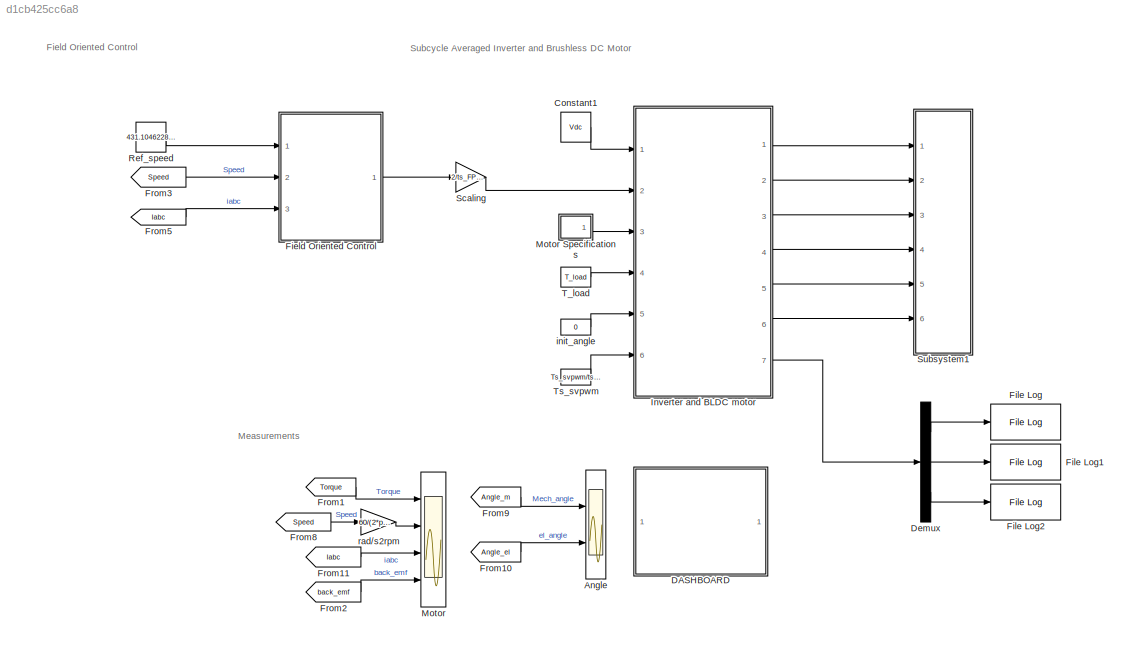
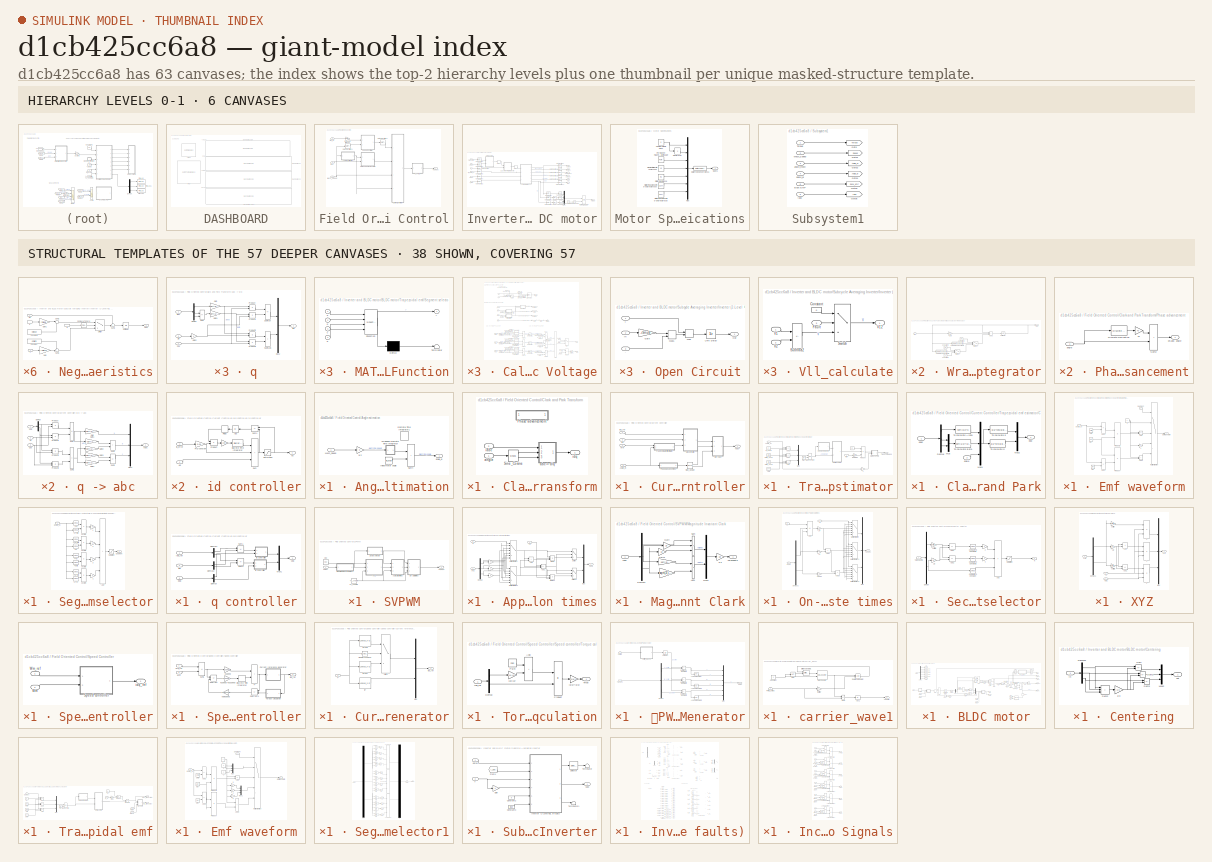
[diagram: thumbnail index - top-2 hierarchy levels (6 canvases) + 38 structural-template representatives of the remaining 57 canvases]
MODEL slx_d1cb425cc6a8
KIND model
CONFIG AbsTol = auto
CONFIG EnableMultiTasking = on
CONFIG FixedStep = auto
CONFIG MaxStep = auto
CONFIG MinStep = auto
CONFIG RelTol = 1e-3
CONFIG SampleTimeConstraint = Unconstrained
CONFIG SolverName = FixedStepDiscrete
CONFIG StartTime = 0.0
CONFIG StopTime = 2
BLOCK [Scope] Angle
  Floating = off
  NumInputPorts = 2
  Ports = [2]
  ScopeSpecificationString = Simulink.scopes.TimeScopeBlockCfg('CurrentConfiguration', extmgr.ConfigurationSet(extmgr.Configuration('Core','General UI',true),extmgr.Configuration('Core','Source UI',true),extmgr.Configuration('Sources','WiredSimulink',true,'DataLoggingLimitDataPoints',true,'DataLoggingSaveFormat','Array','DataLoggingDecimation','1','DataLoggingVariableName','ScopeData1'),extmgr.Configuration('Visuals','Time Do...<+2409ch>
BLOCK [Constant] Constant1
  OutDataTypeStr = single
  SampleTime = Ts
  Value = Vdc
BLOCK [SubSystem] DASHBOARD
  Ports = []
  RequestExecContextInheritance = off
BLOCK [DashboardScope] DASHBOARD/Dashboard Scope
  TicksPosition = Inside
  Ymax = 2
  Ymin = -2
BLOCK [DashboardScope] DASHBOARD/Dashboard Scope1
  TicksPosition = Inside
  Ymax = 3500
  Ymin = 0
BLOCK [DashboardScope] DASHBOARD/Dashboard Scope2
  TicksPosition = Inside
  Ymax = 15
  Ymin = -15
BLOCK [DashboardScope] DASHBOARD/Dashboard Scope3
  TicksPosition = Inside
  Ymax = 15
  Ymin = -15
BLOCK [CustomTuningWebBlock] DASHBOARD/RPM
  Configuration = {"components":[{"name":"CircularScaleComponent","settings":{"bounds":{"max":600,"min":0,"tickInterval":"auto"},"direction":"cw","flipLimits":0,"innerRadius":0.6636618227670849,"internalTickHeightScaleFactor":1,"labelColor":[255,255,200],"labelFont":{"font":"Arial","fontSize":12},"labelTransparency":1,"minorTickHeightScaleFactor":0.2,"needleImage":{"size":[152,152],"src":"data:image\/svg+xml;base64...<+42667ch>
  LabelPosition = Hide
  ShowInitialText = on
BLOCK [CustomWebBlock] DASHBOARD/Torque
  Configuration = {"components":[{"name":"CircularScaleComponent","settings":{"bounds":{"max":30,"min":-30,"tickInterval":"auto"},"direction":"cw","flipLimits":0,"innerRadius":0.75,"internalTickHeightScaleFactor":1,"labelColor":[255,255,200],"labelFont":{"font":"Arial","fontSize":12},"labelTransparency":1,"minorTickHeightScaleFactor":0.2,"needleImage":{"size":[200,50],"src":"data:image\/svg+xml;base64,PD94bWwgdmVyc...<+12619ch>
  LabelPosition = Hide
  ShowInitialText = on
BLOCK [Demux] Demux
  Outputs = 3
  Ports = [1, 3]
BLOCK [SubSystem] Field Oriented Control
  Ports = [3, 1]
  RequestExecContextInheritance = off
BLOCK [SubSystem] Field Oriented Control/Angle estimation
  Ports = [1, 1]
  RequestExecContextInheritance = off
BLOCK [DiscreteIntegrator] Field Oriented Control/Angle estimation/Discrete-Time Integrator1
  ICPrevOutput = DiscIntNeverNeededParam
  ICPrevScaledInput = DiscIntNeverNeededParam
  InitialConditionSetting = Auto
  Ports = [1, 1]
  SampleTime = -1
BLOCK [Constant] Field Oriented Control/Angle estimation/Initial motor angle
  OutDataTypeStr = single
  Value = Init_angle
BLOCK [Inport] Field Oriented Control/Angle estimation/Mech_Speed
BLOCK [Sum] Field Oriented Control/Angle estimation/Sum4
  IconShape = rectangular
  OutDataTypeStr = single
  Ports = [2, 1]
BLOCK [SubSystem] Field Oriented Control/Angle estimation/Wrapped Discrete Time Integrator
  Ports = [1, 1]
  RequestExecContextInheritance = off
BLOCK [Sum] Field Oriented Control/Angle estimation/Wrapped Discrete Time Integrator/Add1
  IconShape = rectangular
  Inputs = +++
  Ports = [3, 1]
BLOCK [Reference] Field Oriented Control/Angle estimation/Wrapped Discrete Time Integrator/Compare To Constant1  REF=simulink/Logic and Bit
Operations/Compare
To Constant
  Ports = [1, 1]
  SourceBlock = simulink/Logic and Bit\nOperations/Compare\nTo Constant
  SourceProductBaseCode = SL
  SourceType = Compare To Constant
BLOCK [Reference] Field Oriented Control/Angle estimation/Wrapped Discrete Time Integrator/Compare To Constant2  REF=simulink/Logic and Bit
Operations/Compare
To Constant
  Ports = [1, 1]
  SourceBlock = simulink/Logic and Bit\nOperations/Compare\nTo Constant
  SourceProductBaseCode = SL
  SourceType = Compare To Constant
BLOCK [Constant] Field Oriented Control/Angle estimation/Wrapped Discrete Time Integrator/Constant2
  OutDataTypeStr = single
  SampleTime = -1
  Value = -2*pi
BLOCK [Constant] Field Oriented Control/Angle estimation/Wrapped Discrete Time Integrator/Constant3
  OutDataTypeStr = single
  SampleTime = -1
  Value = 2*pi
BLOCK [Constant] Field Oriented Control/Angle estimation/Wrapped Discrete Time Integrator/Constant5
  OutDataTypeStr = single
  SampleTime = -1
  Value = 0
BLOCK [Gain] Field Oriented Control/Angle estimation/Wrapped Discrete Time Integrator/Gain
  Gain = Ts
BLOCK [Inport] Field Oriented Control/Angle estimation/Wrapped Discrete Time Integrator/In1
BLOCK [Outport] Field Oriented Control/Angle estimation/Wrapped Discrete Time Integrator/Out1
  VectorParamsAs1DForOutWhenUnconnected = off
BLOCK [Switch] Field Oriented Control/Angle estimation/Wrapped Discrete Time Integrator/Switch2
  Criteria = u2 ~= 0
  InputSameDT = off
  SaturateOnIntegerOverflow = off
BLOCK [Switch] Field Oriented Control/Angle estimation/Wrapped Discrete Time Integrator/Switch3
  Criteria = u2 ~= 0
  InputSameDT = off
  SaturateOnIntegerOverflow = off
BLOCK [UnitDelay] Field Oriented Control/Angle estimation/Wrapped Discrete Time Integrator/Unit Delay
  HasFrameUpgradeWarning = on
  SampleTime = -1
BLOCK [Outport] Field Oriented Control/Angle estimation/angle_el
BLOCK [Gain] Field Oriented Control/Angle estimation/p//2
  Gain = p
BLOCK [SubSystem] Field Oriented Control/Clark and Park Transform
  Ports = [2, 1]
  RequestExecContextInheritance = off
BLOCK [SubSystem] Field Oriented Control/Clark and Park Transform/Phase advancement
  Commented = on
  Ports = [1, 1]
  RequestExecContextInheritance = off
BLOCK [Reference] Field Oriented Control/Clark and Park Transform/Phase advancement/Discrete Derivative  REF=simulink/Discrete/Discrete Derivative
  Ports = [1, 1]
  SourceBlock = simulink/Discrete/Discrete Derivative
  SourceProductBaseCode = SL
  SourceType = Discrete Derivative
BLOCK [Sum] Field Oriented Control/Clark and Park Transform/Phase advancement/Sum2
  IconShape = rectangular
  Ports = [2, 1]
BLOCK [Gain] Field Oriented Control/Clark and Park Transform/Phase advancement/Ts
  Gain = Ts
BLOCK [Inport] Field Oriented Control/Clark and Park Transform/Phase advancement/angle
BLOCK [Outport] Field Oriented Control/Clark and Park Transform/Phase advancement/ph.adv. angle
  VectorParamsAs1DForOutWhenUnconnected = off
BLOCK [Trigonometry] Field Oriented Control/Clark and Park Transform/Sine_Cosine
  Operator = sincos
  Ports = [1, 2]
BLOCK [SubSystem] Field Oriented Control/Clark and Park Transform/abc -> d//q
  Ports = [3, 1]
  RequestExecContextInheritance = off
BLOCK [Inport] Field Oriented Control/Clark and Park Transform/abc -> d//q/Cos
  Port = 3
BLOCK [Demux] Field Oriented Control/Clark and Park Transform/abc -> d//q/Demux
  Outputs = 3
  Ports = [1, 3]
BLOCK [Gain] Field Oriented Control/Clark and Park Transform/abc -> d//q/Gain
  Gain = sqrt(3/2)
BLOCK [Gain] Field Oriented Control/Clark and Park Transform/abc -> d//q/Gain1
  Gain = sqrt(1/2)
BLOCK [Gain] Field Oriented Control/Clark and Park Transform/abc -> d//q/Gain2
  Gain = -1
  NameLocation = top
  OutDataTypeStr = single
BLOCK [Mux] Field Oriented Control/Clark and Park Transform/abc -> d//q/Mux2
  DisplayOption = bar
  Inputs = 2
  Ports = [2, 1]
BLOCK [Product] Field Oriented Control/Clark and Park Transform/abc -> d//q/Product
  Ports = [2, 1]
BLOCK [Product] Field Oriented Control/Clark and Park Transform/abc -> d//q/Product1
  Ports = [2, 1]
BLOCK [Product] Field Oriented Control/Clark and Park Transform/abc -> d//q/Product2
  Ports = [2, 1]
BLOCK [Product] Field Oriented Control/Clark and Park Transform/abc -> d//q/Product3
  Ports = [2, 1]
BLOCK [Inport] Field Oriented Control/Clark and Park Transform/abc -> d//q/Sin
  Port = 2
BLOCK [Sum] Field Oriented Control/Clark and Park Transform/abc -> d//q/Subtract
  IconShape = rectangular
  Inputs = +-
  Ports = [2, 1]
BLOCK [Sum] Field Oriented Control/Clark and Park Transform/abc -> d//q/Subtract1
  IconShape = rectangular
  Ports = [2, 1]
BLOCK [Sum] Field Oriented Control/Clark and Park Transform/abc -> d//q/Sum
  IconShape = rectangular
  Inputs = +|-
  Ports = [2, 1]
BLOCK [Inport] Field Oriented Control/Clark and Park Transform/abc -> d//q/iabc
BLOCK [Outport] Field Oriented Control/Clark and Park Transform/abc -> d//q/idq
  VectorParamsAs1DForOutWhenUnconnected = off
BLOCK [Inport] Field Oriented Control/Clark and Park Transform/angle
BLOCK [Inport] Field Oriented Control/Clark and Park Transform/iabc
  Port = 2
BLOCK [Outport] Field Oriented Control/Clark and Park Transform/idq
  VectorParamsAs1DForOutWhenUnconnected = off
BLOCK [SubSystem] Field Oriented Control/Current Controller
  Ports = [4, 1]
  RequestExecContextInheritance = off
BLOCK [Inport] Field Oriented Control/Current Controller/Angle_el
  Port = 4
BLOCK [Inport] Field Oriented Control/Current Controller/Idq_ref
BLOCK [SubSystem] Field Oriented Control/Current Controller/Phase advancement
  Ports = [1, 1]
  RequestExecContextInheritance = off
BLOCK [Reference] Field Oriented Control/Current Controller/Phase advancement/Discrete Derivative  REF=simulink/Discrete/Discrete Derivative
  Ports = [1, 1]
  SourceBlock = simulink/Discrete/Discrete Derivative
  SourceProductBaseCode = SL
  SourceType = Discrete Derivative
BLOCK [Sum] Field Oriented Control/Current Controller/Phase advancement/Sum2
  IconShape = rectangular
  Ports = [2, 1]
BLOCK [Gain] Field Oriented Control/Current Controller/Phase advancement/Ts
  Gain = Ts
BLOCK [Inport] Field Oriented Control/Current Controller/Phase advancement/angle
BLOCK [Outport] Field Oriented Control/Current Controller/Phase advancement/ph.adv. angle
  VectorParamsAs1DForOutWhenUnconnected = off
BLOCK [Trigonometry] Field Oriented Control/Current Controller/Sine_Cosine
  Operator = sincos
  Ports = [1, 2]
BLOCK [SubSystem] Field Oriented Control/Current Controller/Trapezoidal emf estimator
  Ports = [2, 1]
  RequestExecContextInheritance = off
BLOCK [Constant] Field Oriented Control/Current Controller/Trapezoidal emf estimator/  
  OutDataTypeStr = single
  SampleTime = -1
  Value = Ke
BLOCK [Sum] Field Oriented Control/Current Controller/Trapezoidal emf estimator/  Add2
  IconShape = rectangular
  Inputs = +--
  Ports = [3, 1]
BLOCK [Sum] Field Oriented Control/Current Controller/Trapezoidal emf estimator/ Add1 
  IconShape = rectangular
  Inputs = +--
  Ports = [3, 1]
BLOCK [Gain] Field Oriented Control/Current Controller/Trapezoidal emf estimator/(p//2)*1//(2*pi)
  Gain = p/(2*pi)
BLOCK [Gain] Field Oriented Control/Current Controller/Trapezoidal emf estimator/-1
  Gain = -1
BLOCK [Constant] Field Oriented Control/Current Controller/Trapezoidal emf estimator/2*pi
  OutDataTypeStr = single
  SampleTime = -1
  Value = 2*pi
BLOCK [Constant] Field Oriented Control/Current Controller/Trapezoidal emf estimator/2*pi//4
  OutDataTypeStr = single
  SampleTime = -1
  Value = 0.3770
BLOCK [Constant] Field Oriented Control/Current Controller/Trapezoidal emf estimator/5*pi//3_300d
  OutDataTypeStr = single
  SampleTime = -1
  Value = 5*pi/3
BLOCK [Constant] Field Oriented Control/Current Controller/Trapezoidal emf estimator/7*pi//3_420d
  OutDataTypeStr = single
  SampleTime = -1
  Value = 7*pi/3
BLOCK [Sum] Field Oriented Control/Current Controller/Trapezoidal emf estimator/Add 
  IconShape = rectangular
  Inputs = +--
  Ports = [3, 1]
BLOCK [Inport] Field Oriented Control/Current Controller/Trapezoidal emf estimator/Angle_el
  Port = 2
BLOCK [SubSystem] Field Oriented Control/Current Controller/Trapezoidal emf estimator/Clark and Park
  Ports = [2, 1]
  RequestExecContextInheritance = off
BLOCK [Demux] Field Oriented Control/Current Controller/Trapezoidal emf estimator/Clark and Park/Demux
  Outputs = 3
  Ports = [1, 3]
BLOCK [Mux] Field Oriented Control/Current Controller/Trapezoidal emf estimator/Clark and Park/Mux
  DisplayOption = bar
  Inputs = 2
  Ports = [2, 1]
BLOCK [Mux] Field Oriented Control/Current Controller/Trapezoidal emf estimator/Clark and Park/Mux1
  DisplayOption = bar
  Inputs = 3
  Ports = [3, 1]
BLOCK [Mux] Field Oriented Control/Current Controller/Trapezoidal emf estimator/Clark and Park/Mux2
  DisplayOption = bar
  Inputs = 2
  Ports = [2, 1]
BLOCK [Fcn] Field Oriented Control/Current Controller/Trapezoidal emf estimator/Clark and Park/To calculate Alpha
  Expr = sqrt(3/2)*u
BLOCK [Fcn] Field Oriented Control/Current Controller/Trapezoidal emf estimator/Clark and Park/To calculate Beta
  Expr = sqrt(1/2)*(u(1)-u(2))
BLOCK [Fcn] Field Oriented Control/Current Controller/Trapezoidal emf estimator/Clark and Park/To calculate d
  Expr = u[1]*cos(u[3])-u[2]*sin(u[3])
BLOCK [Fcn] Field Oriented Control/Current Controller/Trapezoidal emf estimator/Clark and Park/To calculate q
  Expr = u[1]*sin(u[3])+u[2]*cos(u[3])
BLOCK [Inport] Field Oriented Control/Current Controller/Trapezoidal emf estimator/Clark and Park/angle
  Port = 2
BLOCK [Inport] Field Oriented Control/Current Controller/Trapezoidal emf estimator/Clark and Park/eabc
BLOCK [Outport] Field Oriented Control/Current Controller/Trapezoidal emf estimator/Clark and Park/edq
  VectorParamsAs1DForOutWhenUnconnected = off
BLOCK [SubSystem] Field Oriented Control/Current Controller/Trapezoidal emf estimator/Emf waveform
  Ports = [2, 1]
  RequestExecContextInheritance = off
BLOCK [Gain] Field Oriented Control/Current Controller/Trapezoidal emf estimator/Emf waveform/-1
  Gain = -1
BLOCK [Constant] Field Oriented Control/Current Controller/Trapezoidal emf estimator/Emf waveform/1
  OutDataTypeStr = single
  SampleTime = -1
BLOCK [Constant] Field Oriented Control/Current Controller/Trapezoidal emf estimator/Emf waveform/2*pi
  OutDataTypeStr = single
  SampleTime = -1
  Value = 2*pi
BLOCK [Constant] Field Oriented Control/Current Controller/Trapezoidal emf estimator/Emf waveform/2*pi//3
  OutDataTypeStr = single
  SampleTime = -1
  Value = 2*pi/3
BLOCK [Constant] Field Oriented Control/Current Controller/Trapezoidal emf estimator/Emf waveform/6//pi
  OutDataTypeStr = single
  SampleTime = -1
  Value = 6/pi
BLOCK [Sum] Field Oriented Control/Current Controller/Trapezoidal emf estimator/Emf waveform/Add
  IconShape = rectangular
  Inputs = +-
  Ports = [2, 1]
BLOCK [Sum] Field Oriented Control/Current Controller/Trapezoidal emf estimator/Emf waveform/Add1
  IconShape = rectangular
  Inputs = +-
  Ports = [2, 1]
BLOCK [Sum] Field Oriented Control/Current Controller/Trapezoidal emf estimator/Emf waveform/Add2
  IconShape = rectangular
  Inputs = +-
  Ports = [2, 1]
BLOCK [Sum] Field Oriented Control/Current Controller/Trapezoidal emf estimator/Emf waveform/Add3
  IconShape = rectangular
  Ports = [2, 1]
BLOCK [Outport] Field Oriented Control/Current Controller/Trapezoidal emf estimator/Emf waveform/Emf waveform
  VectorParamsAs1DForOutWhenUnconnected = off
BLOCK [MultiPortSwitch] Field Oriented Control/Current Controller/Trapezoidal emf estimator/Emf waveform/Multiport Switch
  InputSameDT = off
  Inputs = 4
  Ports = [5, 1]
  SaturateOnIntegerOverflow = off
BLOCK [Product] Field Oriented Control/Current Controller/Trapezoidal emf estimator/Emf waveform/Product
  Ports = [2, 1]
BLOCK [Product] Field Oriented Control/Current Controller/Trapezoidal emf estimator/Emf waveform/Product1
  Ports = [2, 1]
BLOCK [Inport] Field Oriented Control/Current Controller/Trapezoidal emf estimator/Emf waveform/Segment
BLOCK [Inport] Field Oriented Control/Current Controller/Trapezoidal emf estimator/Emf waveform/angle_el
  Port = 2
BLOCK [Math] Field Oriented Control/Current Controller/Trapezoidal emf estimator/Math Function
  Operator = mod
  Ports = [2, 1]
  SignedPower = on
BLOCK [Mux] Field Oriented Control/Current Controller/Trapezoidal emf estimator/Mux
  DisplayOption = bar
  Inputs = 3
  Ports = [3, 1]
BLOCK [Product] Field Oriented Control/Current Controller/Trapezoidal emf estimator/Product
  Inputs = 3
  Ports = [3, 1]
BLOCK [SubSystem] Field Oriented Control/Current Controller/Trapezoidal emf estimator/Segment selector
  Ports = [1, 1]
  RequestExecContextInheritance = off
BLOCK [Gain] Field Oriented Control/Current Controller/Trapezoidal emf estimator/Segment selector/1
BLOCK [Gain] Field Oriented Control/Current Controller/Trapezoidal emf estimator/Segment selector/2
  Gain = 2
BLOCK [Gain] Field Oriented Control/Current Controller/Trapezoidal emf estimator/Segment selector/3
  Gain = 3
BLOCK [Gain] Field Oriented Control/Current Controller/Trapezoidal emf estimator/Segment selector/4
  Gain = 4
BLOCK [Reference] Field Oriented Control/Current Controller/Trapezoidal emf estimator/Segment selector/<2*pi  REF=simulink/Logic and Bit
Operations/Compare
To Constant
  Ports = [1, 1]
  SourceBlock = simulink/Logic and Bit\nOperations/Compare\nTo Constant
  SourceProductBaseCode = SL
  SourceType = Compare To Constant
BLOCK [Reference] Field Oriented Control/Current Controller/Trapezoidal emf estimator/Segment selector/<2*pi//3  REF=simulink/Logic and Bit
Operations/Compare
To Constant
  Ports = [1, 1]
  SourceBlock = simulink/Logic and Bit\nOperations/Compare\nTo Constant
  SourceProductBaseCode = SL
  SourceType = Compare To Constant
BLOCK [Reference] Field Oriented Control/Current Controller/Trapezoidal emf estimator/Segment selector/<5pi//3  REF=simulink/Logic and Bit
Operations/Compare
To Constant
  Ports = [1, 1]
  SourceBlock = simulink/Logic and Bit\nOperations/Compare\nTo Constant
  SourceProductBaseCode = SL
  SourceType = Compare To Constant
BLOCK [Reference] Field Oriented Control/Current Controller/Trapezoidal emf estimator/Segment selector/<pi  REF=simulink/Logic and Bit
Operations/Compare
To Constant
  Ports = [1, 1]
  SourceBlock = simulink/Logic and Bit\nOperations/Compare\nTo Constant
  SourceProductBaseCode = SL
  SourceType = Compare To Constant
BLOCK [Reference] Field Oriented Control/Current Controller/Trapezoidal emf estimator/Segment selector/>=0  REF=simulink/Logic and Bit
Operations/Compare
To Constant
  Ports = [1, 1]
  SourceBlock = simulink/Logic and Bit\nOperations/Compare\nTo Constant
  SourceProductBaseCode = SL
  SourceType = Compare To Constant
BLOCK [Reference] Field Oriented Control/Current Controller/Trapezoidal emf estimator/Segment selector/>=2*pi//3  REF=simulink/Logic and Bit
Operations/Compare
To Constant
  Ports = [1, 1]
  SourceBlock = simulink/Logic and Bit\nOperations/Compare\nTo Constant
  SourceProductBaseCode = SL
  SourceType = Compare To Constant
BLOCK [Reference] Field Oriented Control/Current Controller/Trapezoidal emf estimator/Segment selector/>=5*pi//3  REF=simulink/Logic and Bit
Operations/Compare
To Constant
  Ports = [1, 1]
  SourceBlock = simulink/Logic and Bit\nOperations/Compare\nTo Constant
  SourceProductBaseCode = SL
  SourceType = Compare To Constant
BLOCK [Reference] Field Oriented Control/Current Controller/Trapezoidal emf estimator/Segment selector/>=pi  REF=simulink/Logic and Bit
Operations/Compare
To Constant
  Ports = [1, 1]
  SourceBlock = simulink/Logic and Bit\nOperations/Compare\nTo Constant
  SourceProductBaseCode = SL
  SourceType = Compare To Constant
BLOCK [Sum] Field Oriented Control/Current Controller/Trapezoidal emf estimator/Segment selector/Add
  IconShape = rectangular
  Inputs = ++++
  Ports = [4, 1]
BLOCK [Saturate] Field Oriented Control/Current Controller/Trapezoidal emf estimator/Segment selector/Saturation
  LowerLimit = 1
  UpperLimit = 4
BLOCK [Outport] Field Oriented Control/Current Controller/Trapezoidal emf estimator/Segment selector/Segment
  VectorParamsAs1DForOutWhenUnconnected = off
BLOCK [Inport] Field Oriented Control/Current Controller/Trapezoidal emf estimator/Segment selector/angle_el
BLOCK [Product] Field Oriented Control/Current Controller/Trapezoidal emf estimator/Segment selector/sector 1
  Ports = [2, 1]
BLOCK [Product] Field Oriented Control/Current Controller/Trapezoidal emf estimator/Segment selector/sector 2
  Ports = [2, 1]
BLOCK [Product] Field Oriented Control/Current Controller/Trapezoidal emf estimator/Segment selector/sector 3
  Ports = [2, 1]
BLOCK [Product] Field Oriented Control/Current Controller/Trapezoidal emf estimator/Segment selector/sector 4
  Ports = [2, 1]
BLOCK [Outport] Field Oriented Control/Current Controller/Trapezoidal emf estimator/Trapezoidal edq
  VectorParamsAs1DForOutWhenUnconnected = off
BLOCK [Inport] Field Oriented Control/Current Controller/Trapezoidal emf estimator/Wm
BLOCK [Constant] Field Oriented Control/Current Controller/Trapezoidal emf estimator/pi_180d
  OutDataTypeStr = single
  SampleTime = -1
  Value = pi
BLOCK [Inport] Field Oriented Control/Current Controller/Wm
  Port = 3
BLOCK [SubSystem] Field Oriented Control/Current Controller/d//q -> abc
  Ports = [3, 1]
  RequestExecContextInheritance = off
BLOCK [Inport] Field Oriented Control/Current Controller/d//q -> abc/Cos
  Port = 3
BLOCK [Demux] Field Oriented Control/Current Controller/d//q -> abc/Demux
  Outputs = 2
  Ports = [1, 2]
BLOCK [Gain] Field Oriented Control/Current Controller/d//q -> abc/Gain
  Gain = sqrt(2/3)
BLOCK [Gain] Field Oriented Control/Current Controller/d//q -> abc/Gain1
  Gain = -sqrt(1/6)
BLOCK [Gain] Field Oriented Control/Current Controller/d//q -> abc/Gain2
  Gain = sqrt(1/2)
BLOCK [Gain] Field Oriented Control/Current Controller/d//q -> abc/Gain3
  Gain = sqrt(1/6)
BLOCK [Gain] Field Oriented Control/Current Controller/d//q -> abc/Gain4
  Gain = sqrt(1/2)
BLOCK [Mux] Field Oriented Control/Current Controller/d//q -> abc/Mux2
  DisplayOption = bar
  Inputs = 3
  Ports = [3, 1]
BLOCK [Product] Field Oriented Control/Current Controller/d//q -> abc/Product
  Ports = [2, 1]
BLOCK [Product] Field Oriented Control/Current Controller/d//q -> abc/Product1
  Ports = [2, 1]
BLOCK [Product] Field Oriented Control/Current Controller/d//q -> abc/Product2
  Ports = [2, 1]
BLOCK [Product] Field Oriented Control/Current Controller/d//q -> abc/Product3
  Ports = [2, 1]
BLOCK [Inport] Field Oriented Control/Current Controller/d//q -> abc/Sin
  Port = 2
BLOCK [Sum] Field Oriented Control/Current Controller/d//q -> abc/Sum
  IconShape = rectangular
  Inputs = +|-
  Ports = [2, 1]
BLOCK [Sum] Field Oriented Control/Current Controller/d//q -> abc/Sum1
  IconShape = rectangular
  Inputs = +|+
  Ports = [2, 1]
BLOCK [Sum] Field Oriented Control/Current Controller/d//q -> abc/Sum2
  IconShape = rectangular
  Inputs = +|+
  Ports = [2, 1]
BLOCK [Sum] Field Oriented Control/Current Controller/d//q -> abc/Sum3
  IconShape = rectangular
  Inputs = -|-
  Ports = [2, 1]
BLOCK [Outport] Field Oriented Control/Current Controller/d//q -> abc/vabc
  VectorParamsAs1DForOutWhenUnconnected = off
BLOCK [Inport] Field Oriented Control/Current Controller/d//q -> abc/vdq
BLOCK [SubSystem] Field Oriented Control/Current Controller/d//q controller
  Ports = [3, 1]
  RequestExecContextInheritance = off
BLOCK [Demux] Field Oriented Control/Current Controller/d//q controller/Demux
  Outputs = 2
  Ports = [1, 2]
BLOCK [Demux] Field Oriented Control/Current Controller/d//q controller/Demux1
  Outputs = 2
  Ports = [1, 2]
BLOCK [Demux] Field Oriented Control/Current Controller/d//q controller/Demux2
  Outputs = 2
  Ports = [1, 2]
BLOCK [Inport] Field Oriented Control/Current Controller/d//q controller/Idq_ref
BLOCK [Mux] Field Oriented Control/Current Controller/d//q controller/Mux1
  DisplayOption = bar
  Inputs = 2
  Ports = [2, 1]
BLOCK [Sum] Field Oriented Control/Current Controller/d//q controller/Sum1
  IconShape = rectangular
  Inputs = +-
  Ports = [2, 1]
BLOCK [Sum] Field Oriented Control/Current Controller/d//q controller/Sum3
  IconShape = rectangular
  Inputs = +-
  Ports = [2, 1]
BLOCK [Inport] Field Oriented Control/Current Controller/d//q controller/edq
  Port = 3
BLOCK [SubSystem] Field Oriented Control/Current Controller/d//q controller/id controller
  Ports = [2, 1]
  RequestExecContextInheritance = off
BLOCK [Gain] Field Oriented Control/Current Controller/d//q controller/id controller/  
  Gain = 100
BLOCK [Abs] Field Oriented Control/Current Controller/d//q controller/id controller/Abs
  SaturateOnIntegerOverflow = off
  ZeroCross = off
BLOCK [DiscreteIntegrator] Field Oriented Control/Current Controller/d//q controller/id controller/Discrete-Time Integrator
  ICPrevOutput = DiscIntNeverNeededParam
  ICPrevScaledInput = DiscIntNeverNeededParam
  InitialConditionSetting = Auto
  LimitOutput = on
  LowerSaturationLimit = -48
  Ports = [1, 1]
  SampleTime = Ts
  UpperSaturationLimit = 48
BLOCK [Gain] Field Oriented Control/Current Controller/d//q controller/id controller/PID constant
  Gain = 0.01
BLOCK [Product] Field Oriented Control/Current Controller/d//q controller/id controller/Product
  Ports = [2, 1]
BLOCK [Relay] Field Oriented Control/Current Controller/d//q controller/id controller/Relay
  OffOutputValue = 1
  OnOutputValue = 0
  ZeroCross = off
BLOCK [Saturate] Field Oriented Control/Current Controller/d//q controller/id controller/Saturation
  LowerLimit = -48
  UpperLimit = 48
  ZeroCross = off
BLOCK [Sum] Field Oriented Control/Current Controller/d//q controller/id controller/Sum
  IconShape = rectangular
  Inputs = +++
  Ports = [3, 1]
BLOCK [Sum] Field Oriented Control/Current Controller/d//q controller/id controller/Sum1
  IconShape = rectangular
  Inputs = -+
  NameLocation = top
  Ports = [2, 1]
BLOCK [Inport] Field Oriented Control/Current Controller/d//q controller/id controller/ed
  Port = 2
BLOCK [Inport] Field Oriented Control/Current Controller/d//q controller/id controller/id_error
BLOCK [Outport] Field Oriented Control/Current Controller/d//q controller/id controller/vd
  VectorParamsAs1DForOutWhenUnconnected = off
BLOCK [Inport] Field Oriented Control/Current Controller/d//q controller/idq
  Port = 2
BLOCK [SubSystem] Field Oriented Control/Current Controller/d//q controller/iq controller
  Ports = [2, 1]
  RequestExecContextInheritance = off
BLOCK [Gain] Field Oriented Control/Current Controller/d//q controller/iq controller/  
  Gain = 100
BLOCK [Abs] Field Oriented Control/Current Controller/d//q controller/iq controller/Abs
  SaturateOnIntegerOverflow = off
  ZeroCross = off
BLOCK [DiscreteIntegrator] Field Oriented Control/Current Controller/d//q controller/iq controller/Discrete-Time Integrator
  ICPrevOutput = DiscIntNeverNeededParam
  ICPrevScaledInput = DiscIntNeverNeededParam
  InitialConditionSetting = Auto
  LimitOutput = on
  LowerSaturationLimit = -48
  Ports = [1, 1]
  SampleTime = Ts
  UpperSaturationLimit = 48
BLOCK [Gain] Field Oriented Control/Current Controller/d//q controller/iq controller/PID constatn
  Gain = 0.01
BLOCK [Product] Field Oriented Control/Current Controller/d//q controller/iq controller/Product
  Ports = [2, 1]
BLOCK [Relay] Field Oriented Control/Current Controller/d//q controller/iq controller/Relay
  OffOutputValue = 1
  OnOutputValue = 0
  ZeroCross = off
BLOCK [Saturate] Field Oriented Control/Current Controller/d//q controller/iq controller/Saturation
  LowerLimit = -48
  UpperLimit = 48
  ZeroCross = off
BLOCK [Sum] Field Oriented Control/Current Controller/d//q controller/iq controller/Sum
  IconShape = rectangular
  Inputs = +++
  Ports = [3, 1]
BLOCK [Sum] Field Oriented Control/Current Controller/d//q controller/iq controller/Sum1
  IconShape = rectangular
  Inputs = -+
  NameLocation = top
  Ports = [2, 1]
BLOCK [Inport] Field Oriented Control/Current Controller/d//q controller/iq controller/eq
  Port = 2
BLOCK [Inport] Field Oriented Control/Current Controller/d//q controller/iq controller/iq_error
BLOCK [Outport] Field Oriented Control/Current Controller/d//q controller/iq controller/vq
  VectorParamsAs1DForOutWhenUnconnected = off
BLOCK [Outport] Field Oriented Control/Current Controller/d//q controller/vdq
  VectorParamsAs1DForOutWhenUnconnected = off
BLOCK [Inport] Field Oriented Control/Current Controller/idq
  Port = 2
BLOCK [Outport] Field Oriented Control/Current Controller/vabc*
  VectorParamsAs1DForOutWhenUnconnected = off
BLOCK [Inport] Field Oriented Control/Mech_Speed
  Port = 2
BLOCK [RateTransition] Field Oriented Control/Rate Transition1
  OutPortSampleTime = Tsp
BLOCK [RateTransition] Field Oriented Control/Rate Transition7
  OutPortSampleTime = Ts
BLOCK [SubSystem] Field Oriented Control/SVPWM
  Ports = [1, 1]
  RequestExecContextInheritance = off
BLOCK [SubSystem] Field Oriented Control/SVPWM/Application times
  Ports = [3, 1]
  RequestExecContextInheritance = off
BLOCK [Gain] Field Oriented Control/SVPWM/Application times/ 
  Gain = -1
BLOCK [Gain] Field Oriented Control/SVPWM/Application times/  
  Gain = -1
BLOCK [Gain] Field Oriented Control/SVPWM/Application times/    
  Gain = -1
BLOCK [Sum] Field Oriented Control/SVPWM/Application times/Add
  IconShape = rectangular
  Ports = [2, 1]
BLOCK [Sum] Field Oriented Control/SVPWM/Application times/Add1
  IconShape = rectangular
  Inputs = +--
  Ports = [3, 1]
BLOCK [Demux] Field Oriented Control/SVPWM/Application times/Demux
  Outputs = 3
  Ports = [1, 3]
BLOCK [Product] Field Oriented Control/SVPWM/Application times/Divide
  Inputs = **/
  Ports = [3, 1]
BLOCK [Product] Field Oriented Control/SVPWM/Application times/Divide1
  Inputs = **/
  Ports = [3, 1]
BLOCK [MultiPortSwitch] Field Oriented Control/SVPWM/Application times/Multiport Switch
  DiagnosticForDefault = None
  InputSameDT = off
  Inputs = 6
  Ports = [7, 1]
  SaturateOnIntegerOverflow = off
BLOCK [MultiPortSwitch] Field Oriented Control/SVPWM/Application times/Multiport Switch1
  DiagnosticForDefault = None
  InputSameDT = off
  Inputs = 6
  Ports = [7, 1]
  SaturateOnIntegerOverflow = off
BLOCK [Mux] Field Oriented Control/SVPWM/Application times/Mux
  DisplayOption = bar
  Inputs = 2
  Ports = [2, 1]
BLOCK [Inport] Field Oriented Control/SVPWM/Application times/N
BLOCK [Switch] Field Oriented Control/SVPWM/Application times/Switch
  InputSameDT = off
  SaturateOnIntegerOverflow = off
BLOCK [Switch] Field Oriented Control/SVPWM/Application times/Switch1
  Criteria = u2 > Threshold
  InputSameDT = off
  SaturateOnIntegerOverflow = off
BLOCK [Outport] Field Oriented Control/SVPWM/Application times/T1,T2
  VectorParamsAs1DForOutWhenUnconnected = off
BLOCK [Inport] Field Oriented Control/SVPWM/Application times/Ts
  Port = 3
BLOCK [Inport] Field Oriented Control/SVPWM/Application times/XYZ
  Port = 2
BLOCK [SubSystem] Field Oriented Control/SVPWM/Magnitude Invariant Clark
  Ports = [1, 1]
  RequestExecContextInheritance = off
BLOCK [Gain] Field Oriented Control/SVPWM/Magnitude Invariant Clark/    
  Gain = sqrt(3)/2
BLOCK [Gain] Field Oriented Control/SVPWM/Magnitude Invariant Clark/     
  Gain = sqrt(3)/2
  NameLocation = top
BLOCK [Gain] Field Oriented Control/SVPWM/Magnitude Invariant Clark/2//3
  Gain = 2/3
BLOCK [Sum] Field Oriented Control/SVPWM/Magnitude Invariant Clark/Add1
  IconShape = rectangular
  Inputs = +-
  Ports = [2, 1]
BLOCK [Demux] Field Oriented Control/SVPWM/Magnitude Invariant Clark/Demux1
  Outputs = 3
  Ports = [1, 3]
BLOCK [Gain] Field Oriented Control/SVPWM/Magnitude Invariant Clark/Gain
  Gain = 1/2
BLOCK [Gain] Field Oriented Control/SVPWM/Magnitude Invariant Clark/Gain1
  Gain = 1/2
BLOCK [Mux] Field Oriented Control/SVPWM/Magnitude Invariant Clark/Mux2
  DisplayOption = bar
  Inputs = 2
  Ports = [2, 1]
BLOCK [Sum] Field Oriented Control/SVPWM/Magnitude Invariant Clark/Sum
  IconShape = rectangular
  Inputs = +--
  Ports = [3, 1]
BLOCK [Outport] Field Oriented Control/SVPWM/Magnitude Invariant Clark/Valphabeta
  VectorParamsAs1DForOutWhenUnconnected = off
BLOCK [Inport] Field Oriented Control/SVPWM/Magnitude Invariant Clark/vabc
BLOCK [SubSystem] Field Oriented Control/SVPWM/On-state times
  Ports = [3, 1]
  RequestExecContextInheritance = off
BLOCK [Gain] Field Oriented Control/SVPWM/On-state times/1//2
  Gain = 1/2
BLOCK [Gain] Field Oriented Control/SVPWM/On-state times/1//2 also
  Gain = 1/2
BLOCK [Gain] Field Oriented Control/SVPWM/On-state times/1//4
  Gain = 1/4
BLOCK [Sum] Field Oriented Control/SVPWM/On-state times/Add
  IconShape = rectangular
  Inputs = +--
  Ports = [3, 1]
BLOCK [Sum] Field Oriented Control/SVPWM/On-state times/Add1
  IconShape = rectangular
  Ports = [2, 1]
BLOCK [Sum] Field Oriented Control/SVPWM/On-state times/Add2
  IconShape = rectangular
  Ports = [2, 1]
BLOCK [Demux] Field Oriented Control/SVPWM/On-state times/Demux2
  Outputs = 2
  Ports = [1, 2]
BLOCK [MultiPortSwitch] Field Oriented Control/SVPWM/On-state times/Multiport Switch
  DiagnosticForDefault = None
  InputSameDT = off
  Inputs = 6
  Ports = [7, 1]
  SaturateOnIntegerOverflow = off
BLOCK [MultiPortSwitch] Field Oriented Control/SVPWM/On-state times/Multiport Switch1
  DiagnosticForDefault = None
  InputSameDT = off
  Inputs = 6
  Ports = [7, 1]
  SaturateOnIntegerOverflow = off
BLOCK [MultiPortSwitch] Field Oriented Control/SVPWM/On-state times/Multiport Switch2
  DiagnosticForDefault = None
  InputSameDT = off
  Inputs = 6
  Ports = [7, 1]
  SaturateOnIntegerOverflow = off
BLOCK [Mux] Field Oriented Control/SVPWM/On-state times/Mux
  DisplayOption = bar
  Inputs = 3
  Ports = [3, 1]
BLOCK [Inport] Field Oriented Control/SVPWM/On-state times/N
BLOCK [Inport] Field Oriented Control/SVPWM/On-state times/T1,T2 
  Port = 2
BLOCK [Outport] Field Oriented Control/SVPWM/On-state times/Ta,Tb,Tc
  VectorParamsAs1DForOutWhenUnconnected = off
BLOCK [Inport] Field Oriented Control/SVPWM/On-state times/Ts
  Port = 3
BLOCK [SubSystem] Field Oriented Control/SVPWM/Sector selector
  Ports = [1, 1]
  RequestExecContextInheritance = off
BLOCK [Gain] Field Oriented Control/SVPWM/Sector selector/1//2
  Gain = 1/2
BLOCK [Gain] Field Oriented Control/SVPWM/Sector selector/2
  Gain = 2
BLOCK [Gain] Field Oriented Control/SVPWM/Sector selector/4
  Gain = 4
BLOCK [Sum] Field Oriented Control/SVPWM/Sector selector/Add
  IconShape = rectangular
  Inputs = +++
  Ports = [3, 1]
BLOCK [Sum] Field Oriented Control/SVPWM/Sector selector/Add1
  IconShape = rectangular
  Inputs = +-
  Ports = [2, 1]
BLOCK [Sum] Field Oriented Control/SVPWM/Sector selector/Add2
  IconShape = rectangular
  Inputs = --
  Ports = [2, 1]
BLOCK [Reference] Field Oriented Control/SVPWM/Sector selector/Compare To Constant  REF=simulink/Logic and Bit
Operations/Compare
To Constant
  Ports = [1, 1]
  SourceBlock = simulink/Logic and Bit\nOperations/Compare\nTo Constant
  SourceProductBaseCode = SL
  SourceType = Compare To Constant
BLOCK [Reference] Field Oriented Control/SVPWM/Sector selector/Compare To Constant1  REF=simulink/Logic and Bit
Operations/Compare
To Constant
  Ports = [1, 1]
  SourceBlock = simulink/Logic and Bit\nOperations/Compare\nTo Constant
  SourceProductBaseCode = SL
  SourceType = Compare To Constant
BLOCK [Reference] Field Oriented Control/SVPWM/Sector selector/Compare To Constant2  REF=simulink/Logic and Bit
Operations/Compare
To Constant
  Ports = [1, 1]
  SourceBlock = simulink/Logic and Bit\nOperations/Compare\nTo Constant
  SourceProductBaseCode = SL
  SourceType = Compare To Constant
BLOCK [Demux] Field Oriented Control/SVPWM/Sector selector/Demux
  Outputs = 2
  Ports = [1, 2]
BLOCK [Outport] Field Oriented Control/SVPWM/Sector selector/N
  VectorParamsAs1DForOutWhenUnconnected = off
BLOCK [Saturate] Field Oriented Control/SVPWM/Sector selector/Saturation
  LowerLimit = 1
  RndMeth = Ceiling
  UpperLimit = 6
BLOCK [Inport] Field Oriented Control/SVPWM/Sector selector/Valphabeta
BLOCK [Gain] Field Oriented Control/SVPWM/Sector selector/sqrt(3)//2
  Gain = sqrt(3)/2
BLOCK [Outport] Field Oriented Control/SVPWM/Ta,Tb,Tc 
  VectorParamsAs1DForOutWhenUnconnected = off
BLOCK [Constant] Field Oriented Control/SVPWM/Ts_svpwm
  OutDataTypeStr = single
  Value = Ts_svpwm
BLOCK [Constant] Field Oriented Control/SVPWM/Vdc
  NameLocation = top
  OutDataTypeStr = single
  SampleTime = -1
  Value = Vdc
BLOCK [SubSystem] Field Oriented Control/SVPWM/XYZ
  Ports = [3, 1]
  RequestExecContextInheritance = off
BLOCK [Gain] Field Oriented Control/SVPWM/XYZ/3//2
  Gain = 3/2
BLOCK [Sum] Field Oriented Control/SVPWM/XYZ/Add
  IconShape = rectangular
  Ports = [2, 1]
BLOCK [Sum] Field Oriented Control/SVPWM/XYZ/Add1
  IconShape = rectangular
  Inputs = +-
  Ports = [2, 1]
BLOCK [Demux] Field Oriented Control/SVPWM/XYZ/Demux1
  Outputs = 2
  Ports = [1, 2]
BLOCK [Mux] Field Oriented Control/SVPWM/XYZ/Mux
  DisplayOption = bar
  Inputs = 3
  Ports = [3, 1]
BLOCK [Inport] Field Oriented Control/SVPWM/XYZ/Ts
  Port = 3
BLOCK [Inport] Field Oriented Control/SVPWM/XYZ/VDC
BLOCK [Product] Field Oriented Control/SVPWM/XYZ/X
  Inputs = **/
  Ports = [3, 1]
BLOCK [Outport] Field Oriented Control/SVPWM/XYZ/XYZ
  VectorParamsAs1DForOutWhenUnconnected = off
BLOCK [Product] Field Oriented Control/SVPWM/XYZ/Y
  Inputs = **/
  Ports = [3, 1]
BLOCK [Product] Field Oriented Control/SVPWM/XYZ/Z
  Inputs = **/
  Ports = [3, 1]
BLOCK [Gain] Field Oriented Control/SVPWM/XYZ/sqrt(3)
  Gain = sqrt(3)
BLOCK [Gain] Field Oriented Control/SVPWM/XYZ/sqrt(3)//2
  Gain = sqrt(3)/2
BLOCK [Inport] Field Oriented Control/SVPWM/XYZ/vAB
  Port = 2
BLOCK [Inport] Field Oriented Control/SVPWM/vabc*
BLOCK [SubSystem] Field Oriented Control/Speed Controller
  NameLocation = top
  Ports = [2, 1]
  RequestExecContextInheritance = off
BLOCK [SubSystem] Field Oriented Control/Speed Controller/Speed controller
  Ports = [2, 1]
  RequestExecContextInheritance = off
BLOCK [SubSystem] Field Oriented Control/Speed Controller/Speed controller/Current reference generator
  Ports = [1, 1]
  RequestExecContextInheritance = off
BLOCK [Reference] Field Oriented Control/Speed Controller/Speed controller/Current reference generator/Compare To Zero  REF=simulink/Logic and Bit
Operations/Compare
To Zero
  Ports = [1, 1]
  SourceBlock = simulink/Logic and Bit\nOperations/Compare\nTo Zero
  SourceProductBaseCode = SL
  SourceType = Compare To Zero
BLOCK [Mux] Field Oriented Control/Speed Controller/Speed controller/Current reference generator/Mux
  DisplayOption = bar
  Inputs = 2
  Ports = [2, 1]
BLOCK [Switch] Field Oriented Control/Speed Controller/Speed controller/Current reference generator/Switch
  Criteria = u2 > Threshold
  InputSameDT = off
  SaturateOnIntegerOverflow = off
BLOCK [Inport] Field Oriented Control/Speed Controller/Speed controller/Current reference generator/T*
BLOCK [Lookup_n-D] Field Oriented Control/Speed Controller/Speed controller/Current reference generator/id*neg
  BreakpointsForDimension1 = negVTm
  ExtrapMethod = Clip
  InputPortMap = u0
  InternalRulePriority = Speed
  NumberOfTableDimensions = 1
  Ports = [1, 1]
  RndMeth = Simplest
  Table = negVid
  UseLastTableValue = on
BLOCK [Lookup_n-D] Field Oriented Control/Speed Controller/Speed controller/Current reference generator/id*pos
  BreakpointsForDimension1 = posVTm
  ExtrapMethod = Clip
  InputPortMap = u0
  InternalRulePriority = Speed
  NumberOfTableDimensions = 1
  Ports = [1, 1]
  RndMeth = Simplest
  Table = posVid
  UseLastTableValue = on
BLOCK [Outport] Field Oriented Control/Speed Controller/Speed controller/Current reference generator/idq_ref
  VectorParamsAs1DForOutWhenUnconnected = off
BLOCK [Lookup_n-D] Field Oriented Control/Speed Controller/Speed controller/Current reference generator/iq*
  BreakpointsForDimension1 = VTm
  ExtrapMethod = Clip
  InputPortMap = u0
  InternalRulePriority = Speed
  NumberOfTableDimensions = 1
  Ports = [1, 1]
  RndMeth = Simplest
  Table = Viq
  UseLastTableValue = on
BLOCK [DiscreteIntegrator] Field Oriented Control/Speed Controller/Speed controller/Discrete-Time Integrator
  ICPrevOutput = DiscIntNeverNeededParam
  ICPrevScaledInput = DiscIntNeverNeededParam
  InitialConditionSetting = Auto
  Ports = [1, 1]
  SampleTime = Tsp
BLOCK [Gain] Field Oriented Control/Speed Controller/Speed controller/Kawspeed
  Gain = Kawspeed
BLOCK [Gain] Field Oriented Control/Speed Controller/Speed controller/Kspeed
  Gain = Kspeed
BLOCK [Gain] Field Oriented Control/Speed Controller/Speed controller/Kspeed//Tauspeed
  Gain = Kspeed/Tauspeed
BLOCK [Sum] Field Oriented Control/Speed Controller/Speed controller/Subtract
  IconShape = rectangular
  Inputs = +-
  Ports = [2, 1]
BLOCK [Sum] Field Oriented Control/Speed Controller/Speed controller/Subtract1
  IconShape = rectangular
  Inputs = +-
  Ports = [2, 1]
BLOCK [Sum] Field Oriented Control/Speed Controller/Speed controller/Sum1
  IconShape = rectangular
  Inputs = +-
  Ports = [2, 1]
BLOCK [Sum] Field Oriented Control/Speed Controller/Speed controller/T*
  IconShape = rectangular
  Ports = [2, 1]
BLOCK [SubSystem] Field Oriented Control/Speed Controller/Speed controller/Torque calculation
  Ports = [1, 1]
  RequestExecContextInheritance = off
BLOCK [Gain] Field Oriented Control/Speed Controller/Speed controller/Torque calculation/(p//2)*(3//2)
  Gain = 3*p/2
BLOCK [Sum] Field Oriented Control/Speed Controller/Speed controller/Torque calculation/Add
  IconShape = rectangular
  Ports = [2, 1]
BLOCK [Demux] Field Oriented Control/Speed Controller/Speed controller/Torque calculation/Demux
  Outputs = 2
  Ports = [1, 2]
BLOCK [Gain] Field Oriented Control/Speed Controller/Speed controller/Torque calculation/Lsx-Lsy
  Gain = Lsx-Lsy
BLOCK [Product] Field Oriented Control/Speed Controller/Speed controller/Torque calculation/Product
  Ports = [2, 1]
BLOCK [Constant] Field Oriented Control/Speed Controller/Speed controller/Torque calculation/Psim
  OutDataTypeStr = single
  Value = Psim
BLOCK [Outport] Field Oriented Control/Speed Controller/Speed controller/Torque calculation/Tmax
  VectorParamsAs1DForOutWhenUnconnected = off
BLOCK [Inport] Field Oriented Control/Speed Controller/Speed controller/Torque calculation/idq_ref
BLOCK [Inport] Field Oriented Control/Speed Controller/Speed controller/Wm
  Port = 2
BLOCK [Inport] Field Oriented Control/Speed Controller/Speed controller/Wm_ref
BLOCK [Outport] Field Oriented Control/Speed Controller/Speed controller/idq_ref
  VectorParamsAs1DForOutWhenUnconnected = off
BLOCK [Inport] Field Oriented Control/Speed Controller/Wm
  Port = 2
BLOCK [Inport] Field Oriented Control/Speed Controller/Wm_ref
BLOCK [Outport] Field Oriented Control/Speed Controller/idq_ref
  VectorParamsAs1DForOutWhenUnconnected = off
BLOCK [Outport] Field Oriented Control/Ta,Tb,Tc
BLOCK [Inport] Field Oriented Control/Wm_ref
BLOCK [Inport] Field Oriented Control/iabc
  Port = 3
BLOCK [Gain] Field Oriented Control/rpm -> rad//s [mech.]
  Gain = 2*pi/60
  NameLocation = top
BLOCK [Reference] File Log  REF=slrealtimeloglib/File Log
  Ports = [1]
  SourceBlock = slrealtimeloglib/File Log
  SourceProductBaseCode = XP
  SourceType = slrealtimeloggingblock
BLOCK [Reference] File Log1  REF=slrealtimeloglib/File Log
  Ports = [1]
  SourceBlock = slrealtimeloglib/File Log
  SourceProductBaseCode = XP
  SourceType = slrealtimeloggingblock
BLOCK [Reference] File Log2  REF=slrealtimeloglib/File Log
  Ports = [1]
  SourceBlock = slrealtimeloglib/File Log
  SourceProductBaseCode = XP
  SourceType = slrealtimeloggingblock
BLOCK [From] From1
  GotoTag = Torque
  TagVisibility = global
BLOCK [From] From10
  GotoTag = Angle_el
  TagVisibility = global
BLOCK [From] From11
  GotoTag = Iabc
  TagVisibility = global
BLOCK [From] From2
  GotoTag = back_emf
  TagVisibility = global
BLOCK [From] From3
  GotoTag = Speed
  TagVisibility = global
BLOCK [From] From5
  GotoTag = Iabc
  TagVisibility = global
BLOCK [From] From8
  GotoTag = Speed
  TagVisibility = global
BLOCK [From] From9
  GotoTag = Angle_m
  TagVisibility = global
BLOCK [SubSystem] Inverter and BLDC motor
  Ports = [6, 7]
  RequestExecContextInheritance = off
BLOCK [SubSystem] Inverter and BLDC motor/	PWM Generator
  Ports = [2, 1]
  RequestExecContextInheritance = off
BLOCK [Demux] Inverter and BLDC motor/	PWM Generator/Demux
  Outputs = 3
  Ports = [1, 3]
BLOCK [Logic] Inverter and BLDC motor/	PWM Generator/Logical Operator
  AllPortsSameDT = off
  Operator = NOT
  OutDataTypeStr = boolean
  Ports = [1, 1]
BLOCK [Logic] Inverter and BLDC motor/	PWM Generator/Logical Operator1
  AllPortsSameDT = off
  Operator = NOT
  OutDataTypeStr = boolean
  Ports = [1, 1]
BLOCK [Logic] Inverter and BLDC motor/	PWM Generator/Logical Operator2
  AllPortsSameDT = off
  Operator = NOT
  OutDataTypeStr = boolean
  Ports = [1, 1]
BLOCK [Mux] Inverter and BLDC motor/	PWM Generator/Mux
  DisplayOption = bar
  Inputs = 6
  Ports = [6, 1]
BLOCK [Inport] Inverter and BLDC motor/	PWM Generator/Period
BLOCK [RelationalOperator] Inverter and BLDC motor/	PWM Generator/Relational Operator1
  InputSameDT = off
  Operator = >
  OutDataTypeStr = boolean
  Ports = [2, 1]
BLOCK [RelationalOperator] Inverter and BLDC motor/	PWM Generator/Relational Operator2
  InputSameDT = off
  Operator = >
  OutDataTypeStr = boolean
  Ports = [2, 1]
BLOCK [RelationalOperator] Inverter and BLDC motor/	PWM Generator/Relational Operator3
  InputSameDT = off
  Operator = >
  OutDataTypeStr = boolean
  Ports = [2, 1]
BLOCK [Inport] Inverter and BLDC motor/	PWM Generator/Ta,Tb,Tc
  Port = 2
BLOCK [UnitDelay] Inverter and BLDC motor/	PWM Generator/Unit Delay
  HasFrameUpgradeWarning = on
  SampleTime = -1
BLOCK [SubSystem] Inverter and BLDC motor/	PWM Generator/carrier_wave1
  Ports = [1, 1]
  RequestExecContextInheritance = off
BLOCK [Abs] Inverter and BLDC motor/	PWM Generator/carrier_wave1/Abs1
  SaturateOnIntegerOverflow = off
BLOCK [Reference] Inverter and BLDC motor/	PWM Generator/carrier_wave1/Bitwise Operator1  REF=simulink/Logic and Bit
Operations/Bitwise
Operator
  Ports = [2, 1]
  SourceBlock = simulink/Logic and Bit\nOperations/Bitwise\nOperator
  SourceProductBaseCode = SL
  SourceType = Bitwise Operator
BLOCK [Constant] Inverter and BLDC motor/	PWM Generator/carrier_wave1/Constant
  OutDataTypeStr = boolean
  SampleTime = -1
BLOCK [Reference] Inverter and BLDC motor/	PWM Generator/carrier_wave1/HDL Counter  REF=hdlsllib/Sources/HDL Counter
  Ports = [2, 1]
  SourceBlock = hdlsllib/Sources/HDL Counter
  SourceProductBaseCode = SL
  SourceType = HDL Counter
BLOCK [Gain] Inverter and BLDC motor/	PWM Generator/carrier_wave1/Multiply
  Gain = 2
BLOCK [Logic] Inverter and BLDC motor/	PWM Generator/carrier_wave1/NOT
  AllPortsSameDT = off
  Operator = NOT
  OutDataTypeStr = boolean
  Ports = [1, 1]
BLOCK [Inport] Inverter and BLDC motor/	PWM Generator/carrier_wave1/PWM_period
BLOCK [RelationalOperator] Inverter and BLDC motor/	PWM Generator/carrier_wave1/Relational Operator
  InputSameDT = off
  OutDataTypeStr = boolean
  Ports = [2, 1]
  RndMeth = Simplest
BLOCK [Sum] Inverter and BLDC motor/	PWM Generator/carrier_wave1/Sum
  IconShape = rectangular
  Inputs = +-
  OutDataTypeStr = int32
  Ports = [2, 1]
BLOCK [Outport] Inverter and BLDC motor/	PWM Generator/carrier_wave1/counter
BLOCK [Outport] Inverter and BLDC motor/	PWM Generator/sabc 
  VectorParamsAs1DForOutWhenUnconnected = off
BLOCK [SubSystem] Inverter and BLDC motor/BLDC motor
  Ports = [4, 6]
  RequestExecContextInheritance = off
BLOCK [SubSystem] Inverter and BLDC motor/BLDC motor/Centering
  Ports = [1, 1]
  RequestExecContextInheritance = off
BLOCK [Gain] Inverter and BLDC motor/BLDC motor/Centering/1//3
  Gain = 1/3
BLOCK [Demux] Inverter and BLDC motor/BLDC motor/Centering/Demux1
  Outputs = 3
  Ports = [1, 3]
BLOCK [Mux] Inverter and BLDC motor/BLDC motor/Centering/Mux2
  DisplayOption = bar
  Inputs = 3
  Ports = [3, 1]
BLOCK [Sum] Inverter and BLDC motor/BLDC motor/Centering/Sum
  IconShape = rectangular
  Inputs = +-
  Ports = [2, 1]
BLOCK [Sum] Inverter and BLDC motor/BLDC motor/Centering/Sum1
  IconShape = rectangular
  Inputs = +-
  Ports = [2, 1]
BLOCK [Sum] Inverter and BLDC motor/BLDC motor/Centering/Sum2
  IconShape = rectangular
  Inputs = +++
  Ports = [3, 1]
BLOCK [Sum] Inverter and BLDC motor/BLDC motor/Centering/Sum3
  IconShape = rectangular
  Inputs = +-
  Ports = [2, 1]
BLOCK [Inport] Inverter and BLDC motor/BLDC motor/Centering/in
BLOCK [Outport] Inverter and BLDC motor/BLDC motor/Centering/out
  VectorParamsAs1DForOutWhenUnconnected = off
BLOCK [Constant] Inverter and BLDC motor/BLDC motor/Constant1
  OutDataTypeStr = single
  SampleTime = -1
  Value = 3/2
BLOCK [Delay] Inverter and BLDC motor/BLDC motor/Delay
  DelayLength = 1
  InputPortMap = u0
  Ports = [1, 1]
BLOCK [Delay] Inverter and BLDC motor/BLDC motor/Delay1
  DelayLength = 1
  InputPortMap = u0
  NameLocation = left
  Ports = [1, 1]
BLOCK [Delay] Inverter and BLDC motor/BLDC motor/Delay2
  DelayLength = 1
  InputPortMap = u0
  Ports = [1, 1]
BLOCK [Delay] Inverter and BLDC motor/BLDC motor/Delay3
  DelayLength = 1
  InputPortMap = u0
  Ports = [1, 1]
BLOCK [Delay] Inverter and BLDC motor/BLDC motor/Delay4
  DelayLength = 1
  InputPortMap = u0
  Ports = [1, 1]
BLOCK [Delay] Inverter and BLDC motor/BLDC motor/Delay5
  DelayLength = 1
  InputPortMap = u0
  Ports = [1, 1]
BLOCK [Demux] Inverter and BLDC motor/BLDC motor/Demux
  Outputs = 2
  Ports = [1, 2]
BLOCK [Demux] Inverter and BLDC motor/BLDC motor/Demux1
  Outputs = 7
  Ports = [1, 7]
BLOCK [DiscreteIntegrator] Inverter and BLDC motor/BLDC motor/Discrete-Time Integrator
  ICPrevOutput = DiscIntNeverNeededParam
  ICPrevScaledInput = DiscIntNeverNeededParam
  InitialCondition = [Psim 0]'
  InitialConditionSetting = Auto
  Ports = [1, 1]
  SampleTime = -1
BLOCK [DiscreteIntegrator] Inverter and BLDC motor/BLDC motor/Discrete-Time Integrator1
  ICPrevOutput = DiscIntNeverNeededParam
  ICPrevScaledInput = DiscIntNeverNeededParam
  InitialConditionSetting = Auto
  Ports = [1, 1]
  SampleTime = -1
BLOCK [From] Inverter and BLDC motor/BLDC motor/From
  GotoTag = J_rec
BLOCK [From] Inverter and BLDC motor/BLDC motor/From1
  GotoTag = Rs
  NameLocation = top
BLOCK [From] Inverter and BLDC motor/BLDC motor/From10
  GotoTag = Sin
  TagVisibility = global
BLOCK [From] Inverter and BLDC motor/BLDC motor/From11
  GotoTag = Cos
  TagVisibility = global
BLOCK [From] Inverter and BLDC motor/BLDC motor/From12
  GotoTag = Cos
  TagVisibility = global
BLOCK [From] Inverter and BLDC motor/BLDC motor/From2
  GotoTag = Psim
BLOCK [From] Inverter and BLDC motor/BLDC motor/From3
  GotoTag = Lsx_rec
BLOCK [From] Inverter and BLDC motor/BLDC motor/From4
  GotoTag = Lsy_rec
BLOCK [From] Inverter and BLDC motor/BLDC motor/From5
  GotoTag = p
BLOCK [From] Inverter and BLDC motor/BLDC motor/From6
  GotoTag = p_rec
BLOCK [From] Inverter and BLDC motor/BLDC motor/From7
  GotoTag = p
BLOCK [From] Inverter and BLDC motor/BLDC motor/From8
  GotoTag = Sin
  TagVisibility = global
BLOCK [Goto] Inverter and BLDC motor/BLDC motor/Goto
  GotoTag = p
BLOCK [Goto] Inverter and BLDC motor/BLDC motor/Goto1
  GotoTag = Psim
BLOCK [Goto] Inverter and BLDC motor/BLDC motor/Goto2
  GotoTag = p_rec
BLOCK [Goto] Inverter and BLDC motor/BLDC motor/Goto3
  GotoTag = Rs
BLOCK [Goto] Inverter and BLDC motor/BLDC motor/Goto4
  GotoTag = Lsx_rec
BLOCK [Goto] Inverter and BLDC motor/BLDC motor/Goto5
  GotoTag = Lsy_rec
BLOCK [Goto] Inverter and BLDC motor/BLDC motor/Goto6
  GotoTag = I_abc
  TagVisibility = global
BLOCK [Goto] Inverter and BLDC motor/BLDC motor/Goto7
  GotoTag = Cos
  NameLocation = top
  TagVisibility = global
BLOCK [Goto] Inverter and BLDC motor/BLDC motor/Goto8
  GotoTag = Sin
  NameLocation = top
  TagVisibility = global
BLOCK [Goto] Inverter and BLDC motor/BLDC motor/Goto9
  GotoTag = J_rec
BLOCK [Mux] Inverter and BLDC motor/BLDC motor/Mux3
  DisplayOption = bar
  Inputs = 2
  Ports = [2, 1]
BLOCK [Product] Inverter and BLDC motor/BLDC motor/Product
  NameLocation = top
  Ports = [2, 1]
BLOCK [Product] Inverter and BLDC motor/BLDC motor/Product1
  Ports = [2, 1]
BLOCK [Product] Inverter and BLDC motor/BLDC motor/Product2
  Inputs = 3
  Ports = [3, 1]
BLOCK [Product] Inverter and BLDC motor/BLDC motor/Product3
  Ports = [2, 1]
BLOCK [Product] Inverter and BLDC motor/BLDC motor/Product4
  Ports = [2, 1]
BLOCK [Product] Inverter and BLDC motor/BLDC motor/Product5
  Ports = [2, 1]
BLOCK [Product] Inverter and BLDC motor/BLDC motor/Product6
  Ports = [2, 1]
BLOCK [Saturate] Inverter and BLDC motor/BLDC motor/Saturation
  LowerLimit = -2*[Psim Psim]'
  UpperLimit = 2*[Psim Psim]'
BLOCK [Trigonometry] Inverter and BLDC motor/BLDC motor/Sine_Cosine
  NameLocation = top
  Operator = sincos
  Ports = [1, 2]
BLOCK [Inport] Inverter and BLDC motor/BLDC motor/Specs
  Port = 3
BLOCK [Sum] Inverter and BLDC motor/BLDC motor/Sum
  IconShape = rectangular
  Inputs = -+-
  Ports = [3, 1]
BLOCK [Sum] Inverter and BLDC motor/BLDC motor/Sum1
  IconShape = rectangular
  Inputs = -+
  Ports = [2, 1]
BLOCK [Sum] Inverter and BLDC motor/BLDC motor/Sum2
  IconShape = rectangular
  Inputs = -+
  Ports = [2, 1]
BLOCK [Sum] Inverter and BLDC motor/BLDC motor/Sum3
  IconShape = rectangular
  Inputs = +-
  Ports = [2, 1]
BLOCK [Sum] Inverter and BLDC motor/BLDC motor/Sum4
  IconShape = rectangular
  OutDataTypeStr = single
  Ports = [2, 1]
BLOCK [Inport] Inverter and BLDC motor/BLDC motor/T_load
  Port = 4
BLOCK [Outport] Inverter and BLDC motor/BLDC motor/T_mech
  VectorParamsAs1DForOutWhenUnconnected = off
BLOCK [SubSystem] Inverter and BLDC motor/BLDC motor/Trapezoidal emf
  NameLocation = top
  Ports = [2, 2]
  RequestExecContextInheritance = off
BLOCK [Sum] Inverter and BLDC motor/BLDC motor/Trapezoidal emf/  Add2
  IconShape = rectangular
  Inputs = +--
  OutDataTypeStr = single
  Ports = [3, 1]
BLOCK [Sum] Inverter and BLDC motor/BLDC motor/Trapezoidal emf/ Add1 
  IconShape = rectangular
  Inputs = +--
  OutDataTypeStr = single
  Ports = [3, 1]
BLOCK [Gain] Inverter and BLDC motor/BLDC motor/Trapezoidal emf/1//(2*pi)
  Gain = 1/(2*pi)
  OutDataTypeStr = single
BLOCK [Constant] Inverter and BLDC motor/BLDC motor/Trapezoidal emf/2*pi
  OutDataTypeStr = single
  SampleTime = -1
  Value = 2*pi
BLOCK [Constant] Inverter and BLDC motor/BLDC motor/Trapezoidal emf/2*pi//4
  OutDataTypeStr = single
  SampleTime = -1
  Value = 0.3770
BLOCK [Constant] Inverter and BLDC motor/BLDC motor/Trapezoidal emf/5*pi//3
  OutDataTypeStr = single
  SampleTime = -1
  Value = 5*pi/3
BLOCK [Constant] Inverter and BLDC motor/BLDC motor/Trapezoidal emf/7*pi//3
  OutDataTypeStr = single
  SampleTime = -1
  Value = 7*pi/3
BLOCK [Sum] Inverter and BLDC motor/BLDC motor/Trapezoidal emf/Add 
  IconShape = rectangular
  Inputs = +--
  OutDataTypeStr = single
  Ports = [3, 1]
BLOCK [SubSystem] Inverter and BLDC motor/BLDC motor/Trapezoidal emf/Emf waveform
  Ports = [2, 1]
  RequestExecContextInheritance = off
BLOCK [Gain] Inverter and BLDC motor/BLDC motor/Trapezoidal emf/Emf waveform/-1
  Gain = -1
  OutDataTypeStr = single
BLOCK [Gain] Inverter and BLDC motor/BLDC motor/Trapezoidal emf/Emf waveform/-2
  Gain = -1
  OutDataTypeStr = single
BLOCK [Gain] Inverter and BLDC motor/BLDC motor/Trapezoidal emf/Emf waveform/-3
  Gain = -1
  OutDataTypeStr = single
BLOCK [Constant] Inverter and BLDC motor/BLDC motor/Trapezoidal emf/Emf waveform/1
  OutDataTypeStr = single
  SampleTime = -1
BLOCK [Constant] Inverter and BLDC motor/BLDC motor/Trapezoidal emf/Emf waveform/2
  OutDataTypeStr = single
  SampleTime = -1
BLOCK [Constant] Inverter and BLDC motor/BLDC motor/Trapezoidal emf/Emf waveform/2*pi
  OutDataTypeStr = single
  SampleTime = -1
  Value = 2*pi
BLOCK [Constant] Inverter and BLDC motor/BLDC motor/Trapezoidal emf/Emf waveform/2*pi//3
  OutDataTypeStr = single
  SampleTime = -1
  Value = 2*pi/3
BLOCK [Constant] Inverter and BLDC motor/BLDC motor/Trapezoidal emf/Emf waveform/3
  OutDataTypeStr = single
  SampleTime = -1
BLOCK [Constant] Inverter and BLDC motor/BLDC motor/Trapezoidal emf/Emf waveform/6//pi
  OutDataTypeStr = single
  SampleTime = -1
  Value = 6/pi
BLOCK [Sum] Inverter and BLDC motor/BLDC motor/Trapezoidal emf/Emf waveform/Add
  IconShape = rectangular
  Inputs = +-
  OutDataTypeStr = single
  Ports = [2, 1]
BLOCK [Sum] Inverter and BLDC motor/BLDC motor/Trapezoidal emf/Emf waveform/Add1
  IconShape = rectangular
  Inputs = +-
  Ports = [2, 1]
BLOCK [Sum] Inverter and BLDC motor/BLDC motor/Trapezoidal emf/Emf waveform/Add2
  IconShape = rectangular
  Inputs = +-
  OutDataTypeStr = single
  Ports = [2, 1]
BLOCK [Sum] Inverter and BLDC motor/BLDC motor/Trapezoidal emf/Emf waveform/Add3
  IconShape = rectangular
  OutDataTypeStr = single
  Ports = [2, 1]
BLOCK [Outport] Inverter and BLDC motor/BLDC motor/Trapezoidal emf/Emf waveform/Emf waveform
  VectorParamsAs1DForOutWhenUnconnected = off
BLOCK [MultiPortSwitch] Inverter and BLDC motor/BLDC motor/Trapezoidal emf/Emf waveform/Multiport Switch
  Inputs = 4
  OutDataTypeStr = single
  Ports = [5, 1]
  SaturateOnIntegerOverflow = off
BLOCK [Mux] Inverter and BLDC motor/BLDC motor/Trapezoidal emf/Emf waveform/Mux
  DisplayOption = bar
  Inputs = 3
  Ports = [3, 1]
BLOCK [Mux] Inverter and BLDC motor/BLDC motor/Trapezoidal emf/Emf waveform/Mux1
  DisplayOption = bar
  Inputs = 3
  Ports = [3, 1]
BLOCK [Product] Inverter and BLDC motor/BLDC motor/Trapezoidal emf/Emf waveform/Product
  OutDataTypeStr = single
  Ports = [2, 1]
BLOCK [Product] Inverter and BLDC motor/BLDC motor/Trapezoidal emf/Emf waveform/Product1
  OutDataTypeStr = single
  Ports = [2, 1]
BLOCK [Inport] Inverter and BLDC motor/BLDC motor/Trapezoidal emf/Emf waveform/Segment
BLOCK [Inport] Inverter and BLDC motor/BLDC motor/Trapezoidal emf/Emf waveform/angle_el
  Port = 2
BLOCK [From] Inverter and BLDC motor/BLDC motor/Trapezoidal emf/From12
  GotoTag = Cos
  TagVisibility = global
BLOCK [From] Inverter and BLDC motor/BLDC motor/Trapezoidal emf/From8
  GotoTag = Sin
  TagVisibility = global
BLOCK [Constant] Inverter and BLDC motor/BLDC motor/Trapezoidal emf/Ke
  OutDataTypeStr = single
  SampleTime = -1
  Value = Ke
BLOCK [Math] Inverter and BLDC motor/BLDC motor/Trapezoidal emf/Math Function
  Operator = mod
  Ports = [2, 1]
  SignedPower = on
BLOCK [Mux] Inverter and BLDC motor/BLDC motor/Trapezoidal emf/Mux
  DisplayOption = bar
  Inputs = 3
  Ports = [3, 1]
BLOCK [Product] Inverter and BLDC motor/BLDC motor/Trapezoidal emf/Product1
  Ports = [2, 1]
BLOCK [Product] Inverter and BLDC motor/BLDC motor/Trapezoidal emf/Product2
  Ports = [2, 1]
BLOCK [SubSystem] Inverter and BLDC motor/BLDC motor/Trapezoidal emf/Segment selector1
  Ports = [1, 1]
  RequestExecContextInheritance = off
BLOCK [Reference] Inverter and BLDC motor/BLDC motor/Trapezoidal emf/Segment selector1/<2*pi  REF=simulink/Logic and Bit
Operations/Compare
To Constant
  Ports = [1, 1]
  SourceBlock = simulink/Logic and Bit\nOperations/Compare\nTo Constant
  SourceProductBaseCode = SL
  SourceType = Compare To Constant
BLOCK [Reference] Inverter and BLDC motor/BLDC motor/Trapezoidal emf/Segment selector1/<2*pi//1  REF=simulink/Logic and Bit
Operations/Compare
To Constant
  Ports = [1, 1]
  SourceBlock = simulink/Logic and Bit\nOperations/Compare\nTo Constant
  SourceProductBaseCode = SL
  SourceType = Compare To Constant
BLOCK [Reference] Inverter and BLDC motor/BLDC motor/Trapezoidal emf/Segment selector1/<2*pi//2  REF=simulink/Logic and Bit
Operations/Compare
To Constant
  Ports = [1, 1]
  SourceBlock = simulink/Logic and Bit\nOperations/Compare\nTo Constant
  SourceProductBaseCode = SL
  SourceType = Compare To Constant
BLOCK [Reference] Inverter and BLDC motor/BLDC motor/Trapezoidal emf/Segment selector1/<2*pi//3  REF=simulink/Logic and Bit
Operations/Compare
To Constant
  Ports = [1, 1]
  SourceBlock = simulink/Logic and Bit\nOperations/Compare\nTo Constant
  SourceProductBaseCode = SL
  SourceType = Compare To Constant
BLOCK [Reference] Inverter and BLDC motor/BLDC motor/Trapezoidal emf/Segment selector1/<2*pi1  REF=simulink/Logic and Bit
Operations/Compare
To Constant
  Ports = [1, 1]
  SourceBlock = simulink/Logic and Bit\nOperations/Compare\nTo Constant
  SourceProductBaseCode = SL
  SourceType = Compare To Constant
BLOCK [Reference] Inverter and BLDC motor/BLDC motor/Trapezoidal emf/Segment selector1/<2*pi2  REF=simulink/Logic and Bit
Operations/Compare
To Constant
  Ports = [1, 1]
  SourceBlock = simulink/Logic and Bit\nOperations/Compare\nTo Constant
  SourceProductBaseCode = SL
  SourceType = Compare To Constant
BLOCK [Reference] Inverter and BLDC motor/BLDC motor/Trapezoidal emf/Segment selector1/<5pi//1  REF=simulink/Logic and Bit
Operations/Compare
To Constant
  Ports = [1, 1]
  SourceBlock = simulink/Logic and Bit\nOperations/Compare\nTo Constant
  SourceProductBaseCode = SL
  SourceType = Compare To Constant
BLOCK [Reference] Inverter and BLDC motor/BLDC motor/Trapezoidal emf/Segment selector1/<5pi//2  REF=simulink/Logic and Bit
Operations/Compare
To Constant
  Ports = [1, 1]
  SourceBlock = simulink/Logic and Bit\nOperations/Compare\nTo Constant
  SourceProductBaseCode = SL
  SourceType = Compare To Constant
BLOCK [Reference] Inverter and BLDC motor/BLDC motor/Trapezoidal emf/Segment selector1/<5pi//3  REF=simulink/Logic and Bit
Operations/Compare
To Constant
  Ports = [1, 1]
  SourceBlock = simulink/Logic and Bit\nOperations/Compare\nTo Constant
  SourceProductBaseCode = SL
  SourceType = Compare To Constant
BLOCK [Reference] Inverter and BLDC motor/BLDC motor/Trapezoidal emf/Segment selector1/<pi  REF=simulink/Logic and Bit
Operations/Compare
To Constant
  Ports = [1, 1]
  SourceBlock = simulink/Logic and Bit\nOperations/Compare\nTo Constant
  SourceProductBaseCode = SL
  SourceType = Compare To Constant
BLOCK [Reference] Inverter and BLDC motor/BLDC motor/Trapezoidal emf/Segment selector1/<pi1  REF=simulink/Logic and Bit
Operations/Compare
To Constant
  Ports = [1, 1]
  SourceBlock = simulink/Logic and Bit\nOperations/Compare\nTo Constant
  SourceProductBaseCode = SL
  SourceType = Compare To Constant
BLOCK [Reference] Inverter and BLDC motor/BLDC motor/Trapezoidal emf/Segment selector1/<pi2  REF=simulink/Logic and Bit
Operations/Compare
To Constant
  Ports = [1, 1]
  SourceBlock = simulink/Logic and Bit\nOperations/Compare\nTo Constant
  SourceProductBaseCode = SL
  SourceType = Compare To Constant
BLOCK [Reference] Inverter and BLDC motor/BLDC motor/Trapezoidal emf/Segment selector1/>=0  REF=simulink/Logic and Bit
Operations/Compare
To Constant
  Ports = [1, 1]
  SourceBlock = simulink/Logic and Bit\nOperations/Compare\nTo Constant
  SourceProductBaseCode = SL
  SourceType = Compare To Constant
BLOCK [Reference] Inverter and BLDC motor/BLDC motor/Trapezoidal emf/Segment selector1/>=1  REF=simulink/Logic and Bit
Operations/Compare
To Constant
  Ports = [1, 1]
  SourceBlock = simulink/Logic and Bit\nOperations/Compare\nTo Constant
  SourceProductBaseCode = SL
  SourceType = Compare To Constant
BLOCK [Reference] Inverter and BLDC motor/BLDC motor/Trapezoidal emf/Segment selector1/>=2  REF=simulink/Logic and Bit
Operations/Compare
To Constant
  Ports = [1, 1]
  SourceBlock = simulink/Logic and Bit\nOperations/Compare\nTo Constant
  SourceProductBaseCode = SL
  SourceType = Compare To Constant
BLOCK [Reference] Inverter and BLDC motor/BLDC motor/Trapezoidal emf/Segment selector1/>=2*pi//1  REF=simulink/Logic and Bit
Operations/Compare
To Constant
  Ports = [1, 1]
  SourceBlock = simulink/Logic and Bit\nOperations/Compare\nTo Constant
  SourceProductBaseCode = SL
  SourceType = Compare To Constant
BLOCK [Reference] Inverter and BLDC motor/BLDC motor/Trapezoidal emf/Segment selector1/>=2*pi//2  REF=simulink/Logic and Bit
Operations/Compare
To Constant
  Ports = [1, 1]
  SourceBlock = simulink/Logic and Bit\nOperations/Compare\nTo Constant
  SourceProductBaseCode = SL
  SourceType = Compare To Constant
BLOCK [Reference] Inverter and BLDC motor/BLDC motor/Trapezoidal emf/Segment selector1/>=2*pi//3  REF=simulink/Logic and Bit
Operations/Compare
To Constant
  Ports = [1, 1]
  SourceBlock = simulink/Logic and Bit\nOperations/Compare\nTo Constant
  SourceProductBaseCode = SL
  SourceType = Compare To Constant
BLOCK [Reference] Inverter and BLDC motor/BLDC motor/Trapezoidal emf/Segment selector1/>=5*pi//1  REF=simulink/Logic and Bit
Operations/Compare
To Constant
  Ports = [1, 1]
  SourceBlock = simulink/Logic and Bit\nOperations/Compare\nTo Constant
  SourceProductBaseCode = SL
  SourceType = Compare To Constant
BLOCK [Reference] Inverter and BLDC motor/BLDC motor/Trapezoidal emf/Segment selector1/>=5*pi//2  REF=simulink/Logic and Bit
Operations/Compare
To Constant
  Ports = [1, 1]
  SourceBlock = simulink/Logic and Bit\nOperations/Compare\nTo Constant
  SourceProductBaseCode = SL
  SourceType = Compare To Constant
BLOCK [Reference] Inverter and BLDC motor/BLDC motor/Trapezoidal emf/Segment selector1/>=5*pi//3  REF=simulink/Logic and Bit
Operations/Compare
To Constant
  Ports = [1, 1]
  SourceBlock = simulink/Logic and Bit\nOperations/Compare\nTo Constant
  SourceProductBaseCode = SL
  SourceType = Compare To Constant
BLOCK [Reference] Inverter and BLDC motor/BLDC motor/Trapezoidal emf/Segment selector1/>=pi  REF=simulink/Logic and Bit
Operations/Compare
To Constant
  Ports = [1, 1]
  SourceBlock = simulink/Logic and Bit\nOperations/Compare\nTo Constant
  SourceProductBaseCode = SL
  SourceType = Compare To Constant
BLOCK [Reference] Inverter and BLDC motor/BLDC motor/Trapezoidal emf/Segment selector1/>=pi1  REF=simulink/Logic and Bit
Operations/Compare
To Constant
  Ports = [1, 1]
  SourceBlock = simulink/Logic and Bit\nOperations/Compare\nTo Constant
  SourceProductBaseCode = SL
  SourceType = Compare To Constant
BLOCK [Reference] Inverter and BLDC motor/BLDC motor/Trapezoidal emf/Segment selector1/>=pi2  REF=simulink/Logic and Bit
Operations/Compare
To Constant
  Ports = [1, 1]
  SourceBlock = simulink/Logic and Bit\nOperations/Compare\nTo Constant
  SourceProductBaseCode = SL
  SourceType = Compare To Constant
BLOCK [Logic] Inverter and BLDC motor/BLDC motor/Trapezoidal emf/Segment selector1/AND
  AllPortsSameDT = off
  IconShape = distinctive
  OutDataTypeStr = boolean
  Ports = [2, 1]
BLOCK [Logic] Inverter and BLDC motor/BLDC motor/Trapezoidal emf/Segment selector1/AND1
  AllPortsSameDT = off
  IconShape = distinctive
  OutDataTypeStr = boolean
  Ports = [2, 1]
BLOCK [Logic] Inverter and BLDC motor/BLDC motor/Trapezoidal emf/Segment selector1/AND10
  AllPortsSameDT = off
  IconShape = distinctive
  OutDataTypeStr = boolean
  Ports = [2, 1]
BLOCK [Logic] Inverter and BLDC motor/BLDC motor/Trapezoidal emf/Segment selector1/AND11
  AllPortsSameDT = off
  IconShape = distinctive
  OutDataTypeStr = boolean
  Ports = [2, 1]
BLOCK [Logic] Inverter and BLDC motor/BLDC motor/Trapezoidal emf/Segment selector1/AND2
  AllPortsSameDT = off
  IconShape = distinctive
  OutDataTypeStr = boolean
  Ports = [2, 1]
BLOCK [Logic] Inverter and BLDC motor/BLDC motor/Trapezoidal emf/Segment selector1/AND3
  AllPortsSameDT = off
  IconShape = distinctive
  OutDataTypeStr = boolean
  Ports = [2, 1]
BLOCK [Logic] Inverter and BLDC motor/BLDC motor/Trapezoidal emf/Segment selector1/AND4
  AllPortsSameDT = off
  IconShape = distinctive
  OutDataTypeStr = boolean
  Ports = [2, 1]
BLOCK [Logic] Inverter and BLDC motor/BLDC motor/Trapezoidal emf/Segment selector1/AND5
  AllPortsSameDT = off
  IconShape = distinctive
  OutDataTypeStr = boolean
  Ports = [2, 1]
BLOCK [Logic] Inverter and BLDC motor/BLDC motor/Trapezoidal emf/Segment selector1/AND6
  AllPortsSameDT = off
  IconShape = distinctive
  OutDataTypeStr = boolean
  Ports = [2, 1]
BLOCK [Logic] Inverter and BLDC motor/BLDC motor/Trapezoidal emf/Segment selector1/AND7
  AllPortsSameDT = off
  IconShape = distinctive
  OutDataTypeStr = boolean
  Ports = [2, 1]
BLOCK [Logic] Inverter and BLDC motor/BLDC motor/Trapezoidal emf/Segment selector1/AND8
  AllPortsSameDT = off
  IconShape = distinctive
  OutDataTypeStr = boolean
  Ports = [2, 1]
BLOCK [Logic] Inverter and BLDC motor/BLDC motor/Trapezoidal emf/Segment selector1/AND9
  AllPortsSameDT = off
  IconShape = distinctive
  OutDataTypeStr = boolean
  Ports = [2, 1]
BLOCK [Demux] Inverter and BLDC motor/BLDC motor/Trapezoidal emf/Segment selector1/Demux
  Outputs = 3
  Ports = [1, 3]
BLOCK [SubSystem] Inverter and BLDC motor/BLDC motor/Trapezoidal emf/Segment selector1/MATLAB Function
  ErrorFcn = Stateflow.Translate.translate
  PermitHierarchicalResolution = ExplicitOnly
  Ports = [4, 1]
  RequestExecContextInheritance = off
  SFBlockType = MATLAB Function
  TreatAsAtomicUnit = on
BLOCK [Demux] Inverter and BLDC motor/BLDC motor/Trapezoidal emf/Segment selector1/MATLAB Function/ Demux 
  Outputs = 1
  Ports = [1, 1]
BLOCK [S-Function] Inverter and BLDC motor/BLDC motor/Trapezoidal emf/Segment selector1/MATLAB Function/ SFunction 
  EnableBusSupport = on
  FunctionName = sf_sfun
  PortCounts = [4 2]
  Ports = [4, 2]
  SFcnIsStateOwnerBlock = off
  SFunctionDeploymentMode = off
  Tag = Stateflow S-Function 4
BLOCK [Terminator] Inverter and BLDC motor/BLDC motor/Trapezoidal emf/Segment selector1/MATLAB Function/ Terminator 
BLOCK [Inport] Inverter and BLDC motor/BLDC motor/Trapezoidal emf/Segment selector1/MATLAB Function/a
BLOCK [Inport] Inverter and BLDC motor/BLDC motor/Trapezoidal emf/Segment selector1/MATLAB Function/b
  Port = 2
BLOCK [Inport] Inverter and BLDC motor/BLDC motor/Trapezoidal emf/Segment selector1/MATLAB Function/c
  Port = 3
BLOCK [Inport] Inverter and BLDC motor/BLDC motor/Trapezoidal emf/Segment selector1/MATLAB Function/d
  Port = 4
BLOCK [Outport] Inverter and BLDC motor/BLDC motor/Trapezoidal emf/Segment selector1/MATLAB Function/y
BLOCK [SubSystem] Inverter and BLDC motor/BLDC motor/Trapezoidal emf/Segment selector1/MATLAB Function1
  ErrorFcn = Stateflow.Translate.translate
  PermitHierarchicalResolution = ExplicitOnly
  Ports = [4, 1]
  RequestExecContextInheritance = off
  SFBlockType = MATLAB Function
  TreatAsAtomicUnit = on
BLOCK [Demux] Inverter and BLDC motor/BLDC motor/Trapezoidal emf/Segment selector1/MATLAB Function1/ Demux 
  Outputs = 1
  Ports = [1, 1]
BLOCK [S-Function] Inverter and BLDC motor/BLDC motor/Trapezoidal emf/Segment selector1/MATLAB Function1/ SFunction 
  EnableBusSupport = on
  FunctionName = sf_sfun
  PortCounts = [4 2]
  Ports = [4, 2]
  SFcnIsStateOwnerBlock = off
  SFunctionDeploymentMode = off
  Tag = Stateflow S-Function 5
BLOCK [Terminator] Inverter and BLDC motor/BLDC motor/Trapezoidal emf/Segment selector1/MATLAB Function1/ Terminator 
BLOCK [Inport] Inverter and BLDC motor/BLDC motor/Trapezoidal emf/Segment selector1/MATLAB Function1/a
BLOCK [Inport] Inverter and BLDC motor/BLDC motor/Trapezoidal emf/Segment selector1/MATLAB Function1/b
  Port = 2
BLOCK [Inport] Inverter and BLDC motor/BLDC motor/Trapezoidal emf/Segment selector1/MATLAB Function1/c
  Port = 3
BLOCK [Inport] Inverter and BLDC motor/BLDC motor/Trapezoidal emf/Segment selector1/MATLAB Function1/d
  Port = 4
BLOCK [Outport] Inverter and BLDC motor/BLDC motor/Trapezoidal emf/Segment selector1/MATLAB Function1/y
BLOCK [SubSystem] Inverter and BLDC motor/BLDC motor/Trapezoidal emf/Segment selector1/MATLAB Function2
  ErrorFcn = Stateflow.Translate.translate
  PermitHierarchicalResolution = ExplicitOnly
  Ports = [4, 1]
  RequestExecContextInheritance = off
  SFBlockType = MATLAB Function
  TreatAsAtomicUnit = on
BLOCK [Demux] Inverter and BLDC motor/BLDC motor/Trapezoidal emf/Segment selector1/MATLAB Function2/ Demux 
  Outputs = 1
  Ports = [1, 1]
BLOCK [S-Function] Inverter and BLDC motor/BLDC motor/Trapezoidal emf/Segment selector1/MATLAB Function2/ SFunction 
  EnableBusSupport = on
  FunctionName = sf_sfun
  PortCounts = [4 2]
  Ports = [4, 2]
  SFcnIsStateOwnerBlock = off
  SFunctionDeploymentMode = off
  Tag = Stateflow S-Function 6
BLOCK [Terminator] Inverter and BLDC motor/BLDC motor/Trapezoidal emf/Segment selector1/MATLAB Function2/ Terminator 
BLOCK [Inport] Inverter and BLDC motor/BLDC motor/Trapezoidal emf/Segment selector1/MATLAB Function2/a
BLOCK [Inport] Inverter and BLDC motor/BLDC motor/Trapezoidal emf/Segment selector1/MATLAB Function2/b
  Port = 2
BLOCK [Inport] Inverter and BLDC motor/BLDC motor/Trapezoidal emf/Segment selector1/MATLAB Function2/c
  Port = 3
BLOCK [Inport] Inverter and BLDC motor/BLDC motor/Trapezoidal emf/Segment selector1/MATLAB Function2/d
  Port = 4
BLOCK [Outport] Inverter and BLDC motor/BLDC motor/Trapezoidal emf/Segment selector1/MATLAB Function2/y
BLOCK [Mux] Inverter and BLDC motor/BLDC motor/Trapezoidal emf/Segment selector1/Mux
  DisplayOption = bar
  Inputs = 3
  Ports = [3, 1]
BLOCK [Saturate] Inverter and BLDC motor/BLDC motor/Trapezoidal emf/Segment selector1/Saturation
  LowerLimit = 1
  UpperLimit = 4
BLOCK [Outport] Inverter and BLDC motor/BLDC motor/Trapezoidal emf/Segment selector1/Segment
  VectorParamsAs1DForOutWhenUnconnected = off
BLOCK [Inport] Inverter and BLDC motor/BLDC motor/Trapezoidal emf/Segment selector1/angle_el
BLOCK [SubSystem] Inverter and BLDC motor/BLDC motor/Trapezoidal emf/abc -> d//q
  Ports = [3, 1]
  RequestExecContextInheritance = off
BLOCK [Inport] Inverter and BLDC motor/BLDC motor/Trapezoidal emf/abc -> d//q/Cos
  Port = 3
BLOCK [Demux] Inverter and BLDC motor/BLDC motor/Trapezoidal emf/abc -> d//q/Demux
  Outputs = 3
  Ports = [1, 3]
BLOCK [Gain] Inverter and BLDC motor/BLDC motor/Trapezoidal emf/abc -> d//q/Gain
  Gain = sqrt(3/2)
BLOCK [Gain] Inverter and BLDC motor/BLDC motor/Trapezoidal emf/abc -> d//q/Gain1
  Gain = sqrt(1/2)
BLOCK [Gain] Inverter and BLDC motor/BLDC motor/Trapezoidal emf/abc -> d//q/Gain2
  Gain = -1
  NameLocation = top
  OutDataTypeStr = single
BLOCK [Mux] Inverter and BLDC motor/BLDC motor/Trapezoidal emf/abc -> d//q/Mux2
  DisplayOption = bar
  Inputs = 2
  Ports = [2, 1]
BLOCK [Product] Inverter and BLDC motor/BLDC motor/Trapezoidal emf/abc -> d//q/Product
  Ports = [2, 1]
BLOCK [Product] Inverter and BLDC motor/BLDC motor/Trapezoidal emf/abc -> d//q/Product1
  Ports = [2, 1]
BLOCK [Product] Inverter and BLDC motor/BLDC motor/Trapezoidal emf/abc -> d//q/Product2
  Ports = [2, 1]
BLOCK [Product] Inverter and BLDC motor/BLDC motor/Trapezoidal emf/abc -> d//q/Product3
  Ports = [2, 1]
BLOCK [Inport] Inverter and BLDC motor/BLDC motor/Trapezoidal emf/abc -> d//q/Sin
  Port = 2
BLOCK [Sum] Inverter and BLDC motor/BLDC motor/Trapezoidal emf/abc -> d//q/Subtract
  IconShape = rectangular
  Inputs = +-
  Ports = [2, 1]
BLOCK [Sum] Inverter and BLDC motor/BLDC motor/Trapezoidal emf/abc -> d//q/Subtract1
  IconShape = rectangular
  Ports = [2, 1]
BLOCK [Sum] Inverter and BLDC motor/BLDC motor/Trapezoidal emf/abc -> d//q/Sum
  IconShape = rectangular
  Inputs = +|-
  Ports = [2, 1]
BLOCK [Inport] Inverter and BLDC motor/BLDC motor/Trapezoidal emf/abc -> d//q/eabc
BLOCK [Outport] Inverter and BLDC motor/BLDC motor/Trapezoidal emf/abc -> d//q/edq
  VectorParamsAs1DForOutWhenUnconnected = off
BLOCK [Inport] Inverter and BLDC motor/BLDC motor/Trapezoidal emf/angle_el
BLOCK [Outport] Inverter and BLDC motor/BLDC motor/Trapezoidal emf/eabc_trapezoidal
  Port = 2
  VectorParamsAs1DForOutWhenUnconnected = off
BLOCK [Outport] Inverter and BLDC motor/BLDC motor/Trapezoidal emf/edq_trapezoidal
  VectorParamsAs1DForOutWhenUnconnected = off
BLOCK [Constant] Inverter and BLDC motor/BLDC motor/Trapezoidal emf/pi
  OutDataTypeStr = single
  SampleTime = -1
  Value = pi
BLOCK [Inport] Inverter and BLDC motor/BLDC motor/Trapezoidal emf/w_el
  Port = 2
BLOCK [SubSystem] Inverter and BLDC motor/BLDC motor/Wrapped Discrete Time Integrator
  Ports = [1, 1]
  RequestExecContextInheritance = off
BLOCK [Sum] Inverter and BLDC motor/BLDC motor/Wrapped Discrete Time Integrator/Add1
  IconShape = rectangular
  Inputs = +++
  Ports = [3, 1]
BLOCK [Reference] Inverter and BLDC motor/BLDC motor/Wrapped Discrete Time Integrator/Compare To Constant1  REF=simulink/Logic and Bit
Operations/Compare
To Constant
  Ports = [1, 1]
  SourceBlock = simulink/Logic and Bit\nOperations/Compare\nTo Constant
  SourceProductBaseCode = SL
  SourceType = Compare To Constant
BLOCK [Reference] Inverter and BLDC motor/BLDC motor/Wrapped Discrete Time Integrator/Compare To Constant2  REF=simulink/Logic and Bit
Operations/Compare
To Constant
  Ports = [1, 1]
  SourceBlock = simulink/Logic and Bit\nOperations/Compare\nTo Constant
  SourceProductBaseCode = SL
  SourceType = Compare To Constant
BLOCK [Constant] Inverter and BLDC motor/BLDC motor/Wrapped Discrete Time Integrator/Constant2
  OutDataTypeStr = single
  SampleTime = -1
  Value = -2*pi
BLOCK [Constant] Inverter and BLDC motor/BLDC motor/Wrapped Discrete Time Integrator/Constant3
  OutDataTypeStr = single
  SampleTime = -1
  Value = 2*pi
BLOCK [Constant] Inverter and BLDC motor/BLDC motor/Wrapped Discrete Time Integrator/Constant5
  OutDataTypeStr = single
  SampleTime = -1
  Value = 0
BLOCK [Gain] Inverter and BLDC motor/BLDC motor/Wrapped Discrete Time Integrator/Gain
  Gain = ts_FPGA_mdl
BLOCK [Inport] Inverter and BLDC motor/BLDC motor/Wrapped Discrete Time Integrator/In1
BLOCK [Outport] Inverter and BLDC motor/BLDC motor/Wrapped Discrete Time Integrator/Out1
  VectorParamsAs1DForOutWhenUnconnected = off
BLOCK [Switch] Inverter and BLDC motor/BLDC motor/Wrapped Discrete Time Integrator/Switch2
  Criteria = u2 ~= 0
  InputSameDT = off
  SaturateOnIntegerOverflow = off
BLOCK [Switch] Inverter and BLDC motor/BLDC motor/Wrapped Discrete Time Integrator/Switch3
  Criteria = u2 ~= 0
  InputSameDT = off
  SaturateOnIntegerOverflow = off
BLOCK [UnitDelay] Inverter and BLDC motor/BLDC motor/Wrapped Discrete Time Integrator/Unit Delay
  HasFrameUpgradeWarning = on
  SampleTime = -1
BLOCK [SubSystem] Inverter and BLDC motor/BLDC motor/abc -> d//q
  Ports = [3, 1]
  RequestExecContextInheritance = off
BLOCK [Inport] Inverter and BLDC motor/BLDC motor/abc -> d//q/Cos
  Port = 3
BLOCK [Demux] Inverter and BLDC motor/BLDC motor/abc -> d//q/Demux
  Outputs = 3
  Ports = [1, 3]
BLOCK [Gain] Inverter and BLDC motor/BLDC motor/abc -> d//q/Gain
  Gain = sqrt(3/2)
BLOCK [Gain] Inverter and BLDC motor/BLDC motor/abc -> d//q/Gain1
  Gain = sqrt(1/2)
BLOCK [Gain] Inverter and BLDC motor/BLDC motor/abc -> d//q/Gain2
  Gain = -1
  NameLocation = top
  OutDataTypeStr = single
BLOCK [Mux] Inverter and BLDC motor/BLDC motor/abc -> d//q/Mux2
  DisplayOption = bar
  Inputs = 2
  Ports = [2, 1]
BLOCK [Product] Inverter and BLDC motor/BLDC motor/abc -> d//q/Product
  Ports = [2, 1]
BLOCK [Product] Inverter and BLDC motor/BLDC motor/abc -> d//q/Product1
  Ports = [2, 1]
BLOCK [Product] Inverter and BLDC motor/BLDC motor/abc -> d//q/Product2
  Ports = [2, 1]
BLOCK [Product] Inverter and BLDC motor/BLDC motor/abc -> d//q/Product3
  Ports = [2, 1]
BLOCK [Inport] Inverter and BLDC motor/BLDC motor/abc -> d//q/Sin
  Port = 2
BLOCK [Sum] Inverter and BLDC motor/BLDC motor/abc -> d//q/Subtract
  IconShape = rectangular
  Inputs = +-
  Ports = [2, 1]
BLOCK [Sum] Inverter and BLDC motor/BLDC motor/abc -> d//q/Subtract1
  IconShape = rectangular
  Ports = [2, 1]
BLOCK [Sum] Inverter and BLDC motor/BLDC motor/abc -> d//q/Sum
  IconShape = rectangular
  Inputs = +|-
  Ports = [2, 1]
BLOCK [Inport] Inverter and BLDC motor/BLDC motor/abc -> d//q/vabc
BLOCK [Outport] Inverter and BLDC motor/BLDC motor/abc -> d//q/vdq
  VectorParamsAs1DForOutWhenUnconnected = off
BLOCK [Outport] Inverter and BLDC motor/BLDC motor/angle_el
  Port = 4
  VectorParamsAs1DForOutWhenUnconnected = off
BLOCK [Outport] Inverter and BLDC motor/BLDC motor/angle_mech
  Port = 3
  VectorParamsAs1DForOutWhenUnconnected = off
BLOCK [SubSystem] Inverter and BLDC motor/BLDC motor/d//q -> abc
  Ports = [3, 1]
  RequestExecContextInheritance = off
BLOCK [Inport] Inverter and BLDC motor/BLDC motor/d//q -> abc/Cos
  Port = 3
BLOCK [Demux] Inverter and BLDC motor/BLDC motor/d//q -> abc/Demux
  Outputs = 2
  Ports = [1, 2]
BLOCK [Gain] Inverter and BLDC motor/BLDC motor/d//q -> abc/Gain
  Gain = sqrt(2/3)
BLOCK [Gain] Inverter and BLDC motor/BLDC motor/d//q -> abc/Gain1
  Gain = -sqrt(1/6)
BLOCK [Gain] Inverter and BLDC motor/BLDC motor/d//q -> abc/Gain2
  Gain = sqrt(1/2)
BLOCK [Gain] Inverter and BLDC motor/BLDC motor/d//q -> abc/Gain3
  Gain = sqrt(1/6)
BLOCK [Gain] Inverter and BLDC motor/BLDC motor/d//q -> abc/Gain4
  Gain = sqrt(1/2)
BLOCK [Mux] Inverter and BLDC motor/BLDC motor/d//q -> abc/Mux2
  DisplayOption = bar
  Inputs = 3
  Ports = [3, 1]
BLOCK [Product] Inverter and BLDC motor/BLDC motor/d//q -> abc/Product
  Ports = [2, 1]
BLOCK [Product] Inverter and BLDC motor/BLDC motor/d//q -> abc/Product1
  Ports = [2, 1]
BLOCK [Product] Inverter and BLDC motor/BLDC motor/d//q -> abc/Product2
  Ports = [2, 1]
BLOCK [Product] Inverter and BLDC motor/BLDC motor/d//q -> abc/Product3
  Ports = [2, 1]
BLOCK [Inport] Inverter and BLDC motor/BLDC motor/d//q -> abc/Sin
  Port = 2
BLOCK [Sum] Inverter and BLDC motor/BLDC motor/d//q -> abc/Sum
  IconShape = rectangular
  Inputs = +|-
  Ports = [2, 1]
BLOCK [Sum] Inverter and BLDC motor/BLDC motor/d//q -> abc/Sum1
  IconShape = rectangular
  Inputs = +|+
  Ports = [2, 1]
BLOCK [Sum] Inverter and BLDC motor/BLDC motor/d//q -> abc/Sum2
  IconShape = rectangular
  Inputs = +|+
  Ports = [2, 1]
BLOCK [Sum] Inverter and BLDC motor/BLDC motor/d//q -> abc/Sum3
  IconShape = rectangular
  Inputs = -|-
  Ports = [2, 1]
BLOCK [Outport] Inverter and BLDC motor/BLDC motor/d//q -> abc/iabc
  VectorParamsAs1DForOutWhenUnconnected = off
BLOCK [Inport] Inverter and BLDC motor/BLDC motor/d//q -> abc/idq
BLOCK [Outport] Inverter and BLDC motor/BLDC motor/eabc
  Port = 5
  VectorParamsAs1DForOutWhenUnconnected = off
BLOCK [Outport] Inverter and BLDC motor/BLDC motor/iabc
  Port = 6
  VectorParamsAs1DForOutWhenUnconnected = off
BLOCK [Inport] Inverter and BLDC motor/BLDC motor/init_angle_el
  Port = 2
BLOCK [Product] Inverter and BLDC motor/BLDC motor/psid*iq
  Ports = [2, 1]
BLOCK [Product] Inverter and BLDC motor/BLDC motor/psiq*id
  Ports = [2, 1]
BLOCK [Inport] Inverter and BLDC motor/BLDC motor/vabc
BLOCK [Outport] Inverter and BLDC motor/BLDC motor/w_mech
  Port = 2
  VectorParamsAs1DForOutWhenUnconnected = off
BLOCK [Reference] Inverter and BLDC motor/Compare To Zero1  REF=simulink/Logic and Bit
Operations/Compare
To Zero
  Ports = [1, 1]
  SourceBlock = simulink/Logic and Bit\nOperations/Compare\nTo Zero
  SourceProductBaseCode = SL
  SourceType = Compare To Zero
BLOCK [Reference] Inverter and BLDC motor/Counter Limited1  REF=simulink/Sources/Counter
Limited
  Ports = [0, 1]
  SourceBlock = simulink/Sources/Counter\nLimited
  SourceProductBaseCode = SL
  SourceType = Counter Limited
BLOCK [Delay] Inverter and BLDC motor/Delay1
  DelayLength = 1
  InputPortMap = u0
  Ports = [1, 1]
BLOCK [Delay] Inverter and BLDC motor/Delay4
  DelayLength = 1
  InputPortMap = u0
  Ports = [1, 1]
BLOCK [Mux] Inverter and BLDC motor/Mux1
  DisplayOption = bar
  Inputs = 3
  Ports = [3, 1]
BLOCK [Outport] Inverter and BLDC motor/PCIe Out
  Port = 7
BLOCK [Inport] Inverter and BLDC motor/PWM_period
  Port = 6
BLOCK [RateTransition] Inverter and BLDC motor/Rate Transition
BLOCK [RateTransition] Inverter and BLDC motor/Rate Transition1
BLOCK [RateTransition] Inverter and BLDC motor/Rate Transition10
BLOCK [RateTransition] Inverter and BLDC motor/Rate Transition11
  OutPortSampleTime = Ts
BLOCK [RateTransition] Inverter and BLDC motor/Rate Transition12
  OutPortSampleTime = Ts
BLOCK [RateTransition] Inverter and BLDC motor/Rate Transition13
  OutPortSampleTime = Ts
BLOCK [RateTransition] Inverter and BLDC motor/Rate Transition14
  OutPortSampleTime = Ts
BLOCK [RateTransition] Inverter and BLDC motor/Rate Transition2
BLOCK [RateTransition] Inverter and BLDC motor/Rate Transition3
  OutPortSampleTime = ts_FPGA_clk
BLOCK [RateTransition] Inverter and BLDC motor/Rate Transition4
  OutPortSampleTime = ts_FPGA_clk
BLOCK [RateTransition] Inverter and BLDC motor/Rate Transition5
BLOCK [RateTransition] Inverter and BLDC motor/Rate Transition6
BLOCK [RateTransition] Inverter and BLDC motor/Rate Transition7
BLOCK [RateTransition] Inverter and BLDC motor/Rate Transition8
BLOCK [RateTransition] Inverter and BLDC motor/Rate Transition9
  OutPortSampleTime = Ts
BLOCK [Selector] Inverter and BLDC motor/Selector
  IndexOptions = Index vector (dialog)
  Indices = [2]
  InputPortWidth = 3
  OutputSizes = 1
  Ports = [1, 1]
BLOCK [Selector] Inverter and BLDC motor/Selector1
  IndexOptions = Index vector (dialog)
  Indices = [1]
  InputPortWidth = 3
  OutputSizes = 1
  Ports = [1, 1]
BLOCK [Inport] Inverter and BLDC motor/Specs
  Port = 3
BLOCK [SubSystem] Inverter and BLDC motor/Subcycle Averaging Inverter
  Ports = [2, 1]
  RequestExecContextInheritance = off
BLOCK [Constant] Inverter and BLDC motor/Subcycle Averaging Inverter/Constant2
  OutDataTypeStr = uint32
  SampleTime = 1e-6
  Value = 0
BLOCK [Constant] Inverter and BLDC motor/Subcycle Averaging Inverter/Constant3
  SampleTime = -1
  Value = false
BLOCK [From] Inverter and BLDC motor/Subcycle Averaging Inverter/From1
  GotoTag = I_abc
  TagVisibility = global
BLOCK [Gain] Inverter and BLDC motor/Subcycle Averaging Inverter/Gain
  Gain = -1
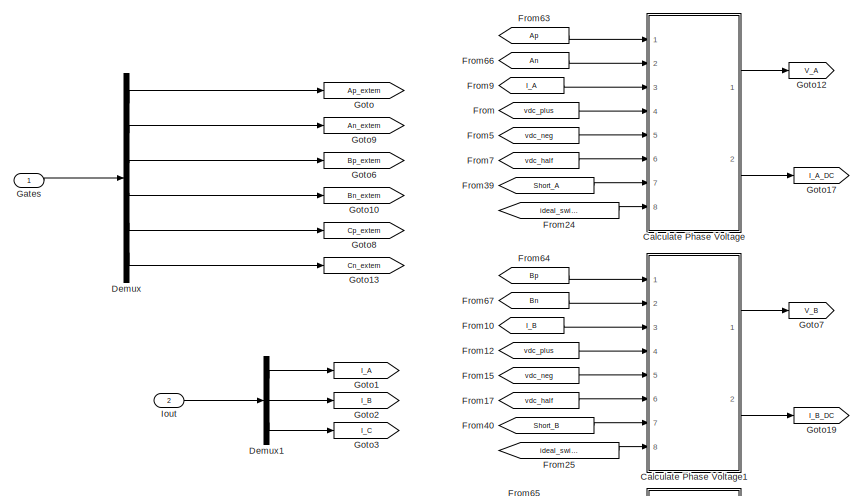
[diagram: Inverter and BLDC motor/Subcycle Averaging Inverter/Inverter (2-Level HDL w faults) - part 1/3, top left region]
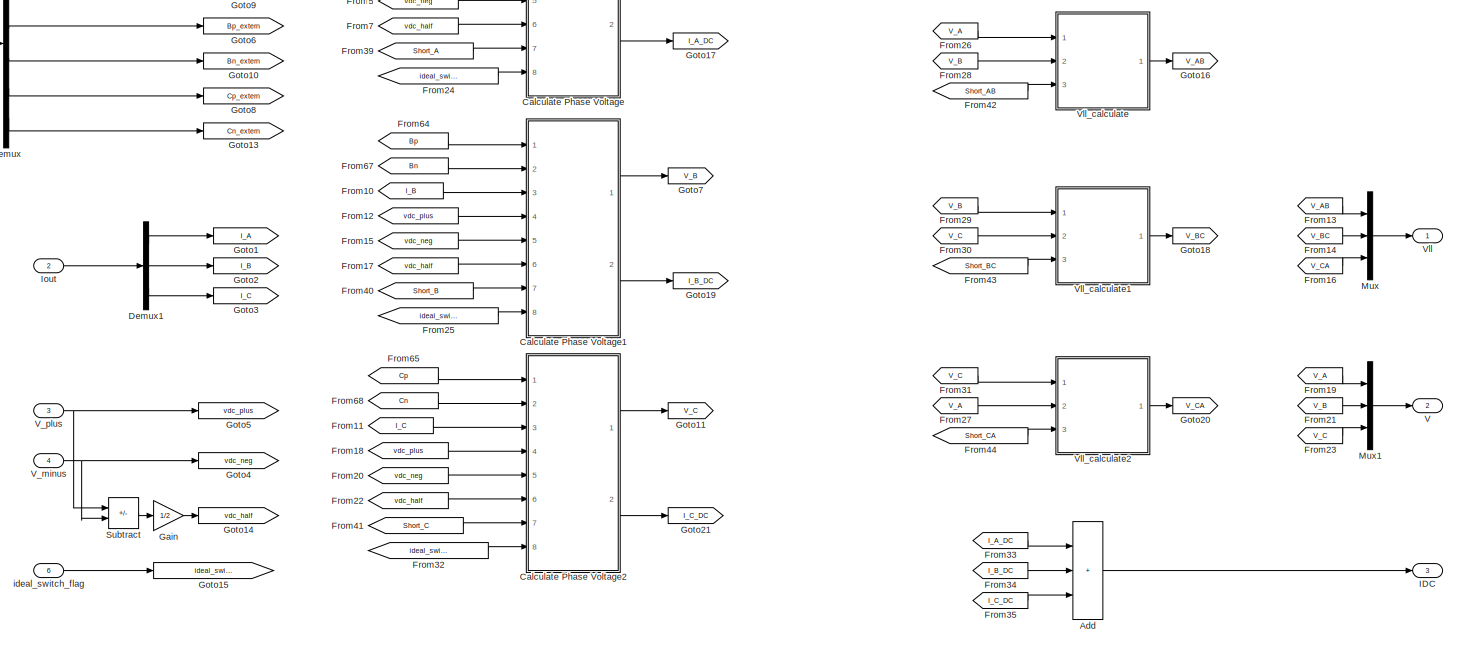
[diagram: Inverter and BLDC motor/Subcycle Averaging Inverter/Inverter (2-Level HDL w faults) - part 2/3, full width, top band]
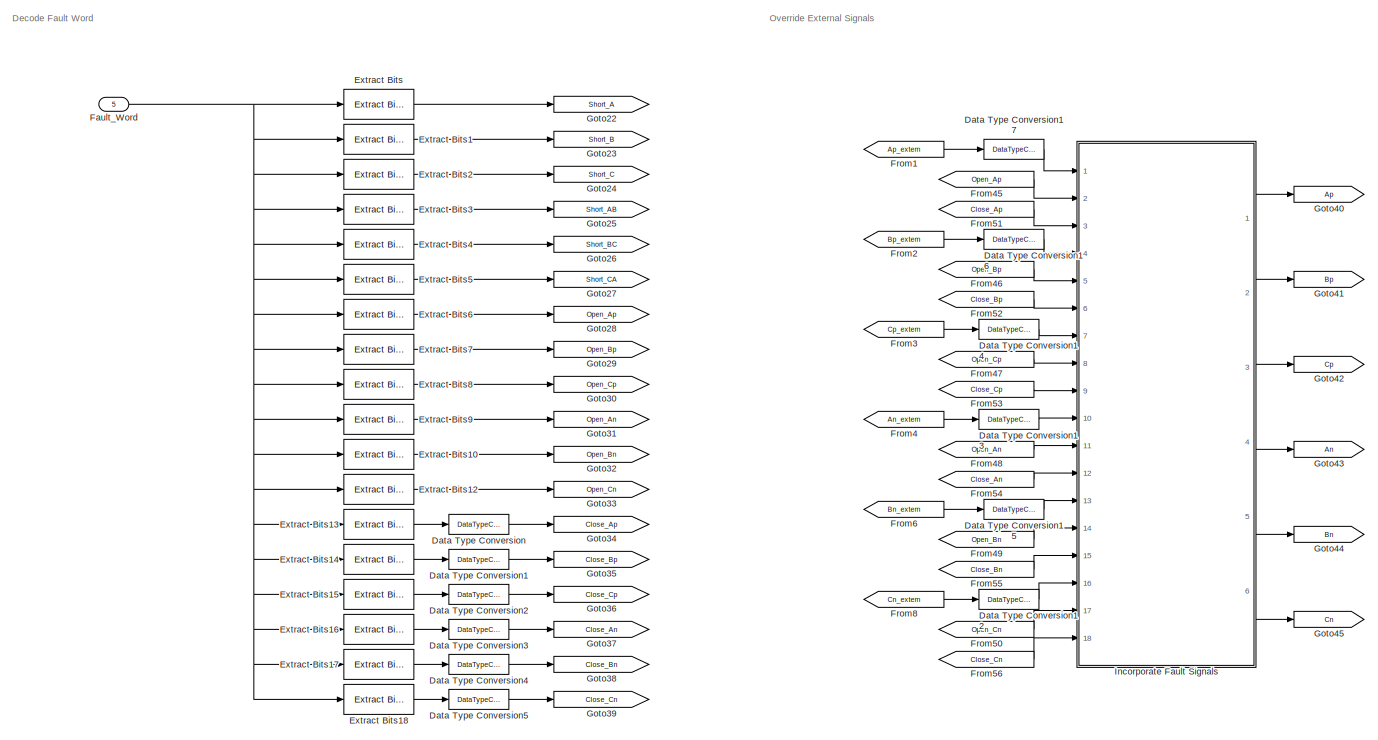
[diagram: Inverter and BLDC motor/Subcycle Averaging Inverter/Inverter (2-Level HDL w faults) - part 3/3, full width, bottom band]
BLOCK [SubSystem] Inverter and BLDC motor/Subcycle Averaging Inverter/Inverter (2-Level HDL w faults)
  Ports = [6, 3]
  RequestExecContextInheritance = off
BLOCK [Sum] Inverter and BLDC motor/Subcycle Averaging Inverter/Inverter (2-Level HDL w faults)/Add
  IconShape = rectangular
  Inputs = +++
  Ports = [3, 1]
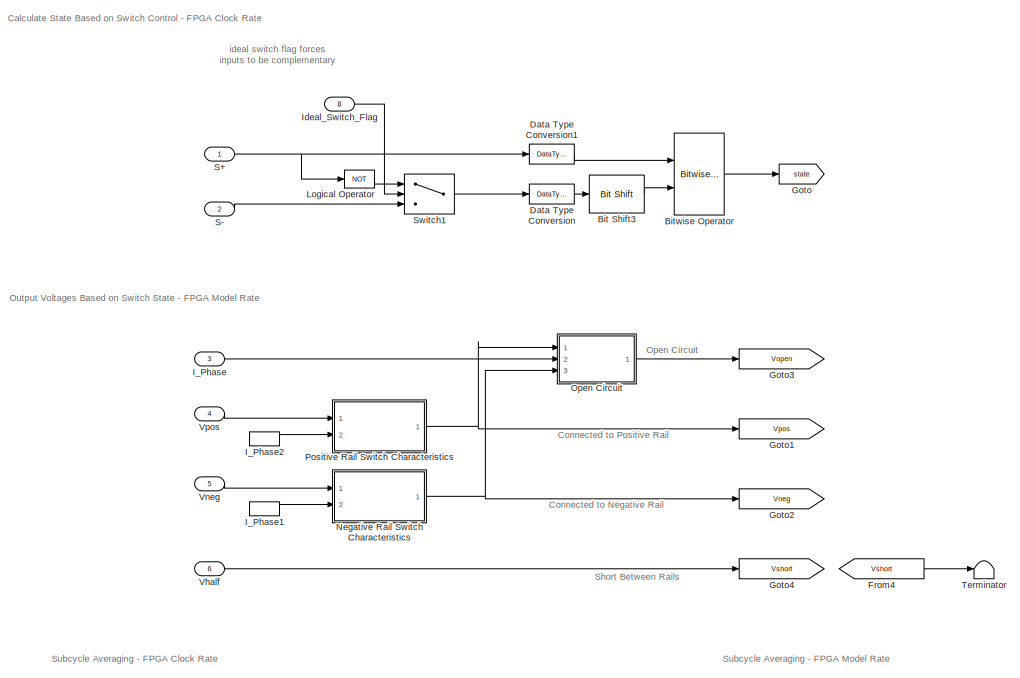
[diagram: Inverter and BLDC motor/Subcycle Averaging Inverter/Inverter (2-Level HDL w faults)/Calculate Phase Voltage - part 1/2, top center region]
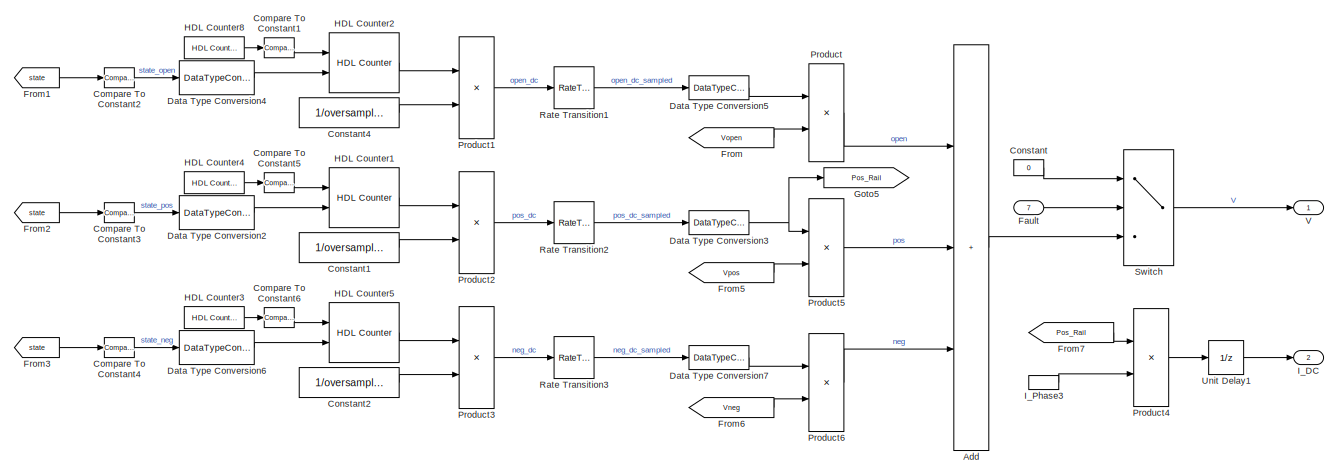
[diagram: Inverter and BLDC motor/Subcycle Averaging Inverter/Inverter (2-Level HDL w faults)/Calculate Phase Voltage - part 2/2, full width, bottom band]
BLOCK [SubSystem] Inverter and BLDC motor/Subcycle Averaging Inverter/Inverter (2-Level HDL w faults)/Calculate Phase Voltage
  Ports = [8, 2]
  RequestExecContextInheritance = off
BLOCK [Sum] Inverter and BLDC motor/Subcycle Averaging Inverter/Inverter (2-Level HDL w faults)/Calculate Phase Voltage/Add
  IconShape = rectangular
  Inputs = +++
  Ports = [3, 1]
BLOCK [Reference] Inverter and BLDC motor/Subcycle Averaging Inverter/Inverter (2-Level HDL w faults)/Calculate Phase Voltage/Bit Shift3  REF=hdlsllib/Logic and Bit
Operations/Bit Shift
  Ports = [1, 1]
  SourceBlock = hdlsllib/Logic and Bit\nOperations/Bit Shift
  SourceProductBaseCode = SL
  SourceType = Bit Shift
BLOCK [Reference] Inverter and BLDC motor/Subcycle Averaging Inverter/Inverter (2-Level HDL w faults)/Calculate Phase Voltage/Bitwise Operator  REF=simulink/Logic and Bit
Operations/Bitwise
Operator
  Ports = [2, 1]
  SourceBlock = simulink/Logic and Bit\nOperations/Bitwise\nOperator
  SourceProductBaseCode = SL
  SourceType = Bitwise Operator
BLOCK [Reference] Inverter and BLDC motor/Subcycle Averaging Inverter/Inverter (2-Level HDL w faults)/Calculate Phase Voltage/Compare To Constant1  REF=simulink/Logic and Bit
Operations/Compare
To Constant
  Ports = [1, 1]
  SourceBlock = simulink/Logic and Bit\nOperations/Compare\nTo Constant
  SourceProductBaseCode = SL
  SourceType = Compare To Constant
BLOCK [Reference] Inverter and BLDC motor/Subcycle Averaging Inverter/Inverter (2-Level HDL w faults)/Calculate Phase Voltage/Compare To Constant2  REF=simulink/Logic and Bit
Operations/Compare
To Constant
  Ports = [1, 1]
  SourceBlock = simulink/Logic and Bit\nOperations/Compare\nTo Constant
  SourceProductBaseCode = SL
  SourceType = Compare To Constant
BLOCK [Reference] Inverter and BLDC motor/Subcycle Averaging Inverter/Inverter (2-Level HDL w faults)/Calculate Phase Voltage/Compare To Constant3  REF=simulink/Logic and Bit
Operations/Compare
To Constant
  Ports = [1, 1]
  SourceBlock = simulink/Logic and Bit\nOperations/Compare\nTo Constant
  SourceProductBaseCode = SL
  SourceType = Compare To Constant
BLOCK [Reference] Inverter and BLDC motor/Subcycle Averaging Inverter/Inverter (2-Level HDL w faults)/Calculate Phase Voltage/Compare To Constant4  REF=simulink/Logic and Bit
Operations/Compare
To Constant
  Ports = [1, 1]
  SourceBlock = simulink/Logic and Bit\nOperations/Compare\nTo Constant
  SourceProductBaseCode = SL
  SourceType = Compare To Constant
BLOCK [Reference] Inverter and BLDC motor/Subcycle Averaging Inverter/Inverter (2-Level HDL w faults)/Calculate Phase Voltage/Compare To Constant5  REF=simulink/Logic and Bit
Operations/Compare
To Constant
  Ports = [1, 1]
  SourceBlock = simulink/Logic and Bit\nOperations/Compare\nTo Constant
  SourceProductBaseCode = SL
  SourceType = Compare To Constant
BLOCK [Reference] Inverter and BLDC motor/Subcycle Averaging Inverter/Inverter (2-Level HDL w faults)/Calculate Phase Voltage/Compare To Constant6  REF=simulink/Logic and Bit
Operations/Compare
To Constant
  Ports = [1, 1]
  SourceBlock = simulink/Logic and Bit\nOperations/Compare\nTo Constant
  SourceProductBaseCode = SL
  SourceType = Compare To Constant
BLOCK [Constant] Inverter and BLDC motor/Subcycle Averaging Inverter/Inverter (2-Level HDL w faults)/Calculate Phase Voltage/Constant
  OutDataTypeStr = single
  SampleTime = ts_FPGA_mdl
  Value = 0
BLOCK [Constant] Inverter and BLDC motor/Subcycle Averaging Inverter/Inverter (2-Level HDL w faults)/Calculate Phase Voltage/Constant1
  OutDataTypeStr = fixdt(0,18,18)
  SampleTime = ts_FPGA_clk
  Value = 1/oversampling
BLOCK [Constant] Inverter and BLDC motor/Subcycle Averaging Inverter/Inverter (2-Level HDL w faults)/Calculate Phase Voltage/Constant2
  OutDataTypeStr = fixdt(0,18,18)
  SampleTime = ts_FPGA_clk
  Value = 1/oversampling
BLOCK [Constant] Inverter and BLDC motor/Subcycle Averaging Inverter/Inverter (2-Level HDL w faults)/Calculate Phase Voltage/Constant4
  OutDataTypeStr = fixdt(0,18,18)
  SampleTime = ts_FPGA_clk
  Value = 1/oversampling
BLOCK [DataTypeConversion] Inverter and BLDC motor/Subcycle Averaging Inverter/Inverter (2-Level HDL w faults)/Calculate Phase Voltage/Data Type Conversion
  OutDataTypeStr = uint8
  RndMeth = Floor
  SaturateOnIntegerOverflow = off
BLOCK [DataTypeConversion] Inverter and BLDC motor/Subcycle Averaging Inverter/Inverter (2-Level HDL w faults)/Calculate Phase Voltage/Data Type Conversion1
  OutDataTypeStr = uint8
  RndMeth = Floor
  SaturateOnIntegerOverflow = off
BLOCK [DataTypeConversion] Inverter and BLDC motor/Subcycle Averaging Inverter/Inverter (2-Level HDL w faults)/Calculate Phase Voltage/Data Type Conversion2
  OutDataTypeStr = boolean
  RndMeth = Floor
  SaturateOnIntegerOverflow = off
BLOCK [DataTypeConversion] Inverter and BLDC motor/Subcycle Averaging Inverter/Inverter (2-Level HDL w faults)/Calculate Phase Voltage/Data Type Conversion3
  OutDataTypeStr = single
  RndMeth = Floor
  SaturateOnIntegerOverflow = off
BLOCK [DataTypeConversion] Inverter and BLDC motor/Subcycle Averaging Inverter/Inverter (2-Level HDL w faults)/Calculate Phase Voltage/Data Type Conversion4
  OutDataTypeStr = boolean
  RndMeth = Floor
  SaturateOnIntegerOverflow = off
BLOCK [DataTypeConversion] Inverter and BLDC motor/Subcycle Averaging Inverter/Inverter (2-Level HDL w faults)/Calculate Phase Voltage/Data Type Conversion5
  OutDataTypeStr = single
  RndMeth = Floor
  SaturateOnIntegerOverflow = off
BLOCK [DataTypeConversion] Inverter and BLDC motor/Subcycle Averaging Inverter/Inverter (2-Level HDL w faults)/Calculate Phase Voltage/Data Type Conversion6
  OutDataTypeStr = boolean
  RndMeth = Floor
  SaturateOnIntegerOverflow = off
BLOCK [DataTypeConversion] Inverter and BLDC motor/Subcycle Averaging Inverter/Inverter (2-Level HDL w faults)/Calculate Phase Voltage/Data Type Conversion7
  OutDataTypeStr = single
  RndMeth = Floor
  SaturateOnIntegerOverflow = off
BLOCK [Inport] Inverter and BLDC motor/Subcycle Averaging Inverter/Inverter (2-Level HDL w faults)/Calculate Phase Voltage/Fault
  Port = 7
BLOCK [From] Inverter and BLDC motor/Subcycle Averaging Inverter/Inverter (2-Level HDL w faults)/Calculate Phase Voltage/From
  GotoTag = Vopen
BLOCK [From] Inverter and BLDC motor/Subcycle Averaging Inverter/Inverter (2-Level HDL w faults)/Calculate Phase Voltage/From1
  GotoTag = state
BLOCK [From] Inverter and BLDC motor/Subcycle Averaging Inverter/Inverter (2-Level HDL w faults)/Calculate Phase Voltage/From2
  GotoTag = state
BLOCK [From] Inverter and BLDC motor/Subcycle Averaging Inverter/Inverter (2-Level HDL w faults)/Calculate Phase Voltage/From3
  GotoTag = state
BLOCK [From] Inverter and BLDC motor/Subcycle Averaging Inverter/Inverter (2-Level HDL w faults)/Calculate Phase Voltage/From4
  GotoTag = Vshort
BLOCK [From] Inverter and BLDC motor/Subcycle Averaging Inverter/Inverter (2-Level HDL w faults)/Calculate Phase Voltage/From5
  GotoTag = Vpos
BLOCK [From] Inverter and BLDC motor/Subcycle Averaging Inverter/Inverter (2-Level HDL w faults)/Calculate Phase Voltage/From6
  GotoTag = Vneg
BLOCK [From] Inverter and BLDC motor/Subcycle Averaging Inverter/Inverter (2-Level HDL w faults)/Calculate Phase Voltage/From7
  GotoTag = Pos_Rail
BLOCK [Goto] Inverter and BLDC motor/Subcycle Averaging Inverter/Inverter (2-Level HDL w faults)/Calculate Phase Voltage/Goto
  GotoTag = state
BLOCK [Goto] Inverter and BLDC motor/Subcycle Averaging Inverter/Inverter (2-Level HDL w faults)/Calculate Phase Voltage/Goto1
  GotoTag = Vpos
BLOCK [Goto] Inverter and BLDC motor/Subcycle Averaging Inverter/Inverter (2-Level HDL w faults)/Calculate Phase Voltage/Goto2
  GotoTag = Vneg
BLOCK [Goto] Inverter and BLDC motor/Subcycle Averaging Inverter/Inverter (2-Level HDL w faults)/Calculate Phase Voltage/Goto3
  GotoTag = Vopen
BLOCK [Goto] Inverter and BLDC motor/Subcycle Averaging Inverter/Inverter (2-Level HDL w faults)/Calculate Phase Voltage/Goto4
  GotoTag = Vshort
BLOCK [Goto] Inverter and BLDC motor/Subcycle Averaging Inverter/Inverter (2-Level HDL w faults)/Calculate Phase Voltage/Goto5
  GotoTag = Pos_Rail
BLOCK [Reference] Inverter and BLDC motor/Subcycle Averaging Inverter/Inverter (2-Level HDL w faults)/Calculate Phase Voltage/HDL Counter1  REF=hdlsllib/Sources/HDL Counter
  Ports = [2, 1]
  SourceBlock = hdlsllib/Sources/HDL Counter
  SourceProductBaseCode = SL
  SourceType = HDL Counter
BLOCK [Reference] Inverter and BLDC motor/Subcycle Averaging Inverter/Inverter (2-Level HDL w faults)/Calculate Phase Voltage/HDL Counter2  REF=hdlsllib/Sources/HDL Counter
  Ports = [2, 1]
  SourceBlock = hdlsllib/Sources/HDL Counter
  SourceProductBaseCode = SL
  SourceType = HDL Counter
BLOCK [Reference] Inverter and BLDC motor/Subcycle Averaging Inverter/Inverter (2-Level HDL w faults)/Calculate Phase Voltage/HDL Counter3  REF=hdlsllib/Sources/HDL Counter
  Ports = [0, 1]
  SourceBlock = hdlsllib/Sources/HDL Counter
  SourceProductBaseCode = SL
  SourceType = HDL Counter
BLOCK [Reference] Inverter and BLDC motor/Subcycle Averaging Inverter/Inverter (2-Level HDL w faults)/Calculate Phase Voltage/HDL Counter4  REF=hdlsllib/Sources/HDL Counter
  Ports = [0, 1]
  SourceBlock = hdlsllib/Sources/HDL Counter
  SourceProductBaseCode = SL
  SourceType = HDL Counter
BLOCK [Reference] Inverter and BLDC motor/Subcycle Averaging Inverter/Inverter (2-Level HDL w faults)/Calculate Phase Voltage/HDL Counter5  REF=hdlsllib/Sources/HDL Counter
  Ports = [2, 1]
  SourceBlock = hdlsllib/Sources/HDL Counter
  SourceProductBaseCode = SL
  SourceType = HDL Counter
BLOCK [Reference] Inverter and BLDC motor/Subcycle Averaging Inverter/Inverter (2-Level HDL w faults)/Calculate Phase Voltage/HDL Counter8  REF=hdlsllib/Sources/HDL Counter
  Ports = [0, 1]
  SourceBlock = hdlsllib/Sources/HDL Counter
  SourceProductBaseCode = SL
  SourceType = HDL Counter
BLOCK [Outport] Inverter and BLDC motor/Subcycle Averaging Inverter/Inverter (2-Level HDL w faults)/Calculate Phase Voltage/I_DC
  Port = 2
  VectorParamsAs1DForOutWhenUnconnected = off
BLOCK [Inport] Inverter and BLDC motor/Subcycle Averaging Inverter/Inverter (2-Level HDL w faults)/Calculate Phase Voltage/I_Phase
  Port = 3
BLOCK [InportShadow] Inverter and BLDC motor/Subcycle Averaging Inverter/Inverter (2-Level HDL w faults)/Calculate Phase Voltage/I_Phase1
  Port = 3
BLOCK [InportShadow] Inverter and BLDC motor/Subcycle Averaging Inverter/Inverter (2-Level HDL w faults)/Calculate Phase Voltage/I_Phase2
  Port = 3
BLOCK [InportShadow] Inverter and BLDC motor/Subcycle Averaging Inverter/Inverter (2-Level HDL w faults)/Calculate Phase Voltage/I_Phase3
  Port = 3
BLOCK [Inport] Inverter and BLDC motor/Subcycle Averaging Inverter/Inverter (2-Level HDL w faults)/Calculate Phase Voltage/Ideal_Switch_Flag
  Port = 8
BLOCK [Logic] Inverter and BLDC motor/Subcycle Averaging Inverter/Inverter (2-Level HDL w faults)/Calculate Phase Voltage/Logical Operator
  AllPortsSameDT = off
  Operator = NOT
  OutDataTypeStr = boolean
  Ports = [1, 1]
BLOCK [SubSystem] Inverter and BLDC motor/Subcycle Averaging Inverter/Inverter (2-Level HDL w faults)/Calculate Phase Voltage/Negative Rail Switch Characteristics
  Ports = [2, 1]
  RequestExecContextInheritance = off
BLOCK [Reference] Inverter and BLDC motor/Subcycle Averaging Inverter/Inverter (2-Level HDL w faults)/Calculate Phase Voltage/Negative Rail Switch Characteristics/Compare To Zero  REF=simulink/Logic and Bit
Operations/Compare
To Zero
  Ports = [1, 1]
  SourceBlock = simulink/Logic and Bit\nOperations/Compare\nTo Zero
  SourceProductBaseCode = SL
  SourceType = Compare To Zero
BLOCK [Constant] Inverter and BLDC motor/Subcycle Averaging Inverter/Inverter (2-Level HDL w faults)/Calculate Phase Voltage/Negative Rail Switch Characteristics/Constant
  OutDataTypeStr = single
  SampleTime = ts_FPGA_mdl
  Value = vfSwitch
BLOCK [Constant] Inverter and BLDC motor/Subcycle Averaging Inverter/Inverter (2-Level HDL w faults)/Calculate Phase Voltage/Negative Rail Switch Characteristics/Constant1
  OutDataTypeStr = single
  SampleTime = ts_FPGA_mdl
  Value = vfDiode
BLOCK [Gain] Inverter and BLDC motor/Subcycle Averaging Inverter/Inverter (2-Level HDL w faults)/Calculate Phase Voltage/Negative Rail Switch Characteristics/Gain
  Gain = rSwitch
BLOCK [Gain] Inverter and BLDC motor/Subcycle Averaging Inverter/Inverter (2-Level HDL w faults)/Calculate Phase Voltage/Negative Rail Switch Characteristics/Gain1
  Gain = rDiode
BLOCK [Inport] Inverter and BLDC motor/Subcycle Averaging Inverter/Inverter (2-Level HDL w faults)/Calculate Phase Voltage/Negative Rail Switch Characteristics/I
  Port = 2
BLOCK [InportShadow] Inverter and BLDC motor/Subcycle Averaging Inverter/Inverter (2-Level HDL w faults)/Calculate Phase Voltage/Negative Rail Switch Characteristics/I1
  Port = 2
BLOCK [InportShadow] Inverter and BLDC motor/Subcycle Averaging Inverter/Inverter (2-Level HDL w faults)/Calculate Phase Voltage/Negative Rail Switch Characteristics/I2
  Port = 2
BLOCK [Sum] Inverter and BLDC motor/Subcycle Averaging Inverter/Inverter (2-Level HDL w faults)/Calculate Phase Voltage/Negative Rail Switch Characteristics/Sum1
  Inputs = +-|
  Ports = [2, 1]
BLOCK [Sum] Inverter and BLDC motor/Subcycle Averaging Inverter/Inverter (2-Level HDL w faults)/Calculate Phase Voltage/Negative Rail Switch Characteristics/Sum2
  Inputs = |--
  Ports = [2, 1]
BLOCK [Sum] Inverter and BLDC motor/Subcycle Averaging Inverter/Inverter (2-Level HDL w faults)/Calculate Phase Voltage/Negative Rail Switch Characteristics/Sum3
  Inputs = ++|
  Ports = [2, 1]
BLOCK [Switch] Inverter and BLDC motor/Subcycle Averaging Inverter/Inverter (2-Level HDL w faults)/Calculate Phase Voltage/Negative Rail Switch Characteristics/Switch
  Criteria = u2 > Threshold
  InputSameDT = off
  SaturateOnIntegerOverflow = off
BLOCK [UnitDelay] Inverter and BLDC motor/Subcycle Averaging Inverter/Inverter (2-Level HDL w faults)/Calculate Phase Voltage/Negative Rail Switch Characteristics/Unit Delay
  HasFrameUpgradeWarning = on
  SampleTime = -1
BLOCK [Inport] Inverter and BLDC motor/Subcycle Averaging Inverter/Inverter (2-Level HDL w faults)/Calculate Phase Voltage/Negative Rail Switch Characteristics/Vin
BLOCK [Outport] Inverter and BLDC motor/Subcycle Averaging Inverter/Inverter (2-Level HDL w faults)/Calculate Phase Voltage/Negative Rail Switch Characteristics/Vout
  VectorParamsAs1DForOutWhenUnconnected = off
BLOCK [SubSystem] Inverter and BLDC motor/Subcycle Averaging Inverter/Inverter (2-Level HDL w faults)/Calculate Phase Voltage/Open Circuit
  Ports = [3, 1]
  RequestExecContextInheritance = off
BLOCK [Inport] Inverter and BLDC motor/Subcycle Averaging Inverter/Inverter (2-Level HDL w faults)/Calculate Phase Voltage/Open Circuit/+
BLOCK [Inport] Inverter and BLDC motor/Subcycle Averaging Inverter/Inverter (2-Level HDL w faults)/Calculate Phase Voltage/Open Circuit/-
  Port = 3
BLOCK [Gain] Inverter and BLDC motor/Subcycle Averaging Inverter/Inverter (2-Level HDL w faults)/Calculate Phase Voltage/Open Circuit/Gain
  Gain = -rSnub
BLOCK [Inport] Inverter and BLDC motor/Subcycle Averaging Inverter/Inverter (2-Level HDL w faults)/Calculate Phase Voltage/Open Circuit/In
  Port = 2
BLOCK [MinMax] Inverter and BLDC motor/Subcycle Averaging Inverter/Inverter (2-Level HDL w faults)/Calculate Phase Voltage/Open Circuit/Max
  Inputs = 2
  Ports = [2, 1]
BLOCK [MinMax] Inverter and BLDC motor/Subcycle Averaging Inverter/Inverter (2-Level HDL w faults)/Calculate Phase Voltage/Open Circuit/Max1
  Function = max
  Inputs = 2
  Ports = [2, 1]
BLOCK [Outport] Inverter and BLDC motor/Subcycle Averaging Inverter/Inverter (2-Level HDL w faults)/Calculate Phase Voltage/Open Circuit/Out
  VectorParamsAs1DForOutWhenUnconnected = off
BLOCK [UnitDelay] Inverter and BLDC motor/Subcycle Averaging Inverter/Inverter (2-Level HDL w faults)/Calculate Phase Voltage/Open Circuit/Unit Delay
  HasFrameUpgradeWarning = on
  SampleTime = -1
BLOCK [SubSystem] Inverter and BLDC motor/Subcycle Averaging Inverter/Inverter (2-Level HDL w faults)/Calculate Phase Voltage/Positive Rail Switch Characteristics
  Ports = [2, 1]
  RequestExecContextInheritance = off
BLOCK [Reference] Inverter and BLDC motor/Subcycle Averaging Inverter/Inverter (2-Level HDL w faults)/Calculate Phase Voltage/Positive Rail Switch Characteristics/Compare To Zero  REF=simulink/Logic and Bit
Operations/Compare
To Zero
  Ports = [1, 1]
  SourceBlock = simulink/Logic and Bit\nOperations/Compare\nTo Zero
  SourceProductBaseCode = SL
  SourceType = Compare To Zero
BLOCK [Constant] Inverter and BLDC motor/Subcycle Averaging Inverter/Inverter (2-Level HDL w faults)/Calculate Phase Voltage/Positive Rail Switch Characteristics/Constant
  OutDataTypeStr = single
  SampleTime = ts_FPGA_mdl
  Value = vfSwitch
BLOCK [Constant] Inverter and BLDC motor/Subcycle Averaging Inverter/Inverter (2-Level HDL w faults)/Calculate Phase Voltage/Positive Rail Switch Characteristics/Constant1
  OutDataTypeStr = single
  SampleTime = ts_FPGA_mdl
  Value = vfDiode
BLOCK [Gain] Inverter and BLDC motor/Subcycle Averaging Inverter/Inverter (2-Level HDL w faults)/Calculate Phase Voltage/Positive Rail Switch Characteristics/Gain
  Gain = rSwitch
BLOCK [Gain] Inverter and BLDC motor/Subcycle Averaging Inverter/Inverter (2-Level HDL w faults)/Calculate Phase Voltage/Positive Rail Switch Characteristics/Gain1
  Gain = rDiode
BLOCK [Inport] Inverter and BLDC motor/Subcycle Averaging Inverter/Inverter (2-Level HDL w faults)/Calculate Phase Voltage/Positive Rail Switch Characteristics/I
  Port = 2
BLOCK [InportShadow] Inverter and BLDC motor/Subcycle Averaging Inverter/Inverter (2-Level HDL w faults)/Calculate Phase Voltage/Positive Rail Switch Characteristics/I1
  Port = 2
BLOCK [InportShadow] Inverter and BLDC motor/Subcycle Averaging Inverter/Inverter (2-Level HDL w faults)/Calculate Phase Voltage/Positive Rail Switch Characteristics/I2
  Port = 2
BLOCK [Sum] Inverter and BLDC motor/Subcycle Averaging Inverter/Inverter (2-Level HDL w faults)/Calculate Phase Voltage/Positive Rail Switch Characteristics/Sum1
  Inputs = -+|
  Ports = [2, 1]
BLOCK [Sum] Inverter and BLDC motor/Subcycle Averaging Inverter/Inverter (2-Level HDL w faults)/Calculate Phase Voltage/Positive Rail Switch Characteristics/Sum2
  Inputs = |++
  Ports = [2, 1]
BLOCK [Sum] Inverter and BLDC motor/Subcycle Averaging Inverter/Inverter (2-Level HDL w faults)/Calculate Phase Voltage/Positive Rail Switch Characteristics/Sum3
  Inputs = +-|
  Ports = [2, 1]
BLOCK [Switch] Inverter and BLDC motor/Subcycle Averaging Inverter/Inverter (2-Level HDL w faults)/Calculate Phase Voltage/Positive Rail Switch Characteristics/Switch
  Criteria = u2 > Threshold
  InputSameDT = off
  SaturateOnIntegerOverflow = off
BLOCK [UnitDelay] Inverter and BLDC motor/Subcycle Averaging Inverter/Inverter (2-Level HDL w faults)/Calculate Phase Voltage/Positive Rail Switch Characteristics/Unit Delay
  HasFrameUpgradeWarning = on
  SampleTime = -1
BLOCK [Inport] Inverter and BLDC motor/Subcycle Averaging Inverter/Inverter (2-Level HDL w faults)/Calculate Phase Voltage/Positive Rail Switch Characteristics/Vin
BLOCK [Outport] Inverter and BLDC motor/Subcycle Averaging Inverter/Inverter (2-Level HDL w faults)/Calculate Phase Voltage/Positive Rail Switch Characteristics/Vout
  VectorParamsAs1DForOutWhenUnconnected = off
BLOCK [Product] Inverter and BLDC motor/Subcycle Averaging Inverter/Inverter (2-Level HDL w faults)/Calculate Phase Voltage/Product
  Ports = [2, 1]
BLOCK [Product] Inverter and BLDC motor/Subcycle Averaging Inverter/Inverter (2-Level HDL w faults)/Calculate Phase Voltage/Product1
  Ports = [2, 1]
BLOCK [Product] Inverter and BLDC motor/Subcycle Averaging Inverter/Inverter (2-Level HDL w faults)/Calculate Phase Voltage/Product2
  Ports = [2, 1]
BLOCK [Product] Inverter and BLDC motor/Subcycle Averaging Inverter/Inverter (2-Level HDL w faults)/Calculate Phase Voltage/Product3
  Ports = [2, 1]
BLOCK [Product] Inverter and BLDC motor/Subcycle Averaging Inverter/Inverter (2-Level HDL w faults)/Calculate Phase Voltage/Product4
  Ports = [2, 1]
BLOCK [Product] Inverter and BLDC motor/Subcycle Averaging Inverter/Inverter (2-Level HDL w faults)/Calculate Phase Voltage/Product5
  Ports = [2, 1]
BLOCK [Product] Inverter and BLDC motor/Subcycle Averaging Inverter/Inverter (2-Level HDL w faults)/Calculate Phase Voltage/Product6
  Ports = [2, 1]
BLOCK [RateTransition] Inverter and BLDC motor/Subcycle Averaging Inverter/Inverter (2-Level HDL w faults)/Calculate Phase Voltage/Rate Transition1
  OutPortSampleTime = 1e-6
BLOCK [RateTransition] Inverter and BLDC motor/Subcycle Averaging Inverter/Inverter (2-Level HDL w faults)/Calculate Phase Voltage/Rate Transition2
  OutPortSampleTime = 1e-6
BLOCK [RateTransition] Inverter and BLDC motor/Subcycle Averaging Inverter/Inverter (2-Level HDL w faults)/Calculate Phase Voltage/Rate Transition3
  OutPortSampleTime = 1e-6
BLOCK [Inport] Inverter and BLDC motor/Subcycle Averaging Inverter/Inverter (2-Level HDL w faults)/Calculate Phase Voltage/S+
BLOCK [Inport] Inverter and BLDC motor/Subcycle Averaging Inverter/Inverter (2-Level HDL w faults)/Calculate Phase Voltage/S-
  Port = 2
BLOCK [Switch] Inverter and BLDC motor/Subcycle Averaging Inverter/Inverter (2-Level HDL w faults)/Calculate Phase Voltage/Switch
  Criteria = u2 > Threshold
  InputSameDT = off
  SaturateOnIntegerOverflow = off
BLOCK [Switch] Inverter and BLDC motor/Subcycle Averaging Inverter/Inverter (2-Level HDL w faults)/Calculate Phase Voltage/Switch1
  Criteria = u2 > Threshold
  InputSameDT = off
  SaturateOnIntegerOverflow = off
BLOCK [Terminator] Inverter and BLDC motor/Subcycle Averaging Inverter/Inverter (2-Level HDL w faults)/Calculate Phase Voltage/Terminator
BLOCK [UnitDelay] Inverter and BLDC motor/Subcycle Averaging Inverter/Inverter (2-Level HDL w faults)/Calculate Phase Voltage/Unit Delay1
  HasFrameUpgradeWarning = on
  SampleTime = -1
BLOCK [Outport] Inverter and BLDC motor/Subcycle Averaging Inverter/Inverter (2-Level HDL w faults)/Calculate Phase Voltage/V
  VectorParamsAs1DForOutWhenUnconnected = off
BLOCK [Inport] Inverter and BLDC motor/Subcycle Averaging Inverter/Inverter (2-Level HDL w faults)/Calculate Phase Voltage/Vhalf
  Port = 6
BLOCK [Inport] Inverter and BLDC motor/Subcycle Averaging Inverter/Inverter (2-Level HDL w faults)/Calculate Phase Voltage/Vneg
  Port = 5
BLOCK [Inport] Inverter and BLDC motor/Subcycle Averaging Inverter/Inverter (2-Level HDL w faults)/Calculate Phase Voltage/Vpos
  Port = 4
BLOCK [SubSystem] Inverter and BLDC motor/Subcycle Averaging Inverter/Inverter (2-Level HDL w faults)/Calculate Phase Voltage1
  Ports = [8, 2]
  RequestExecContextInheritance = off
BLOCK [Sum] Inverter and BLDC motor/Subcycle Averaging Inverter/Inverter (2-Level HDL w faults)/Calculate Phase Voltage1/Add
  IconShape = rectangular
  Inputs = +++
  Ports = [3, 1]
BLOCK [Reference] Inverter and BLDC motor/Subcycle Averaging Inverter/Inverter (2-Level HDL w faults)/Calculate Phase Voltage1/Bit Shift3  REF=hdlsllib/Logic and Bit
Operations/Bit Shift
  Ports = [1, 1]
  SourceBlock = hdlsllib/Logic and Bit\nOperations/Bit Shift
  SourceProductBaseCode = SL
  SourceType = Bit Shift
BLOCK [Reference] Inverter and BLDC motor/Subcycle Averaging Inverter/Inverter (2-Level HDL w faults)/Calculate Phase Voltage1/Bitwise Operator  REF=simulink/Logic and Bit
Operations/Bitwise
Operator
  Ports = [2, 1]
  SourceBlock = simulink/Logic and Bit\nOperations/Bitwise\nOperator
  SourceProductBaseCode = SL
  SourceType = Bitwise Operator
BLOCK [Reference] Inverter and BLDC motor/Subcycle Averaging Inverter/Inverter (2-Level HDL w faults)/Calculate Phase Voltage1/Compare To Constant1  REF=simulink/Logic and Bit
Operations/Compare
To Constant
  Ports = [1, 1]
  SourceBlock = simulink/Logic and Bit\nOperations/Compare\nTo Constant
  SourceProductBaseCode = SL
  SourceType = Compare To Constant
BLOCK [Reference] Inverter and BLDC motor/Subcycle Averaging Inverter/Inverter (2-Level HDL w faults)/Calculate Phase Voltage1/Compare To Constant2  REF=simulink/Logic and Bit
Operations/Compare
To Constant
  Ports = [1, 1]
  SourceBlock = simulink/Logic and Bit\nOperations/Compare\nTo Constant
  SourceProductBaseCode = SL
  SourceType = Compare To Constant
BLOCK [Reference] Inverter and BLDC motor/Subcycle Averaging Inverter/Inverter (2-Level HDL w faults)/Calculate Phase Voltage1/Compare To Constant3  REF=simulink/Logic and Bit
Operations/Compare
To Constant
  Ports = [1, 1]
  SourceBlock = simulink/Logic and Bit\nOperations/Compare\nTo Constant
  SourceProductBaseCode = SL
  SourceType = Compare To Constant
BLOCK [Reference] Inverter and BLDC motor/Subcycle Averaging Inverter/Inverter (2-Level HDL w faults)/Calculate Phase Voltage1/Compare To Constant4  REF=simulink/Logic and Bit
Operations/Compare
To Constant
  Ports = [1, 1]
  SourceBlock = simulink/Logic and Bit\nOperations/Compare\nTo Constant
  SourceProductBaseCode = SL
  SourceType = Compare To Constant
BLOCK [Reference] Inverter and BLDC motor/Subcycle Averaging Inverter/Inverter (2-Level HDL w faults)/Calculate Phase Voltage1/Compare To Constant5  REF=simulink/Logic and Bit
Operations/Compare
To Constant
  Ports = [1, 1]
  SourceBlock = simulink/Logic and Bit\nOperations/Compare\nTo Constant
  SourceProductBaseCode = SL
  SourceType = Compare To Constant
BLOCK [Reference] Inverter and BLDC motor/Subcycle Averaging Inverter/Inverter (2-Level HDL w faults)/Calculate Phase Voltage1/Compare To Constant6  REF=simulink/Logic and Bit
Operations/Compare
To Constant
  Ports = [1, 1]
  SourceBlock = simulink/Logic and Bit\nOperations/Compare\nTo Constant
  SourceProductBaseCode = SL
  SourceType = Compare To Constant
BLOCK [Constant] Inverter and BLDC motor/Subcycle Averaging Inverter/Inverter (2-Level HDL w faults)/Calculate Phase Voltage1/Constant
  OutDataTypeStr = single
  SampleTime = ts_FPGA_mdl
  Value = 0
BLOCK [Constant] Inverter and BLDC motor/Subcycle Averaging Inverter/Inverter (2-Level HDL w faults)/Calculate Phase Voltage1/Constant1
  OutDataTypeStr = fixdt(0,18,18)
  SampleTime = ts_FPGA_clk
  Value = 1/oversampling
BLOCK [Constant] Inverter and BLDC motor/Subcycle Averaging Inverter/Inverter (2-Level HDL w faults)/Calculate Phase Voltage1/Constant2
  OutDataTypeStr = fixdt(0,18,18)
  SampleTime = ts_FPGA_clk
  Value = 1/oversampling
BLOCK [Constant] Inverter and BLDC motor/Subcycle Averaging Inverter/Inverter (2-Level HDL w faults)/Calculate Phase Voltage1/Constant4
  OutDataTypeStr = fixdt(0,18,18)
  SampleTime = ts_FPGA_clk
  Value = 1/oversampling
BLOCK [DataTypeConversion] Inverter and BLDC motor/Subcycle Averaging Inverter/Inverter (2-Level HDL w faults)/Calculate Phase Voltage1/Data Type Conversion
  OutDataTypeStr = uint8
  RndMeth = Floor
  SaturateOnIntegerOverflow = off
BLOCK [DataTypeConversion] Inverter and BLDC motor/Subcycle Averaging Inverter/Inverter (2-Level HDL w faults)/Calculate Phase Voltage1/Data Type Conversion1
  OutDataTypeStr = uint8
  RndMeth = Floor
  SaturateOnIntegerOverflow = off
BLOCK [DataTypeConversion] Inverter and BLDC motor/Subcycle Averaging Inverter/Inverter (2-Level HDL w faults)/Calculate Phase Voltage1/Data Type Conversion2
  OutDataTypeStr = boolean
  RndMeth = Floor
  SaturateOnIntegerOverflow = off
BLOCK [DataTypeConversion] Inverter and BLDC motor/Subcycle Averaging Inverter/Inverter (2-Level HDL w faults)/Calculate Phase Voltage1/Data Type Conversion3
  OutDataTypeStr = single
  RndMeth = Floor
  SaturateOnIntegerOverflow = off
BLOCK [DataTypeConversion] Inverter and BLDC motor/Subcycle Averaging Inverter/Inverter (2-Level HDL w faults)/Calculate Phase Voltage1/Data Type Conversion4
  OutDataTypeStr = boolean
  RndMeth = Floor
  SaturateOnIntegerOverflow = off
BLOCK [DataTypeConversion] Inverter and BLDC motor/Subcycle Averaging Inverter/Inverter (2-Level HDL w faults)/Calculate Phase Voltage1/Data Type Conversion5
  OutDataTypeStr = single
  RndMeth = Floor
  SaturateOnIntegerOverflow = off
BLOCK [DataTypeConversion] Inverter and BLDC motor/Subcycle Averaging Inverter/Inverter (2-Level HDL w faults)/Calculate Phase Voltage1/Data Type Conversion6
  OutDataTypeStr = boolean
  RndMeth = Floor
  SaturateOnIntegerOverflow = off
BLOCK [DataTypeConversion] Inverter and BLDC motor/Subcycle Averaging Inverter/Inverter (2-Level HDL w faults)/Calculate Phase Voltage1/Data Type Conversion7
  OutDataTypeStr = single
  RndMeth = Floor
  SaturateOnIntegerOverflow = off
BLOCK [Inport] Inverter and BLDC motor/Subcycle Averaging Inverter/Inverter (2-Level HDL w faults)/Calculate Phase Voltage1/Fault
  Port = 7
BLOCK [From] Inverter and BLDC motor/Subcycle Averaging Inverter/Inverter (2-Level HDL w faults)/Calculate Phase Voltage1/From
  GotoTag = Vopen
BLOCK [From] Inverter and BLDC motor/Subcycle Averaging Inverter/Inverter (2-Level HDL w faults)/Calculate Phase Voltage1/From1
  GotoTag = state
BLOCK [From] Inverter and BLDC motor/Subcycle Averaging Inverter/Inverter (2-Level HDL w faults)/Calculate Phase Voltage1/From2
  GotoTag = state
BLOCK [From] Inverter and BLDC motor/Subcycle Averaging Inverter/Inverter (2-Level HDL w faults)/Calculate Phase Voltage1/From3
  GotoTag = state
BLOCK [From] Inverter and BLDC motor/Subcycle Averaging Inverter/Inverter (2-Level HDL w faults)/Calculate Phase Voltage1/From4
  GotoTag = Vshort
BLOCK [From] Inverter and BLDC motor/Subcycle Averaging Inverter/Inverter (2-Level HDL w faults)/Calculate Phase Voltage1/From5
  GotoTag = Vpos
BLOCK [From] Inverter and BLDC motor/Subcycle Averaging Inverter/Inverter (2-Level HDL w faults)/Calculate Phase Voltage1/From6
  GotoTag = Vneg
BLOCK [From] Inverter and BLDC motor/Subcycle Averaging Inverter/Inverter (2-Level HDL w faults)/Calculate Phase Voltage1/From7
  GotoTag = Pos_Rail
BLOCK [Goto] Inverter and BLDC motor/Subcycle Averaging Inverter/Inverter (2-Level HDL w faults)/Calculate Phase Voltage1/Goto
  GotoTag = state
BLOCK [Goto] Inverter and BLDC motor/Subcycle Averaging Inverter/Inverter (2-Level HDL w faults)/Calculate Phase Voltage1/Goto1
  GotoTag = Vpos
BLOCK [Goto] Inverter and BLDC motor/Subcycle Averaging Inverter/Inverter (2-Level HDL w faults)/Calculate Phase Voltage1/Goto2
  GotoTag = Vneg
BLOCK [Goto] Inverter and BLDC motor/Subcycle Averaging Inverter/Inverter (2-Level HDL w faults)/Calculate Phase Voltage1/Goto3
  GotoTag = Vopen
BLOCK [Goto] Inverter and BLDC motor/Subcycle Averaging Inverter/Inverter (2-Level HDL w faults)/Calculate Phase Voltage1/Goto4
  GotoTag = Vshort
BLOCK [Goto] Inverter and BLDC motor/Subcycle Averaging Inverter/Inverter (2-Level HDL w faults)/Calculate Phase Voltage1/Goto5
  GotoTag = Pos_Rail
BLOCK [Reference] Inverter and BLDC motor/Subcycle Averaging Inverter/Inverter (2-Level HDL w faults)/Calculate Phase Voltage1/HDL Counter1  REF=hdlsllib/Sources/HDL Counter
  Ports = [2, 1]
  SourceBlock = hdlsllib/Sources/HDL Counter
  SourceProductBaseCode = SL
  SourceType = HDL Counter
BLOCK [Reference] Inverter and BLDC motor/Subcycle Averaging Inverter/Inverter (2-Level HDL w faults)/Calculate Phase Voltage1/HDL Counter2  REF=hdlsllib/Sources/HDL Counter
  Ports = [2, 1]
  SourceBlock = hdlsllib/Sources/HDL Counter
  SourceProductBaseCode = SL
  SourceType = HDL Counter
BLOCK [Reference] Inverter and BLDC motor/Subcycle Averaging Inverter/Inverter (2-Level HDL w faults)/Calculate Phase Voltage1/HDL Counter3  REF=hdlsllib/Sources/HDL Counter
  Ports = [0, 1]
  SourceBlock = hdlsllib/Sources/HDL Counter
  SourceProductBaseCode = SL
  SourceType = HDL Counter
BLOCK [Reference] Inverter and BLDC motor/Subcycle Averaging Inverter/Inverter (2-Level HDL w faults)/Calculate Phase Voltage1/HDL Counter4  REF=hdlsllib/Sources/HDL Counter
  Ports = [0, 1]
  SourceBlock = hdlsllib/Sources/HDL Counter
  SourceProductBaseCode = SL
  SourceType = HDL Counter
BLOCK [Reference] Inverter and BLDC motor/Subcycle Averaging Inverter/Inverter (2-Level HDL w faults)/Calculate Phase Voltage1/HDL Counter5  REF=hdlsllib/Sources/HDL Counter
  Ports = [2, 1]
  SourceBlock = hdlsllib/Sources/HDL Counter
  SourceProductBaseCode = SL
  SourceType = HDL Counter
BLOCK [Reference] Inverter and BLDC motor/Subcycle Averaging Inverter/Inverter (2-Level HDL w faults)/Calculate Phase Voltage1/HDL Counter8  REF=hdlsllib/Sources/HDL Counter
  Ports = [0, 1]
  SourceBlock = hdlsllib/Sources/HDL Counter
  SourceProductBaseCode = SL
  SourceType = HDL Counter
BLOCK [Outport] Inverter and BLDC motor/Subcycle Averaging Inverter/Inverter (2-Level HDL w faults)/Calculate Phase Voltage1/I_DC
  Port = 2
  VectorParamsAs1DForOutWhenUnconnected = off
BLOCK [Inport] Inverter and BLDC motor/Subcycle Averaging Inverter/Inverter (2-Level HDL w faults)/Calculate Phase Voltage1/I_Phase
  Port = 3
BLOCK [InportShadow] Inverter and BLDC motor/Subcycle Averaging Inverter/Inverter (2-Level HDL w faults)/Calculate Phase Voltage1/I_Phase1
  Port = 3
BLOCK [InportShadow] Inverter and BLDC motor/Subcycle Averaging Inverter/Inverter (2-Level HDL w faults)/Calculate Phase Voltage1/I_Phase2
  Port = 3
BLOCK [InportShadow] Inverter and BLDC motor/Subcycle Averaging Inverter/Inverter (2-Level HDL w faults)/Calculate Phase Voltage1/I_Phase3
  Port = 3
BLOCK [Inport] Inverter and BLDC motor/Subcycle Averaging Inverter/Inverter (2-Level HDL w faults)/Calculate Phase Voltage1/Ideal_Switch_Flag
  Port = 8
BLOCK [Logic] Inverter and BLDC motor/Subcycle Averaging Inverter/Inverter (2-Level HDL w faults)/Calculate Phase Voltage1/Logical Operator
  AllPortsSameDT = off
  Operator = NOT
  OutDataTypeStr = boolean
  Ports = [1, 1]
BLOCK [SubSystem] Inverter and BLDC motor/Subcycle Averaging Inverter/Inverter (2-Level HDL w faults)/Calculate Phase Voltage1/Negative Rail Switch Characteristics
  Ports = [2, 1]
  RequestExecContextInheritance = off
BLOCK [Reference] Inverter and BLDC motor/Subcycle Averaging Inverter/Inverter (2-Level HDL w faults)/Calculate Phase Voltage1/Negative Rail Switch Characteristics/Compare To Zero  REF=simulink/Logic and Bit
Operations/Compare
To Zero
  Ports = [1, 1]
  SourceBlock = simulink/Logic and Bit\nOperations/Compare\nTo Zero
  SourceProductBaseCode = SL
  SourceType = Compare To Zero
BLOCK [Constant] Inverter and BLDC motor/Subcycle Averaging Inverter/Inverter (2-Level HDL w faults)/Calculate Phase Voltage1/Negative Rail Switch Characteristics/Constant
  OutDataTypeStr = single
  SampleTime = ts_FPGA_mdl
  Value = vfSwitch
BLOCK [Constant] Inverter and BLDC motor/Subcycle Averaging Inverter/Inverter (2-Level HDL w faults)/Calculate Phase Voltage1/Negative Rail Switch Characteristics/Constant1
  OutDataTypeStr = single
  SampleTime = ts_FPGA_mdl
  Value = vfDiode
BLOCK [Gain] Inverter and BLDC motor/Subcycle Averaging Inverter/Inverter (2-Level HDL w faults)/Calculate Phase Voltage1/Negative Rail Switch Characteristics/Gain
  Gain = rSwitch
BLOCK [Gain] Inverter and BLDC motor/Subcycle Averaging Inverter/Inverter (2-Level HDL w faults)/Calculate Phase Voltage1/Negative Rail Switch Characteristics/Gain1
  Gain = rDiode
BLOCK [Inport] Inverter and BLDC motor/Subcycle Averaging Inverter/Inverter (2-Level HDL w faults)/Calculate Phase Voltage1/Negative Rail Switch Characteristics/I
  Port = 2
BLOCK [InportShadow] Inverter and BLDC motor/Subcycle Averaging Inverter/Inverter (2-Level HDL w faults)/Calculate Phase Voltage1/Negative Rail Switch Characteristics/I1
  Port = 2
BLOCK [InportShadow] Inverter and BLDC motor/Subcycle Averaging Inverter/Inverter (2-Level HDL w faults)/Calculate Phase Voltage1/Negative Rail Switch Characteristics/I2
  Port = 2
BLOCK [Sum] Inverter and BLDC motor/Subcycle Averaging Inverter/Inverter (2-Level HDL w faults)/Calculate Phase Voltage1/Negative Rail Switch Characteristics/Sum1
  Inputs = +-|
  Ports = [2, 1]
BLOCK [Sum] Inverter and BLDC motor/Subcycle Averaging Inverter/Inverter (2-Level HDL w faults)/Calculate Phase Voltage1/Negative Rail Switch Characteristics/Sum2
  Inputs = |--
  Ports = [2, 1]
BLOCK [Sum] Inverter and BLDC motor/Subcycle Averaging Inverter/Inverter (2-Level HDL w faults)/Calculate Phase Voltage1/Negative Rail Switch Characteristics/Sum3
  Inputs = ++|
  Ports = [2, 1]
BLOCK [Switch] Inverter and BLDC motor/Subcycle Averaging Inverter/Inverter (2-Level HDL w faults)/Calculate Phase Voltage1/Negative Rail Switch Characteristics/Switch
  Criteria = u2 > Threshold
  InputSameDT = off
  SaturateOnIntegerOverflow = off
BLOCK [UnitDelay] Inverter and BLDC motor/Subcycle Averaging Inverter/Inverter (2-Level HDL w faults)/Calculate Phase Voltage1/Negative Rail Switch Characteristics/Unit Delay
  HasFrameUpgradeWarning = on
  SampleTime = -1
BLOCK [Inport] Inverter and BLDC motor/Subcycle Averaging Inverter/Inverter (2-Level HDL w faults)/Calculate Phase Voltage1/Negative Rail Switch Characteristics/Vin
BLOCK [Outport] Inverter and BLDC motor/Subcycle Averaging Inverter/Inverter (2-Level HDL w faults)/Calculate Phase Voltage1/Negative Rail Switch Characteristics/Vout
  VectorParamsAs1DForOutWhenUnconnected = off
BLOCK [SubSystem] Inverter and BLDC motor/Subcycle Averaging Inverter/Inverter (2-Level HDL w faults)/Calculate Phase Voltage1/Open Circuit
  Ports = [3, 1]
  RequestExecContextInheritance = off
BLOCK [Inport] Inverter and BLDC motor/Subcycle Averaging Inverter/Inverter (2-Level HDL w faults)/Calculate Phase Voltage1/Open Circuit/+
BLOCK [Inport] Inverter and BLDC motor/Subcycle Averaging Inverter/Inverter (2-Level HDL w faults)/Calculate Phase Voltage1/Open Circuit/-
  Port = 3
BLOCK [Gain] Inverter and BLDC motor/Subcycle Averaging Inverter/Inverter (2-Level HDL w faults)/Calculate Phase Voltage1/Open Circuit/Gain
  Gain = -rSnub
BLOCK [Inport] Inverter and BLDC motor/Subcycle Averaging Inverter/Inverter (2-Level HDL w faults)/Calculate Phase Voltage1/Open Circuit/In
  Port = 2
BLOCK [MinMax] Inverter and BLDC motor/Subcycle Averaging Inverter/Inverter (2-Level HDL w faults)/Calculate Phase Voltage1/Open Circuit/Max
  Inputs = 2
  Ports = [2, 1]
BLOCK [MinMax] Inverter and BLDC motor/Subcycle Averaging Inverter/Inverter (2-Level HDL w faults)/Calculate Phase Voltage1/Open Circuit/Max1
  Function = max
  Inputs = 2
  Ports = [2, 1]
BLOCK [Outport] Inverter and BLDC motor/Subcycle Averaging Inverter/Inverter (2-Level HDL w faults)/Calculate Phase Voltage1/Open Circuit/Out
  VectorParamsAs1DForOutWhenUnconnected = off
BLOCK [UnitDelay] Inverter and BLDC motor/Subcycle Averaging Inverter/Inverter (2-Level HDL w faults)/Calculate Phase Voltage1/Open Circuit/Unit Delay
  HasFrameUpgradeWarning = on
  SampleTime = -1
BLOCK [SubSystem] Inverter and BLDC motor/Subcycle Averaging Inverter/Inverter (2-Level HDL w faults)/Calculate Phase Voltage1/Positive Rail Switch Characteristics
  Ports = [2, 1]
  RequestExecContextInheritance = off
BLOCK [Reference] Inverter and BLDC motor/Subcycle Averaging Inverter/Inverter (2-Level HDL w faults)/Calculate Phase Voltage1/Positive Rail Switch Characteristics/Compare To Zero  REF=simulink/Logic and Bit
Operations/Compare
To Zero
  Ports = [1, 1]
  SourceBlock = simulink/Logic and Bit\nOperations/Compare\nTo Zero
  SourceProductBaseCode = SL
  SourceType = Compare To Zero
BLOCK [Constant] Inverter and BLDC motor/Subcycle Averaging Inverter/Inverter (2-Level HDL w faults)/Calculate Phase Voltage1/Positive Rail Switch Characteristics/Constant
  OutDataTypeStr = single
  SampleTime = ts_FPGA_mdl
  Value = vfSwitch
BLOCK [Constant] Inverter and BLDC motor/Subcycle Averaging Inverter/Inverter (2-Level HDL w faults)/Calculate Phase Voltage1/Positive Rail Switch Characteristics/Constant1
  OutDataTypeStr = single
  SampleTime = ts_FPGA_mdl
  Value = vfDiode
BLOCK [Gain] Inverter and BLDC motor/Subcycle Averaging Inverter/Inverter (2-Level HDL w faults)/Calculate Phase Voltage1/Positive Rail Switch Characteristics/Gain
  Gain = rSwitch
BLOCK [Gain] Inverter and BLDC motor/Subcycle Averaging Inverter/Inverter (2-Level HDL w faults)/Calculate Phase Voltage1/Positive Rail Switch Characteristics/Gain1
  Gain = rDiode
BLOCK [Inport] Inverter and BLDC motor/Subcycle Averaging Inverter/Inverter (2-Level HDL w faults)/Calculate Phase Voltage1/Positive Rail Switch Characteristics/I
  Port = 2
BLOCK [InportShadow] Inverter and BLDC motor/Subcycle Averaging Inverter/Inverter (2-Level HDL w faults)/Calculate Phase Voltage1/Positive Rail Switch Characteristics/I1
  Port = 2
BLOCK [InportShadow] Inverter and BLDC motor/Subcycle Averaging Inverter/Inverter (2-Level HDL w faults)/Calculate Phase Voltage1/Positive Rail Switch Characteristics/I2
  Port = 2
BLOCK [Sum] Inverter and BLDC motor/Subcycle Averaging Inverter/Inverter (2-Level HDL w faults)/Calculate Phase Voltage1/Positive Rail Switch Characteristics/Sum1
  Inputs = -+|
  Ports = [2, 1]
BLOCK [Sum] Inverter and BLDC motor/Subcycle Averaging Inverter/Inverter (2-Level HDL w faults)/Calculate Phase Voltage1/Positive Rail Switch Characteristics/Sum2
  Inputs = |++
  Ports = [2, 1]
BLOCK [Sum] Inverter and BLDC motor/Subcycle Averaging Inverter/Inverter (2-Level HDL w faults)/Calculate Phase Voltage1/Positive Rail Switch Characteristics/Sum3
  Inputs = +-|
  Ports = [2, 1]
BLOCK [Switch] Inverter and BLDC motor/Subcycle Averaging Inverter/Inverter (2-Level HDL w faults)/Calculate Phase Voltage1/Positive Rail Switch Characteristics/Switch
  Criteria = u2 > Threshold
  InputSameDT = off
  SaturateOnIntegerOverflow = off
BLOCK [UnitDelay] Inverter and BLDC motor/Subcycle Averaging Inverter/Inverter (2-Level HDL w faults)/Calculate Phase Voltage1/Positive Rail Switch Characteristics/Unit Delay
  HasFrameUpgradeWarning = on
  SampleTime = -1
BLOCK [Inport] Inverter and BLDC motor/Subcycle Averaging Inverter/Inverter (2-Level HDL w faults)/Calculate Phase Voltage1/Positive Rail Switch Characteristics/Vin
BLOCK [Outport] Inverter and BLDC motor/Subcycle Averaging Inverter/Inverter (2-Level HDL w faults)/Calculate Phase Voltage1/Positive Rail Switch Characteristics/Vout
  VectorParamsAs1DForOutWhenUnconnected = off
BLOCK [Product] Inverter and BLDC motor/Subcycle Averaging Inverter/Inverter (2-Level HDL w faults)/Calculate Phase Voltage1/Product
  Ports = [2, 1]
BLOCK [Product] Inverter and BLDC motor/Subcycle Averaging Inverter/Inverter (2-Level HDL w faults)/Calculate Phase Voltage1/Product1
  Ports = [2, 1]
BLOCK [Product] Inverter and BLDC motor/Subcycle Averaging Inverter/Inverter (2-Level HDL w faults)/Calculate Phase Voltage1/Product2
  Ports = [2, 1]
BLOCK [Product] Inverter and BLDC motor/Subcycle Averaging Inverter/Inverter (2-Level HDL w faults)/Calculate Phase Voltage1/Product3
  Ports = [2, 1]
BLOCK [Product] Inverter and BLDC motor/Subcycle Averaging Inverter/Inverter (2-Level HDL w faults)/Calculate Phase Voltage1/Product4
  Ports = [2, 1]
BLOCK [Product] Inverter and BLDC motor/Subcycle Averaging Inverter/Inverter (2-Level HDL w faults)/Calculate Phase Voltage1/Product5
  Ports = [2, 1]
BLOCK [Product] Inverter and BLDC motor/Subcycle Averaging Inverter/Inverter (2-Level HDL w faults)/Calculate Phase Voltage1/Product6
  Ports = [2, 1]
BLOCK [RateTransition] Inverter and BLDC motor/Subcycle Averaging Inverter/Inverter (2-Level HDL w faults)/Calculate Phase Voltage1/Rate Transition1
  OutPortSampleTime = 1e-6
BLOCK [RateTransition] Inverter and BLDC motor/Subcycle Averaging Inverter/Inverter (2-Level HDL w faults)/Calculate Phase Voltage1/Rate Transition2
  OutPortSampleTime = 1e-6
BLOCK [RateTransition] Inverter and BLDC motor/Subcycle Averaging Inverter/Inverter (2-Level HDL w faults)/Calculate Phase Voltage1/Rate Transition3
  OutPortSampleTime = 1e-6
BLOCK [Inport] Inverter and BLDC motor/Subcycle Averaging Inverter/Inverter (2-Level HDL w faults)/Calculate Phase Voltage1/S+
BLOCK [Inport] Inverter and BLDC motor/Subcycle Averaging Inverter/Inverter (2-Level HDL w faults)/Calculate Phase Voltage1/S-
  Port = 2
BLOCK [Switch] Inverter and BLDC motor/Subcycle Averaging Inverter/Inverter (2-Level HDL w faults)/Calculate Phase Voltage1/Switch
  Criteria = u2 > Threshold
  InputSameDT = off
  SaturateOnIntegerOverflow = off
BLOCK [Switch] Inverter and BLDC motor/Subcycle Averaging Inverter/Inverter (2-Level HDL w faults)/Calculate Phase Voltage1/Switch1
  Criteria = u2 > Threshold
  InputSameDT = off
  SaturateOnIntegerOverflow = off
BLOCK [Terminator] Inverter and BLDC motor/Subcycle Averaging Inverter/Inverter (2-Level HDL w faults)/Calculate Phase Voltage1/Terminator
BLOCK [UnitDelay] Inverter and BLDC motor/Subcycle Averaging Inverter/Inverter (2-Level HDL w faults)/Calculate Phase Voltage1/Unit Delay1
  HasFrameUpgradeWarning = on
  SampleTime = -1
BLOCK [Outport] Inverter and BLDC motor/Subcycle Averaging Inverter/Inverter (2-Level HDL w faults)/Calculate Phase Voltage1/V
  VectorParamsAs1DForOutWhenUnconnected = off
BLOCK [Inport] Inverter and BLDC motor/Subcycle Averaging Inverter/Inverter (2-Level HDL w faults)/Calculate Phase Voltage1/Vhalf
  Port = 6
BLOCK [Inport] Inverter and BLDC motor/Subcycle Averaging Inverter/Inverter (2-Level HDL w faults)/Calculate Phase Voltage1/Vneg
  Port = 5
BLOCK [Inport] Inverter and BLDC motor/Subcycle Averaging Inverter/Inverter (2-Level HDL w faults)/Calculate Phase Voltage1/Vpos
  Port = 4
BLOCK [SubSystem] Inverter and BLDC motor/Subcycle Averaging Inverter/Inverter (2-Level HDL w faults)/Calculate Phase Voltage2
  Ports = [8, 2]
  RequestExecContextInheritance = off
BLOCK [Sum] Inverter and BLDC motor/Subcycle Averaging Inverter/Inverter (2-Level HDL w faults)/Calculate Phase Voltage2/Add
  IconShape = rectangular
  Inputs = +++
  Ports = [3, 1]
BLOCK [Reference] Inverter and BLDC motor/Subcycle Averaging Inverter/Inverter (2-Level HDL w faults)/Calculate Phase Voltage2/Bit Shift3  REF=hdlsllib/Logic and Bit
Operations/Bit Shift
  Ports = [1, 1]
  SourceBlock = hdlsllib/Logic and Bit\nOperations/Bit Shift
  SourceProductBaseCode = SL
  SourceType = Bit Shift
BLOCK [Reference] Inverter and BLDC motor/Subcycle Averaging Inverter/Inverter (2-Level HDL w faults)/Calculate Phase Voltage2/Bitwise Operator  REF=simulink/Logic and Bit
Operations/Bitwise
Operator
  Ports = [2, 1]
  SourceBlock = simulink/Logic and Bit\nOperations/Bitwise\nOperator
  SourceProductBaseCode = SL
  SourceType = Bitwise Operator
BLOCK [Reference] Inverter and BLDC motor/Subcycle Averaging Inverter/Inverter (2-Level HDL w faults)/Calculate Phase Voltage2/Compare To Constant1  REF=simulink/Logic and Bit
Operations/Compare
To Constant
  Ports = [1, 1]
  SourceBlock = simulink/Logic and Bit\nOperations/Compare\nTo Constant
  SourceProductBaseCode = SL
  SourceType = Compare To Constant
BLOCK [Reference] Inverter and BLDC motor/Subcycle Averaging Inverter/Inverter (2-Level HDL w faults)/Calculate Phase Voltage2/Compare To Constant2  REF=simulink/Logic and Bit
Operations/Compare
To Constant
  Ports = [1, 1]
  SourceBlock = simulink/Logic and Bit\nOperations/Compare\nTo Constant
  SourceProductBaseCode = SL
  SourceType = Compare To Constant
BLOCK [Reference] Inverter and BLDC motor/Subcycle Averaging Inverter/Inverter (2-Level HDL w faults)/Calculate Phase Voltage2/Compare To Constant3  REF=simulink/Logic and Bit
Operations/Compare
To Constant
  Ports = [1, 1]
  SourceBlock = simulink/Logic and Bit\nOperations/Compare\nTo Constant
  SourceProductBaseCode = SL
  SourceType = Compare To Constant
BLOCK [Reference] Inverter and BLDC motor/Subcycle Averaging Inverter/Inverter (2-Level HDL w faults)/Calculate Phase Voltage2/Compare To Constant4  REF=simulink/Logic and Bit
Operations/Compare
To Constant
  Ports = [1, 1]
  SourceBlock = simulink/Logic and Bit\nOperations/Compare\nTo Constant
  SourceProductBaseCode = SL
  SourceType = Compare To Constant
BLOCK [Reference] Inverter and BLDC motor/Subcycle Averaging Inverter/Inverter (2-Level HDL w faults)/Calculate Phase Voltage2/Compare To Constant5  REF=simulink/Logic and Bit
Operations/Compare
To Constant
  Ports = [1, 1]
  SourceBlock = simulink/Logic and Bit\nOperations/Compare\nTo Constant
  SourceProductBaseCode = SL
  SourceType = Compare To Constant
BLOCK [Reference] Inverter and BLDC motor/Subcycle Averaging Inverter/Inverter (2-Level HDL w faults)/Calculate Phase Voltage2/Compare To Constant6  REF=simulink/Logic and Bit
Operations/Compare
To Constant
  Ports = [1, 1]
  SourceBlock = simulink/Logic and Bit\nOperations/Compare\nTo Constant
  SourceProductBaseCode = SL
  SourceType = Compare To Constant
BLOCK [Constant] Inverter and BLDC motor/Subcycle Averaging Inverter/Inverter (2-Level HDL w faults)/Calculate Phase Voltage2/Constant
  OutDataTypeStr = single
  SampleTime = ts_FPGA_mdl
  Value = 0
BLOCK [Constant] Inverter and BLDC motor/Subcycle Averaging Inverter/Inverter (2-Level HDL w faults)/Calculate Phase Voltage2/Constant1
  OutDataTypeStr = fixdt(0,18,18)
  SampleTime = ts_FPGA_clk
  Value = 1/oversampling
BLOCK [Constant] Inverter and BLDC motor/Subcycle Averaging Inverter/Inverter (2-Level HDL w faults)/Calculate Phase Voltage2/Constant2
  OutDataTypeStr = fixdt(0,18,18)
  SampleTime = ts_FPGA_clk
  Value = 1/oversampling
BLOCK [Constant] Inverter and BLDC motor/Subcycle Averaging Inverter/Inverter (2-Level HDL w faults)/Calculate Phase Voltage2/Constant4
  OutDataTypeStr = fixdt(0,18,18)
  SampleTime = ts_FPGA_clk
  Value = 1/oversampling
BLOCK [DataTypeConversion] Inverter and BLDC motor/Subcycle Averaging Inverter/Inverter (2-Level HDL w faults)/Calculate Phase Voltage2/Data Type Conversion
  OutDataTypeStr = uint8
  RndMeth = Floor
  SaturateOnIntegerOverflow = off
BLOCK [DataTypeConversion] Inverter and BLDC motor/Subcycle Averaging Inverter/Inverter (2-Level HDL w faults)/Calculate Phase Voltage2/Data Type Conversion1
  OutDataTypeStr = uint8
  RndMeth = Floor
  SaturateOnIntegerOverflow = off
BLOCK [DataTypeConversion] Inverter and BLDC motor/Subcycle Averaging Inverter/Inverter (2-Level HDL w faults)/Calculate Phase Voltage2/Data Type Conversion2
  OutDataTypeStr = boolean
  RndMeth = Floor
  SaturateOnIntegerOverflow = off
BLOCK [DataTypeConversion] Inverter and BLDC motor/Subcycle Averaging Inverter/Inverter (2-Level HDL w faults)/Calculate Phase Voltage2/Data Type Conversion3
  OutDataTypeStr = single
  RndMeth = Floor
  SaturateOnIntegerOverflow = off
BLOCK [DataTypeConversion] Inverter and BLDC motor/Subcycle Averaging Inverter/Inverter (2-Level HDL w faults)/Calculate Phase Voltage2/Data Type Conversion4
  OutDataTypeStr = boolean
  RndMeth = Floor
  SaturateOnIntegerOverflow = off
BLOCK [DataTypeConversion] Inverter and BLDC motor/Subcycle Averaging Inverter/Inverter (2-Level HDL w faults)/Calculate Phase Voltage2/Data Type Conversion5
  OutDataTypeStr = single
  RndMeth = Floor
  SaturateOnIntegerOverflow = off
BLOCK [DataTypeConversion] Inverter and BLDC motor/Subcycle Averaging Inverter/Inverter (2-Level HDL w faults)/Calculate Phase Voltage2/Data Type Conversion6
  OutDataTypeStr = boolean
  RndMeth = Floor
  SaturateOnIntegerOverflow = off
BLOCK [DataTypeConversion] Inverter and BLDC motor/Subcycle Averaging Inverter/Inverter (2-Level HDL w faults)/Calculate Phase Voltage2/Data Type Conversion7
  OutDataTypeStr = single
  RndMeth = Floor
  SaturateOnIntegerOverflow = off
BLOCK [Inport] Inverter and BLDC motor/Subcycle Averaging Inverter/Inverter (2-Level HDL w faults)/Calculate Phase Voltage2/Fault
  Port = 7
BLOCK [From] Inverter and BLDC motor/Subcycle Averaging Inverter/Inverter (2-Level HDL w faults)/Calculate Phase Voltage2/From
  GotoTag = Vopen
BLOCK [From] Inverter and BLDC motor/Subcycle Averaging Inverter/Inverter (2-Level HDL w faults)/Calculate Phase Voltage2/From1
  GotoTag = state
BLOCK [From] Inverter and BLDC motor/Subcycle Averaging Inverter/Inverter (2-Level HDL w faults)/Calculate Phase Voltage2/From2
  GotoTag = state
BLOCK [From] Inverter and BLDC motor/Subcycle Averaging Inverter/Inverter (2-Level HDL w faults)/Calculate Phase Voltage2/From3
  GotoTag = state
BLOCK [From] Inverter and BLDC motor/Subcycle Averaging Inverter/Inverter (2-Level HDL w faults)/Calculate Phase Voltage2/From4
  GotoTag = Vshort
BLOCK [From] Inverter and BLDC motor/Subcycle Averaging Inverter/Inverter (2-Level HDL w faults)/Calculate Phase Voltage2/From5
  GotoTag = Vpos
BLOCK [From] Inverter and BLDC motor/Subcycle Averaging Inverter/Inverter (2-Level HDL w faults)/Calculate Phase Voltage2/From6
  GotoTag = Vneg
BLOCK [From] Inverter and BLDC motor/Subcycle Averaging Inverter/Inverter (2-Level HDL w faults)/Calculate Phase Voltage2/From7
  GotoTag = Pos_Rail
BLOCK [Goto] Inverter and BLDC motor/Subcycle Averaging Inverter/Inverter (2-Level HDL w faults)/Calculate Phase Voltage2/Goto
  GotoTag = state
BLOCK [Goto] Inverter and BLDC motor/Subcycle Averaging Inverter/Inverter (2-Level HDL w faults)/Calculate Phase Voltage2/Goto1
  GotoTag = Vpos
BLOCK [Goto] Inverter and BLDC motor/Subcycle Averaging Inverter/Inverter (2-Level HDL w faults)/Calculate Phase Voltage2/Goto2
  GotoTag = Vneg
BLOCK [Goto] Inverter and BLDC motor/Subcycle Averaging Inverter/Inverter (2-Level HDL w faults)/Calculate Phase Voltage2/Goto3
  GotoTag = Vopen
BLOCK [Goto] Inverter and BLDC motor/Subcycle Averaging Inverter/Inverter (2-Level HDL w faults)/Calculate Phase Voltage2/Goto4
  GotoTag = Vshort
BLOCK [Goto] Inverter and BLDC motor/Subcycle Averaging Inverter/Inverter (2-Level HDL w faults)/Calculate Phase Voltage2/Goto5
  GotoTag = Pos_Rail
BLOCK [Reference] Inverter and BLDC motor/Subcycle Averaging Inverter/Inverter (2-Level HDL w faults)/Calculate Phase Voltage2/HDL Counter1  REF=hdlsllib/Sources/HDL Counter
  Ports = [2, 1]
  SourceBlock = hdlsllib/Sources/HDL Counter
  SourceProductBaseCode = SL
  SourceType = HDL Counter
BLOCK [Reference] Inverter and BLDC motor/Subcycle Averaging Inverter/Inverter (2-Level HDL w faults)/Calculate Phase Voltage2/HDL Counter2  REF=hdlsllib/Sources/HDL Counter
  Ports = [2, 1]
  SourceBlock = hdlsllib/Sources/HDL Counter
  SourceProductBaseCode = SL
  SourceType = HDL Counter
BLOCK [Reference] Inverter and BLDC motor/Subcycle Averaging Inverter/Inverter (2-Level HDL w faults)/Calculate Phase Voltage2/HDL Counter3  REF=hdlsllib/Sources/HDL Counter
  Ports = [0, 1]
  SourceBlock = hdlsllib/Sources/HDL Counter
  SourceProductBaseCode = SL
  SourceType = HDL Counter
BLOCK [Reference] Inverter and BLDC motor/Subcycle Averaging Inverter/Inverter (2-Level HDL w faults)/Calculate Phase Voltage2/HDL Counter4  REF=hdlsllib/Sources/HDL Counter
  Ports = [0, 1]
  SourceBlock = hdlsllib/Sources/HDL Counter
  SourceProductBaseCode = SL
  SourceType = HDL Counter
BLOCK [Reference] Inverter and BLDC motor/Subcycle Averaging Inverter/Inverter (2-Level HDL w faults)/Calculate Phase Voltage2/HDL Counter5  REF=hdlsllib/Sources/HDL Counter
  Ports = [2, 1]
  SourceBlock = hdlsllib/Sources/HDL Counter
  SourceProductBaseCode = SL
  SourceType = HDL Counter
BLOCK [Reference] Inverter and BLDC motor/Subcycle Averaging Inverter/Inverter (2-Level HDL w faults)/Calculate Phase Voltage2/HDL Counter8  REF=hdlsllib/Sources/HDL Counter
  Ports = [0, 1]
  SourceBlock = hdlsllib/Sources/HDL Counter
  SourceProductBaseCode = SL
  SourceType = HDL Counter
BLOCK [Outport] Inverter and BLDC motor/Subcycle Averaging Inverter/Inverter (2-Level HDL w faults)/Calculate Phase Voltage2/I_DC
  Port = 2
  VectorParamsAs1DForOutWhenUnconnected = off
BLOCK [Inport] Inverter and BLDC motor/Subcycle Averaging Inverter/Inverter (2-Level HDL w faults)/Calculate Phase Voltage2/I_Phase
  Port = 3
BLOCK [InportShadow] Inverter and BLDC motor/Subcycle Averaging Inverter/Inverter (2-Level HDL w faults)/Calculate Phase Voltage2/I_Phase1
  Port = 3
BLOCK [InportShadow] Inverter and BLDC motor/Subcycle Averaging Inverter/Inverter (2-Level HDL w faults)/Calculate Phase Voltage2/I_Phase2
  Port = 3
BLOCK [InportShadow] Inverter and BLDC motor/Subcycle Averaging Inverter/Inverter (2-Level HDL w faults)/Calculate Phase Voltage2/I_Phase3
  Port = 3
BLOCK [Inport] Inverter and BLDC motor/Subcycle Averaging Inverter/Inverter (2-Level HDL w faults)/Calculate Phase Voltage2/Ideal_Switch_Flag
  Port = 8
BLOCK [Logic] Inverter and BLDC motor/Subcycle Averaging Inverter/Inverter (2-Level HDL w faults)/Calculate Phase Voltage2/Logical Operator
  AllPortsSameDT = off
  Operator = NOT
  OutDataTypeStr = boolean
  Ports = [1, 1]
BLOCK [SubSystem] Inverter and BLDC motor/Subcycle Averaging Inverter/Inverter (2-Level HDL w faults)/Calculate Phase Voltage2/Negative Rail Switch Characteristics
  Ports = [2, 1]
  RequestExecContextInheritance = off
BLOCK [Reference] Inverter and BLDC motor/Subcycle Averaging Inverter/Inverter (2-Level HDL w faults)/Calculate Phase Voltage2/Negative Rail Switch Characteristics/Compare To Zero  REF=simulink/Logic and Bit
Operations/Compare
To Zero
  Ports = [1, 1]
  SourceBlock = simulink/Logic and Bit\nOperations/Compare\nTo Zero
  SourceProductBaseCode = SL
  SourceType = Compare To Zero
BLOCK [Constant] Inverter and BLDC motor/Subcycle Averaging Inverter/Inverter (2-Level HDL w faults)/Calculate Phase Voltage2/Negative Rail Switch Characteristics/Constant
  OutDataTypeStr = single
  SampleTime = ts_FPGA_mdl
  Value = vfSwitch
BLOCK [Constant] Inverter and BLDC motor/Subcycle Averaging Inverter/Inverter (2-Level HDL w faults)/Calculate Phase Voltage2/Negative Rail Switch Characteristics/Constant1
  OutDataTypeStr = single
  SampleTime = ts_FPGA_mdl
  Value = vfDiode
BLOCK [Gain] Inverter and BLDC motor/Subcycle Averaging Inverter/Inverter (2-Level HDL w faults)/Calculate Phase Voltage2/Negative Rail Switch Characteristics/Gain
  Gain = rSwitch
BLOCK [Gain] Inverter and BLDC motor/Subcycle Averaging Inverter/Inverter (2-Level HDL w faults)/Calculate Phase Voltage2/Negative Rail Switch Characteristics/Gain1
  Gain = rDiode
BLOCK [Inport] Inverter and BLDC motor/Subcycle Averaging Inverter/Inverter (2-Level HDL w faults)/Calculate Phase Voltage2/Negative Rail Switch Characteristics/I
  Port = 2
BLOCK [InportShadow] Inverter and BLDC motor/Subcycle Averaging Inverter/Inverter (2-Level HDL w faults)/Calculate Phase Voltage2/Negative Rail Switch Characteristics/I1
  Port = 2
BLOCK [InportShadow] Inverter and BLDC motor/Subcycle Averaging Inverter/Inverter (2-Level HDL w faults)/Calculate Phase Voltage2/Negative Rail Switch Characteristics/I2
  Port = 2
BLOCK [Sum] Inverter and BLDC motor/Subcycle Averaging Inverter/Inverter (2-Level HDL w faults)/Calculate Phase Voltage2/Negative Rail Switch Characteristics/Sum1
  Inputs = +-|
  Ports = [2, 1]
BLOCK [Sum] Inverter and BLDC motor/Subcycle Averaging Inverter/Inverter (2-Level HDL w faults)/Calculate Phase Voltage2/Negative Rail Switch Characteristics/Sum2
  Inputs = |--
  Ports = [2, 1]
BLOCK [Sum] Inverter and BLDC motor/Subcycle Averaging Inverter/Inverter (2-Level HDL w faults)/Calculate Phase Voltage2/Negative Rail Switch Characteristics/Sum3
  Inputs = ++|
  Ports = [2, 1]
BLOCK [Switch] Inverter and BLDC motor/Subcycle Averaging Inverter/Inverter (2-Level HDL w faults)/Calculate Phase Voltage2/Negative Rail Switch Characteristics/Switch
  Criteria = u2 > Threshold
  InputSameDT = off
  SaturateOnIntegerOverflow = off
BLOCK [UnitDelay] Inverter and BLDC motor/Subcycle Averaging Inverter/Inverter (2-Level HDL w faults)/Calculate Phase Voltage2/Negative Rail Switch Characteristics/Unit Delay
  HasFrameUpgradeWarning = on
  SampleTime = -1
BLOCK [Inport] Inverter and BLDC motor/Subcycle Averaging Inverter/Inverter (2-Level HDL w faults)/Calculate Phase Voltage2/Negative Rail Switch Characteristics/Vin
BLOCK [Outport] Inverter and BLDC motor/Subcycle Averaging Inverter/Inverter (2-Level HDL w faults)/Calculate Phase Voltage2/Negative Rail Switch Characteristics/Vout
  VectorParamsAs1DForOutWhenUnconnected = off
BLOCK [SubSystem] Inverter and BLDC motor/Subcycle Averaging Inverter/Inverter (2-Level HDL w faults)/Calculate Phase Voltage2/Open Circuit
  Ports = [3, 1]
  RequestExecContextInheritance = off
BLOCK [Inport] Inverter and BLDC motor/Subcycle Averaging Inverter/Inverter (2-Level HDL w faults)/Calculate Phase Voltage2/Open Circuit/+
BLOCK [Inport] Inverter and BLDC motor/Subcycle Averaging Inverter/Inverter (2-Level HDL w faults)/Calculate Phase Voltage2/Open Circuit/-
  Port = 3
BLOCK [Gain] Inverter and BLDC motor/Subcycle Averaging Inverter/Inverter (2-Level HDL w faults)/Calculate Phase Voltage2/Open Circuit/Gain
  Gain = -rSnub
BLOCK [Inport] Inverter and BLDC motor/Subcycle Averaging Inverter/Inverter (2-Level HDL w faults)/Calculate Phase Voltage2/Open Circuit/In
  Port = 2
BLOCK [MinMax] Inverter and BLDC motor/Subcycle Averaging Inverter/Inverter (2-Level HDL w faults)/Calculate Phase Voltage2/Open Circuit/Max
  Inputs = 2
  Ports = [2, 1]
BLOCK [MinMax] Inverter and BLDC motor/Subcycle Averaging Inverter/Inverter (2-Level HDL w faults)/Calculate Phase Voltage2/Open Circuit/Max1
  Function = max
  Inputs = 2
  Ports = [2, 1]
BLOCK [Outport] Inverter and BLDC motor/Subcycle Averaging Inverter/Inverter (2-Level HDL w faults)/Calculate Phase Voltage2/Open Circuit/Out
  VectorParamsAs1DForOutWhenUnconnected = off
BLOCK [UnitDelay] Inverter and BLDC motor/Subcycle Averaging Inverter/Inverter (2-Level HDL w faults)/Calculate Phase Voltage2/Open Circuit/Unit Delay
  HasFrameUpgradeWarning = on
  SampleTime = -1
BLOCK [SubSystem] Inverter and BLDC motor/Subcycle Averaging Inverter/Inverter (2-Level HDL w faults)/Calculate Phase Voltage2/Positive Rail Switch Characteristics
  Ports = [2, 1]
  RequestExecContextInheritance = off
BLOCK [Reference] Inverter and BLDC motor/Subcycle Averaging Inverter/Inverter (2-Level HDL w faults)/Calculate Phase Voltage2/Positive Rail Switch Characteristics/Compare To Zero  REF=simulink/Logic and Bit
Operations/Compare
To Zero
  Ports = [1, 1]
  SourceBlock = simulink/Logic and Bit\nOperations/Compare\nTo Zero
  SourceProductBaseCode = SL
  SourceType = Compare To Zero
BLOCK [Constant] Inverter and BLDC motor/Subcycle Averaging Inverter/Inverter (2-Level HDL w faults)/Calculate Phase Voltage2/Positive Rail Switch Characteristics/Constant
  OutDataTypeStr = single
  SampleTime = ts_FPGA_mdl
  Value = vfSwitch
BLOCK [Constant] Inverter and BLDC motor/Subcycle Averaging Inverter/Inverter (2-Level HDL w faults)/Calculate Phase Voltage2/Positive Rail Switch Characteristics/Constant1
  OutDataTypeStr = single
  SampleTime = ts_FPGA_mdl
  Value = vfDiode
BLOCK [Gain] Inverter and BLDC motor/Subcycle Averaging Inverter/Inverter (2-Level HDL w faults)/Calculate Phase Voltage2/Positive Rail Switch Characteristics/Gain
  Gain = rSwitch
BLOCK [Gain] Inverter and BLDC motor/Subcycle Averaging Inverter/Inverter (2-Level HDL w faults)/Calculate Phase Voltage2/Positive Rail Switch Characteristics/Gain1
  Gain = rDiode
BLOCK [Inport] Inverter and BLDC motor/Subcycle Averaging Inverter/Inverter (2-Level HDL w faults)/Calculate Phase Voltage2/Positive Rail Switch Characteristics/I
  Port = 2
BLOCK [InportShadow] Inverter and BLDC motor/Subcycle Averaging Inverter/Inverter (2-Level HDL w faults)/Calculate Phase Voltage2/Positive Rail Switch Characteristics/I1
  Port = 2
BLOCK [InportShadow] Inverter and BLDC motor/Subcycle Averaging Inverter/Inverter (2-Level HDL w faults)/Calculate Phase Voltage2/Positive Rail Switch Characteristics/I2
  Port = 2
BLOCK [Sum] Inverter and BLDC motor/Subcycle Averaging Inverter/Inverter (2-Level HDL w faults)/Calculate Phase Voltage2/Positive Rail Switch Characteristics/Sum1
  Inputs = -+|
  Ports = [2, 1]
BLOCK [Sum] Inverter and BLDC motor/Subcycle Averaging Inverter/Inverter (2-Level HDL w faults)/Calculate Phase Voltage2/Positive Rail Switch Characteristics/Sum2
  Inputs = |++
  Ports = [2, 1]
BLOCK [Sum] Inverter and BLDC motor/Subcycle Averaging Inverter/Inverter (2-Level HDL w faults)/Calculate Phase Voltage2/Positive Rail Switch Characteristics/Sum3
  Inputs = +-|
  Ports = [2, 1]
BLOCK [Switch] Inverter and BLDC motor/Subcycle Averaging Inverter/Inverter (2-Level HDL w faults)/Calculate Phase Voltage2/Positive Rail Switch Characteristics/Switch
  Criteria = u2 > Threshold
  InputSameDT = off
  SaturateOnIntegerOverflow = off
BLOCK [UnitDelay] Inverter and BLDC motor/Subcycle Averaging Inverter/Inverter (2-Level HDL w faults)/Calculate Phase Voltage2/Positive Rail Switch Characteristics/Unit Delay
  HasFrameUpgradeWarning = on
  SampleTime = -1
BLOCK [Inport] Inverter and BLDC motor/Subcycle Averaging Inverter/Inverter (2-Level HDL w faults)/Calculate Phase Voltage2/Positive Rail Switch Characteristics/Vin
BLOCK [Outport] Inverter and BLDC motor/Subcycle Averaging Inverter/Inverter (2-Level HDL w faults)/Calculate Phase Voltage2/Positive Rail Switch Characteristics/Vout
  VectorParamsAs1DForOutWhenUnconnected = off
BLOCK [Product] Inverter and BLDC motor/Subcycle Averaging Inverter/Inverter (2-Level HDL w faults)/Calculate Phase Voltage2/Product
  Ports = [2, 1]
BLOCK [Product] Inverter and BLDC motor/Subcycle Averaging Inverter/Inverter (2-Level HDL w faults)/Calculate Phase Voltage2/Product1
  Ports = [2, 1]
BLOCK [Product] Inverter and BLDC motor/Subcycle Averaging Inverter/Inverter (2-Level HDL w faults)/Calculate Phase Voltage2/Product2
  Ports = [2, 1]
BLOCK [Product] Inverter and BLDC motor/Subcycle Averaging Inverter/Inverter (2-Level HDL w faults)/Calculate Phase Voltage2/Product3
  Ports = [2, 1]
BLOCK [Product] Inverter and BLDC motor/Subcycle Averaging Inverter/Inverter (2-Level HDL w faults)/Calculate Phase Voltage2/Product4
  Ports = [2, 1]
BLOCK [Product] Inverter and BLDC motor/Subcycle Averaging Inverter/Inverter (2-Level HDL w faults)/Calculate Phase Voltage2/Product5
  Ports = [2, 1]
BLOCK [Product] Inverter and BLDC motor/Subcycle Averaging Inverter/Inverter (2-Level HDL w faults)/Calculate Phase Voltage2/Product6
  Ports = [2, 1]
BLOCK [RateTransition] Inverter and BLDC motor/Subcycle Averaging Inverter/Inverter (2-Level HDL w faults)/Calculate Phase Voltage2/Rate Transition1
  OutPortSampleTime = 1e-6
BLOCK [RateTransition] Inverter and BLDC motor/Subcycle Averaging Inverter/Inverter (2-Level HDL w faults)/Calculate Phase Voltage2/Rate Transition2
  OutPortSampleTime = 1e-6
BLOCK [RateTransition] Inverter and BLDC motor/Subcycle Averaging Inverter/Inverter (2-Level HDL w faults)/Calculate Phase Voltage2/Rate Transition3
  OutPortSampleTime = 1e-6
BLOCK [Inport] Inverter and BLDC motor/Subcycle Averaging Inverter/Inverter (2-Level HDL w faults)/Calculate Phase Voltage2/S+
BLOCK [Inport] Inverter and BLDC motor/Subcycle Averaging Inverter/Inverter (2-Level HDL w faults)/Calculate Phase Voltage2/S-
  Port = 2
BLOCK [Switch] Inverter and BLDC motor/Subcycle Averaging Inverter/Inverter (2-Level HDL w faults)/Calculate Phase Voltage2/Switch
  Criteria = u2 > Threshold
  InputSameDT = off
  SaturateOnIntegerOverflow = off
BLOCK [Switch] Inverter and BLDC motor/Subcycle Averaging Inverter/Inverter (2-Level HDL w faults)/Calculate Phase Voltage2/Switch1
  Criteria = u2 > Threshold
  InputSameDT = off
  SaturateOnIntegerOverflow = off
BLOCK [Terminator] Inverter and BLDC motor/Subcycle Averaging Inverter/Inverter (2-Level HDL w faults)/Calculate Phase Voltage2/Terminator
BLOCK [UnitDelay] Inverter and BLDC motor/Subcycle Averaging Inverter/Inverter (2-Level HDL w faults)/Calculate Phase Voltage2/Unit Delay1
  HasFrameUpgradeWarning = on
  SampleTime = -1
BLOCK [Outport] Inverter and BLDC motor/Subcycle Averaging Inverter/Inverter (2-Level HDL w faults)/Calculate Phase Voltage2/V
  VectorParamsAs1DForOutWhenUnconnected = off
BLOCK [Inport] Inverter and BLDC motor/Subcycle Averaging Inverter/Inverter (2-Level HDL w faults)/Calculate Phase Voltage2/Vhalf
  Port = 6
BLOCK [Inport] Inverter and BLDC motor/Subcycle Averaging Inverter/Inverter (2-Level HDL w faults)/Calculate Phase Voltage2/Vneg
  Port = 5
BLOCK [Inport] Inverter and BLDC motor/Subcycle Averaging Inverter/Inverter (2-Level HDL w faults)/Calculate Phase Voltage2/Vpos
  Port = 4
BLOCK [DataTypeConversion] Inverter and BLDC motor/Subcycle Averaging Inverter/Inverter (2-Level HDL w faults)/Data Type Conversion
  OutDataTypeStr = boolean
  RndMeth = Floor
  SaturateOnIntegerOverflow = off
BLOCK [DataTypeConversion] Inverter and BLDC motor/Subcycle Averaging Inverter/Inverter (2-Level HDL w faults)/Data Type Conversion1
  OutDataTypeStr = boolean
  RndMeth = Floor
  SaturateOnIntegerOverflow = off
BLOCK [DataTypeConversion] Inverter and BLDC motor/Subcycle Averaging Inverter/Inverter (2-Level HDL w faults)/Data Type Conversion12
  OutDataTypeStr = boolean
  RndMeth = Floor
  SaturateOnIntegerOverflow = off
BLOCK [DataTypeConversion] Inverter and BLDC motor/Subcycle Averaging Inverter/Inverter (2-Level HDL w faults)/Data Type Conversion13
  OutDataTypeStr = boolean
  RndMeth = Floor
  SaturateOnIntegerOverflow = off
BLOCK [DataTypeConversion] Inverter and BLDC motor/Subcycle Averaging Inverter/Inverter (2-Level HDL w faults)/Data Type Conversion14
  OutDataTypeStr = boolean
  RndMeth = Floor
  SaturateOnIntegerOverflow = off
BLOCK [DataTypeConversion] Inverter and BLDC motor/Subcycle Averaging Inverter/Inverter (2-Level HDL w faults)/Data Type Conversion15
  OutDataTypeStr = boolean
  RndMeth = Floor
  SaturateOnIntegerOverflow = off
BLOCK [DataTypeConversion] Inverter and BLDC motor/Subcycle Averaging Inverter/Inverter (2-Level HDL w faults)/Data Type Conversion16
  OutDataTypeStr = boolean
  RndMeth = Floor
  SaturateOnIntegerOverflow = off
BLOCK [DataTypeConversion] Inverter and BLDC motor/Subcycle Averaging Inverter/Inverter (2-Level HDL w faults)/Data Type Conversion17
  OutDataTypeStr = boolean
  RndMeth = Floor
  SaturateOnIntegerOverflow = off
BLOCK [DataTypeConversion] Inverter and BLDC motor/Subcycle Averaging Inverter/Inverter (2-Level HDL w faults)/Data Type Conversion2
  OutDataTypeStr = boolean
  RndMeth = Floor
  SaturateOnIntegerOverflow = off
BLOCK [DataTypeConversion] Inverter and BLDC motor/Subcycle Averaging Inverter/Inverter (2-Level HDL w faults)/Data Type Conversion3
  OutDataTypeStr = boolean
  RndMeth = Floor
  SaturateOnIntegerOverflow = off
BLOCK [DataTypeConversion] Inverter and BLDC motor/Subcycle Averaging Inverter/Inverter (2-Level HDL w faults)/Data Type Conversion4
  OutDataTypeStr = boolean
  RndMeth = Floor
  SaturateOnIntegerOverflow = off
BLOCK [DataTypeConversion] Inverter and BLDC motor/Subcycle Averaging Inverter/Inverter (2-Level HDL w faults)/Data Type Conversion5
  OutDataTypeStr = boolean
  RndMeth = Floor
  SaturateOnIntegerOverflow = off
BLOCK [Demux] Inverter and BLDC motor/Subcycle Averaging Inverter/Inverter (2-Level HDL w faults)/Demux
  Outputs = 6
  Ports = [1, 6]
BLOCK [Demux] Inverter and BLDC motor/Subcycle Averaging Inverter/Inverter (2-Level HDL w faults)/Demux1
  Outputs = 3
  Ports = [1, 3]
BLOCK [Reference] Inverter and BLDC motor/Subcycle Averaging Inverter/Inverter (2-Level HDL w faults)/Extract Bits  REF=simulink/Logic and Bit
Operations/Extract Bits
  Ports = [1, 1]
  SourceBlock = simulink/Logic and Bit\nOperations/Extract Bits
  SourceProductBaseCode = SL
  SourceType = Extract Bits
BLOCK [Reference] Inverter and BLDC motor/Subcycle Averaging Inverter/Inverter (2-Level HDL w faults)/Extract Bits1  REF=simulink/Logic and Bit
Operations/Extract Bits
  Ports = [1, 1]
  SourceBlock = simulink/Logic and Bit\nOperations/Extract Bits
  SourceProductBaseCode = SL
  SourceType = Extract Bits
BLOCK [Reference] Inverter and BLDC motor/Subcycle Averaging Inverter/Inverter (2-Level HDL w faults)/Extract Bits10  REF=simulink/Logic and Bit
Operations/Extract Bits
  Ports = [1, 1]
  SourceBlock = simulink/Logic and Bit\nOperations/Extract Bits
  SourceProductBaseCode = SL
  SourceType = Extract Bits
BLOCK [Reference] Inverter and BLDC motor/Subcycle Averaging Inverter/Inverter (2-Level HDL w faults)/Extract Bits12  REF=simulink/Logic and Bit
Operations/Extract Bits
  Ports = [1, 1]
  SourceBlock = simulink/Logic and Bit\nOperations/Extract Bits
  SourceProductBaseCode = SL
  SourceType = Extract Bits
BLOCK [Reference] Inverter and BLDC motor/Subcycle Averaging Inverter/Inverter (2-Level HDL w faults)/Extract Bits13  REF=simulink/Logic and Bit
Operations/Extract Bits
  Ports = [1, 1]
  SourceBlock = simulink/Logic and Bit\nOperations/Extract Bits
  SourceProductBaseCode = SL
  SourceType = Extract Bits
BLOCK [Reference] Inverter and BLDC motor/Subcycle Averaging Inverter/Inverter (2-Level HDL w faults)/Extract Bits14  REF=simulink/Logic and Bit
Operations/Extract Bits
  Ports = [1, 1]
  SourceBlock = simulink/Logic and Bit\nOperations/Extract Bits
  SourceProductBaseCode = SL
  SourceType = Extract Bits
BLOCK [Reference] Inverter and BLDC motor/Subcycle Averaging Inverter/Inverter (2-Level HDL w faults)/Extract Bits15  REF=simulink/Logic and Bit
Operations/Extract Bits
  Ports = [1, 1]
  SourceBlock = simulink/Logic and Bit\nOperations/Extract Bits
  SourceProductBaseCode = SL
  SourceType = Extract Bits
BLOCK [Reference] Inverter and BLDC motor/Subcycle Averaging Inverter/Inverter (2-Level HDL w faults)/Extract Bits16  REF=simulink/Logic and Bit
Operations/Extract Bits
  Ports = [1, 1]
  SourceBlock = simulink/Logic and Bit\nOperations/Extract Bits
  SourceProductBaseCode = SL
  SourceType = Extract Bits
BLOCK [Reference] Inverter and BLDC motor/Subcycle Averaging Inverter/Inverter (2-Level HDL w faults)/Extract Bits17  REF=simulink/Logic and Bit
Operations/Extract Bits
  Ports = [1, 1]
  SourceBlock = simulink/Logic and Bit\nOperations/Extract Bits
  SourceProductBaseCode = SL
  SourceType = Extract Bits
BLOCK [Reference] Inverter and BLDC motor/Subcycle Averaging Inverter/Inverter (2-Level HDL w faults)/Extract Bits18  REF=simulink/Logic and Bit
Operations/Extract Bits
  Ports = [1, 1]
  SourceBlock = simulink/Logic and Bit\nOperations/Extract Bits
  SourceProductBaseCode = SL
  SourceType = Extract Bits
BLOCK [Reference] Inverter and BLDC motor/Subcycle Averaging Inverter/Inverter (2-Level HDL w faults)/Extract Bits2  REF=simulink/Logic and Bit
Operations/Extract Bits
  Ports = [1, 1]
  SourceBlock = simulink/Logic and Bit\nOperations/Extract Bits
  SourceProductBaseCode = SL
  SourceType = Extract Bits
BLOCK [Reference] Inverter and BLDC motor/Subcycle Averaging Inverter/Inverter (2-Level HDL w faults)/Extract Bits3  REF=simulink/Logic and Bit
Operations/Extract Bits
  Ports = [1, 1]
  SourceBlock = simulink/Logic and Bit\nOperations/Extract Bits
  SourceProductBaseCode = SL
  SourceType = Extract Bits
BLOCK [Reference] Inverter and BLDC motor/Subcycle Averaging Inverter/Inverter (2-Level HDL w faults)/Extract Bits4  REF=simulink/Logic and Bit
Operations/Extract Bits
  Ports = [1, 1]
  SourceBlock = simulink/Logic and Bit\nOperations/Extract Bits
  SourceProductBaseCode = SL
  SourceType = Extract Bits
BLOCK [Reference] Inverter and BLDC motor/Subcycle Averaging Inverter/Inverter (2-Level HDL w faults)/Extract Bits5  REF=simulink/Logic and Bit
Operations/Extract Bits
  Ports = [1, 1]
  SourceBlock = simulink/Logic and Bit\nOperations/Extract Bits
  SourceProductBaseCode = SL
  SourceType = Extract Bits
BLOCK [Reference] Inverter and BLDC motor/Subcycle Averaging Inverter/Inverter (2-Level HDL w faults)/Extract Bits6  REF=simulink/Logic and Bit
Operations/Extract Bits
  Ports = [1, 1]
  SourceBlock = simulink/Logic and Bit\nOperations/Extract Bits
  SourceProductBaseCode = SL
  SourceType = Extract Bits
BLOCK [Reference] Inverter and BLDC motor/Subcycle Averaging Inverter/Inverter (2-Level HDL w faults)/Extract Bits7  REF=simulink/Logic and Bit
Operations/Extract Bits
  Ports = [1, 1]
  SourceBlock = simulink/Logic and Bit\nOperations/Extract Bits
  SourceProductBaseCode = SL
  SourceType = Extract Bits
BLOCK [Reference] Inverter and BLDC motor/Subcycle Averaging Inverter/Inverter (2-Level HDL w faults)/Extract Bits8  REF=simulink/Logic and Bit
Operations/Extract Bits
  Ports = [1, 1]
  SourceBlock = simulink/Logic and Bit\nOperations/Extract Bits
  SourceProductBaseCode = SL
  SourceType = Extract Bits
BLOCK [Reference] Inverter and BLDC motor/Subcycle Averaging Inverter/Inverter (2-Level HDL w faults)/Extract Bits9  REF=simulink/Logic and Bit
Operations/Extract Bits
  Ports = [1, 1]
  SourceBlock = simulink/Logic and Bit\nOperations/Extract Bits
  SourceProductBaseCode = SL
  SourceType = Extract Bits
BLOCK [Inport] Inverter and BLDC motor/Subcycle Averaging Inverter/Inverter (2-Level HDL w faults)/Fault_Word
  Port = 5
BLOCK [From] Inverter and BLDC motor/Subcycle Averaging Inverter/Inverter (2-Level HDL w faults)/From
  GotoTag = vdc_plus
BLOCK [From] Inverter and BLDC motor/Subcycle Averaging Inverter/Inverter (2-Level HDL w faults)/From1
  GotoTag = Ap_extern
BLOCK [From] Inverter and BLDC motor/Subcycle Averaging Inverter/Inverter (2-Level HDL w faults)/From10
  GotoTag = I_B
BLOCK [From] Inverter and BLDC motor/Subcycle Averaging Inverter/Inverter (2-Level HDL w faults)/From11
  GotoTag = I_C
BLOCK [From] Inverter and BLDC motor/Subcycle Averaging Inverter/Inverter (2-Level HDL w faults)/From12
  GotoTag = vdc_plus
BLOCK [From] Inverter and BLDC motor/Subcycle Averaging Inverter/Inverter (2-Level HDL w faults)/From13
  GotoTag = V_AB
BLOCK [From] Inverter and BLDC motor/Subcycle Averaging Inverter/Inverter (2-Level HDL w faults)/From14
  GotoTag = V_BC
BLOCK [From] Inverter and BLDC motor/Subcycle Averaging Inverter/Inverter (2-Level HDL w faults)/From15
  GotoTag = vdc_neg
BLOCK [From] Inverter and BLDC motor/Subcycle Averaging Inverter/Inverter (2-Level HDL w faults)/From16
  GotoTag = V_CA
BLOCK [From] Inverter and BLDC motor/Subcycle Averaging Inverter/Inverter (2-Level HDL w faults)/From17
  GotoTag = vdc_half
BLOCK [From] Inverter and BLDC motor/Subcycle Averaging Inverter/Inverter (2-Level HDL w faults)/From18
  GotoTag = vdc_plus
BLOCK [From] Inverter and BLDC motor/Subcycle Averaging Inverter/Inverter (2-Level HDL w faults)/From19
  GotoTag = V_A
BLOCK [From] Inverter and BLDC motor/Subcycle Averaging Inverter/Inverter (2-Level HDL w faults)/From2
  GotoTag = Bp_extern
BLOCK [From] Inverter and BLDC motor/Subcycle Averaging Inverter/Inverter (2-Level HDL w faults)/From20
  GotoTag = vdc_neg
BLOCK [From] Inverter and BLDC motor/Subcycle Averaging Inverter/Inverter (2-Level HDL w faults)/From21
  GotoTag = V_B
BLOCK [From] Inverter and BLDC motor/Subcycle Averaging Inverter/Inverter (2-Level HDL w faults)/From22
  GotoTag = vdc_half
BLOCK [From] Inverter and BLDC motor/Subcycle Averaging Inverter/Inverter (2-Level HDL w faults)/From23
  GotoTag = V_C
BLOCK [From] Inverter and BLDC motor/Subcycle Averaging Inverter/Inverter (2-Level HDL w faults)/From24
  GotoTag = ideal_switch_flag
BLOCK [From] Inverter and BLDC motor/Subcycle Averaging Inverter/Inverter (2-Level HDL w faults)/From25
  GotoTag = ideal_switch_flag
BLOCK [From] Inverter and BLDC motor/Subcycle Averaging Inverter/Inverter (2-Level HDL w faults)/From26
  GotoTag = V_A
BLOCK [From] Inverter and BLDC motor/Subcycle Averaging Inverter/Inverter (2-Level HDL w faults)/From27
  GotoTag = V_A
BLOCK [From] Inverter and BLDC motor/Subcycle Averaging Inverter/Inverter (2-Level HDL w faults)/From28
  GotoTag = V_B
BLOCK [From] Inverter and BLDC motor/Subcycle Averaging Inverter/Inverter (2-Level HDL w faults)/From29
  GotoTag = V_B
BLOCK [From] Inverter and BLDC motor/Subcycle Averaging Inverter/Inverter (2-Level HDL w faults)/From3
  GotoTag = Cp_extern
BLOCK [From] Inverter and BLDC motor/Subcycle Averaging Inverter/Inverter (2-Level HDL w faults)/From30
  GotoTag = V_C
BLOCK [From] Inverter and BLDC motor/Subcycle Averaging Inverter/Inverter (2-Level HDL w faults)/From31
  GotoTag = V_C
BLOCK [From] Inverter and BLDC motor/Subcycle Averaging Inverter/Inverter (2-Level HDL w faults)/From32
  GotoTag = ideal_switch_flag
BLOCK [From] Inverter and BLDC motor/Subcycle Averaging Inverter/Inverter (2-Level HDL w faults)/From33
  GotoTag = I_A_DC
BLOCK [From] Inverter and BLDC motor/Subcycle Averaging Inverter/Inverter (2-Level HDL w faults)/From34
  GotoTag = I_B_DC
BLOCK [From] Inverter and BLDC motor/Subcycle Averaging Inverter/Inverter (2-Level HDL w faults)/From35
  GotoTag = I_C_DC
BLOCK [From] Inverter and BLDC motor/Subcycle Averaging Inverter/Inverter (2-Level HDL w faults)/From39
  GotoTag = Short_A
BLOCK [From] Inverter and BLDC motor/Subcycle Averaging Inverter/Inverter (2-Level HDL w faults)/From4
  GotoTag = An_extern
BLOCK [From] Inverter and BLDC motor/Subcycle Averaging Inverter/Inverter (2-Level HDL w faults)/From40
  GotoTag = Short_B
BLOCK [From] Inverter and BLDC motor/Subcycle Averaging Inverter/Inverter (2-Level HDL w faults)/From41
  GotoTag = Short_C
BLOCK [From] Inverter and BLDC motor/Subcycle Averaging Inverter/Inverter (2-Level HDL w faults)/From42
  GotoTag = Short_AB
BLOCK [From] Inverter and BLDC motor/Subcycle Averaging Inverter/Inverter (2-Level HDL w faults)/From43
  GotoTag = Short_BC
BLOCK [From] Inverter and BLDC motor/Subcycle Averaging Inverter/Inverter (2-Level HDL w faults)/From44
  GotoTag = Short_CA
BLOCK [From] Inverter and BLDC motor/Subcycle Averaging Inverter/Inverter (2-Level HDL w faults)/From45
  GotoTag = Open_Ap
BLOCK [From] Inverter and BLDC motor/Subcycle Averaging Inverter/Inverter (2-Level HDL w faults)/From46
  GotoTag = Open_Bp
BLOCK [From] Inverter and BLDC motor/Subcycle Averaging Inverter/Inverter (2-Level HDL w faults)/From47
  GotoTag = Open_Cp
BLOCK [From] Inverter and BLDC motor/Subcycle Averaging Inverter/Inverter (2-Level HDL w faults)/From48
  GotoTag = Open_An
BLOCK [From] Inverter and BLDC motor/Subcycle Averaging Inverter/Inverter (2-Level HDL w faults)/From49
  GotoTag = Open_Bn
BLOCK [From] Inverter and BLDC motor/Subcycle Averaging Inverter/Inverter (2-Level HDL w faults)/From5
  GotoTag = vdc_neg
BLOCK [From] Inverter and BLDC motor/Subcycle Averaging Inverter/Inverter (2-Level HDL w faults)/From50
  GotoTag = Open_Cn
BLOCK [From] Inverter and BLDC motor/Subcycle Averaging Inverter/Inverter (2-Level HDL w faults)/From51
  GotoTag = Close_Ap
BLOCK [From] Inverter and BLDC motor/Subcycle Averaging Inverter/Inverter (2-Level HDL w faults)/From52
  GotoTag = Close_Bp
BLOCK [From] Inverter and BLDC motor/Subcycle Averaging Inverter/Inverter (2-Level HDL w faults)/From53
  GotoTag = Close_Cp
BLOCK [From] Inverter and BLDC motor/Subcycle Averaging Inverter/Inverter (2-Level HDL w faults)/From54
  GotoTag = Close_An
BLOCK [From] Inverter and BLDC motor/Subcycle Averaging Inverter/Inverter (2-Level HDL w faults)/From55
  GotoTag = Close_Bn
BLOCK [From] Inverter and BLDC motor/Subcycle Averaging Inverter/Inverter (2-Level HDL w faults)/From56
  GotoTag = Close_Cn
BLOCK [From] Inverter and BLDC motor/Subcycle Averaging Inverter/Inverter (2-Level HDL w faults)/From6
  GotoTag = Bn_extern
BLOCK [From] Inverter and BLDC motor/Subcycle Averaging Inverter/Inverter (2-Level HDL w faults)/From63
  GotoTag = Ap
BLOCK [From] Inverter and BLDC motor/Subcycle Averaging Inverter/Inverter (2-Level HDL w faults)/From64
  GotoTag = Bp
BLOCK [From] Inverter and BLDC motor/Subcycle Averaging Inverter/Inverter (2-Level HDL w faults)/From65
  GotoTag = Cp
BLOCK [From] Inverter and BLDC motor/Subcycle Averaging Inverter/Inverter (2-Level HDL w faults)/From66
  GotoTag = An
BLOCK [From] Inverter and BLDC motor/Subcycle Averaging Inverter/Inverter (2-Level HDL w faults)/From67
  GotoTag = Bn
BLOCK [From] Inverter and BLDC motor/Subcycle Averaging Inverter/Inverter (2-Level HDL w faults)/From68
  GotoTag = Cn
BLOCK [From] Inverter and BLDC motor/Subcycle Averaging Inverter/Inverter (2-Level HDL w faults)/From7
  GotoTag = vdc_half
BLOCK [From] Inverter and BLDC motor/Subcycle Averaging Inverter/Inverter (2-Level HDL w faults)/From8
  GotoTag = Cn_extern
BLOCK [From] Inverter and BLDC motor/Subcycle Averaging Inverter/Inverter (2-Level HDL w faults)/From9
  GotoTag = I_A
BLOCK [Gain] Inverter and BLDC motor/Subcycle Averaging Inverter/Inverter (2-Level HDL w faults)/Gain
  Gain = 1/2
BLOCK [Inport] Inverter and BLDC motor/Subcycle Averaging Inverter/Inverter (2-Level HDL w faults)/Gates
BLOCK [Goto] Inverter and BLDC motor/Subcycle Averaging Inverter/Inverter (2-Level HDL w faults)/Goto
  GotoTag = Ap_extern
BLOCK [Goto] Inverter and BLDC motor/Subcycle Averaging Inverter/Inverter (2-Level HDL w faults)/Goto1
  GotoTag = I_A
BLOCK [Goto] Inverter and BLDC motor/Subcycle Averaging Inverter/Inverter (2-Level HDL w faults)/Goto10
  GotoTag = Bn_extern
BLOCK [Goto] Inverter and BLDC motor/Subcycle Averaging Inverter/Inverter (2-Level HDL w faults)/Goto11
  GotoTag = V_C
BLOCK [Goto] Inverter and BLDC motor/Subcycle Averaging Inverter/Inverter (2-Level HDL w faults)/Goto12
  GotoTag = V_A
BLOCK [Goto] Inverter and BLDC motor/Subcycle Averaging Inverter/Inverter (2-Level HDL w faults)/Goto13
  GotoTag = Cn_extern
BLOCK [Goto] Inverter and BLDC motor/Subcycle Averaging Inverter/Inverter (2-Level HDL w faults)/Goto14
  GotoTag = vdc_half
BLOCK [Goto] Inverter and BLDC motor/Subcycle Averaging Inverter/Inverter (2-Level HDL w faults)/Goto15
  GotoTag = ideal_switch_flag
BLOCK [Goto] Inverter and BLDC motor/Subcycle Averaging Inverter/Inverter (2-Level HDL w faults)/Goto16
  GotoTag = V_AB
BLOCK [Goto] Inverter and BLDC motor/Subcycle Averaging Inverter/Inverter (2-Level HDL w faults)/Goto17
  GotoTag = I_A_DC
BLOCK [Goto] Inverter and BLDC motor/Subcycle Averaging Inverter/Inverter (2-Level HDL w faults)/Goto18
  GotoTag = V_BC
BLOCK [Goto] Inverter and BLDC motor/Subcycle Averaging Inverter/Inverter (2-Level HDL w faults)/Goto19
  GotoTag = I_B_DC
BLOCK [Goto] Inverter and BLDC motor/Subcycle Averaging Inverter/Inverter (2-Level HDL w faults)/Goto2
  GotoTag = I_B
BLOCK [Goto] Inverter and BLDC motor/Subcycle Averaging Inverter/Inverter (2-Level HDL w faults)/Goto20
  GotoTag = V_CA
BLOCK [Goto] Inverter and BLDC motor/Subcycle Averaging Inverter/Inverter (2-Level HDL w faults)/Goto21
  GotoTag = I_C_DC
BLOCK [Goto] Inverter and BLDC motor/Subcycle Averaging Inverter/Inverter (2-Level HDL w faults)/Goto22
  GotoTag = Short_A
BLOCK [Goto] Inverter and BLDC motor/Subcycle Averaging Inverter/Inverter (2-Level HDL w faults)/Goto23
  GotoTag = Short_B
BLOCK [Goto] Inverter and BLDC motor/Subcycle Averaging Inverter/Inverter (2-Level HDL w faults)/Goto24
  GotoTag = Short_C
BLOCK [Goto] Inverter and BLDC motor/Subcycle Averaging Inverter/Inverter (2-Level HDL w faults)/Goto25
  GotoTag = Short_AB
BLOCK [Goto] Inverter and BLDC motor/Subcycle Averaging Inverter/Inverter (2-Level HDL w faults)/Goto26
  GotoTag = Short_BC
BLOCK [Goto] Inverter and BLDC motor/Subcycle Averaging Inverter/Inverter (2-Level HDL w faults)/Goto27
  GotoTag = Short_CA
BLOCK [Goto] Inverter and BLDC motor/Subcycle Averaging Inverter/Inverter (2-Level HDL w faults)/Goto28
  GotoTag = Open_Ap
BLOCK [Goto] Inverter and BLDC motor/Subcycle Averaging Inverter/Inverter (2-Level HDL w faults)/Goto29
  GotoTag = Open_Bp
BLOCK [Goto] Inverter and BLDC motor/Subcycle Averaging Inverter/Inverter (2-Level HDL w faults)/Goto3
  GotoTag = I_C
BLOCK [Goto] Inverter and BLDC motor/Subcycle Averaging Inverter/Inverter (2-Level HDL w faults)/Goto30
  GotoTag = Open_Cp
BLOCK [Goto] Inverter and BLDC motor/Subcycle Averaging Inverter/Inverter (2-Level HDL w faults)/Goto31
  GotoTag = Open_An
BLOCK [Goto] Inverter and BLDC motor/Subcycle Averaging Inverter/Inverter (2-Level HDL w faults)/Goto32
  GotoTag = Open_Bn
BLOCK [Goto] Inverter and BLDC motor/Subcycle Averaging Inverter/Inverter (2-Level HDL w faults)/Goto33
  GotoTag = Open_Cn
BLOCK [Goto] Inverter and BLDC motor/Subcycle Averaging Inverter/Inverter (2-Level HDL w faults)/Goto34
  GotoTag = Close_Ap
BLOCK [Goto] Inverter and BLDC motor/Subcycle Averaging Inverter/Inverter (2-Level HDL w faults)/Goto35
  GotoTag = Close_Bp
BLOCK [Goto] Inverter and BLDC motor/Subcycle Averaging Inverter/Inverter (2-Level HDL w faults)/Goto36
  GotoTag = Close_Cp
BLOCK [Goto] Inverter and BLDC motor/Subcycle Averaging Inverter/Inverter (2-Level HDL w faults)/Goto37
  GotoTag = Close_An
BLOCK [Goto] Inverter and BLDC motor/Subcycle Averaging Inverter/Inverter (2-Level HDL w faults)/Goto38
  GotoTag = Close_Bn
BLOCK [Goto] Inverter and BLDC motor/Subcycle Averaging Inverter/Inverter (2-Level HDL w faults)/Goto39
  GotoTag = Close_Cn
BLOCK [Goto] Inverter and BLDC motor/Subcycle Averaging Inverter/Inverter (2-Level HDL w faults)/Goto4
  GotoTag = vdc_neg
BLOCK [Goto] Inverter and BLDC motor/Subcycle Averaging Inverter/Inverter (2-Level HDL w faults)/Goto40
  GotoTag = Ap
BLOCK [Goto] Inverter and BLDC motor/Subcycle Averaging Inverter/Inverter (2-Level HDL w faults)/Goto41
  GotoTag = Bp
BLOCK [Goto] Inverter and BLDC motor/Subcycle Averaging Inverter/Inverter (2-Level HDL w faults)/Goto42
  GotoTag = Cp
BLOCK [Goto] Inverter and BLDC motor/Subcycle Averaging Inverter/Inverter (2-Level HDL w faults)/Goto43
  GotoTag = An
BLOCK [Goto] Inverter and BLDC motor/Subcycle Averaging Inverter/Inverter (2-Level HDL w faults)/Goto44
  GotoTag = Bn
BLOCK [Goto] Inverter and BLDC motor/Subcycle Averaging Inverter/Inverter (2-Level HDL w faults)/Goto45
  GotoTag = Cn
BLOCK [Goto] Inverter and BLDC motor/Subcycle Averaging Inverter/Inverter (2-Level HDL w faults)/Goto5
  GotoTag = vdc_plus
BLOCK [Goto] Inverter and BLDC motor/Subcycle Averaging Inverter/Inverter (2-Level HDL w faults)/Goto6
  GotoTag = Bp_extern
BLOCK [Goto] Inverter and BLDC motor/Subcycle Averaging Inverter/Inverter (2-Level HDL w faults)/Goto7
  GotoTag = V_B
BLOCK [Goto] Inverter and BLDC motor/Subcycle Averaging Inverter/Inverter (2-Level HDL w faults)/Goto8
  GotoTag = Cp_extern
BLOCK [Goto] Inverter and BLDC motor/Subcycle Averaging Inverter/Inverter (2-Level HDL w faults)/Goto9
  GotoTag = An_extern
BLOCK [Outport] Inverter and BLDC motor/Subcycle Averaging Inverter/Inverter (2-Level HDL w faults)/IDC
  OutDataTypeStr = single
  Port = 3
  VectorParamsAs1DForOutWhenUnconnected = off
BLOCK [SubSystem] Inverter and BLDC motor/Subcycle Averaging Inverter/Inverter (2-Level HDL w faults)/Incorporate Fault Signals
  Ports = [18, 6]
  RequestExecContextInheritance = off
BLOCK [Inport] Inverter and BLDC motor/Subcycle Averaging Inverter/Inverter (2-Level HDL w faults)/Incorporate Fault Signals/A+
BLOCK [Inport] Inverter and BLDC motor/Subcycle Averaging Inverter/Inverter (2-Level HDL w faults)/Incorporate Fault Signals/A+ Close
  Port = 3
BLOCK [Outport] Inverter and BLDC motor/Subcycle Averaging Inverter/Inverter (2-Level HDL w faults)/Incorporate Fault Signals/A+ Fault
  VectorParamsAs1DForOutWhenUnconnected = off
BLOCK [Inport] Inverter and BLDC motor/Subcycle Averaging Inverter/Inverter (2-Level HDL w faults)/Incorporate Fault Signals/A+ Open
  Port = 2
BLOCK [Inport] Inverter and BLDC motor/Subcycle Averaging Inverter/Inverter (2-Level HDL w faults)/Incorporate Fault Signals/A-
  Port = 10
BLOCK [Inport] Inverter and BLDC motor/Subcycle Averaging Inverter/Inverter (2-Level HDL w faults)/Incorporate Fault Signals/A- Close
  Port = 12
BLOCK [Outport] Inverter and BLDC motor/Subcycle Averaging Inverter/Inverter (2-Level HDL w faults)/Incorporate Fault Signals/A- Fault
  Port = 4
  VectorParamsAs1DForOutWhenUnconnected = off
BLOCK [Inport] Inverter and BLDC motor/Subcycle Averaging Inverter/Inverter (2-Level HDL w faults)/Incorporate Fault Signals/A- Open
  Port = 11
BLOCK [Inport] Inverter and BLDC motor/Subcycle Averaging Inverter/Inverter (2-Level HDL w faults)/Incorporate Fault Signals/B+
  Port = 4
BLOCK [Inport] Inverter and BLDC motor/Subcycle Averaging Inverter/Inverter (2-Level HDL w faults)/Incorporate Fault Signals/B+ Close
  Port = 6
BLOCK [Outport] Inverter and BLDC motor/Subcycle Averaging Inverter/Inverter (2-Level HDL w faults)/Incorporate Fault Signals/B+ Fault
  Port = 2
  VectorParamsAs1DForOutWhenUnconnected = off
BLOCK [Inport] Inverter and BLDC motor/Subcycle Averaging Inverter/Inverter (2-Level HDL w faults)/Incorporate Fault Signals/B+ Open
  Port = 5
BLOCK [Inport] Inverter and BLDC motor/Subcycle Averaging Inverter/Inverter (2-Level HDL w faults)/Incorporate Fault Signals/B-
  Port = 13
BLOCK [Inport] Inverter and BLDC motor/Subcycle Averaging Inverter/Inverter (2-Level HDL w faults)/Incorporate Fault Signals/B- Close
  Port = 15
BLOCK [Outport] Inverter and BLDC motor/Subcycle Averaging Inverter/Inverter (2-Level HDL w faults)/Incorporate Fault Signals/B- Fault
  Port = 5
  VectorParamsAs1DForOutWhenUnconnected = off
BLOCK [Inport] Inverter and BLDC motor/Subcycle Averaging Inverter/Inverter (2-Level HDL w faults)/Incorporate Fault Signals/B- Open
  Port = 14
BLOCK [Inport] Inverter and BLDC motor/Subcycle Averaging Inverter/Inverter (2-Level HDL w faults)/Incorporate Fault Signals/C+
  Port = 7
BLOCK [Inport] Inverter and BLDC motor/Subcycle Averaging Inverter/Inverter (2-Level HDL w faults)/Incorporate Fault Signals/C+ Close
  Port = 9
BLOCK [Outport] Inverter and BLDC motor/Subcycle Averaging Inverter/Inverter (2-Level HDL w faults)/Incorporate Fault Signals/C+ Fault
  Port = 3
  VectorParamsAs1DForOutWhenUnconnected = off
BLOCK [Inport] Inverter and BLDC motor/Subcycle Averaging Inverter/Inverter (2-Level HDL w faults)/Incorporate Fault Signals/C+ Open
  Port = 8
BLOCK [Inport] Inverter and BLDC motor/Subcycle Averaging Inverter/Inverter (2-Level HDL w faults)/Incorporate Fault Signals/C-
  Port = 16
BLOCK [Inport] Inverter and BLDC motor/Subcycle Averaging Inverter/Inverter (2-Level HDL w faults)/Incorporate Fault Signals/C- Close
  Port = 18
BLOCK [Outport] Inverter and BLDC motor/Subcycle Averaging Inverter/Inverter (2-Level HDL w faults)/Incorporate Fault Signals/C- Fault
  Port = 6
  VectorParamsAs1DForOutWhenUnconnected = off
BLOCK [Inport] Inverter and BLDC motor/Subcycle Averaging Inverter/Inverter (2-Level HDL w faults)/Incorporate Fault Signals/C- Open
  Port = 17
BLOCK [Logic] Inverter and BLDC motor/Subcycle Averaging Inverter/Inverter (2-Level HDL w faults)/Incorporate Fault Signals/Logical Operator
  AllPortsSameDT = off
  OutDataTypeStr = boolean
  Ports = [2, 1]
BLOCK [Logic] Inverter and BLDC motor/Subcycle Averaging Inverter/Inverter (2-Level HDL w faults)/Incorporate Fault Signals/Logical Operator1
  AllPortsSameDT = off
  Operator = NOT
  OutDataTypeStr = boolean
  Ports = [1, 1]
BLOCK [Logic] Inverter and BLDC motor/Subcycle Averaging Inverter/Inverter (2-Level HDL w faults)/Incorporate Fault Signals/Logical Operator10
  AllPortsSameDT = off
  Operator = NOT
  OutDataTypeStr = boolean
  Ports = [1, 1]
BLOCK [Logic] Inverter and BLDC motor/Subcycle Averaging Inverter/Inverter (2-Level HDL w faults)/Incorporate Fault Signals/Logical Operator11
  AllPortsSameDT = off
  Operator = OR
  OutDataTypeStr = boolean
  Ports = [2, 1]
BLOCK [Logic] Inverter and BLDC motor/Subcycle Averaging Inverter/Inverter (2-Level HDL w faults)/Incorporate Fault Signals/Logical Operator12
  AllPortsSameDT = off
  OutDataTypeStr = boolean
  Ports = [2, 1]
BLOCK [Logic] Inverter and BLDC motor/Subcycle Averaging Inverter/Inverter (2-Level HDL w faults)/Incorporate Fault Signals/Logical Operator13
  AllPortsSameDT = off
  Operator = NOT
  OutDataTypeStr = boolean
  Ports = [1, 1]
BLOCK [Logic] Inverter and BLDC motor/Subcycle Averaging Inverter/Inverter (2-Level HDL w faults)/Incorporate Fault Signals/Logical Operator14
  AllPortsSameDT = off
  Operator = OR
  OutDataTypeStr = boolean
  Ports = [2, 1]
BLOCK [Logic] Inverter and BLDC motor/Subcycle Averaging Inverter/Inverter (2-Level HDL w faults)/Incorporate Fault Signals/Logical Operator15
  AllPortsSameDT = off
  OutDataTypeStr = boolean
  Ports = [2, 1]
BLOCK [Logic] Inverter and BLDC motor/Subcycle Averaging Inverter/Inverter (2-Level HDL w faults)/Incorporate Fault Signals/Logical Operator16
  AllPortsSameDT = off
  Operator = NOT
  OutDataTypeStr = boolean
  Ports = [1, 1]
BLOCK [Logic] Inverter and BLDC motor/Subcycle Averaging Inverter/Inverter (2-Level HDL w faults)/Incorporate Fault Signals/Logical Operator17
  AllPortsSameDT = off
  Operator = OR
  OutDataTypeStr = boolean
  Ports = [2, 1]
BLOCK [Logic] Inverter and BLDC motor/Subcycle Averaging Inverter/Inverter (2-Level HDL w faults)/Incorporate Fault Signals/Logical Operator2
  AllPortsSameDT = off
  Operator = OR
  OutDataTypeStr = boolean
  Ports = [2, 1]
BLOCK [Logic] Inverter and BLDC motor/Subcycle Averaging Inverter/Inverter (2-Level HDL w faults)/Incorporate Fault Signals/Logical Operator3
  AllPortsSameDT = off
  OutDataTypeStr = boolean
  Ports = [2, 1]
BLOCK [Logic] Inverter and BLDC motor/Subcycle Averaging Inverter/Inverter (2-Level HDL w faults)/Incorporate Fault Signals/Logical Operator4
  AllPortsSameDT = off
  Operator = NOT
  OutDataTypeStr = boolean
  Ports = [1, 1]
BLOCK [Logic] Inverter and BLDC motor/Subcycle Averaging Inverter/Inverter (2-Level HDL w faults)/Incorporate Fault Signals/Logical Operator5
  AllPortsSameDT = off
  Operator = OR
  OutDataTypeStr = boolean
  Ports = [2, 1]
BLOCK [Logic] Inverter and BLDC motor/Subcycle Averaging Inverter/Inverter (2-Level HDL w faults)/Incorporate Fault Signals/Logical Operator6
  AllPortsSameDT = off
  OutDataTypeStr = boolean
  Ports = [2, 1]
BLOCK [Logic] Inverter and BLDC motor/Subcycle Averaging Inverter/Inverter (2-Level HDL w faults)/Incorporate Fault Signals/Logical Operator7
  AllPortsSameDT = off
  Operator = NOT
  OutDataTypeStr = boolean
  Ports = [1, 1]
BLOCK [Logic] Inverter and BLDC motor/Subcycle Averaging Inverter/Inverter (2-Level HDL w faults)/Incorporate Fault Signals/Logical Operator8
  AllPortsSameDT = off
  Operator = OR
  OutDataTypeStr = boolean
  Ports = [2, 1]
BLOCK [Logic] Inverter and BLDC motor/Subcycle Averaging Inverter/Inverter (2-Level HDL w faults)/Incorporate Fault Signals/Logical Operator9
  AllPortsSameDT = off
  OutDataTypeStr = boolean
  Ports = [2, 1]
BLOCK [Inport] Inverter and BLDC motor/Subcycle Averaging Inverter/Inverter (2-Level HDL w faults)/Iout
  Port = 2
BLOCK [Mux] Inverter and BLDC motor/Subcycle Averaging Inverter/Inverter (2-Level HDL w faults)/Mux
  DisplayOption = bar
  Inputs = 3
  Ports = [3, 1]
BLOCK [Mux] Inverter and BLDC motor/Subcycle Averaging Inverter/Inverter (2-Level HDL w faults)/Mux1
  DisplayOption = bar
  Inputs = 3
  Ports = [3, 1]
BLOCK [Sum] Inverter and BLDC motor/Subcycle Averaging Inverter/Inverter (2-Level HDL w faults)/Subtract
  IconShape = rectangular
  Inputs = +-
  Ports = [2, 1]
BLOCK [Outport] Inverter and BLDC motor/Subcycle Averaging Inverter/Inverter (2-Level HDL w faults)/V
  OutDataTypeStr = single
  Port = 2
  VectorParamsAs1DForOutWhenUnconnected = off
BLOCK [Inport] Inverter and BLDC motor/Subcycle Averaging Inverter/Inverter (2-Level HDL w faults)/V_minus
  Port = 4
BLOCK [Inport] Inverter and BLDC motor/Subcycle Averaging Inverter/Inverter (2-Level HDL w faults)/V_plus
  Port = 3
BLOCK [Outport] Inverter and BLDC motor/Subcycle Averaging Inverter/Inverter (2-Level HDL w faults)/Vll
  OutDataTypeStr = single
  VectorParamsAs1DForOutWhenUnconnected = off
BLOCK [SubSystem] Inverter and BLDC motor/Subcycle Averaging Inverter/Inverter (2-Level HDL w faults)/Vll_calculate
  Ports = [3, 1]
  RequestExecContextInheritance = off
BLOCK [Constant] Inverter and BLDC motor/Subcycle Averaging Inverter/Inverter (2-Level HDL w faults)/Vll_calculate/Constant
  OutDataTypeStr = single
  SampleTime = -1
  Value = 0
BLOCK [Inport] Inverter and BLDC motor/Subcycle Averaging Inverter/Inverter (2-Level HDL w faults)/Vll_calculate/Fault
  Port = 3
BLOCK [Sum] Inverter and BLDC motor/Subcycle Averaging Inverter/Inverter (2-Level HDL w faults)/Vll_calculate/Subtract2
  IconShape = rectangular
  Inputs = +-
  Ports = [2, 1]
BLOCK [Switch] Inverter and BLDC motor/Subcycle Averaging Inverter/Inverter (2-Level HDL w faults)/Vll_calculate/Switch
  Criteria = u2 > Threshold
  InputSameDT = off
  SaturateOnIntegerOverflow = off
BLOCK [Inport] Inverter and BLDC motor/Subcycle Averaging Inverter/Inverter (2-Level HDL w faults)/Vll_calculate/V1
BLOCK [Outport] Inverter and BLDC motor/Subcycle Averaging Inverter/Inverter (2-Level HDL w faults)/Vll_calculate/V12
  VectorParamsAs1DForOutWhenUnconnected = off
BLOCK [Inport] Inverter and BLDC motor/Subcycle Averaging Inverter/Inverter (2-Level HDL w faults)/Vll_calculate/V2
  Port = 2
BLOCK [SubSystem] Inverter and BLDC motor/Subcycle Averaging Inverter/Inverter (2-Level HDL w faults)/Vll_calculate1
  Ports = [3, 1]
  RequestExecContextInheritance = off
BLOCK [Constant] Inverter and BLDC motor/Subcycle Averaging Inverter/Inverter (2-Level HDL w faults)/Vll_calculate1/Constant
  OutDataTypeStr = single
  SampleTime = -1
  Value = 0
BLOCK [Inport] Inverter and BLDC motor/Subcycle Averaging Inverter/Inverter (2-Level HDL w faults)/Vll_calculate1/Fault
  Port = 3
BLOCK [Sum] Inverter and BLDC motor/Subcycle Averaging Inverter/Inverter (2-Level HDL w faults)/Vll_calculate1/Subtract2
  IconShape = rectangular
  Inputs = +-
  Ports = [2, 1]
BLOCK [Switch] Inverter and BLDC motor/Subcycle Averaging Inverter/Inverter (2-Level HDL w faults)/Vll_calculate1/Switch
  Criteria = u2 > Threshold
  InputSameDT = off
  SaturateOnIntegerOverflow = off
BLOCK [Inport] Inverter and BLDC motor/Subcycle Averaging Inverter/Inverter (2-Level HDL w faults)/Vll_calculate1/V1
BLOCK [Outport] Inverter and BLDC motor/Subcycle Averaging Inverter/Inverter (2-Level HDL w faults)/Vll_calculate1/V12
  VectorParamsAs1DForOutWhenUnconnected = off
BLOCK [Inport] Inverter and BLDC motor/Subcycle Averaging Inverter/Inverter (2-Level HDL w faults)/Vll_calculate1/V2
  Port = 2
BLOCK [SubSystem] Inverter and BLDC motor/Subcycle Averaging Inverter/Inverter (2-Level HDL w faults)/Vll_calculate2
  Ports = [3, 1]
  RequestExecContextInheritance = off
BLOCK [Constant] Inverter and BLDC motor/Subcycle Averaging Inverter/Inverter (2-Level HDL w faults)/Vll_calculate2/Constant
  OutDataTypeStr = single
  SampleTime = -1
  Value = 0
BLOCK [Inport] Inverter and BLDC motor/Subcycle Averaging Inverter/Inverter (2-Level HDL w faults)/Vll_calculate2/Fault
  Port = 3
BLOCK [Sum] Inverter and BLDC motor/Subcycle Averaging Inverter/Inverter (2-Level HDL w faults)/Vll_calculate2/Subtract2
  IconShape = rectangular
  Inputs = +-
  Ports = [2, 1]
BLOCK [Switch] Inverter and BLDC motor/Subcycle Averaging Inverter/Inverter (2-Level HDL w faults)/Vll_calculate2/Switch
  Criteria = u2 > Threshold
  InputSameDT = off
  SaturateOnIntegerOverflow = off
BLOCK [Inport] Inverter and BLDC motor/Subcycle Averaging Inverter/Inverter (2-Level HDL w faults)/Vll_calculate2/V1
BLOCK [Outport] Inverter and BLDC motor/Subcycle Averaging Inverter/Inverter (2-Level HDL w faults)/Vll_calculate2/V12
  VectorParamsAs1DForOutWhenUnconnected = off
BLOCK [Inport] Inverter and BLDC motor/Subcycle Averaging Inverter/Inverter (2-Level HDL w faults)/Vll_calculate2/V2
  Port = 2
BLOCK [Inport] Inverter and BLDC motor/Subcycle Averaging Inverter/Inverter (2-Level HDL w faults)/ideal_switch_flag
  Port = 6
BLOCK [Selector] Inverter and BLDC motor/Subcycle Averaging Inverter/Selector
  IndexOptions = Index vector (dialog)
  Indices = [1 2]
  InputPortWidth = 3
  OutputSizes = 1
  Ports = [1, 1]
BLOCK [Terminator] Inverter and BLDC motor/Subcycle Averaging Inverter/Terminator
BLOCK [Terminator] Inverter and BLDC motor/Subcycle Averaging Inverter/Terminator1
BLOCK [Inport] Inverter and BLDC motor/Subcycle Averaging Inverter/V
  Port = 2
BLOCK [Outport] Inverter and BLDC motor/Subcycle Averaging Inverter/Vabc
BLOCK [Inport] Inverter and BLDC motor/Subcycle Averaging Inverter/gates
BLOCK [Inport] Inverter and BLDC motor/T_load
  Port = 4
BLOCK [Outport] Inverter and BLDC motor/T_mech
BLOCK [Inport] Inverter and BLDC motor/Ta,Tb,Tc
  Port = 2
BLOCK [Reference] Inverter and BLDC motor/Tapped Delay4  REF=simulink/Discrete/Tapped Delay
  Ports = [1, 1]
  SourceBlock = simulink/Discrete/Tapped Delay
  SourceProductBaseCode = SL
  SourceType = Tapped Delay Line
BLOCK [Reference] Inverter and BLDC motor/Tapped Delay6  REF=simulink/Discrete/Tapped Delay
  Ports = [1, 1]
  SourceBlock = simulink/Discrete/Tapped Delay
  SourceProductBaseCode = SL
  SourceType = Tapped Delay Line
BLOCK [Reference] Inverter and BLDC motor/Tapped Delay7  REF=simulink/Discrete/Tapped Delay
  Ports = [1, 1]
  SourceBlock = simulink/Discrete/Tapped Delay
  SourceProductBaseCode = SL
  SourceType = Tapped Delay Line
BLOCK [Reference] Inverter and BLDC motor/Unit Delay Enabled Synchronous1  REF=hdlsllib/Discrete/Unit Delay Enabled
Synchronous
  Ports = [2, 1]
  SourceBlock = hdlsllib/Discrete/Unit Delay Enabled\nSynchronous
  SourceProductName = HDL Coder
  SourceType = Unit Delay Enabled Synchronous
BLOCK [Inport] Inverter and BLDC motor/V
BLOCK [Outport] Inverter and BLDC motor/angle_el
  Port = 4
BLOCK [Outport] Inverter and BLDC motor/angle_mech
  Port = 3
BLOCK [Outport] Inverter and BLDC motor/eabc
  Port = 5
BLOCK [Outport] Inverter and BLDC motor/iabc
  Port = 6
BLOCK [Inport] Inverter and BLDC motor/init_angle_el
  Port = 5
BLOCK [Outport] Inverter and BLDC motor/w_mech
  Port = 2
BLOCK [Scope] Motor
  Floating = off
  NumInputPorts = 4
  Ports = [4]
  ScopeSpecificationString = Simulink.scopes.TimeScopeBlockCfg('CurrentConfiguration', extmgr.ConfigurationSet(extmgr.Configuration('Core','General UI',true),extmgr.Configuration('Core','Source UI',true),extmgr.Configuration('Sources','WiredSimulink',true,'DataLoggingSaveFormat','Array','DataLoggingDecimation','1'),extmgr.Configuration('Visuals','Time Domain',true,'SerializedDisplays',{struct('MinYLimReal','-3.50866','MaxYLim...<+3798ch>
BLOCK [SubSystem] Motor Specifications
  Ports = [0, 1]
  RequestExecContextInheritance = off
BLOCK [DataTypeConversion] Motor Specifications/Data Type Conversion11
  OutDataTypeStr = single
  RndMeth = Nearest
  SaturateOnIntegerOverflow = off
BLOCK [Constant] Motor Specifications/Moment of inertia reciprocal
  SampleTime = -1
  Value = 1/J
BLOCK [Mux] Motor Specifications/Mux
  DisplayOption = bar
  Inputs = 7
  Ports = [7, 1]
BLOCK [Constant] Motor Specifications/Number of pole pairs
  SampleTime = Ts
  Value = p
BLOCK [Constant] Motor Specifications/Permanent magnetic flux linkage
  SampleTime = -1
  Value = Psim
BLOCK [Product] Motor Specifications/Reciprocal
  Inputs = /
  Ports = [1, 1]
BLOCK [Outport] Motor Specifications/Specs
BLOCK [Constant] Motor Specifications/Stator Resistance
  SampleTime = -1
  Value = Rs
BLOCK [Constant] Motor Specifications/Stator inductance in d-axis reciprocal
  SampleTime = -1
  Value = 1/Lsx
BLOCK [Constant] Motor Specifications/Stator inductance in q-axis reciprocal
  SampleTime = -1
  Value = 1/Lsy
BLOCK [Constant] Ref_speed
  NameLocation = top
  OutDataTypeStr = single
  SampleTime = Tsp
  Value = 431.104622803959
BLOCK [Gain] Scaling
  Gain = 2/ts_FPGA_clk
  OutDataTypeStr = int32
BLOCK [SubSystem] Subsystem1
  Ports = [6]
  RequestExecContextInheritance = off
BLOCK [Inport] Subsystem1/Back EMF
  Port = 5
BLOCK [Goto] Subsystem1/Goto
  GotoTag = Torque
  TagVisibility = global
BLOCK [Goto] Subsystem1/Goto1
  GotoTag = Speed
  TagVisibility = global
BLOCK [Goto] Subsystem1/Goto2
  GotoTag = Angle_m
  TagVisibility = global
BLOCK [Goto] Subsystem1/Goto3
  GotoTag = back_emf
  TagVisibility = global
BLOCK [Goto] Subsystem1/Goto4
  GotoTag = Angle_el
  TagVisibility = global
BLOCK [Goto] Subsystem1/Goto5
  GotoTag = Iabc
  TagVisibility = global
BLOCK [Inport] Subsystem1/Mech_Speed
  Port = 2
BLOCK [Inport] Subsystem1/Torque
BLOCK [Inport] Subsystem1/angle_el
  Port = 4
BLOCK [Inport] Subsystem1/angle_mech
  Port = 3
BLOCK [Inport] Subsystem1/iabc
  Port = 6
BLOCK [Constant] T_load
  OutDataTypeStr = single
  SampleTime = Ts
  Value = T_load
BLOCK [Constant] Ts_svpwm
  OutDataTypeStr = uint32
  SampleTime = Ts
  Value = Ts_svpwm/ts_FPGA_clk
BLOCK [Constant] init_angle
  OutDataTypeStr = single
  SampleTime = Ts
  Value = 0
BLOCK [Gain] rad//s2rpm
  Gain = 60/(2*pi)
ANNOTATION (root): Measurements
ANNOTATION (root): Field Oriented Control
ANNOTATION (root): Subcycle Averaged Inverter and Brushless DC Motor
ANNOTATION DASHBOARD: Back EMF
ANNOTATION DASHBOARD: CURRENT
ANNOTATION DASHBOARD: SPEED
ANNOTATION DASHBOARD: TORQUE
ANNOTATION DASHBOARD: DASHBOARD
ANNOTATION Inverter and BLDC motor/Subcycle Averaging Inverter/Inverter (2-Level HDL w faults): Decode Fault Word
ANNOTATION Inverter and BLDC motor/Subcycle Averaging Inverter/Inverter (2-Level HDL w faults): Override External Signals
ANNOTATION Inverter and BLDC motor/Subcycle Averaging Inverter/Inverter (2-Level HDL w faults)/Calculate Phase Voltage: Calculate State Based on Switch Control - FPGA Clock Rate
ANNOTATION Inverter and BLDC motor/Subcycle Averaging Inverter/Inverter (2-Level HDL w faults)/Calculate Phase Voltage: Connected to Negative Rail
ANNOTATION Inverter and BLDC motor/Subcycle Averaging Inverter/Inverter (2-Level HDL w faults)/Calculate Phase Voltage: Connected to Positive Rail
ANNOTATION Inverter and BLDC motor/Subcycle Averaging Inverter/Inverter (2-Level HDL w faults)/Calculate Phase Voltage: Open Circuit
ANNOTATION Inverter and BLDC motor/Subcycle Averaging Inverter/Inverter (2-Level HDL w faults)/Calculate Phase Voltage: Output Voltages Based on Switch State - FPGA Model Rate
ANNOTATION Inverter and BLDC motor/Subcycle Averaging Inverter/Inverter (2-Level HDL w faults)/Calculate Phase Voltage: Short Between Rails
ANNOTATION Inverter and BLDC motor/Subcycle Averaging Inverter/Inverter (2-Level HDL w faults)/Calculate Phase Voltage: Subcycle Averaging - FPGA Clock Rate
ANNOTATION Inverter and BLDC motor/Subcycle Averaging Inverter/Inverter (2-Level HDL w faults)/Calculate Phase Voltage: Subcycle Averaging - FPGA Model Rate
ANNOTATION Inverter and BLDC motor/Subcycle Averaging Inverter/Inverter (2-Level HDL w faults)/Calculate Phase Voltage: ideal switch flag forces inputs to be complementary
ANNOTATION Inverter and BLDC motor/Subcycle Averaging Inverter/Inverter (2-Level HDL w faults)/Calculate Phase Voltage1: Connected to Negative Rail
ANNOTATION Inverter and BLDC motor/Subcycle Averaging Inverter/Inverter (2-Level HDL w faults)/Calculate Phase Voltage1: Connected to Positive Rail
ANNOTATION Inverter and BLDC motor/Subcycle Averaging Inverter/Inverter (2-Level HDL w faults)/Calculate Phase Voltage1: Open Circuit
ANNOTATION Inverter and BLDC motor/Subcycle Averaging Inverter/Inverter (2-Level HDL w faults)/Calculate Phase Voltage1: Short Between Rails
ANNOTATION Inverter and BLDC motor/Subcycle Averaging Inverter/Inverter (2-Level HDL w faults)/Calculate Phase Voltage1: ideal switch flag forces inputs to be complementary
ANNOTATION Inverter and BLDC motor/Subcycle Averaging Inverter/Inverter (2-Level HDL w faults)/Calculate Phase Voltage2: Connected to Negative Rail
ANNOTATION Inverter and BLDC motor/Subcycle Averaging Inverter/Inverter (2-Level HDL w faults)/Calculate Phase Voltage2: Connected to Positive Rail
ANNOTATION Inverter and BLDC motor/Subcycle Averaging Inverter/Inverter (2-Level HDL w faults)/Calculate Phase Voltage2: Open Circuit
ANNOTATION Inverter and BLDC motor/Subcycle Averaging Inverter/Inverter (2-Level HDL w faults)/Calculate Phase Voltage2: Short Between Rails
ANNOTATION Inverter and BLDC motor/Subcycle Averaging Inverter/Inverter (2-Level HDL w faults)/Calculate Phase Voltage2: ideal switch flag forces inputs to be complementary
LINE Constant1:1 -> Inverter and BLDC motor:1
LINE Demux:1 -> File Log:1
LINE Demux:2 -> File Log1:1
LINE Demux:3 -> File Log2:1
LINE Field Oriented Control/Angle estimation/Initial motor angle:1 -> Field Oriented Control/Angle estimation/Sum4:2
LINE Field Oriented Control/Angle estimation/Mech_Speed:1 -> Field Oriented Control/Angle estimation/p//2:1
LINE Field Oriented Control/Angle estimation/Sum4:1 -> Field Oriented Control/Angle estimation/angle_el:1
LINE Field Oriented Control/Angle estimation/Wrapped Discrete Time Integrator/Add1:1 -> Field Oriented Control/Angle estimation/Wrapped Discrete Time Integrator/Unit Delay:1
LINE Field Oriented Control/Angle estimation/Wrapped Discrete Time Integrator/Compare To Constant1:1 -> Field Oriented Control/Angle estimation/Wrapped Discrete Time Integrator/Switch3:2
LINE Field Oriented Control/Angle estimation/Wrapped Discrete Time Integrator/Compare To Constant2:1 -> Field Oriented Control/Angle estimation/Wrapped Discrete Time Integrator/Switch2:2
LINE Field Oriented Control/Angle estimation/Wrapped Discrete Time Integrator/Constant2:1 -> Field Oriented Control/Angle estimation/Wrapped Discrete Time Integrator/Switch3:1
LINE Field Oriented Control/Angle estimation/Wrapped Discrete Time Integrator/Constant3:1 -> Field Oriented Control/Angle estimation/Wrapped Discrete Time Integrator/Switch2:1
LINE Field Oriented Control/Angle estimation/Wrapped Discrete Time Integrator/Constant5:1 -> Field Oriented Control/Angle estimation/Wrapped Discrete Time Integrator/Switch2:3
LINE Field Oriented Control/Angle estimation/Wrapped Discrete Time Integrator/Gain:1 -> Field Oriented Control/Angle estimation/Wrapped Discrete Time Integrator/Add1:2
LINE Field Oriented Control/Angle estimation/Wrapped Discrete Time Integrator/In1:1 -> Field Oriented Control/Angle estimation/Wrapped Discrete Time Integrator/Gain:1
LINE Field Oriented Control/Angle estimation/Wrapped Discrete Time Integrator/Switch2:1 -> Field Oriented Control/Angle estimation/Wrapped Discrete Time Integrator/Switch3:3
LINE Field Oriented Control/Angle estimation/Wrapped Discrete Time Integrator/Switch3:1 -> Field Oriented Control/Angle estimation/Wrapped Discrete Time Integrator/Add1:3
NET Field Oriented Control/Angle estimation/Wrapped Discrete Time Integrator/Unit Delay:1 -> Field Oriented Control/Angle estimation/Wrapped Discrete Time Integrator/Add1:1, Field Oriented Control/Angle estimation/Wrapped Discrete Time Integrator/Compare To Constant1:1, Field Oriented Control/Angle estimation/Wrapped Discrete Time Integrator/Compare To Constant2:1, Field Oriented Control/Angle estimation/Wrapped Discrete Time Integrator/Out1:1
LINE Field Oriented Control/Angle estimation/Wrapped Discrete Time Integrator:1 -> Field Oriented Control/Angle estimation/Sum4:1
LINE Field Oriented Control/Angle estimation/p//2:1 -> Field Oriented Control/Angle estimation/Wrapped Discrete Time Integrator:1
NET Field Oriented Control/Angle estimation:1 -> Field Oriented Control/Clark and Park Transform:1, Field Oriented Control/Current Controller:4
LINE Field Oriented Control/Clark and Park Transform/Phase advancement/Discrete Derivative:1 -> Field Oriented Control/Clark and Park Transform/Phase advancement/Ts:1
LINE Field Oriented Control/Clark and Park Transform/Phase advancement/Sum2:1 -> Field Oriented Control/Clark and Park Transform/Phase advancement/ph.adv. angle:1
LINE Field Oriented Control/Clark and Park Transform/Phase advancement/Ts:1 -> Field Oriented Control/Clark and Park Transform/Phase advancement/Sum2:1
NET Field Oriented Control/Clark and Park Transform/Phase advancement/angle:1 -> Field Oriented Control/Clark and Park Transform/Phase advancement/Discrete Derivative:1, Field Oriented Control/Clark and Park Transform/Phase advancement/Sum2:2
LINE Field Oriented Control/Clark and Park Transform/Sine_Cosine:1 -> Field Oriented Control/Clark and Park Transform/abc -> d//q:2
LINE Field Oriented Control/Clark and Park Transform/Sine_Cosine:2 -> Field Oriented Control/Clark and Park Transform/abc -> d//q:3
NET Field Oriented Control/Clark and Park Transform/abc -> d//q/Cos:1 -> Field Oriented Control/Clark and Park Transform/abc -> d//q/Product3:2, Field Oriented Control/Clark and Park Transform/abc -> d//q/Product:2
LINE Field Oriented Control/Clark and Park Transform/abc -> d//q/Demux:1 -> Field Oriented Control/Clark and Park Transform/abc -> d//q/Gain:1
LINE Field Oriented Control/Clark and Park Transform/abc -> d//q/Demux:2 -> Field Oriented Control/Clark and Park Transform/abc -> d//q/Sum:1
LINE Field Oriented Control/Clark and Park Transform/abc -> d//q/Demux:3 -> Field Oriented Control/Clark and Park Transform/abc -> d//q/Sum:2
NET Field Oriented Control/Clark and Park Transform/abc -> d//q/Gain1:1 -> Field Oriented Control/Clark and Park Transform/abc -> d//q/Product1:1, Field Oriented Control/Clark and Park Transform/abc -> d//q/Product3:1
NET Field Oriented Control/Clark and Park Transform/abc -> d//q/Gain2:1 -> Field Oriented Control/Clark and Park Transform/abc -> d//q/Product1:2, Field Oriented Control/Clark and Park Transform/abc -> d//q/Product2:2
NET Field Oriented Control/Clark and Park Transform/abc -> d//q/Gain:1 -> Field Oriented Control/Clark and Park Transform/abc -> d//q/Product2:1, Field Oriented Control/Clark and Park Transform/abc -> d//q/Product:1
LINE Field Oriented Control/Clark and Park Transform/abc -> d//q/Mux2:1 -> Field Oriented Control/Clark and Park Transform/abc -> d//q/idq:1
LINE Field Oriented Control/Clark and Park Transform/abc -> d//q/Product1:1 -> Field Oriented Control/Clark and Park Transform/abc -> d//q/Subtract:2
LINE Field Oriented Control/Clark and Park Transform/abc -> d//q/Product2:1 -> Field Oriented Control/Clark and Park Transform/abc -> d//q/Subtract1:1
LINE Field Oriented Control/Clark and Park Transform/abc -> d//q/Product3:1 -> Field Oriented Control/Clark and Park Transform/abc -> d//q/Subtract1:2
LINE Field Oriented Control/Clark and Park Transform/abc -> d//q/Product:1 -> Field Oriented Control/Clark and Park Transform/abc -> d//q/Subtract:1
LINE Field Oriented Control/Clark and Park Transform/abc -> d//q/Sin:1 -> Field Oriented Control/Clark and Park Transform/abc -> d//q/Gain2:1
LINE Field Oriented Control/Clark and Park Transform/abc -> d//q/Subtract1:1 -> Field Oriented Control/Clark and Park Transform/abc -> d//q/Mux2:2
LINE Field Oriented Control/Clark and Park Transform/abc -> d//q/Subtract:1 -> Field Oriented Control/Clark and Park Transform/abc -> d//q/Mux2:1
LINE Field Oriented Control/Clark and Park Transform/abc -> d//q/Sum:1 -> Field Oriented Control/Clark and Park Transform/abc -> d//q/Gain1:1
LINE Field Oriented Control/Clark and Park Transform/abc -> d//q/iabc:1 -> Field Oriented Control/Clark and Park Transform/abc -> d//q/Demux:1
LINE Field Oriented Control/Clark and Park Transform/abc -> d//q:1 -> Field Oriented Control/Clark and Park Transform/idq:1
LINE Field Oriented Control/Clark and Park Transform/angle:1 -> Field Oriented Control/Clark and Park Transform/Sine_Cosine:1
LINE Field Oriented Control/Clark and Park Transform/iabc:1 -> Field Oriented Control/Clark and Park Transform/abc -> d//q:1
LINE Field Oriented Control/Clark and Park Transform:1 -> Field Oriented Control/Current Controller:2
NET Field Oriented Control/Current Controller/Angle_el:1 -> Field Oriented Control/Current Controller/Phase advancement:1, Field Oriented Control/Current Controller/Trapezoidal emf estimator:2
LINE Field Oriented Control/Current Controller/Idq_ref:1 -> Field Oriented Control/Current Controller/d//q controller:1
LINE Field Oriented Control/Current Controller/Phase advancement/Discrete Derivative:1 -> Field Oriented Control/Current Controller/Phase advancement/Ts:1
LINE Field Oriented Control/Current Controller/Phase advancement/Sum2:1 -> Field Oriented Control/Current Controller/Phase advancement/ph.adv. angle:1
LINE Field Oriented Control/Current Controller/Phase advancement/Ts:1 -> Field Oriented Control/Current Controller/Phase advancement/Sum2:1
NET Field Oriented Control/Current Controller/Phase advancement/angle:1 -> Field Oriented Control/Current Controller/Phase advancement/Discrete Derivative:1, Field Oriented Control/Current Controller/Phase advancement/Sum2:2
LINE Field Oriented Control/Current Controller/Phase advancement:1 -> Field Oriented Control/Current Controller/Sine_Cosine:1
LINE Field Oriented Control/Current Controller/Sine_Cosine:1 -> Field Oriented Control/Current Controller/d//q -> abc:2
LINE Field Oriented Control/Current Controller/Sine_Cosine:2 -> Field Oriented Control/Current Controller/d//q -> abc:3
LINE Field Oriented Control/Current Controller/Trapezoidal emf estimator/  :1 -> Field Oriented Control/Current Controller/Trapezoidal emf estimator/Product:1
LINE Field Oriented Control/Current Controller/Trapezoidal emf estimator/  Add2:1 -> Field Oriented Control/Current Controller/Trapezoidal emf estimator/Mux:1
LINE Field Oriented Control/Current Controller/Trapezoidal emf estimator/ Add1 :1 -> Field Oriented Control/Current Controller/Trapezoidal emf estimator/Mux:2
LINE Field Oriented Control/Current Controller/Trapezoidal emf estimator/(p//2)*1//(2*pi):1 -> Field Oriented Control/Current Controller/Trapezoidal emf estimator/Product:3
LINE Field Oriented Control/Current Controller/Trapezoidal emf estimator/-1:1 -> Field Oriented Control/Current Controller/Trapezoidal emf estimator/Clark and Park:2
NET Field Oriented Control/Current Controller/Trapezoidal emf estimator/2*pi//4:1 -> Field Oriented Control/Current Controller/Trapezoidal emf estimator/  Add2:3, Field Oriented Control/Current Controller/Trapezoidal emf estimator/ Add1 :3, Field Oriented Control/Current Controller/Trapezoidal emf estimator/Add :3
LINE Field Oriented Control/Current Controller/Trapezoidal emf estimator/2*pi:1 -> Field Oriented Control/Current Controller/Trapezoidal emf estimator/Math Function:2
LINE Field Oriented Control/Current Controller/Trapezoidal emf estimator/5*pi//3_300d:1 -> Field Oriented Control/Current Controller/Trapezoidal emf estimator/ Add1 :2
LINE Field Oriented Control/Current Controller/Trapezoidal emf estimator/7*pi//3_420d:1 -> Field Oriented Control/Current Controller/Trapezoidal emf estimator/Add :2
LINE Field Oriented Control/Current Controller/Trapezoidal emf estimator/Add :1 -> Field Oriented Control/Current Controller/Trapezoidal emf estimator/Mux:3
NET Field Oriented Control/Current Controller/Trapezoidal emf estimator/Angle_el:1 -> Field Oriented Control/Current Controller/Trapezoidal emf estimator/  Add2:1, Field Oriented Control/Current Controller/Trapezoidal emf estimator/ Add1 :1, Field Oriented Control/Current Controller/Trapezoidal emf estimator/-1:1, Field Oriented Control/Current Controller/Trapezoidal emf estimator/Add :1
LINE Field Oriented Control/Current Controller/Trapezoidal emf estimator/Clark and Park/Demux:1 -> Field Oriented Control/Current Controller/Trapezoidal emf estimator/Clark and Park/To calculate Alpha:1
LINE Field Oriented Control/Current Controller/Trapezoidal emf estimator/Clark and Park/Demux:2 -> Field Oriented Control/Current Controller/Trapezoidal emf estimator/Clark and Park/Mux:1
LINE Field Oriented Control/Current Controller/Trapezoidal emf estimator/Clark and Park/Demux:3 -> Field Oriented Control/Current Controller/Trapezoidal emf estimator/Clark and Park/Mux:2
NET Field Oriented Control/Current Controller/Trapezoidal emf estimator/Clark and Park/Mux1:1 -> Field Oriented Control/Current Controller/Trapezoidal emf estimator/Clark and Park/To calculate d:1, Field Oriented Control/Current Controller/Trapezoidal emf estimator/Clark and Park/To calculate q:1
LINE Field Oriented Control/Current Controller/Trapezoidal emf estimator/Clark and Park/Mux2:1 -> Field Oriented Control/Current Controller/Trapezoidal emf estimator/Clark and Park/edq:1
LINE Field Oriented Control/Current Controller/Trapezoidal emf estimator/Clark and Park/Mux:1 -> Field Oriented Control/Current Controller/Trapezoidal emf estimator/Clark and Park/To calculate Beta:1
LINE Field Oriented Control/Current Controller/Trapezoidal emf estimator/Clark and Park/To calculate Alpha:1 -> Field Oriented Control/Current Controller/Trapezoidal emf estimator/Clark and Park/Mux1:1
LINE Field Oriented Control/Current Controller/Trapezoidal emf estimator/Clark and Park/To calculate Beta:1 -> Field Oriented Control/Current Controller/Trapezoidal emf estimator/Clark and Park/Mux1:2
LINE Field Oriented Control/Current Controller/Trapezoidal emf estimator/Clark and Park/To calculate d:1 -> Field Oriented Control/Current Controller/Trapezoidal emf estimator/Clark and Park/Mux2:1
LINE Field Oriented Control/Current Controller/Trapezoidal emf estimator/Clark and Park/To calculate q:1 -> Field Oriented Control/Current Controller/Trapezoidal emf estimator/Clark and Park/Mux2:2
LINE Field Oriented Control/Current Controller/Trapezoidal emf estimator/Clark and Park/angle:1 -> Field Oriented Control/Current Controller/Trapezoidal emf estimator/Clark and Park/Mux1:3
LINE Field Oriented Control/Current Controller/Trapezoidal emf estimator/Clark and Park/eabc:1 -> Field Oriented Control/Current Controller/Trapezoidal emf estimator/Clark and Park/Demux:1
LINE Field Oriented Control/Current Controller/Trapezoidal emf estimator/Clark and Park:1 -> Field Oriented Control/Current Controller/Trapezoidal emf estimator/Trapezoidal edq:1
LINE Field Oriented Control/Current Controller/Trapezoidal emf estimator/Emf waveform/-1:1 -> Field Oriented Control/Current Controller/Trapezoidal emf estimator/Emf waveform/Multiport Switch:4
NET Field Oriented Control/Current Controller/Trapezoidal emf estimator/Emf waveform/1:1 -> Field Oriented Control/Current Controller/Trapezoidal emf estimator/Emf waveform/-1:1, Field Oriented Control/Current Controller/Trapezoidal emf estimator/Emf waveform/Add3:1, Field Oriented Control/Current Controller/Trapezoidal emf estimator/Emf waveform/Add:1, Field Oriented Control/Current Controller/Trapezoidal emf estimator/Emf waveform/Multiport Switch:2
LINE Field Oriented Control/Current Controller/Trapezoidal emf estimator/Emf waveform/2*pi//3:1 -> Field Oriented Control/Current Controller/Trapezoidal emf estimator/Emf waveform/Add2:2
LINE Field Oriented Control/Current Controller/Trapezoidal emf estimator/Emf waveform/2*pi:1 -> Field Oriented Control/Current Controller/Trapezoidal emf estimator/Emf waveform/Add1:2
NET Field Oriented Control/Current Controller/Trapezoidal emf estimator/Emf waveform/6//pi:1 -> Field Oriented Control/Current Controller/Trapezoidal emf estimator/Emf waveform/Product1:2, Field Oriented Control/Current Controller/Trapezoidal emf estimator/Emf waveform/Product:1
LINE Field Oriented Control/Current Controller/Trapezoidal emf estimator/Emf waveform/Add1:1 -> Field Oriented Control/Current Controller/Trapezoidal emf estimator/Emf waveform/Product:2
LINE Field Oriented Control/Current Controller/Trapezoidal emf estimator/Emf waveform/Add2:1 -> Field Oriented Control/Current Controller/Trapezoidal emf estimator/Emf waveform/Product1:1
LINE Field Oriented Control/Current Controller/Trapezoidal emf estimator/Emf waveform/Add3:1 -> Field Oriented Control/Current Controller/Trapezoidal emf estimator/Emf waveform/Multiport Switch:5
LINE Field Oriented Control/Current Controller/Trapezoidal emf estimator/Emf waveform/Add:1 -> Field Oriented Control/Current Controller/Trapezoidal emf estimator/Emf waveform/Multiport Switch:3
LINE Field Oriented Control/Current Controller/Trapezoidal emf estimator/Emf waveform/Multiport Switch:1 -> Field Oriented Control/Current Controller/Trapezoidal emf estimator/Emf waveform/Emf waveform:1
LINE Field Oriented Control/Current Controller/Trapezoidal emf estimator/Emf waveform/Product1:1 -> Field Oriented Control/Current Controller/Trapezoidal emf estimator/Emf waveform/Add:2
LINE Field Oriented Control/Current Controller/Trapezoidal emf estimator/Emf waveform/Product:1 -> Field Oriented Control/Current Controller/Trapezoidal emf estimator/Emf waveform/Add3:2
LINE Field Oriented Control/Current Controller/Trapezoidal emf estimator/Emf waveform/Segment:1 -> Field Oriented Control/Current Controller/Trapezoidal emf estimator/Emf waveform/Multiport Switch:1
NET Field Oriented Control/Current Controller/Trapezoidal emf estimator/Emf waveform/angle_el:1 -> Field Oriented Control/Current Controller/Trapezoidal emf estimator/Emf waveform/Add1:1, Field Oriented Control/Current Controller/Trapezoidal emf estimator/Emf waveform/Add2:1
LINE Field Oriented Control/Current Controller/Trapezoidal emf estimator/Emf waveform:1 -> Field Oriented Control/Current Controller/Trapezoidal emf estimator/Product:2
NET Field Oriented Control/Current Controller/Trapezoidal emf estimator/Math Function:1 -> Field Oriented Control/Current Controller/Trapezoidal emf estimator/Emf waveform:2, Field Oriented Control/Current Controller/Trapezoidal emf estimator/Segment selector:1
LINE Field Oriented Control/Current Controller/Trapezoidal emf estimator/Mux:1 -> Field Oriented Control/Current Controller/Trapezoidal emf estimator/Math Function:1
LINE Field Oriented Control/Current Controller/Trapezoidal emf estimator/Product:1 -> Field Oriented Control/Current Controller/Trapezoidal emf estimator/Clark and Park:1
LINE Field Oriented Control/Current Controller/Trapezoidal emf estimator/Segment selector/1:1 -> Field Oriented Control/Current Controller/Trapezoidal emf estimator/Segment selector/Add:1
LINE Field Oriented Control/Current Controller/Trapezoidal emf estimator/Segment selector/2:1 -> Field Oriented Control/Current Controller/Trapezoidal emf estimator/Segment selector/Add:2
LINE Field Oriented Control/Current Controller/Trapezoidal emf estimator/Segment selector/3:1 -> Field Oriented Control/Current Controller/Trapezoidal emf estimator/Segment selector/Add:3
LINE Field Oriented Control/Current Controller/Trapezoidal emf estimator/Segment selector/4:1 -> Field Oriented Control/Current Controller/Trapezoidal emf estimator/Segment selector/Add:4
LINE Field Oriented Control/Current Controller/Trapezoidal emf estimator/Segment selector/<2*pi//3:1 -> Field Oriented Control/Current Controller/Trapezoidal emf estimator/Segment selector/sector 1:2
LINE Field Oriented Control/Current Controller/Trapezoidal emf estimator/Segment selector/<2*pi:1 -> Field Oriented Control/Current Controller/Trapezoidal emf estimator/Segment selector/sector 4:2
LINE Field Oriented Control/Current Controller/Trapezoidal emf estimator/Segment selector/<5pi//3:1 -> Field Oriented Control/Current Controller/Trapezoidal emf estimator/Segment selector/sector 3:2
LINE Field Oriented Control/Current Controller/Trapezoidal emf estimator/Segment selector/<pi:1 -> Field Oriented Control/Current Controller/Trapezoidal emf estimator/Segment selector/sector 2:2
LINE Field Oriented Control/Current Controller/Trapezoidal emf estimator/Segment selector/>=0:1 -> Field Oriented Control/Current Controller/Trapezoidal emf estimator/Segment selector/sector 1:1
LINE Field Oriented Control/Current Controller/Trapezoidal emf estimator/Segment selector/>=2*pi//3:1 -> Field Oriented Control/Current Controller/Trapezoidal emf estimator/Segment selector/sector 2:1
LINE Field Oriented Control/Current Controller/Trapezoidal emf estimator/Segment selector/>=5*pi//3:1 -> Field Oriented Control/Current Controller/Trapezoidal emf estimator/Segment selector/sector 4:1
LINE Field Oriented Control/Current Controller/Trapezoidal emf estimator/Segment selector/>=pi:1 -> Field Oriented Control/Current Controller/Trapezoidal emf estimator/Segment selector/sector 3:1
LINE Field Oriented Control/Current Controller/Trapezoidal emf estimator/Segment selector/Add:1 -> Field Oriented Control/Current Controller/Trapezoidal emf estimator/Segment selector/Saturation:1
LINE Field Oriented Control/Current Controller/Trapezoidal emf estimator/Segment selector/Saturation:1 -> Field Oriented Control/Current Controller/Trapezoidal emf estimator/Segment selector/Segment:1
NET Field Oriented Control/Current Controller/Trapezoidal emf estimator/Segment selector/angle_el:1 -> Field Oriented Control/Current Controller/Trapezoidal emf estimator/Segment selector/<2*pi//3:1, Field Oriented Control/Current Controller/Trapezoidal emf estimator/Segment selector/<2*pi:1, Field Oriented Control/Current Controller/Trapezoidal emf estimator/Segment selector/<5pi//3:1, Field Oriented Control/Current Controller/Trapezoidal emf estimator/Segment selector/<pi:1, Field Oriented Control/Current Controller/Trapezoidal emf estimator/Segment selector/>=0:1, Field Oriented Control/Current Controller/Trapezoidal emf estimator/Segment selector/>=2*pi//3:1, Field Oriented Control/Current Controller/Trapezoidal emf estimator/Segment selector/>=5*pi//3:1, Field Oriented Control/Current Controller/Trapezoidal emf estimator/Segment selector/>=pi:1
LINE Field Oriented Control/Current Controller/Trapezoidal emf estimator/Segment selector/sector 1:1 -> Field Oriented Control/Current Controller/Trapezoidal emf estimator/Segment selector/1:1
LINE Field Oriented Control/Current Controller/Trapezoidal emf estimator/Segment selector/sector 2:1 -> Field Oriented Control/Current Controller/Trapezoidal emf estimator/Segment selector/2:1
LINE Field Oriented Control/Current Controller/Trapezoidal emf estimator/Segment selector/sector 3:1 -> Field Oriented Control/Current Controller/Trapezoidal emf estimator/Segment selector/3:1
LINE Field Oriented Control/Current Controller/Trapezoidal emf estimator/Segment selector/sector 4:1 -> Field Oriented Control/Current Controller/Trapezoidal emf estimator/Segment selector/4:1
LINE Field Oriented Control/Current Controller/Trapezoidal emf estimator/Segment selector:1 -> Field Oriented Control/Current Controller/Trapezoidal emf estimator/Emf waveform:1
LINE Field Oriented Control/Current Controller/Trapezoidal emf estimator/Wm:1 -> Field Oriented Control/Current Controller/Trapezoidal emf estimator/(p//2)*1//(2*pi):1
LINE Field Oriented Control/Current Controller/Trapezoidal emf estimator/pi_180d:1 -> Field Oriented Control/Current Controller/Trapezoidal emf estimator/  Add2:2
LINE Field Oriented Control/Current Controller/Trapezoidal emf estimator:1 -> Field Oriented Control/Current Controller/d//q controller:3
LINE Field Oriented Control/Current Controller/Wm:1 -> Field Oriented Control/Current Controller/Trapezoidal emf estimator:1
NET Field Oriented Control/Current Controller/d//q -> abc/Cos:1 -> Field Oriented Control/Current Controller/d//q -> abc/Product3:2, Field Oriented Control/Current Controller/d//q -> abc/Product:2
NET Field Oriented Control/Current Controller/d//q -> abc/Demux:1 -> Field Oriented Control/Current Controller/d//q -> abc/Product2:1, Field Oriented Control/Current Controller/d//q -> abc/Product:1
NET Field Oriented Control/Current Controller/d//q -> abc/Demux:2 -> Field Oriented Control/Current Controller/d//q -> abc/Product1:1, Field Oriented Control/Current Controller/d//q -> abc/Product3:1
LINE Field Oriented Control/Current Controller/d//q -> abc/Gain1:1 -> Field Oriented Control/Current Controller/d//q -> abc/Sum2:1
LINE Field Oriented Control/Current Controller/d//q -> abc/Gain2:1 -> Field Oriented Control/Current Controller/d//q -> abc/Sum2:2
LINE Field Oriented Control/Current Controller/d//q -> abc/Gain3:1 -> Field Oriented Control/Current Controller/d//q -> abc/Sum3:1
LINE Field Oriented Control/Current Controller/d//q -> abc/Gain4:1 -> Field Oriented Control/Current Controller/d//q -> abc/Sum3:2
LINE Field Oriented Control/Current Controller/d//q -> abc/Gain:1 -> Field Oriented Control/Current Controller/d//q -> abc/Mux2:1
LINE Field Oriented Control/Current Controller/d//q -> abc/Mux2:1 -> Field Oriented Control/Current Controller/d//q -> abc/vabc:1
LINE Field Oriented Control/Current Controller/d//q -> abc/Product1:1 -> Field Oriented Control/Current Controller/d//q -> abc/Sum:2
LINE Field Oriented Control/Current Controller/d//q -> abc/Product2:1 -> Field Oriented Control/Current Controller/d//q -> abc/Sum1:1
LINE Field Oriented Control/Current Controller/d//q -> abc/Product3:1 -> Field Oriented Control/Current Controller/d//q -> abc/Sum1:2
LINE Field Oriented Control/Current Controller/d//q -> abc/Product:1 -> Field Oriented Control/Current Controller/d//q -> abc/Sum:1
NET Field Oriented Control/Current Controller/d//q -> abc/Sin:1 -> Field Oriented Control/Current Controller/d//q -> abc/Product1:2, Field Oriented Control/Current Controller/d//q -> abc/Product2:2
NET Field Oriented Control/Current Controller/d//q -> abc/Sum1:1 -> Field Oriented Control/Current Controller/d//q -> abc/Gain2:1, Field Oriented Control/Current Controller/d//q -> abc/Gain4:1
LINE Field Oriented Control/Current Controller/d//q -> abc/Sum2:1 -> Field Oriented Control/Current Controller/d//q -> abc/Mux2:2
LINE Field Oriented Control/Current Controller/d//q -> abc/Sum3:1 -> Field Oriented Control/Current Controller/d//q -> abc/Mux2:3
NET Field Oriented Control/Current Controller/d//q -> abc/Sum:1 -> Field Oriented Control/Current Controller/d//q -> abc/Gain1:1, Field Oriented Control/Current Controller/d//q -> abc/Gain3:1, Field Oriented Control/Current Controller/d//q -> abc/Gain:1
LINE Field Oriented Control/Current Controller/d//q -> abc/vdq:1 -> Field Oriented Control/Current Controller/d//q -> abc/Demux:1
LINE Field Oriented Control/Current Controller/d//q -> abc:1 -> Field Oriented Control/Current Controller/vabc*:1
LINE Field Oriented Control/Current Controller/d//q controller/Demux1:1 -> Field Oriented Control/Current Controller/d//q controller/Sum1:1
LINE Field Oriented Control/Current Controller/d//q controller/Demux1:2 -> Field Oriented Control/Current Controller/d//q controller/Sum3:1
LINE Field Oriented Control/Current Controller/d//q controller/Demux2:1 -> Field Oriented Control/Current Controller/d//q controller/Sum1:2
LINE Field Oriented Control/Current Controller/d//q controller/Demux2:2 -> Field Oriented Control/Current Controller/d//q controller/Sum3:2
LINE Field Oriented Control/Current Controller/d//q controller/Demux:1 -> Field Oriented Control/Current Controller/d//q controller/id controller:2
LINE Field Oriented Control/Current Controller/d//q controller/Demux:2 -> Field Oriented Control/Current Controller/d//q controller/iq controller:2
LINE Field Oriented Control/Current Controller/d//q controller/Idq_ref:1 -> Field Oriented Control/Current Controller/d//q controller/Demux1:1
LINE Field Oriented Control/Current Controller/d//q controller/Mux1:1 -> Field Oriented Control/Current Controller/d//q controller/vdq:1
LINE Field Oriented Control/Current Controller/d//q controller/Sum1:1 -> Field Oriented Control/Current Controller/d//q controller/id controller:1
LINE Field Oriented Control/Current Controller/d//q controller/Sum3:1 -> Field Oriented Control/Current Controller/d//q controller/iq controller:1
LINE Field Oriented Control/Current Controller/d//q controller/edq:1 -> Field Oriented Control/Current Controller/d//q controller/Demux:1
LINE Field Oriented Control/Current Controller/d//q controller/id controller/  :1 -> Field Oriented Control/Current Controller/d//q controller/id controller/Discrete-Time Integrator:1
LINE Field Oriented Control/Current Controller/d//q controller/id controller/Abs:1 -> Field Oriented Control/Current Controller/d//q controller/id controller/Relay:1
LINE Field Oriented Control/Current Controller/d//q controller/id controller/Discrete-Time Integrator:1 -> Field Oriented Control/Current Controller/d//q controller/id controller/Sum:1
NET Field Oriented Control/Current Controller/d//q controller/id controller/PID constant:1 -> Field Oriented Control/Current Controller/d//q controller/id controller/Product:2, Field Oriented Control/Current Controller/d//q controller/id controller/Sum:2
LINE Field Oriented Control/Current Controller/d//q controller/id controller/Product:1 -> Field Oriented Control/Current Controller/d//q controller/id controller/  :1
LINE Field Oriented Control/Current Controller/d//q controller/id controller/Relay:1 -> Field Oriented Control/Current Controller/d//q controller/id controller/Product:1
NET Field Oriented Control/Current Controller/d//q controller/id controller/Saturation:1 -> Field Oriented Control/Current Controller/d//q controller/id controller/Sum1:1, Field Oriented Control/Current Controller/d//q controller/id controller/vd:1
LINE Field Oriented Control/Current Controller/d//q controller/id controller/Sum1:1 -> Field Oriented Control/Current Controller/d//q controller/id controller/Abs:1
NET Field Oriented Control/Current Controller/d//q controller/id controller/Sum:1 -> Field Oriented Control/Current Controller/d//q controller/id controller/Saturation:1, Field Oriented Control/Current Controller/d//q controller/id controller/Sum1:2
LINE Field Oriented Control/Current Controller/d//q controller/id controller/ed:1 -> Field Oriented Control/Current Controller/d//q controller/id controller/Sum:3
LINE Field Oriented Control/Current Controller/d//q controller/id controller/id_error:1 -> Field Oriented Control/Current Controller/d//q controller/id controller/PID constant:1
LINE Field Oriented Control/Current Controller/d//q controller/id controller:1 -> Field Oriented Control/Current Controller/d//q controller/Mux1:1
LINE Field Oriented Control/Current Controller/d//q controller/idq:1 -> Field Oriented Control/Current Controller/d//q controller/Demux2:1
LINE Field Oriented Control/Current Controller/d//q controller/iq controller/  :1 -> Field Oriented Control/Current Controller/d//q controller/iq controller/Discrete-Time Integrator:1
LINE Field Oriented Control/Current Controller/d//q controller/iq controller/Abs:1 -> Field Oriented Control/Current Controller/d//q controller/iq controller/Relay:1
LINE Field Oriented Control/Current Controller/d//q controller/iq controller/Discrete-Time Integrator:1 -> Field Oriented Control/Current Controller/d//q controller/iq controller/Sum:1
NET Field Oriented Control/Current Controller/d//q controller/iq controller/PID constatn:1 -> Field Oriented Control/Current Controller/d//q controller/iq controller/Product:2, Field Oriented Control/Current Controller/d//q controller/iq controller/Sum:2
LINE Field Oriented Control/Current Controller/d//q controller/iq controller/Product:1 -> Field Oriented Control/Current Controller/d//q controller/iq controller/  :1
LINE Field Oriented Control/Current Controller/d//q controller/iq controller/Relay:1 -> Field Oriented Control/Current Controller/d//q controller/iq controller/Product:1
NET Field Oriented Control/Current Controller/d//q controller/iq controller/Saturation:1 -> Field Oriented Control/Current Controller/d//q controller/iq controller/Sum1:1, Field Oriented Control/Current Controller/d//q controller/iq controller/vq:1
LINE Field Oriented Control/Current Controller/d//q controller/iq controller/Sum1:1 -> Field Oriented Control/Current Controller/d//q controller/iq controller/Abs:1
NET Field Oriented Control/Current Controller/d//q controller/iq controller/Sum:1 -> Field Oriented Control/Current Controller/d//q controller/iq controller/Saturation:1, Field Oriented Control/Current Controller/d//q controller/iq controller/Sum1:2
LINE Field Oriented Control/Current Controller/d//q controller/iq controller/eq:1 -> Field Oriented Control/Current Controller/d//q controller/iq controller/Sum:3
LINE Field Oriented Control/Current Controller/d//q controller/iq controller/iq_error:1 -> Field Oriented Control/Current Controller/d//q controller/iq controller/PID constatn:1
LINE Field Oriented Control/Current Controller/d//q controller/iq controller:1 -> Field Oriented Control/Current Controller/d//q controller/Mux1:2
LINE Field Oriented Control/Current Controller/d//q controller:1 -> Field Oriented Control/Current Controller/d//q -> abc:1
LINE Field Oriented Control/Current Controller/idq:1 -> Field Oriented Control/Current Controller/d//q controller:2
LINE Field Oriented Control/Current Controller:1 -> Field Oriented Control/SVPWM:1
NET Field Oriented Control/Mech_Speed:1 -> Field Oriented Control/Angle estimation:1, Field Oriented Control/Current Controller:3, Field Oriented Control/Rate Transition1:1
LINE Field Oriented Control/Rate Transition1:1 -> Field Oriented Control/Speed Controller:2
LINE Field Oriented Control/Rate Transition7:1 -> Field Oriented Control/Current Controller:1
NET Field Oriented Control/SVPWM/Application times/    :1 -> Field Oriented Control/SVPWM/Application times/Multiport Switch1:7, Field Oriented Control/SVPWM/Application times/Multiport Switch:4
NET Field Oriented Control/SVPWM/Application times/  :1 -> Field Oriented Control/SVPWM/Application times/Multiport Switch1:6, Field Oriented Control/SVPWM/Application times/Multiport Switch:7
NET Field Oriented Control/SVPWM/Application times/ :1 -> Field Oriented Control/SVPWM/Application times/Multiport Switch1:3, Field Oriented Control/SVPWM/Application times/Multiport Switch:5
NET Field Oriented Control/SVPWM/Application times/Add1:1 -> Field Oriented Control/SVPWM/Application times/Switch1:2, Field Oriented Control/SVPWM/Application times/Switch:2
NET Field Oriented Control/SVPWM/Application times/Add:1 -> Field Oriented Control/SVPWM/Application times/Divide1:3, Field Oriented Control/SVPWM/Application times/Divide:3
NET Field Oriented Control/SVPWM/Application times/Demux:1 -> Field Oriented Control/SVPWM/Application times/ :1, Field Oriented Control/SVPWM/Application times/Multiport Switch1:4, Field Oriented Control/SVPWM/Application times/Multiport Switch:6
NET Field Oriented Control/SVPWM/Application times/Demux:2 -> Field Oriented Control/SVPWM/Application times/  :1, Field Oriented Control/SVPWM/Application times/Multiport Switch1:2, Field Oriented Control/SVPWM/Application times/Multiport Switch:3
NET Field Oriented Control/SVPWM/Application times/Demux:3 -> Field Oriented Control/SVPWM/Application times/    :1, Field Oriented Control/SVPWM/Application times/Multiport Switch1:5, Field Oriented Control/SVPWM/Application times/Multiport Switch:2
LINE Field Oriented Control/SVPWM/Application times/Divide1:1 -> Field Oriented Control/SVPWM/Application times/Switch1:3
LINE Field Oriented Control/SVPWM/Application times/Divide:1 -> Field Oriented Control/SVPWM/Application times/Switch:3
NET Field Oriented Control/SVPWM/Application times/Multiport Switch1:1 -> Field Oriented Control/SVPWM/Application times/Add1:3, Field Oriented Control/SVPWM/Application times/Add:2, Field Oriented Control/SVPWM/Application times/Divide1:1, Field Oriented Control/SVPWM/Application times/Switch1:1
NET Field Oriented Control/SVPWM/Application times/Multiport Switch:1 -> Field Oriented Control/SVPWM/Application times/Add1:2, Field Oriented Control/SVPWM/Application times/Add:1, Field Oriented Control/SVPWM/Application times/Divide:1, Field Oriented Control/SVPWM/Application times/Switch:1
LINE Field Oriented Control/SVPWM/Application times/Mux:1 -> Field Oriented Control/SVPWM/Application times/T1,T2:1
NET Field Oriented Control/SVPWM/Application times/N:1 -> Field Oriented Control/SVPWM/Application times/Multiport Switch1:1, Field Oriented Control/SVPWM/Application times/Multiport Switch:1
LINE Field Oriented Control/SVPWM/Application times/Switch1:1 -> Field Oriented Control/SVPWM/Application times/Mux:2
LINE Field Oriented Control/SVPWM/Application times/Switch:1 -> Field Oriented Control/SVPWM/Application times/Mux:1
NET Field Oriented Control/SVPWM/Application times/Ts:1 -> Field Oriented Control/SVPWM/Application times/Add1:1, Field Oriented Control/SVPWM/Application times/Divide1:2, Field Oriented Control/SVPWM/Application times/Divide:2
LINE Field Oriented Control/SVPWM/Application times/XYZ:1 -> Field Oriented Control/SVPWM/Application times/Demux:1
LINE Field Oriented Control/SVPWM/Application times:1 -> Field Oriented Control/SVPWM/On-state times:2
LINE Field Oriented Control/SVPWM/Magnitude Invariant Clark/     :1 -> Field Oriented Control/SVPWM/Magnitude Invariant Clark/Add1:1
LINE Field Oriented Control/SVPWM/Magnitude Invariant Clark/    :1 -> Field Oriented Control/SVPWM/Magnitude Invariant Clark/Add1:2
LINE Field Oriented Control/SVPWM/Magnitude Invariant Clark/2//3:1 -> Field Oriented Control/SVPWM/Magnitude Invariant Clark/Valphabeta:1
LINE Field Oriented Control/SVPWM/Magnitude Invariant Clark/Add1:1 -> Field Oriented Control/SVPWM/Magnitude Invariant Clark/Mux2:2
LINE Field Oriented Control/SVPWM/Magnitude Invariant Clark/Demux1:1 -> Field Oriented Control/SVPWM/Magnitude Invariant Clark/Sum:1
NET Field Oriented Control/SVPWM/Magnitude Invariant Clark/Demux1:2 -> Field Oriented Control/SVPWM/Magnitude Invariant Clark/     :1, Field Oriented Control/SVPWM/Magnitude Invariant Clark/Gain:1
NET Field Oriented Control/SVPWM/Magnitude Invariant Clark/Demux1:3 -> Field Oriented Control/SVPWM/Magnitude Invariant Clark/    :1, Field Oriented Control/SVPWM/Magnitude Invariant Clark/Gain1:1
LINE Field Oriented Control/SVPWM/Magnitude Invariant Clark/Gain1:1 -> Field Oriented Control/SVPWM/Magnitude Invariant Clark/Sum:3
LINE Field Oriented Control/SVPWM/Magnitude Invariant Clark/Gain:1 -> Field Oriented Control/SVPWM/Magnitude Invariant Clark/Sum:2
LINE Field Oriented Control/SVPWM/Magnitude Invariant Clark/Mux2:1 -> Field Oriented Control/SVPWM/Magnitude Invariant Clark/2//3:1
LINE Field Oriented Control/SVPWM/Magnitude Invariant Clark/Sum:1 -> Field Oriented Control/SVPWM/Magnitude Invariant Clark/Mux2:1
LINE Field Oriented Control/SVPWM/Magnitude Invariant Clark/vabc:1 -> Field Oriented Control/SVPWM/Magnitude Invariant Clark/Demux1:1
NET Field Oriented Control/SVPWM/Magnitude Invariant Clark:1 -> Field Oriented Control/SVPWM/Sector selector:1, Field Oriented Control/SVPWM/XYZ:2
LINE Field Oriented Control/SVPWM/On-state times/1//2 also:1 -> Field Oriented Control/SVPWM/On-state times/Add2:2
LINE Field Oriented Control/SVPWM/On-state times/1//2:1 -> Field Oriented Control/SVPWM/On-state times/Add1:2
NET Field Oriented Control/SVPWM/On-state times/1//4:1 -> Field Oriented Control/SVPWM/On-state times/Add1:1, Field Oriented Control/SVPWM/On-state times/Multiport Switch1:2, Field Oriented Control/SVPWM/On-state times/Multiport Switch1:6, Field Oriented Control/SVPWM/On-state times/Multiport Switch2:5, Field Oriented Control/SVPWM/On-state times/Multiport Switch2:7, Field Oriented Control/SVPWM/On-state times/Multiport Switch:3, Field Oriented Control/SVPWM/On-state times/Multiport Switch:4
NET Field Oriented Control/SVPWM/On-state times/Add1:1 -> Field Oriented Control/SVPWM/On-state times/Add2:1, Field Oriented Control/SVPWM/On-state times/Multiport Switch1:4, Field Oriented Control/SVPWM/On-state times/Multiport Switch1:5, Field Oriented Control/SVPWM/On-state times/Multiport Switch2:3, Field Oriented Control/SVPWM/On-state times/Multiport Switch2:6, Field Oriented Control/SVPWM/On-state times/Multiport Switch:2, Field Oriented Control/SVPWM/On-state times/Multiport Switch:7
NET Field Oriented Control/SVPWM/On-state times/Add2:1 -> Field Oriented Control/SVPWM/On-state times/Multiport Switch1:3, Field Oriented Control/SVPWM/On-state times/Multiport Switch1:7, Field Oriented Control/SVPWM/On-state times/Multiport Switch2:2, Field Oriented Control/SVPWM/On-state times/Multiport Switch2:4, Field Oriented Control/SVPWM/On-state times/Multiport Switch:5, Field Oriented Control/SVPWM/On-state times/Multiport Switch:6
LINE Field Oriented Control/SVPWM/On-state times/Add:1 -> Field Oriented Control/SVPWM/On-state times/1//4:1
NET Field Oriented Control/SVPWM/On-state times/Demux2:1 -> Field Oriented Control/SVPWM/On-state times/1//2:1, Field Oriented Control/SVPWM/On-state times/Add:2
NET Field Oriented Control/SVPWM/On-state times/Demux2:2 -> Field Oriented Control/SVPWM/On-state times/1//2 also:1, Field Oriented Control/SVPWM/On-state times/Add:3
LINE Field Oriented Control/SVPWM/On-state times/Multiport Switch1:1 -> Field Oriented Control/SVPWM/On-state times/Mux:2
LINE Field Oriented Control/SVPWM/On-state times/Multiport Switch2:1 -> Field Oriented Control/SVPWM/On-state times/Mux:3
LINE Field Oriented Control/SVPWM/On-state times/Multiport Switch:1 -> Field Oriented Control/SVPWM/On-state times/Mux:1
LINE Field Oriented Control/SVPWM/On-state times/Mux:1 -> Field Oriented Control/SVPWM/On-state times/Ta,Tb,Tc:1
NET Field Oriented Control/SVPWM/On-state times/N:1 -> Field Oriented Control/SVPWM/On-state times/Multiport Switch1:1, Field Oriented Control/SVPWM/On-state times/Multiport Switch2:1, Field Oriented Control/SVPWM/On-state times/Multiport Switch:1
LINE Field Oriented Control/SVPWM/On-state times/T1,T2 :1 -> Field Oriented Control/SVPWM/On-state times/Demux2:1
LINE Field Oriented Control/SVPWM/On-state times/Ts:1 -> Field Oriented Control/SVPWM/On-state times/Add:1
LINE Field Oriented Control/SVPWM/On-state times:1 -> Field Oriented Control/SVPWM/Ta,Tb,Tc :1
NET Field Oriented Control/SVPWM/Sector selector/1//2:1 -> Field Oriented Control/SVPWM/Sector selector/Add1:2, Field Oriented Control/SVPWM/Sector selector/Add2:2
LINE Field Oriented Control/SVPWM/Sector selector/2:1 -> Field Oriented Control/SVPWM/Sector selector/Add:1
LINE Field Oriented Control/SVPWM/Sector selector/4:1 -> Field Oriented Control/SVPWM/Sector selector/Add:2
LINE Field Oriented Control/SVPWM/Sector selector/Add1:1 -> Field Oriented Control/SVPWM/Sector selector/Compare To Constant1:1
LINE Field Oriented Control/SVPWM/Sector selector/Add2:1 -> Field Oriented Control/SVPWM/Sector selector/Compare To Constant2:1
LINE Field Oriented Control/SVPWM/Sector selector/Add:1 -> Field Oriented Control/SVPWM/Sector selector/Saturation:1
LINE Field Oriented Control/SVPWM/Sector selector/Compare To Constant1:1 -> Field Oriented Control/SVPWM/Sector selector/2:1
LINE Field Oriented Control/SVPWM/Sector selector/Compare To Constant2:1 -> Field Oriented Control/SVPWM/Sector selector/4:1
LINE Field Oriented Control/SVPWM/Sector selector/Compare To Constant:1 -> Field Oriented Control/SVPWM/Sector selector/Add:3
LINE Field Oriented Control/SVPWM/Sector selector/Demux:1 -> Field Oriented Control/SVPWM/Sector selector/sqrt(3)//2:1
NET Field Oriented Control/SVPWM/Sector selector/Demux:2 -> Field Oriented Control/SVPWM/Sector selector/1//2:1, Field Oriented Control/SVPWM/Sector selector/Compare To Constant:1
LINE Field Oriented Control/SVPWM/Sector selector/Saturation:1 -> Field Oriented Control/SVPWM/Sector selector/N:1
LINE Field Oriented Control/SVPWM/Sector selector/Valphabeta:1 -> Field Oriented Control/SVPWM/Sector selector/Demux:1
NET Field Oriented Control/SVPWM/Sector selector/sqrt(3)//2:1 -> Field Oriented Control/SVPWM/Sector selector/Add1:1, Field Oriented Control/SVPWM/Sector selector/Add2:1
NET Field Oriented Control/SVPWM/Sector selector:1 -> Field Oriented Control/SVPWM/Application times:1, Field Oriented Control/SVPWM/On-state times:1
NET Field Oriented Control/SVPWM/Ts_svpwm:1 -> Field Oriented Control/SVPWM/Application times:3, Field Oriented Control/SVPWM/On-state times:3, Field Oriented Control/SVPWM/XYZ:3
LINE Field Oriented Control/SVPWM/Vdc:1 -> Field Oriented Control/SVPWM/XYZ:1
NET Field Oriented Control/SVPWM/XYZ/3//2:1 -> Field Oriented Control/SVPWM/XYZ/Add1:2, Field Oriented Control/SVPWM/XYZ/Add:2
LINE Field Oriented Control/SVPWM/XYZ/Add1:1 -> Field Oriented Control/SVPWM/XYZ/Z:1
LINE Field Oriented Control/SVPWM/XYZ/Add:1 -> Field Oriented Control/SVPWM/XYZ/Y:1
LINE Field Oriented Control/SVPWM/XYZ/Demux1:1 -> Field Oriented Control/SVPWM/XYZ/3//2:1
NET Field Oriented Control/SVPWM/XYZ/Demux1:2 -> Field Oriented Control/SVPWM/XYZ/sqrt(3)//2:1, Field Oriented Control/SVPWM/XYZ/sqrt(3):1
LINE Field Oriented Control/SVPWM/XYZ/Mux:1 -> Field Oriented Control/SVPWM/XYZ/XYZ:1
NET Field Oriented Control/SVPWM/XYZ/Ts:1 -> Field Oriented Control/SVPWM/XYZ/X:2, Field Oriented Control/SVPWM/XYZ/Y:2, Field Oriented Control/SVPWM/XYZ/Z:2
NET Field Oriented Control/SVPWM/XYZ/VDC:1 -> Field Oriented Control/SVPWM/XYZ/X:3, Field Oriented Control/SVPWM/XYZ/Y:3, Field Oriented Control/SVPWM/XYZ/Z:3
LINE Field Oriented Control/SVPWM/XYZ/X:1 -> Field Oriented Control/SVPWM/XYZ/Mux:1
LINE Field Oriented Control/SVPWM/XYZ/Y:1 -> Field Oriented Control/SVPWM/XYZ/Mux:2
LINE Field Oriented Control/SVPWM/XYZ/Z:1 -> Field Oriented Control/SVPWM/XYZ/Mux:3
NET Field Oriented Control/SVPWM/XYZ/sqrt(3)//2:1 -> Field Oriented Control/SVPWM/XYZ/Add1:1, Field Oriented Control/SVPWM/XYZ/Add:1
LINE Field Oriented Control/SVPWM/XYZ/sqrt(3):1 -> Field Oriented Control/SVPWM/XYZ/X:1
LINE Field Oriented Control/SVPWM/XYZ/vAB:1 -> Field Oriented Control/SVPWM/XYZ/Demux1:1
LINE Field Oriented Control/SVPWM/XYZ:1 -> Field Oriented Control/SVPWM/Application times:2
LINE Field Oriented Control/SVPWM/vabc*:1 -> Field Oriented Control/SVPWM/Magnitude Invariant Clark:1
LINE Field Oriented Control/SVPWM:1 -> Field Oriented Control/Ta,Tb,Tc:1
LINE Field Oriented Control/Speed Controller/Speed controller/Current reference generator/Compare To Zero:1 -> Field Oriented Control/Speed Controller/Speed controller/Current reference generator/Switch:2
LINE Field Oriented Control/Speed Controller/Speed controller/Current reference generator/Mux:1 -> Field Oriented Control/Speed Controller/Speed controller/Current reference generator/idq_ref:1
LINE Field Oriented Control/Speed Controller/Speed controller/Current reference generator/Switch:1 -> Field Oriented Control/Speed Controller/Speed controller/Current reference generator/Mux:1
NET Field Oriented Control/Speed Controller/Speed controller/Current reference generator/T*:1 -> Field Oriented Control/Speed Controller/Speed controller/Current reference generator/Compare To Zero:1, Field Oriented Control/Speed Controller/Speed controller/Current reference generator/id*neg:1, Field Oriented Control/Speed Controller/Speed controller/Current reference generator/id*pos:1, Field Oriented Control/Speed Controller/Speed controller/Current reference generator/iq*:1
LINE Field Oriented Control/Speed Controller/Speed controller/Current reference generator/id*neg:1 -> Field Oriented Control/Speed Controller/Speed controller/Current reference generator/Switch:1
LINE Field Oriented Control/Speed Controller/Speed controller/Current reference generator/id*pos:1 -> Field Oriented Control/Speed Controller/Speed controller/Current reference generator/Switch:3
LINE Field Oriented Control/Speed Controller/Speed controller/Current reference generator/iq*:1 -> Field Oriented Control/Speed Controller/Speed controller/Current reference generator/Mux:2
NET Field Oriented Control/Speed Controller/Speed controller/Current reference generator:1 -> Field Oriented Control/Speed Controller/Speed controller/Torque calculation:1, Field Oriented Control/Speed Controller/Speed controller/idq_ref:1
LINE Field Oriented Control/Speed Controller/Speed controller/Discrete-Time Integrator:1 -> Field Oriented Control/Speed Controller/Speed controller/T*:2
LINE Field Oriented Control/Speed Controller/Speed controller/Kawspeed:1 -> Field Oriented Control/Speed Controller/Speed controller/Subtract:2
LINE Field Oriented Control/Speed Controller/Speed controller/Kspeed//Tauspeed:1 -> Field Oriented Control/Speed Controller/Speed controller/Discrete-Time Integrator:1
LINE Field Oriented Control/Speed Controller/Speed controller/Kspeed:1 -> Field Oriented Control/Speed Controller/Speed controller/T*:1
LINE Field Oriented Control/Speed Controller/Speed controller/Subtract1:1 -> Field Oriented Control/Speed Controller/Speed controller/Kawspeed:1
LINE Field Oriented Control/Speed Controller/Speed controller/Subtract:1 -> Field Oriented Control/Speed Controller/Speed controller/Kspeed//Tauspeed:1
NET Field Oriented Control/Speed Controller/Speed controller/Sum1:1 -> Field Oriented Control/Speed Controller/Speed controller/Kspeed:1, Field Oriented Control/Speed Controller/Speed controller/Subtract:1
NET Field Oriented Control/Speed Controller/Speed controller/T*:1 -> Field Oriented Control/Speed Controller/Speed controller/Current reference generator:1, Field Oriented Control/Speed Controller/Speed controller/Subtract1:1
LINE Field Oriented Control/Speed Controller/Speed controller/Torque calculation/(p//2)*(3//2):1 -> Field Oriented Control/Speed Controller/Speed controller/Torque calculation/Tmax:1
LINE Field Oriented Control/Speed Controller/Speed controller/Torque calculation/Add:1 -> Field Oriented Control/Speed Controller/Speed controller/Torque calculation/Product:1
LINE Field Oriented Control/Speed Controller/Speed controller/Torque calculation/Demux:1 -> Field Oriented Control/Speed Controller/Speed controller/Torque calculation/Lsx-Lsy:1
LINE Field Oriented Control/Speed Controller/Speed controller/Torque calculation/Demux:2 -> Field Oriented Control/Speed Controller/Speed controller/Torque calculation/Product:2
LINE Field Oriented Control/Speed Controller/Speed controller/Torque calculation/Lsx-Lsy:1 -> Field Oriented Control/Speed Controller/Speed controller/Torque calculation/Add:2
LINE Field Oriented Control/Speed Controller/Speed controller/Torque calculation/Product:1 -> Field Oriented Control/Speed Controller/Speed controller/Torque calculation/(p//2)*(3//2):1
LINE Field Oriented Control/Speed Controller/Speed controller/Torque calculation/Psim:1 -> Field Oriented Control/Speed Controller/Speed controller/Torque calculation/Add:1
LINE Field Oriented Control/Speed Controller/Speed controller/Torque calculation/idq_ref:1 -> Field Oriented Control/Speed Controller/Speed controller/Torque calculation/Demux:1
LINE Field Oriented Control/Speed Controller/Speed controller/Torque calculation:1 -> Field Oriented Control/Speed Controller/Speed controller/Subtract1:2
LINE Field Oriented Control/Speed Controller/Speed controller/Wm:1 -> Field Oriented Control/Speed Controller/Speed controller/Sum1:2
LINE Field Oriented Control/Speed Controller/Speed controller/Wm_ref:1 -> Field Oriented Control/Speed Controller/Speed controller/Sum1:1
LINE Field Oriented Control/Speed Controller/Speed controller:1 -> Field Oriented Control/Speed Controller/idq_ref:1
LINE Field Oriented Control/Speed Controller/Wm:1 -> Field Oriented Control/Speed Controller/Speed controller:2
LINE Field Oriented Control/Speed Controller/Wm_ref:1 -> Field Oriented Control/Speed Controller/Speed controller:1
LINE Field Oriented Control/Speed Controller:1 -> Field Oriented Control/Rate Transition7:1
LINE Field Oriented Control/Wm_ref:1 -> Field Oriented Control/rpm -> rad//s [mech.]:1
LINE Field Oriented Control/iabc:1 -> Field Oriented Control/Clark and Park Transform:2
LINE Field Oriented Control/rpm -> rad//s [mech.]:1 -> Field Oriented Control/Speed Controller:1
LINE Field Oriented Control:1 -> Scaling:1
LINE From10:1 -> Angle:2
LINE From11:1 -> Motor:3
LINE From1:1 -> Motor:1
LINE From2:1 -> Motor:4
LINE From3:1 -> Field Oriented Control:2
LINE From5:1 -> Field Oriented Control:3
LINE From8:1 -> rad//s2rpm:1
LINE From9:1 -> Angle:1
LINE Inverter and BLDC motor/	PWM Generator/Demux:1 -> Inverter and BLDC motor/	PWM Generator/Relational Operator1:2
LINE Inverter and BLDC motor/	PWM Generator/Demux:2 -> Inverter and BLDC motor/	PWM Generator/Relational Operator2:2
LINE Inverter and BLDC motor/	PWM Generator/Demux:3 -> Inverter and BLDC motor/	PWM Generator/Relational Operator3:2
LINE Inverter and BLDC motor/	PWM Generator/Logical Operator1:1 -> Inverter and BLDC motor/	PWM Generator/Mux:4
LINE Inverter and BLDC motor/	PWM Generator/Logical Operator2:1 -> Inverter and BLDC motor/	PWM Generator/Mux:6
LINE Inverter and BLDC motor/	PWM Generator/Logical Operator:1 -> Inverter and BLDC motor/	PWM Generator/Mux:2
LINE Inverter and BLDC motor/	PWM Generator/Mux:1 -> Inverter and BLDC motor/	PWM Generator/sabc :1
LINE Inverter and BLDC motor/	PWM Generator/Period:1 -> Inverter and BLDC motor/	PWM Generator/carrier_wave1:1
NET Inverter and BLDC motor/	PWM Generator/Relational Operator1:1 -> Inverter and BLDC motor/	PWM Generator/Logical Operator:1, Inverter and BLDC motor/	PWM Generator/Mux:1
NET Inverter and BLDC motor/	PWM Generator/Relational Operator2:1 -> Inverter and BLDC motor/	PWM Generator/Logical Operator1:1, Inverter and BLDC motor/	PWM Generator/Mux:3
NET Inverter and BLDC motor/	PWM Generator/Relational Operator3:1 -> Inverter and BLDC motor/	PWM Generator/Logical Operator2:1, Inverter and BLDC motor/	PWM Generator/Mux:5
LINE Inverter and BLDC motor/	PWM Generator/Ta,Tb,Tc:1 -> Inverter and BLDC motor/	PWM Generator/Demux:1
NET Inverter and BLDC motor/	PWM Generator/Unit Delay:1 -> Inverter and BLDC motor/	PWM Generator/Relational Operator1:1, Inverter and BLDC motor/	PWM Generator/Relational Operator2:1, Inverter and BLDC motor/	PWM Generator/Relational Operator3:1
LINE Inverter and BLDC motor/	PWM Generator/carrier_wave1/Abs1:1 -> Inverter and BLDC motor/	PWM Generator/carrier_wave1/counter:1
LINE Inverter and BLDC motor/	PWM Generator/carrier_wave1/Bitwise Operator1:1 -> Inverter and BLDC motor/	PWM Generator/carrier_wave1/HDL Counter:1
NET Inverter and BLDC motor/	PWM Generator/carrier_wave1/Constant:1 -> Inverter and BLDC motor/	PWM Generator/carrier_wave1/HDL Counter:2, Inverter and BLDC motor/	PWM Generator/carrier_wave1/NOT:1
NET Inverter and BLDC motor/	PWM Generator/carrier_wave1/HDL Counter:1 -> Inverter and BLDC motor/	PWM Generator/carrier_wave1/Relational Operator:1, Inverter and BLDC motor/	PWM Generator/carrier_wave1/Sum:1
LINE Inverter and BLDC motor/	PWM Generator/carrier_wave1/Multiply:1 -> Inverter and BLDC motor/	PWM Generator/carrier_wave1/Relational Operator:2
LINE Inverter and BLDC motor/	PWM Generator/carrier_wave1/NOT:1 -> Inverter and BLDC motor/	PWM Generator/carrier_wave1/Bitwise Operator1:2
NET Inverter and BLDC motor/	PWM Generator/carrier_wave1/PWM_period:1 -> Inverter and BLDC motor/	PWM Generator/carrier_wave1/Multiply:1, Inverter and BLDC motor/	PWM Generator/carrier_wave1/Sum:2
LINE Inverter and BLDC motor/	PWM Generator/carrier_wave1/Relational Operator:1 -> Inverter and BLDC motor/	PWM Generator/carrier_wave1/Bitwise Operator1:1
LINE Inverter and BLDC motor/	PWM Generator/carrier_wave1/Sum:1 -> Inverter and BLDC motor/	PWM Generator/carrier_wave1/Abs1:1
LINE Inverter and BLDC motor/	PWM Generator/carrier_wave1:1 -> Inverter and BLDC motor/	PWM Generator/Unit Delay:1
LINE Inverter and BLDC motor/	PWM Generator:1 -> Inverter and BLDC motor/Delay4:1
NET Inverter and BLDC motor/BLDC motor/Centering/1//3:1 -> Inverter and BLDC motor/BLDC motor/Centering/Sum1:2, Inverter and BLDC motor/BLDC motor/Centering/Sum3:2, Inverter and BLDC motor/BLDC motor/Centering/Sum:2
NET Inverter and BLDC motor/BLDC motor/Centering/Demux1:1 -> Inverter and BLDC motor/BLDC motor/Centering/Sum2:1, Inverter and BLDC motor/BLDC motor/Centering/Sum:1
NET Inverter and BLDC motor/BLDC motor/Centering/Demux1:2 -> Inverter and BLDC motor/BLDC motor/Centering/Sum1:1, Inverter and BLDC motor/BLDC motor/Centering/Sum2:2
NET Inverter and BLDC motor/BLDC motor/Centering/Demux1:3 -> Inverter and BLDC motor/BLDC motor/Centering/Sum2:3, Inverter and BLDC motor/BLDC motor/Centering/Sum3:1
LINE Inverter and BLDC motor/BLDC motor/Centering/Mux2:1 -> Inverter and BLDC motor/BLDC motor/Centering/out:1
LINE Inverter and BLDC motor/BLDC motor/Centering/Sum1:1 -> Inverter and BLDC motor/BLDC motor/Centering/Mux2:2
LINE Inverter and BLDC motor/BLDC motor/Centering/Sum2:1 -> Inverter and BLDC motor/BLDC motor/Centering/1//3:1
LINE Inverter and BLDC motor/BLDC motor/Centering/Sum3:1 -> Inverter and BLDC motor/BLDC motor/Centering/Mux2:3
LINE Inverter and BLDC motor/BLDC motor/Centering/Sum:1 -> Inverter and BLDC motor/BLDC motor/Centering/Mux2:1
LINE Inverter and BLDC motor/BLDC motor/Centering/in:1 -> Inverter and BLDC motor/BLDC motor/Centering/Demux1:1
LINE Inverter and BLDC motor/BLDC motor/Centering:1 -> Inverter and BLDC motor/BLDC motor/abc -> d//q:1
LINE Inverter and BLDC motor/BLDC motor/Constant1:1 -> Inverter and BLDC motor/BLDC motor/Product2:2
LINE Inverter and BLDC motor/BLDC motor/Delay1:1 -> Inverter and BLDC motor/BLDC motor/Sine_Cosine:1
LINE Inverter and BLDC motor/BLDC motor/Delay2:1 -> Inverter and BLDC motor/BLDC motor/Trapezoidal emf:1
LINE Inverter and BLDC motor/BLDC motor/Delay3:1 -> Inverter and BLDC motor/BLDC motor/Sum:1
LINE Inverter and BLDC motor/BLDC motor/Delay4:1 -> Inverter and BLDC motor/BLDC motor/eabc:1
LINE Inverter and BLDC motor/BLDC motor/Delay5:1 -> Inverter and BLDC motor/BLDC motor/Trapezoidal emf:2
LINE Inverter and BLDC motor/BLDC motor/Delay:1 -> Inverter and BLDC motor/BLDC motor/Sum:2
LINE Inverter and BLDC motor/BLDC motor/Demux1:1 -> Inverter and BLDC motor/BLDC motor/Goto:1
LINE Inverter and BLDC motor/BLDC motor/Demux1:2 -> Inverter and BLDC motor/BLDC motor/Goto2:1
LINE Inverter and BLDC motor/BLDC motor/Demux1:3 -> Inverter and BLDC motor/BLDC motor/Goto1:1
LINE Inverter and BLDC motor/BLDC motor/Demux1:4 -> Inverter and BLDC motor/BLDC motor/Goto9:1
LINE Inverter and BLDC motor/BLDC motor/Demux1:5 -> Inverter and BLDC motor/BLDC motor/Goto3:1
LINE Inverter and BLDC motor/BLDC motor/Demux1:6 -> Inverter and BLDC motor/BLDC motor/Goto4:1
LINE Inverter and BLDC motor/BLDC motor/Demux1:7 -> Inverter and BLDC motor/BLDC motor/Goto5:1
NET Inverter and BLDC motor/BLDC motor/Demux:1 -> Inverter and BLDC motor/BLDC motor/Sum1:2, Inverter and BLDC motor/BLDC motor/psid*iq:1
NET Inverter and BLDC motor/BLDC motor/Demux:2 -> Inverter and BLDC motor/BLDC motor/Product4:1, Inverter and BLDC motor/BLDC motor/psiq*id:1
NET Inverter and BLDC motor/BLDC motor/Discrete-Time Integrator1:1 -> Inverter and BLDC motor/BLDC motor/Product1:1, Inverter and BLDC motor/BLDC motor/w_mech:1
LINE Inverter and BLDC motor/BLDC motor/Discrete-Time Integrator:1 -> Inverter and BLDC motor/BLDC motor/Saturation:1
LINE Inverter and BLDC motor/BLDC motor/From10:1 -> Inverter and BLDC motor/BLDC motor/abc -> d//q:2
LINE Inverter and BLDC motor/BLDC motor/From11:1 -> Inverter and BLDC motor/BLDC motor/abc -> d//q:3
LINE Inverter and BLDC motor/BLDC motor/From12:1 -> Inverter and BLDC motor/BLDC motor/d//q -> abc:3
LINE Inverter and BLDC motor/BLDC motor/From1:1 -> Inverter and BLDC motor/BLDC motor/Product:2
LINE Inverter and BLDC motor/BLDC motor/From2:1 -> Inverter and BLDC motor/BLDC motor/Sum1:1
LINE Inverter and BLDC motor/BLDC motor/From3:1 -> Inverter and BLDC motor/BLDC motor/Product3:2
LINE Inverter and BLDC motor/BLDC motor/From4:1 -> Inverter and BLDC motor/BLDC motor/Product4:2
LINE Inverter and BLDC motor/BLDC motor/From5:1 -> Inverter and BLDC motor/BLDC motor/Product2:3
LINE Inverter and BLDC motor/BLDC motor/From6:1 -> Inverter and BLDC motor/BLDC motor/Product6:2
LINE Inverter and BLDC motor/BLDC motor/From7:1 -> Inverter and BLDC motor/BLDC motor/Product1:2
LINE Inverter and BLDC motor/BLDC motor/From8:1 -> Inverter and BLDC motor/BLDC motor/d//q -> abc:2
LINE Inverter and BLDC motor/BLDC motor/From:1 -> Inverter and BLDC motor/BLDC motor/Product5:2
NET Inverter and BLDC motor/BLDC motor/Mux3:1 -> Inverter and BLDC motor/BLDC motor/Product:1, Inverter and BLDC motor/BLDC motor/d//q -> abc:1
NET Inverter and BLDC motor/BLDC motor/Product1:1 -> Inverter and BLDC motor/BLDC motor/Delay5:1, Inverter and BLDC motor/BLDC motor/Wrapped Discrete Time Integrator:1
NET Inverter and BLDC motor/BLDC motor/Product2:1 -> Inverter and BLDC motor/BLDC motor/Sum3:1, Inverter and BLDC motor/BLDC motor/T_mech:1
NET Inverter and BLDC motor/BLDC motor/Product3:1 -> Inverter and BLDC motor/BLDC motor/Mux3:1, Inverter and BLDC motor/BLDC motor/psiq*id:2
NET Inverter and BLDC motor/BLDC motor/Product4:1 -> Inverter and BLDC motor/BLDC motor/Mux3:2, Inverter and BLDC motor/BLDC motor/psid*iq:2
LINE Inverter and BLDC motor/BLDC motor/Product5:1 -> Inverter and BLDC motor/BLDC motor/Discrete-Time Integrator1:1
LINE Inverter and BLDC motor/BLDC motor/Product6:1 -> Inverter and BLDC motor/BLDC motor/angle_mech:1
LINE Inverter and BLDC motor/BLDC motor/Product:1 -> Inverter and BLDC motor/BLDC motor/Sum:3
LINE Inverter and BLDC motor/BLDC motor/Saturation:1 -> Inverter and BLDC motor/BLDC motor/Demux:1
LINE Inverter and BLDC motor/BLDC motor/Sine_Cosine:1 -> Inverter and BLDC motor/BLDC motor/Goto8:1
LINE Inverter and BLDC motor/BLDC motor/Sine_Cosine:2 -> Inverter and BLDC motor/BLDC motor/Goto7:1
LINE Inverter and BLDC motor/BLDC motor/Specs:1 -> Inverter and BLDC motor/BLDC motor/Demux1:1
LINE Inverter and BLDC motor/BLDC motor/Sum1:1 -> Inverter and BLDC motor/BLDC motor/Product3:1
LINE Inverter and BLDC motor/BLDC motor/Sum2:1 -> Inverter and BLDC motor/BLDC motor/Product2:1
LINE Inverter and BLDC motor/BLDC motor/Sum3:1 -> Inverter and BLDC motor/BLDC motor/Product5:1
NET Inverter and BLDC motor/BLDC motor/Sum4:1 -> Inverter and BLDC motor/BLDC motor/Delay1:1, Inverter and BLDC motor/BLDC motor/Delay2:1, Inverter and BLDC motor/BLDC motor/Product6:1, Inverter and BLDC motor/BLDC motor/angle_el:1
LINE Inverter and BLDC motor/BLDC motor/Sum:1 -> Inverter and BLDC motor/BLDC motor/Discrete-Time Integrator:1
LINE Inverter and BLDC motor/BLDC motor/T_load:1 -> Inverter and BLDC motor/BLDC motor/Sum3:2
LINE Inverter and BLDC motor/BLDC motor/Trapezoidal emf/  Add2:1 -> Inverter and BLDC motor/BLDC motor/Trapezoidal emf/Mux:1
LINE Inverter and BLDC motor/BLDC motor/Trapezoidal emf/ Add1 :1 -> Inverter and BLDC motor/BLDC motor/Trapezoidal emf/Mux:2
LINE Inverter and BLDC motor/BLDC motor/Trapezoidal emf/1//(2*pi):1 -> Inverter and BLDC motor/BLDC motor/Trapezoidal emf/Product1:2
NET Inverter and BLDC motor/BLDC motor/Trapezoidal emf/2*pi//4:1 -> Inverter and BLDC motor/BLDC motor/Trapezoidal emf/  Add2:3, Inverter and BLDC motor/BLDC motor/Trapezoidal emf/ Add1 :3, Inverter and BLDC motor/BLDC motor/Trapezoidal emf/Add :3
LINE Inverter and BLDC motor/BLDC motor/Trapezoidal emf/2*pi:1 -> Inverter and BLDC motor/BLDC motor/Trapezoidal emf/Math Function:2
LINE Inverter and BLDC motor/BLDC motor/Trapezoidal emf/5*pi//3:1 -> Inverter and BLDC motor/BLDC motor/Trapezoidal emf/ Add1 :2
LINE Inverter and BLDC motor/BLDC motor/Trapezoidal emf/7*pi//3:1 -> Inverter and BLDC motor/BLDC motor/Trapezoidal emf/Add :2
LINE Inverter and BLDC motor/BLDC motor/Trapezoidal emf/Add :1 -> Inverter and BLDC motor/BLDC motor/Trapezoidal emf/Mux:3
LINE Inverter and BLDC motor/BLDC motor/Trapezoidal emf/Emf waveform/-1:1 -> Inverter and BLDC motor/BLDC motor/Trapezoidal emf/Emf waveform/Mux1:2
LINE Inverter and BLDC motor/BLDC motor/Trapezoidal emf/Emf waveform/-2:1 -> Inverter and BLDC motor/BLDC motor/Trapezoidal emf/Emf waveform/Mux1:3
LINE Inverter and BLDC motor/BLDC motor/Trapezoidal emf/Emf waveform/-3:1 -> Inverter and BLDC motor/BLDC motor/Trapezoidal emf/Emf waveform/Mux1:1
NET Inverter and BLDC motor/BLDC motor/Trapezoidal emf/Emf waveform/1:1 -> Inverter and BLDC motor/BLDC motor/Trapezoidal emf/Emf waveform/-1:1, Inverter and BLDC motor/BLDC motor/Trapezoidal emf/Emf waveform/-2:1, Inverter and BLDC motor/BLDC motor/Trapezoidal emf/Emf waveform/-3:1, Inverter and BLDC motor/BLDC motor/Trapezoidal emf/Emf waveform/Add3:1, Inverter and BLDC motor/BLDC motor/Trapezoidal emf/Emf waveform/Add:1, Inverter and BLDC motor/BLDC motor/Trapezoidal emf/Emf waveform/Mux:1
LINE Inverter and BLDC motor/BLDC motor/Trapezoidal emf/Emf waveform/2*pi//3:1 -> Inverter and BLDC motor/BLDC motor/Trapezoidal emf/Emf waveform/Add2:2
LINE Inverter and BLDC motor/BLDC motor/Trapezoidal emf/Emf waveform/2*pi:1 -> Inverter and BLDC motor/BLDC motor/Trapezoidal emf/Emf waveform/Add1:2
LINE Inverter and BLDC motor/BLDC motor/Trapezoidal emf/Emf waveform/2:1 -> Inverter and BLDC motor/BLDC motor/Trapezoidal emf/Emf waveform/Mux:2
LINE Inverter and BLDC motor/BLDC motor/Trapezoidal emf/Emf waveform/3:1 -> Inverter and BLDC motor/BLDC motor/Trapezoidal emf/Emf waveform/Mux:3
NET Inverter and BLDC motor/BLDC motor/Trapezoidal emf/Emf waveform/6//pi:1 -> Inverter and BLDC motor/BLDC motor/Trapezoidal emf/Emf waveform/Product1:2, Inverter and BLDC motor/BLDC motor/Trapezoidal emf/Emf waveform/Product:2
LINE Inverter and BLDC motor/BLDC motor/Trapezoidal emf/Emf waveform/Add1:1 -> Inverter and BLDC motor/BLDC motor/Trapezoidal emf/Emf waveform/Product:1
LINE Inverter and BLDC motor/BLDC motor/Trapezoidal emf/Emf waveform/Add2:1 -> Inverter and BLDC motor/BLDC motor/Trapezoidal emf/Emf waveform/Product1:1
LINE Inverter and BLDC motor/BLDC motor/Trapezoidal emf/Emf waveform/Add3:1 -> Inverter and BLDC motor/BLDC motor/Trapezoidal emf/Emf waveform/Multiport Switch:5
LINE Inverter and BLDC motor/BLDC motor/Trapezoidal emf/Emf waveform/Add:1 -> Inverter and BLDC motor/BLDC motor/Trapezoidal emf/Emf waveform/Multiport Switch:3
LINE Inverter and BLDC motor/BLDC motor/Trapezoidal emf/Emf waveform/Multiport Switch:1 -> Inverter and BLDC motor/BLDC motor/Trapezoidal emf/Emf waveform/Emf waveform:1
LINE Inverter and BLDC motor/BLDC motor/Trapezoidal emf/Emf waveform/Mux1:1 -> Inverter and BLDC motor/BLDC motor/Trapezoidal emf/Emf waveform/Multiport Switch:4
LINE Inverter and BLDC motor/BLDC motor/Trapezoidal emf/Emf waveform/Mux:1 -> Inverter and BLDC motor/BLDC motor/Trapezoidal emf/Emf waveform/Multiport Switch:2
LINE Inverter and BLDC motor/BLDC motor/Trapezoidal emf/Emf waveform/Product1:1 -> Inverter and BLDC motor/BLDC motor/Trapezoidal emf/Emf waveform/Add:2
LINE Inverter and BLDC motor/BLDC motor/Trapezoidal emf/Emf waveform/Product:1 -> Inverter and BLDC motor/BLDC motor/Trapezoidal emf/Emf waveform/Add3:2
LINE Inverter and BLDC motor/BLDC motor/Trapezoidal emf/Emf waveform/Segment:1 -> Inverter and BLDC motor/BLDC motor/Trapezoidal emf/Emf waveform/Multiport Switch:1
NET Inverter and BLDC motor/BLDC motor/Trapezoidal emf/Emf waveform/angle_el:1 -> Inverter and BLDC motor/BLDC motor/Trapezoidal emf/Emf waveform/Add1:1, Inverter and BLDC motor/BLDC motor/Trapezoidal emf/Emf waveform/Add2:1
LINE Inverter and BLDC motor/BLDC motor/Trapezoidal emf/Emf waveform:1 -> Inverter and BLDC motor/BLDC motor/Trapezoidal emf/Product2:2
LINE Inverter and BLDC motor/BLDC motor/Trapezoidal emf/From12:1 -> Inverter and BLDC motor/BLDC motor/Trapezoidal emf/abc -> d//q:3
LINE Inverter and BLDC motor/BLDC motor/Trapezoidal emf/From8:1 -> Inverter and BLDC motor/BLDC motor/Trapezoidal emf/abc -> d//q:2
LINE Inverter and BLDC motor/BLDC motor/Trapezoidal emf/Ke:1 -> Inverter and BLDC motor/BLDC motor/Trapezoidal emf/Product1:1
NET Inverter and BLDC motor/BLDC motor/Trapezoidal emf/Math Function:1 -> Inverter and BLDC motor/BLDC motor/Trapezoidal emf/Emf waveform:2, Inverter and BLDC motor/BLDC motor/Trapezoidal emf/Segment selector1:1
LINE Inverter and BLDC motor/BLDC motor/Trapezoidal emf/Mux:1 -> Inverter and BLDC motor/BLDC motor/Trapezoidal emf/Math Function:1
LINE Inverter and BLDC motor/BLDC motor/Trapezoidal emf/Product1:1 -> Inverter and BLDC motor/BLDC motor/Trapezoidal emf/Product2:1
NET Inverter and BLDC motor/BLDC motor/Trapezoidal emf/Product2:1 -> Inverter and BLDC motor/BLDC motor/Trapezoidal emf/abc -> d//q:1, Inverter and BLDC motor/BLDC motor/Trapezoidal emf/eabc_trapezoidal:1
LINE Inverter and BLDC motor/BLDC motor/Trapezoidal emf/Segment selector1/<2*pi//1:1 -> Inverter and BLDC motor/BLDC motor/Trapezoidal emf/Segment selector1/AND4:2
LINE Inverter and BLDC motor/BLDC motor/Trapezoidal emf/Segment selector1/<2*pi//2:1 -> Inverter and BLDC motor/BLDC motor/Trapezoidal emf/Segment selector1/AND8:2
LINE Inverter and BLDC motor/BLDC motor/Trapezoidal emf/Segment selector1/<2*pi//3:1 -> Inverter and BLDC motor/BLDC motor/Trapezoidal emf/Segment selector1/AND:2
LINE Inverter and BLDC motor/BLDC motor/Trapezoidal emf/Segment selector1/<2*pi1:1 -> Inverter and BLDC motor/BLDC motor/Trapezoidal emf/Segment selector1/AND7:2
LINE Inverter and BLDC motor/BLDC motor/Trapezoidal emf/Segment selector1/<2*pi2:1 -> Inverter and BLDC motor/BLDC motor/Trapezoidal emf/Segment selector1/AND11:2
LINE Inverter and BLDC motor/BLDC motor/Trapezoidal emf/Segment selector1/<2*pi:1 -> Inverter and BLDC motor/BLDC motor/Trapezoidal emf/Segment selector1/AND3:2
LINE Inverter and BLDC motor/BLDC motor/Trapezoidal emf/Segment selector1/<5pi//1:1 -> Inverter and BLDC motor/BLDC motor/Trapezoidal emf/Segment selector1/AND6:2
LINE Inverter and BLDC motor/BLDC motor/Trapezoidal emf/Segment selector1/<5pi//2:1 -> Inverter and BLDC motor/BLDC motor/Trapezoidal emf/Segment selector1/AND10:2
LINE Inverter and BLDC motor/BLDC motor/Trapezoidal emf/Segment selector1/<5pi//3:1 -> Inverter and BLDC motor/BLDC motor/Trapezoidal emf/Segment selector1/AND2:2
LINE Inverter and BLDC motor/BLDC motor/Trapezoidal emf/Segment selector1/<pi1:1 -> Inverter and BLDC motor/BLDC motor/Trapezoidal emf/Segment selector1/AND5:2
LINE Inverter and BLDC motor/BLDC motor/Trapezoidal emf/Segment selector1/<pi2:1 -> Inverter and BLDC motor/BLDC motor/Trapezoidal emf/Segment selector1/AND9:2
LINE Inverter and BLDC motor/BLDC motor/Trapezoidal emf/Segment selector1/<pi:1 -> Inverter and BLDC motor/BLDC motor/Trapezoidal emf/Segment selector1/AND1:2
LINE Inverter and BLDC motor/BLDC motor/Trapezoidal emf/Segment selector1/>=0:1 -> Inverter and BLDC motor/BLDC motor/Trapezoidal emf/Segment selector1/AND:1
LINE Inverter and BLDC motor/BLDC motor/Trapezoidal emf/Segment selector1/>=1:1 -> Inverter and BLDC motor/BLDC motor/Trapezoidal emf/Segment selector1/AND4:1
LINE Inverter and BLDC motor/BLDC motor/Trapezoidal emf/Segment selector1/>=2*pi//1:1 -> Inverter and BLDC motor/BLDC motor/Trapezoidal emf/Segment selector1/AND5:1
LINE Inverter and BLDC motor/BLDC motor/Trapezoidal emf/Segment selector1/>=2*pi//2:1 -> Inverter and BLDC motor/BLDC motor/Trapezoidal emf/Segment selector1/AND9:1
LINE Inverter and BLDC motor/BLDC motor/Trapezoidal emf/Segment selector1/>=2*pi//3:1 -> Inverter and BLDC motor/BLDC motor/Trapezoidal emf/Segment selector1/AND1:1
LINE Inverter and BLDC motor/BLDC motor/Trapezoidal emf/Segment selector1/>=2:1 -> Inverter and BLDC motor/BLDC motor/Trapezoidal emf/Segment selector1/AND8:1
LINE Inverter and BLDC motor/BLDC motor/Trapezoidal emf/Segment selector1/>=5*pi//1:1 -> Inverter and BLDC motor/BLDC motor/Trapezoidal emf/Segment selector1/AND7:1
LINE Inverter and BLDC motor/BLDC motor/Trapezoidal emf/Segment selector1/>=5*pi//2:1 -> Inverter and BLDC motor/BLDC motor/Trapezoidal emf/Segment selector1/AND11:1
LINE Inverter and BLDC motor/BLDC motor/Trapezoidal emf/Segment selector1/>=5*pi//3:1 -> Inverter and BLDC motor/BLDC motor/Trapezoidal emf/Segment selector1/AND3:1
LINE Inverter and BLDC motor/BLDC motor/Trapezoidal emf/Segment selector1/>=pi1:1 -> Inverter and BLDC motor/BLDC motor/Trapezoidal emf/Segment selector1/AND6:1
LINE Inverter and BLDC motor/BLDC motor/Trapezoidal emf/Segment selector1/>=pi2:1 -> Inverter and BLDC motor/BLDC motor/Trapezoidal emf/Segment selector1/AND10:1
LINE Inverter and BLDC motor/BLDC motor/Trapezoidal emf/Segment selector1/>=pi:1 -> Inverter and BLDC motor/BLDC motor/Trapezoidal emf/Segment selector1/AND2:1
LINE Inverter and BLDC motor/BLDC motor/Trapezoidal emf/Segment selector1/AND10:1 -> Inverter and BLDC motor/BLDC motor/Trapezoidal emf/Segment selector1/MATLAB Function2:3
LINE Inverter and BLDC motor/BLDC motor/Trapezoidal emf/Segment selector1/AND11:1 -> Inverter and BLDC motor/BLDC motor/Trapezoidal emf/Segment selector1/MATLAB Function2:4
LINE Inverter and BLDC motor/BLDC motor/Trapezoidal emf/Segment selector1/AND1:1 -> Inverter and BLDC motor/BLDC motor/Trapezoidal emf/Segment selector1/MATLAB Function:2
LINE Inverter and BLDC motor/BLDC motor/Trapezoidal emf/Segment selector1/AND2:1 -> Inverter and BLDC motor/BLDC motor/Trapezoidal emf/Segment selector1/MATLAB Function:3
LINE Inverter and BLDC motor/BLDC motor/Trapezoidal emf/Segment selector1/AND3:1 -> Inverter and BLDC motor/BLDC motor/Trapezoidal emf/Segment selector1/MATLAB Function:4
LINE Inverter and BLDC motor/BLDC motor/Trapezoidal emf/Segment selector1/AND4:1 -> Inverter and BLDC motor/BLDC motor/Trapezoidal emf/Segment selector1/MATLAB Function1:1
LINE Inverter and BLDC motor/BLDC motor/Trapezoidal emf/Segment selector1/AND5:1 -> Inverter and BLDC motor/BLDC motor/Trapezoidal emf/Segment selector1/MATLAB Function1:2
LINE Inverter and BLDC motor/BLDC motor/Trapezoidal emf/Segment selector1/AND6:1 -> Inverter and BLDC motor/BLDC motor/Trapezoidal emf/Segment selector1/MATLAB Function1:3
LINE Inverter and BLDC motor/BLDC motor/Trapezoidal emf/Segment selector1/AND7:1 -> Inverter and BLDC motor/BLDC motor/Trapezoidal emf/Segment selector1/MATLAB Function1:4
LINE Inverter and BLDC motor/BLDC motor/Trapezoidal emf/Segment selector1/AND8:1 -> Inverter and BLDC motor/BLDC motor/Trapezoidal emf/Segment selector1/MATLAB Function2:1
LINE Inverter and BLDC motor/BLDC motor/Trapezoidal emf/Segment selector1/AND9:1 -> Inverter and BLDC motor/BLDC motor/Trapezoidal emf/Segment selector1/MATLAB Function2:2
LINE Inverter and BLDC motor/BLDC motor/Trapezoidal emf/Segment selector1/AND:1 -> Inverter and BLDC motor/BLDC motor/Trapezoidal emf/Segment selector1/MATLAB Function:1
NET Inverter and BLDC motor/BLDC motor/Trapezoidal emf/Segment selector1/Demux:1 -> Inverter and BLDC motor/BLDC motor/Trapezoidal emf/Segment selector1/<2*pi//3:1, Inverter and BLDC motor/BLDC motor/Trapezoidal emf/Segment selector1/<2*pi:1, Inverter and BLDC motor/BLDC motor/Trapezoidal emf/Segment selector1/<5pi//3:1, Inverter and BLDC motor/BLDC motor/Trapezoidal emf/Segment selector1/<pi:1, Inverter and BLDC motor/BLDC motor/Trapezoidal emf/Segment selector1/>=0:1, Inverter and BLDC motor/BLDC motor/Trapezoidal emf/Segment selector1/>=2*pi//3:1, Inverter and BLDC motor/BLDC motor/Trapezoidal emf/Segment selector1/>=5*pi//3:1, Inverter and BLDC motor/BLDC motor/Trapezoidal emf/Segment selector1/>=pi:1
NET Inverter and BLDC motor/BLDC motor/Trapezoidal emf/Segment selector1/Demux:2 -> Inverter and BLDC motor/BLDC motor/Trapezoidal emf/Segment selector1/<2*pi//1:1, Inverter and BLDC motor/BLDC motor/Trapezoidal emf/Segment selector1/<2*pi1:1, Inverter and BLDC motor/BLDC motor/Trapezoidal emf/Segment selector1/<5pi//1:1, Inverter and BLDC motor/BLDC motor/Trapezoidal emf/Segment selector1/<pi1:1, Inverter and BLDC motor/BLDC motor/Trapezoidal emf/Segment selector1/>=1:1, Inverter and BLDC motor/BLDC motor/Trapezoidal emf/Segment selector1/>=2*pi//1:1, Inverter and BLDC motor/BLDC motor/Trapezoidal emf/Segment selector1/>=5*pi//1:1, Inverter and BLDC motor/BLDC motor/Trapezoidal emf/Segment selector1/>=pi1:1
NET Inverter and BLDC motor/BLDC motor/Trapezoidal emf/Segment selector1/Demux:3 -> Inverter and BLDC motor/BLDC motor/Trapezoidal emf/Segment selector1/<2*pi//2:1, Inverter and BLDC motor/BLDC motor/Trapezoidal emf/Segment selector1/<2*pi2:1, Inverter and BLDC motor/BLDC motor/Trapezoidal emf/Segment selector1/<5pi//2:1, Inverter and BLDC motor/BLDC motor/Trapezoidal emf/Segment selector1/<pi2:1, Inverter and BLDC motor/BLDC motor/Trapezoidal emf/Segment selector1/>=2*pi//2:1, Inverter and BLDC motor/BLDC motor/Trapezoidal emf/Segment selector1/>=2:1, Inverter and BLDC motor/BLDC motor/Trapezoidal emf/Segment selector1/>=5*pi//2:1, Inverter and BLDC motor/BLDC motor/Trapezoidal emf/Segment selector1/>=pi2:1
LINE Inverter and BLDC motor/BLDC motor/Trapezoidal emf/Segment selector1/MATLAB Function1:1 -> Inverter and BLDC motor/BLDC motor/Trapezoidal emf/Segment selector1/Mux:2
LINE Inverter and BLDC motor/BLDC motor/Trapezoidal emf/Segment selector1/MATLAB Function2:1 -> Inverter and BLDC motor/BLDC motor/Trapezoidal emf/Segment selector1/Mux:3
LINE Inverter and BLDC motor/BLDC motor/Trapezoidal emf/Segment selector1/MATLAB Function:1 -> Inverter and BLDC motor/BLDC motor/Trapezoidal emf/Segment selector1/Mux:1
LINE Inverter and BLDC motor/BLDC motor/Trapezoidal emf/Segment selector1/Mux:1 -> Inverter and BLDC motor/BLDC motor/Trapezoidal emf/Segment selector1/Saturation:1
LINE Inverter and BLDC motor/BLDC motor/Trapezoidal emf/Segment selector1/Saturation:1 -> Inverter and BLDC motor/BLDC motor/Trapezoidal emf/Segment selector1/Segment:1
LINE Inverter and BLDC motor/BLDC motor/Trapezoidal emf/Segment selector1/angle_el:1 -> Inverter and BLDC motor/BLDC motor/Trapezoidal emf/Segment selector1/Demux:1
LINE Inverter and BLDC motor/BLDC motor/Trapezoidal emf/Segment selector1:1 -> Inverter and BLDC motor/BLDC motor/Trapezoidal emf/Emf waveform:1
NET Inverter and BLDC motor/BLDC motor/Trapezoidal emf/abc -> d//q/Cos:1 -> Inverter and BLDC motor/BLDC motor/Trapezoidal emf/abc -> d//q/Product3:2, Inverter and BLDC motor/BLDC motor/Trapezoidal emf/abc -> d//q/Product:2
LINE Inverter and BLDC motor/BLDC motor/Trapezoidal emf/abc -> d//q/Demux:1 -> Inverter and BLDC motor/BLDC motor/Trapezoidal emf/abc -> d//q/Gain:1
LINE Inverter and BLDC motor/BLDC motor/Trapezoidal emf/abc -> d//q/Demux:2 -> Inverter and BLDC motor/BLDC motor/Trapezoidal emf/abc -> d//q/Sum:1
LINE Inverter and BLDC motor/BLDC motor/Trapezoidal emf/abc -> d//q/Demux:3 -> Inverter and BLDC motor/BLDC motor/Trapezoidal emf/abc -> d//q/Sum:2
NET Inverter and BLDC motor/BLDC motor/Trapezoidal emf/abc -> d//q/Gain1:1 -> Inverter and BLDC motor/BLDC motor/Trapezoidal emf/abc -> d//q/Product1:1, Inverter and BLDC motor/BLDC motor/Trapezoidal emf/abc -> d//q/Product3:1
NET Inverter and BLDC motor/BLDC motor/Trapezoidal emf/abc -> d//q/Gain2:1 -> Inverter and BLDC motor/BLDC motor/Trapezoidal emf/abc -> d//q/Product1:2, Inverter and BLDC motor/BLDC motor/Trapezoidal emf/abc -> d//q/Product2:2
NET Inverter and BLDC motor/BLDC motor/Trapezoidal emf/abc -> d//q/Gain:1 -> Inverter and BLDC motor/BLDC motor/Trapezoidal emf/abc -> d//q/Product2:1, Inverter and BLDC motor/BLDC motor/Trapezoidal emf/abc -> d//q/Product:1
LINE Inverter and BLDC motor/BLDC motor/Trapezoidal emf/abc -> d//q/Mux2:1 -> Inverter and BLDC motor/BLDC motor/Trapezoidal emf/abc -> d//q/edq:1
LINE Inverter and BLDC motor/BLDC motor/Trapezoidal emf/abc -> d//q/Product1:1 -> Inverter and BLDC motor/BLDC motor/Trapezoidal emf/abc -> d//q/Subtract:2
LINE Inverter and BLDC motor/BLDC motor/Trapezoidal emf/abc -> d//q/Product2:1 -> Inverter and BLDC motor/BLDC motor/Trapezoidal emf/abc -> d//q/Subtract1:1
LINE Inverter and BLDC motor/BLDC motor/Trapezoidal emf/abc -> d//q/Product3:1 -> Inverter and BLDC motor/BLDC motor/Trapezoidal emf/abc -> d//q/Subtract1:2
LINE Inverter and BLDC motor/BLDC motor/Trapezoidal emf/abc -> d//q/Product:1 -> Inverter and BLDC motor/BLDC motor/Trapezoidal emf/abc -> d//q/Subtract:1
LINE Inverter and BLDC motor/BLDC motor/Trapezoidal emf/abc -> d//q/Sin:1 -> Inverter and BLDC motor/BLDC motor/Trapezoidal emf/abc -> d//q/Gain2:1
LINE Inverter and BLDC motor/BLDC motor/Trapezoidal emf/abc -> d//q/Subtract1:1 -> Inverter and BLDC motor/BLDC motor/Trapezoidal emf/abc -> d//q/Mux2:2
LINE Inverter and BLDC motor/BLDC motor/Trapezoidal emf/abc -> d//q/Subtract:1 -> Inverter and BLDC motor/BLDC motor/Trapezoidal emf/abc -> d//q/Mux2:1
LINE Inverter and BLDC motor/BLDC motor/Trapezoidal emf/abc -> d//q/Sum:1 -> Inverter and BLDC motor/BLDC motor/Trapezoidal emf/abc -> d//q/Gain1:1
LINE Inverter and BLDC motor/BLDC motor/Trapezoidal emf/abc -> d//q/eabc:1 -> Inverter and BLDC motor/BLDC motor/Trapezoidal emf/abc -> d//q/Demux:1
LINE Inverter and BLDC motor/BLDC motor/Trapezoidal emf/abc -> d//q:1 -> Inverter and BLDC motor/BLDC motor/Trapezoidal emf/edq_trapezoidal:1
NET Inverter and BLDC motor/BLDC motor/Trapezoidal emf/angle_el:1 -> Inverter and BLDC motor/BLDC motor/Trapezoidal emf/  Add2:1, Inverter and BLDC motor/BLDC motor/Trapezoidal emf/ Add1 :1, Inverter and BLDC motor/BLDC motor/Trapezoidal emf/Add :1
LINE Inverter and BLDC motor/BLDC motor/Trapezoidal emf/pi:1 -> Inverter and BLDC motor/BLDC motor/Trapezoidal emf/  Add2:2
LINE Inverter and BLDC motor/BLDC motor/Trapezoidal emf/w_el:1 -> Inverter and BLDC motor/BLDC motor/Trapezoidal emf/1//(2*pi):1
LINE Inverter and BLDC motor/BLDC motor/Trapezoidal emf:1 -> Inverter and BLDC motor/BLDC motor/Delay3:1
LINE Inverter and BLDC motor/BLDC motor/Trapezoidal emf:2 -> Inverter and BLDC motor/BLDC motor/Delay4:1
LINE Inverter and BLDC motor/BLDC motor/Wrapped Discrete Time Integrator/Add1:1 -> Inverter and BLDC motor/BLDC motor/Wrapped Discrete Time Integrator/Unit Delay:1
LINE Inverter and BLDC motor/BLDC motor/Wrapped Discrete Time Integrator/Compare To Constant1:1 -> Inverter and BLDC motor/BLDC motor/Wrapped Discrete Time Integrator/Switch3:2
LINE Inverter and BLDC motor/BLDC motor/Wrapped Discrete Time Integrator/Compare To Constant2:1 -> Inverter and BLDC motor/BLDC motor/Wrapped Discrete Time Integrator/Switch2:2
LINE Inverter and BLDC motor/BLDC motor/Wrapped Discrete Time Integrator/Constant2:1 -> Inverter and BLDC motor/BLDC motor/Wrapped Discrete Time Integrator/Switch3:1
LINE Inverter and BLDC motor/BLDC motor/Wrapped Discrete Time Integrator/Constant3:1 -> Inverter and BLDC motor/BLDC motor/Wrapped Discrete Time Integrator/Switch2:1
LINE Inverter and BLDC motor/BLDC motor/Wrapped Discrete Time Integrator/Constant5:1 -> Inverter and BLDC motor/BLDC motor/Wrapped Discrete Time Integrator/Switch2:3
LINE Inverter and BLDC motor/BLDC motor/Wrapped Discrete Time Integrator/Gain:1 -> Inverter and BLDC motor/BLDC motor/Wrapped Discrete Time Integrator/Add1:2
LINE Inverter and BLDC motor/BLDC motor/Wrapped Discrete Time Integrator/In1:1 -> Inverter and BLDC motor/BLDC motor/Wrapped Discrete Time Integrator/Gain:1
LINE Inverter and BLDC motor/BLDC motor/Wrapped Discrete Time Integrator/Switch2:1 -> Inverter and BLDC motor/BLDC motor/Wrapped Discrete Time Integrator/Switch3:3
LINE Inverter and BLDC motor/BLDC motor/Wrapped Discrete Time Integrator/Switch3:1 -> Inverter and BLDC motor/BLDC motor/Wrapped Discrete Time Integrator/Add1:3
NET Inverter and BLDC motor/BLDC motor/Wrapped Discrete Time Integrator/Unit Delay:1 -> Inverter and BLDC motor/BLDC motor/Wrapped Discrete Time Integrator/Add1:1, Inverter and BLDC motor/BLDC motor/Wrapped Discrete Time Integrator/Compare To Constant1:1, Inverter and BLDC motor/BLDC motor/Wrapped Discrete Time Integrator/Compare To Constant2:1, Inverter and BLDC motor/BLDC motor/Wrapped Discrete Time Integrator/Out1:1
LINE Inverter and BLDC motor/BLDC motor/Wrapped Discrete Time Integrator:1 -> Inverter and BLDC motor/BLDC motor/Sum4:1
NET Inverter and BLDC motor/BLDC motor/abc -> d//q/Cos:1 -> Inverter and BLDC motor/BLDC motor/abc -> d//q/Product3:2, Inverter and BLDC motor/BLDC motor/abc -> d//q/Product:2
LINE Inverter and BLDC motor/BLDC motor/abc -> d//q/Demux:1 -> Inverter and BLDC motor/BLDC motor/abc -> d//q/Gain:1
LINE Inverter and BLDC motor/BLDC motor/abc -> d//q/Demux:2 -> Inverter and BLDC motor/BLDC motor/abc -> d//q/Sum:1
LINE Inverter and BLDC motor/BLDC motor/abc -> d//q/Demux:3 -> Inverter and BLDC motor/BLDC motor/abc -> d//q/Sum:2
NET Inverter and BLDC motor/BLDC motor/abc -> d//q/Gain1:1 -> Inverter and BLDC motor/BLDC motor/abc -> d//q/Product1:1, Inverter and BLDC motor/BLDC motor/abc -> d//q/Product3:1
NET Inverter and BLDC motor/BLDC motor/abc -> d//q/Gain2:1 -> Inverter and BLDC motor/BLDC motor/abc -> d//q/Product1:2, Inverter and BLDC motor/BLDC motor/abc -> d//q/Product2:2
NET Inverter and BLDC motor/BLDC motor/abc -> d//q/Gain:1 -> Inverter and BLDC motor/BLDC motor/abc -> d//q/Product2:1, Inverter and BLDC motor/BLDC motor/abc -> d//q/Product:1
LINE Inverter and BLDC motor/BLDC motor/abc -> d//q/Mux2:1 -> Inverter and BLDC motor/BLDC motor/abc -> d//q/vdq:1
LINE Inverter and BLDC motor/BLDC motor/abc -> d//q/Product1:1 -> Inverter and BLDC motor/BLDC motor/abc -> d//q/Subtract:2
LINE Inverter and BLDC motor/BLDC motor/abc -> d//q/Product2:1 -> Inverter and BLDC motor/BLDC motor/abc -> d//q/Subtract1:1
LINE Inverter and BLDC motor/BLDC motor/abc -> d//q/Product3:1 -> Inverter and BLDC motor/BLDC motor/abc -> d//q/Subtract1:2
LINE Inverter and BLDC motor/BLDC motor/abc -> d//q/Product:1 -> Inverter and BLDC motor/BLDC motor/abc -> d//q/Subtract:1
LINE Inverter and BLDC motor/BLDC motor/abc -> d//q/Sin:1 -> Inverter and BLDC motor/BLDC motor/abc -> d//q/Gain2:1
LINE Inverter and BLDC motor/BLDC motor/abc -> d//q/Subtract1:1 -> Inverter and BLDC motor/BLDC motor/abc -> d//q/Mux2:2
LINE Inverter and BLDC motor/BLDC motor/abc -> d//q/Subtract:1 -> Inverter and BLDC motor/BLDC motor/abc -> d//q/Mux2:1
LINE Inverter and BLDC motor/BLDC motor/abc -> d//q/Sum:1 -> Inverter and BLDC motor/BLDC motor/abc -> d//q/Gain1:1
LINE Inverter and BLDC motor/BLDC motor/abc -> d//q/vabc:1 -> Inverter and BLDC motor/BLDC motor/abc -> d//q/Demux:1
LINE Inverter and BLDC motor/BLDC motor/abc -> d//q:1 -> Inverter and BLDC motor/BLDC motor/Delay:1
NET Inverter and BLDC motor/BLDC motor/d//q -> abc/Cos:1 -> Inverter and BLDC motor/BLDC motor/d//q -> abc/Product3:2, Inverter and BLDC motor/BLDC motor/d//q -> abc/Product:2
NET Inverter and BLDC motor/BLDC motor/d//q -> abc/Demux:1 -> Inverter and BLDC motor/BLDC motor/d//q -> abc/Product2:1, Inverter and BLDC motor/BLDC motor/d//q -> abc/Product:1
NET Inverter and BLDC motor/BLDC motor/d//q -> abc/Demux:2 -> Inverter and BLDC motor/BLDC motor/d//q -> abc/Product1:1, Inverter and BLDC motor/BLDC motor/d//q -> abc/Product3:1
LINE Inverter and BLDC motor/BLDC motor/d//q -> abc/Gain1:1 -> Inverter and BLDC motor/BLDC motor/d//q -> abc/Sum2:1
LINE Inverter and BLDC motor/BLDC motor/d//q -> abc/Gain2:1 -> Inverter and BLDC motor/BLDC motor/d//q -> abc/Sum2:2
LINE Inverter and BLDC motor/BLDC motor/d//q -> abc/Gain3:1 -> Inverter and BLDC motor/BLDC motor/d//q -> abc/Sum3:1
LINE Inverter and BLDC motor/BLDC motor/d//q -> abc/Gain4:1 -> Inverter and BLDC motor/BLDC motor/d//q -> abc/Sum3:2
LINE Inverter and BLDC motor/BLDC motor/d//q -> abc/Gain:1 -> Inverter and BLDC motor/BLDC motor/d//q -> abc/Mux2:1
LINE Inverter and BLDC motor/BLDC motor/d//q -> abc/Mux2:1 -> Inverter and BLDC motor/BLDC motor/d//q -> abc/iabc:1
LINE Inverter and BLDC motor/BLDC motor/d//q -> abc/Product1:1 -> Inverter and BLDC motor/BLDC motor/d//q -> abc/Sum:2
LINE Inverter and BLDC motor/BLDC motor/d//q -> abc/Product2:1 -> Inverter and BLDC motor/BLDC motor/d//q -> abc/Sum1:1
LINE Inverter and BLDC motor/BLDC motor/d//q -> abc/Product3:1 -> Inverter and BLDC motor/BLDC motor/d//q -> abc/Sum1:2
LINE Inverter and BLDC motor/BLDC motor/d//q -> abc/Product:1 -> Inverter and BLDC motor/BLDC motor/d//q -> abc/Sum:1
NET Inverter and BLDC motor/BLDC motor/d//q -> abc/Sin:1 -> Inverter and BLDC motor/BLDC motor/d//q -> abc/Product1:2, Inverter and BLDC motor/BLDC motor/d//q -> abc/Product2:2
NET Inverter and BLDC motor/BLDC motor/d//q -> abc/Sum1:1 -> Inverter and BLDC motor/BLDC motor/d//q -> abc/Gain2:1, Inverter and BLDC motor/BLDC motor/d//q -> abc/Gain4:1
LINE Inverter and BLDC motor/BLDC motor/d//q -> abc/Sum2:1 -> Inverter and BLDC motor/BLDC motor/d//q -> abc/Mux2:2
LINE Inverter and BLDC motor/BLDC motor/d//q -> abc/Sum3:1 -> Inverter and BLDC motor/BLDC motor/d//q -> abc/Mux2:3
NET Inverter and BLDC motor/BLDC motor/d//q -> abc/Sum:1 -> Inverter and BLDC motor/BLDC motor/d//q -> abc/Gain1:1, Inverter and BLDC motor/BLDC motor/d//q -> abc/Gain3:1, Inverter and BLDC motor/BLDC motor/d//q -> abc/Gain:1
LINE Inverter and BLDC motor/BLDC motor/d//q -> abc/idq:1 -> Inverter and BLDC motor/BLDC motor/d//q -> abc/Demux:1
NET Inverter and BLDC motor/BLDC motor/d//q -> abc:1 -> Inverter and BLDC motor/BLDC motor/Goto6:1, Inverter and BLDC motor/BLDC motor/iabc:1
LINE Inverter and BLDC motor/BLDC motor/init_angle_el:1 -> Inverter and BLDC motor/BLDC motor/Sum4:2
LINE Inverter and BLDC motor/BLDC motor/psid*iq:1 -> Inverter and BLDC motor/BLDC motor/Sum2:2
LINE Inverter and BLDC motor/BLDC motor/psiq*id:1 -> Inverter and BLDC motor/BLDC motor/Sum2:1
LINE Inverter and BLDC motor/BLDC motor/vabc:1 -> Inverter and BLDC motor/BLDC motor/Centering:1
NET Inverter and BLDC motor/BLDC motor:1 -> Inverter and BLDC motor/Rate Transition9:1, Inverter and BLDC motor/Rate Transition:1
LINE Inverter and BLDC motor/BLDC motor:2 -> Inverter and BLDC motor/Rate Transition10:1
LINE Inverter and BLDC motor/BLDC motor:3 -> Inverter and BLDC motor/Rate Transition11:1
LINE Inverter and BLDC motor/BLDC motor:4 -> Inverter and BLDC motor/Rate Transition12:1
LINE Inverter and BLDC motor/BLDC motor:5 -> Inverter and BLDC motor/Rate Transition13:1
NET Inverter and BLDC motor/BLDC motor:6 -> Inverter and BLDC motor/Rate Transition14:1, Inverter and BLDC motor/Rate Transition1:1, Inverter and BLDC motor/Rate Transition2:1
LINE Inverter and BLDC motor/Compare To Zero1:1 -> Inverter and BLDC motor/Unit Delay Enabled Synchronous1:2
LINE Inverter and BLDC motor/Counter Limited1:1 -> Inverter and BLDC motor/Compare To Zero1:1
LINE Inverter and BLDC motor/Delay1:1 -> Inverter and BLDC motor/BLDC motor:1
LINE Inverter and BLDC motor/Delay4:1 -> Inverter and BLDC motor/Subcycle Averaging Inverter:1
LINE Inverter and BLDC motor/Mux1:1 -> Inverter and BLDC motor/Unit Delay Enabled Synchronous1:1
LINE Inverter and BLDC motor/PWM_period:1 -> Inverter and BLDC motor/Rate Transition3:1
LINE Inverter and BLDC motor/Rate Transition10:1 -> Inverter and BLDC motor/w_mech:1
LINE Inverter and BLDC motor/Rate Transition11:1 -> Inverter and BLDC motor/angle_mech:1
LINE Inverter and BLDC motor/Rate Transition12:1 -> Inverter and BLDC motor/angle_el:1
LINE Inverter and BLDC motor/Rate Transition13:1 -> Inverter and BLDC motor/eabc:1
LINE Inverter and BLDC motor/Rate Transition14:1 -> Inverter and BLDC motor/iabc:1
LINE Inverter and BLDC motor/Rate Transition1:1 -> Inverter and BLDC motor/Selector1:1
LINE Inverter and BLDC motor/Rate Transition2:1 -> Inverter and BLDC motor/Selector:1
LINE Inverter and BLDC motor/Rate Transition3:1 -> Inverter and BLDC motor/	PWM Generator:1
LINE Inverter and BLDC motor/Rate Transition4:1 -> Inverter and BLDC motor/	PWM Generator:2
LINE Inverter and BLDC motor/Rate Transition5:1 -> Inverter and BLDC motor/Subcycle Averaging Inverter:2
LINE Inverter and BLDC motor/Rate Transition6:1 -> Inverter and BLDC motor/BLDC motor:2
LINE Inverter and BLDC motor/Rate Transition7:1 -> Inverter and BLDC motor/BLDC motor:3
LINE Inverter and BLDC motor/Rate Transition8:1 -> Inverter and BLDC motor/BLDC motor:4
LINE Inverter and BLDC motor/Rate Transition9:1 -> Inverter and BLDC motor/T_mech:1
LINE Inverter and BLDC motor/Rate Transition:1 -> Inverter and BLDC motor/Tapped Delay4:1
LINE Inverter and BLDC motor/Selector1:1 -> Inverter and BLDC motor/Tapped Delay6:1
LINE Inverter and BLDC motor/Selector:1 -> Inverter and BLDC motor/Tapped Delay7:1
LINE Inverter and BLDC motor/Specs:1 -> Inverter and BLDC motor/Rate Transition7:1
LINE Inverter and BLDC motor/Subcycle Averaging Inverter/Constant2:1 -> Inverter and BLDC motor/Subcycle Averaging Inverter/Inverter (2-Level HDL w faults):5
LINE Inverter and BLDC motor/Subcycle Averaging Inverter/Constant3:1 -> Inverter and BLDC motor/Subcycle Averaging Inverter/Inverter (2-Level HDL w faults):6
LINE Inverter and BLDC motor/Subcycle Averaging Inverter/From1:1 -> Inverter and BLDC motor/Subcycle Averaging Inverter/Inverter (2-Level HDL w faults):2
LINE Inverter and BLDC motor/Subcycle Averaging Inverter/Gain:1 -> Inverter and BLDC motor/Subcycle Averaging Inverter/Inverter (2-Level HDL w faults):4
LINE Inverter and BLDC motor/Subcycle Averaging Inverter/Inverter (2-Level HDL w faults)/Add:1 -> Inverter and BLDC motor/Subcycle Averaging Inverter/Inverter (2-Level HDL w faults)/IDC:1
LINE Inverter and BLDC motor/Subcycle Averaging Inverter/Inverter (2-Level HDL w faults)/Calculate Phase Voltage/Add:1 -> Inverter and BLDC motor/Subcycle Averaging Inverter/Inverter (2-Level HDL w faults)/Calculate Phase Voltage/Switch:3
LINE Inverter and BLDC motor/Subcycle Averaging Inverter/Inverter (2-Level HDL w faults)/Calculate Phase Voltage/Bit Shift3:1 -> Inverter and BLDC motor/Subcycle Averaging Inverter/Inverter (2-Level HDL w faults)/Calculate Phase Voltage/Bitwise Operator:2
LINE Inverter and BLDC motor/Subcycle Averaging Inverter/Inverter (2-Level HDL w faults)/Calculate Phase Voltage/Bitwise Operator:1 -> Inverter and BLDC motor/Subcycle Averaging Inverter/Inverter (2-Level HDL w faults)/Calculate Phase Voltage/Goto:1
LINE Inverter and BLDC motor/Subcycle Averaging Inverter/Inverter (2-Level HDL w faults)/Calculate Phase Voltage/Compare To Constant1:1 -> Inverter and BLDC motor/Subcycle Averaging Inverter/Inverter (2-Level HDL w faults)/Calculate Phase Voltage/HDL Counter2:1
LINE Inverter and BLDC motor/Subcycle Averaging Inverter/Inverter (2-Level HDL w faults)/Calculate Phase Voltage/Compare To Constant2:1 -> Inverter and BLDC motor/Subcycle Averaging Inverter/Inverter (2-Level HDL w faults)/Calculate Phase Voltage/Data Type Conversion4:1
LINE Inverter and BLDC motor/Subcycle Averaging Inverter/Inverter (2-Level HDL w faults)/Calculate Phase Voltage/Compare To Constant3:1 -> Inverter and BLDC motor/Subcycle Averaging Inverter/Inverter (2-Level HDL w faults)/Calculate Phase Voltage/Data Type Conversion2:1
LINE Inverter and BLDC motor/Subcycle Averaging Inverter/Inverter (2-Level HDL w faults)/Calculate Phase Voltage/Compare To Constant4:1 -> Inverter and BLDC motor/Subcycle Averaging Inverter/Inverter (2-Level HDL w faults)/Calculate Phase Voltage/Data Type Conversion6:1
LINE Inverter and BLDC motor/Subcycle Averaging Inverter/Inverter (2-Level HDL w faults)/Calculate Phase Voltage/Compare To Constant5:1 -> Inverter and BLDC motor/Subcycle Averaging Inverter/Inverter (2-Level HDL w faults)/Calculate Phase Voltage/HDL Counter1:1
LINE Inverter and BLDC motor/Subcycle Averaging Inverter/Inverter (2-Level HDL w faults)/Calculate Phase Voltage/Compare To Constant6:1 -> Inverter and BLDC motor/Subcycle Averaging Inverter/Inverter (2-Level HDL w faults)/Calculate Phase Voltage/HDL Counter5:1
LINE Inverter and BLDC motor/Subcycle Averaging Inverter/Inverter (2-Level HDL w faults)/Calculate Phase Voltage/Constant1:1 -> Inverter and BLDC motor/Subcycle Averaging Inverter/Inverter (2-Level HDL w faults)/Calculate Phase Voltage/Product2:2
LINE Inverter and BLDC motor/Subcycle Averaging Inverter/Inverter (2-Level HDL w faults)/Calculate Phase Voltage/Constant2:1 -> Inverter and BLDC motor/Subcycle Averaging Inverter/Inverter (2-Level HDL w faults)/Calculate Phase Voltage/Product3:2
LINE Inverter and BLDC motor/Subcycle Averaging Inverter/Inverter (2-Level HDL w faults)/Calculate Phase Voltage/Constant4:1 -> Inverter and BLDC motor/Subcycle Averaging Inverter/Inverter (2-Level HDL w faults)/Calculate Phase Voltage/Product1:2
LINE Inverter and BLDC motor/Subcycle Averaging Inverter/Inverter (2-Level HDL w faults)/Calculate Phase Voltage/Constant:1 -> Inverter and BLDC motor/Subcycle Averaging Inverter/Inverter (2-Level HDL w faults)/Calculate Phase Voltage/Switch:1
LINE Inverter and BLDC motor/Subcycle Averaging Inverter/Inverter (2-Level HDL w faults)/Calculate Phase Voltage/Data Type Conversion1:1 -> Inverter and BLDC motor/Subcycle Averaging Inverter/Inverter (2-Level HDL w faults)/Calculate Phase Voltage/Bitwise Operator:1
LINE Inverter and BLDC motor/Subcycle Averaging Inverter/Inverter (2-Level HDL w faults)/Calculate Phase Voltage/Data Type Conversion2:1 -> Inverter and BLDC motor/Subcycle Averaging Inverter/Inverter (2-Level HDL w faults)/Calculate Phase Voltage/HDL Counter1:2
NET Inverter and BLDC motor/Subcycle Averaging Inverter/Inverter (2-Level HDL w faults)/Calculate Phase Voltage/Data Type Conversion3:1 -> Inverter and BLDC motor/Subcycle Averaging Inverter/Inverter (2-Level HDL w faults)/Calculate Phase Voltage/Goto5:1, Inverter and BLDC motor/Subcycle Averaging Inverter/Inverter (2-Level HDL w faults)/Calculate Phase Voltage/Product5:1
LINE Inverter and BLDC motor/Subcycle Averaging Inverter/Inverter (2-Level HDL w faults)/Calculate Phase Voltage/Data Type Conversion4:1 -> Inverter and BLDC motor/Subcycle Averaging Inverter/Inverter (2-Level HDL w faults)/Calculate Phase Voltage/HDL Counter2:2
LINE Inverter and BLDC motor/Subcycle Averaging Inverter/Inverter (2-Level HDL w faults)/Calculate Phase Voltage/Data Type Conversion5:1 -> Inverter and BLDC motor/Subcycle Averaging Inverter/Inverter (2-Level HDL w faults)/Calculate Phase Voltage/Product:1
LINE Inverter and BLDC motor/Subcycle Averaging Inverter/Inverter (2-Level HDL w faults)/Calculate Phase Voltage/Data Type Conversion6:1 -> Inverter and BLDC motor/Subcycle Averaging Inverter/Inverter (2-Level HDL w faults)/Calculate Phase Voltage/HDL Counter5:2
LINE Inverter and BLDC motor/Subcycle Averaging Inverter/Inverter (2-Level HDL w faults)/Calculate Phase Voltage/Data Type Conversion7:1 -> Inverter and BLDC motor/Subcycle Averaging Inverter/Inverter (2-Level HDL w faults)/Calculate Phase Voltage/Product6:1
LINE Inverter and BLDC motor/Subcycle Averaging Inverter/Inverter (2-Level HDL w faults)/Calculate Phase Voltage/Data Type Conversion:1 -> Inverter and BLDC motor/Subcycle Averaging Inverter/Inverter (2-Level HDL w faults)/Calculate Phase Voltage/Bit Shift3:1
LINE Inverter and BLDC motor/Subcycle Averaging Inverter/Inverter (2-Level HDL w faults)/Calculate Phase Voltage/Fault:1 -> Inverter and BLDC motor/Subcycle Averaging Inverter/Inverter (2-Level HDL w faults)/Calculate Phase Voltage/Switch:2
LINE Inverter and BLDC motor/Subcycle Averaging Inverter/Inverter (2-Level HDL w faults)/Calculate Phase Voltage/From1:1 -> Inverter and BLDC motor/Subcycle Averaging Inverter/Inverter (2-Level HDL w faults)/Calculate Phase Voltage/Compare To Constant2:1
LINE Inverter and BLDC motor/Subcycle Averaging Inverter/Inverter (2-Level HDL w faults)/Calculate Phase Voltage/From2:1 -> Inverter and BLDC motor/Subcycle Averaging Inverter/Inverter (2-Level HDL w faults)/Calculate Phase Voltage/Compare To Constant3:1
LINE Inverter and BLDC motor/Subcycle Averaging Inverter/Inverter (2-Level HDL w faults)/Calculate Phase Voltage/From3:1 -> Inverter and BLDC motor/Subcycle Averaging Inverter/Inverter (2-Level HDL w faults)/Calculate Phase Voltage/Compare To Constant4:1
LINE Inverter and BLDC motor/Subcycle Averaging Inverter/Inverter (2-Level HDL w faults)/Calculate Phase Voltage/From4:1 -> Inverter and BLDC motor/Subcycle Averaging Inverter/Inverter (2-Level HDL w faults)/Calculate Phase Voltage/Terminator:1
LINE Inverter and BLDC motor/Subcycle Averaging Inverter/Inverter (2-Level HDL w faults)/Calculate Phase Voltage/From5:1 -> Inverter and BLDC motor/Subcycle Averaging Inverter/Inverter (2-Level HDL w faults)/Calculate Phase Voltage/Product5:2
LINE Inverter and BLDC motor/Subcycle Averaging Inverter/Inverter (2-Level HDL w faults)/Calculate Phase Voltage/From6:1 -> Inverter and BLDC motor/Subcycle Averaging Inverter/Inverter (2-Level HDL w faults)/Calculate Phase Voltage/Product6:2
LINE Inverter and BLDC motor/Subcycle Averaging Inverter/Inverter (2-Level HDL w faults)/Calculate Phase Voltage/From7:1 -> Inverter and BLDC motor/Subcycle Averaging Inverter/Inverter (2-Level HDL w faults)/Calculate Phase Voltage/Product4:1
LINE Inverter and BLDC motor/Subcycle Averaging Inverter/Inverter (2-Level HDL w faults)/Calculate Phase Voltage/From:1 -> Inverter and BLDC motor/Subcycle Averaging Inverter/Inverter (2-Level HDL w faults)/Calculate Phase Voltage/Product:2
LINE Inverter and BLDC motor/Subcycle Averaging Inverter/Inverter (2-Level HDL w faults)/Calculate Phase Voltage/HDL Counter1:1 -> Inverter and BLDC motor/Subcycle Averaging Inverter/Inverter (2-Level HDL w faults)/Calculate Phase Voltage/Product2:1
LINE Inverter and BLDC motor/Subcycle Averaging Inverter/Inverter (2-Level HDL w faults)/Calculate Phase Voltage/HDL Counter2:1 -> Inverter and BLDC motor/Subcycle Averaging Inverter/Inverter (2-Level HDL w faults)/Calculate Phase Voltage/Product1:1
LINE Inverter and BLDC motor/Subcycle Averaging Inverter/Inverter (2-Level HDL w faults)/Calculate Phase Voltage/HDL Counter3:1 -> Inverter and BLDC motor/Subcycle Averaging Inverter/Inverter (2-Level HDL w faults)/Calculate Phase Voltage/Compare To Constant6:1
LINE Inverter and BLDC motor/Subcycle Averaging Inverter/Inverter (2-Level HDL w faults)/Calculate Phase Voltage/HDL Counter4:1 -> Inverter and BLDC motor/Subcycle Averaging Inverter/Inverter (2-Level HDL w faults)/Calculate Phase Voltage/Compare To Constant5:1
LINE Inverter and BLDC motor/Subcycle Averaging Inverter/Inverter (2-Level HDL w faults)/Calculate Phase Voltage/HDL Counter5:1 -> Inverter and BLDC motor/Subcycle Averaging Inverter/Inverter (2-Level HDL w faults)/Calculate Phase Voltage/Product3:1
LINE Inverter and BLDC motor/Subcycle Averaging Inverter/Inverter (2-Level HDL w faults)/Calculate Phase Voltage/HDL Counter8:1 -> Inverter and BLDC motor/Subcycle Averaging Inverter/Inverter (2-Level HDL w faults)/Calculate Phase Voltage/Compare To Constant1:1
LINE Inverter and BLDC motor/Subcycle Averaging Inverter/Inverter (2-Level HDL w faults)/Calculate Phase Voltage/I_Phase1:1 -> Inverter and BLDC motor/Subcycle Averaging Inverter/Inverter (2-Level HDL w faults)/Calculate Phase Voltage/Negative Rail Switch Characteristics:2
LINE Inverter and BLDC motor/Subcycle Averaging Inverter/Inverter (2-Level HDL w faults)/Calculate Phase Voltage/I_Phase2:1 -> Inverter and BLDC motor/Subcycle Averaging Inverter/Inverter (2-Level HDL w faults)/Calculate Phase Voltage/Positive Rail Switch Characteristics:2
LINE Inverter and BLDC motor/Subcycle Averaging Inverter/Inverter (2-Level HDL w faults)/Calculate Phase Voltage/I_Phase3:1 -> Inverter and BLDC motor/Subcycle Averaging Inverter/Inverter (2-Level HDL w faults)/Calculate Phase Voltage/Product4:2
LINE Inverter and BLDC motor/Subcycle Averaging Inverter/Inverter (2-Level HDL w faults)/Calculate Phase Voltage/I_Phase:1 -> Inverter and BLDC motor/Subcycle Averaging Inverter/Inverter (2-Level HDL w faults)/Calculate Phase Voltage/Open Circuit:2
LINE Inverter and BLDC motor/Subcycle Averaging Inverter/Inverter (2-Level HDL w faults)/Calculate Phase Voltage/Ideal_Switch_Flag:1 -> Inverter and BLDC motor/Subcycle Averaging Inverter/Inverter (2-Level HDL w faults)/Calculate Phase Voltage/Switch1:2
LINE Inverter and BLDC motor/Subcycle Averaging Inverter/Inverter (2-Level HDL w faults)/Calculate Phase Voltage/Logical Operator:1 -> Inverter and BLDC motor/Subcycle Averaging Inverter/Inverter (2-Level HDL w faults)/Calculate Phase Voltage/Switch1:1
LINE Inverter and BLDC motor/Subcycle Averaging Inverter/Inverter (2-Level HDL w faults)/Calculate Phase Voltage/Negative Rail Switch Characteristics/Compare To Zero:1 -> Inverter and BLDC motor/Subcycle Averaging Inverter/Inverter (2-Level HDL w faults)/Calculate Phase Voltage/Negative Rail Switch Characteristics/Switch:2
LINE Inverter and BLDC motor/Subcycle Averaging Inverter/Inverter (2-Level HDL w faults)/Calculate Phase Voltage/Negative Rail Switch Characteristics/Constant1:1 -> Inverter and BLDC motor/Subcycle Averaging Inverter/Inverter (2-Level HDL w faults)/Calculate Phase Voltage/Negative Rail Switch Characteristics/Sum2:2
LINE Inverter and BLDC motor/Subcycle Averaging Inverter/Inverter (2-Level HDL w faults)/Calculate Phase Voltage/Negative Rail Switch Characteristics/Constant:1 -> Inverter and BLDC motor/Subcycle Averaging Inverter/Inverter (2-Level HDL w faults)/Calculate Phase Voltage/Negative Rail Switch Characteristics/Sum1:1
LINE Inverter and BLDC motor/Subcycle Averaging Inverter/Inverter (2-Level HDL w faults)/Calculate Phase Voltage/Negative Rail Switch Characteristics/Gain1:1 -> Inverter and BLDC motor/Subcycle Averaging Inverter/Inverter (2-Level HDL w faults)/Calculate Phase Voltage/Negative Rail Switch Characteristics/Sum2:1
LINE Inverter and BLDC motor/Subcycle Averaging Inverter/Inverter (2-Level HDL w faults)/Calculate Phase Voltage/Negative Rail Switch Characteristics/Gain:1 -> Inverter and BLDC motor/Subcycle Averaging Inverter/Inverter (2-Level HDL w faults)/Calculate Phase Voltage/Negative Rail Switch Characteristics/Sum1:2
LINE Inverter and BLDC motor/Subcycle Averaging Inverter/Inverter (2-Level HDL w faults)/Calculate Phase Voltage/Negative Rail Switch Characteristics/I1:1 -> Inverter and BLDC motor/Subcycle Averaging Inverter/Inverter (2-Level HDL w faults)/Calculate Phase Voltage/Negative Rail Switch Characteristics/Compare To Zero:1
LINE Inverter and BLDC motor/Subcycle Averaging Inverter/Inverter (2-Level HDL w faults)/Calculate Phase Voltage/Negative Rail Switch Characteristics/I2:1 -> Inverter and BLDC motor/Subcycle Averaging Inverter/Inverter (2-Level HDL w faults)/Calculate Phase Voltage/Negative Rail Switch Characteristics/Gain1:1
LINE Inverter and BLDC motor/Subcycle Averaging Inverter/Inverter (2-Level HDL w faults)/Calculate Phase Voltage/Negative Rail Switch Characteristics/I:1 -> Inverter and BLDC motor/Subcycle Averaging Inverter/Inverter (2-Level HDL w faults)/Calculate Phase Voltage/Negative Rail Switch Characteristics/Gain:1
LINE Inverter and BLDC motor/Subcycle Averaging Inverter/Inverter (2-Level HDL w faults)/Calculate Phase Voltage/Negative Rail Switch Characteristics/Sum1:1 -> Inverter and BLDC motor/Subcycle Averaging Inverter/Inverter (2-Level HDL w faults)/Calculate Phase Voltage/Negative Rail Switch Characteristics/Switch:3
LINE Inverter and BLDC motor/Subcycle Averaging Inverter/Inverter (2-Level HDL w faults)/Calculate Phase Voltage/Negative Rail Switch Characteristics/Sum2:1 -> Inverter and BLDC motor/Subcycle Averaging Inverter/Inverter (2-Level HDL w faults)/Calculate Phase Voltage/Negative Rail Switch Characteristics/Switch:1
LINE Inverter and BLDC motor/Subcycle Averaging Inverter/Inverter (2-Level HDL w faults)/Calculate Phase Voltage/Negative Rail Switch Characteristics/Sum3:1 -> Inverter and BLDC motor/Subcycle Averaging Inverter/Inverter (2-Level HDL w faults)/Calculate Phase Voltage/Negative Rail Switch Characteristics/Unit Delay:1
LINE Inverter and BLDC motor/Subcycle Averaging Inverter/Inverter (2-Level HDL w faults)/Calculate Phase Voltage/Negative Rail Switch Characteristics/Switch:1 -> Inverter and BLDC motor/Subcycle Averaging Inverter/Inverter (2-Level HDL w faults)/Calculate Phase Voltage/Negative Rail Switch Characteristics/Sum3:2
LINE Inverter and BLDC motor/Subcycle Averaging Inverter/Inverter (2-Level HDL w faults)/Calculate Phase Voltage/Negative Rail Switch Characteristics/Unit Delay:1 -> Inverter and BLDC motor/Subcycle Averaging Inverter/Inverter (2-Level HDL w faults)/Calculate Phase Voltage/Negative Rail Switch Characteristics/Vout:1
LINE Inverter and BLDC motor/Subcycle Averaging Inverter/Inverter (2-Level HDL w faults)/Calculate Phase Voltage/Negative Rail Switch Characteristics/Vin:1 -> Inverter and BLDC motor/Subcycle Averaging Inverter/Inverter (2-Level HDL w faults)/Calculate Phase Voltage/Negative Rail Switch Characteristics/Sum3:1
NET Inverter and BLDC motor/Subcycle Averaging Inverter/Inverter (2-Level HDL w faults)/Calculate Phase Voltage/Negative Rail Switch Characteristics:1 -> Inverter and BLDC motor/Subcycle Averaging Inverter/Inverter (2-Level HDL w faults)/Calculate Phase Voltage/Goto2:1, Inverter and BLDC motor/Subcycle Averaging Inverter/Inverter (2-Level HDL w faults)/Calculate Phase Voltage/Open Circuit:3
LINE Inverter and BLDC motor/Subcycle Averaging Inverter/Inverter (2-Level HDL w faults)/Calculate Phase Voltage/Open Circuit/+:1 -> Inverter and BLDC motor/Subcycle Averaging Inverter/Inverter (2-Level HDL w faults)/Calculate Phase Voltage/Open Circuit/Max:1
LINE Inverter and BLDC motor/Subcycle Averaging Inverter/Inverter (2-Level HDL w faults)/Calculate Phase Voltage/Open Circuit/-:1 -> Inverter and BLDC motor/Subcycle Averaging Inverter/Inverter (2-Level HDL w faults)/Calculate Phase Voltage/Open Circuit/Max1:2
LINE Inverter and BLDC motor/Subcycle Averaging Inverter/Inverter (2-Level HDL w faults)/Calculate Phase Voltage/Open Circuit/Gain:1 -> Inverter and BLDC motor/Subcycle Averaging Inverter/Inverter (2-Level HDL w faults)/Calculate Phase Voltage/Open Circuit/Max1:1
LINE Inverter and BLDC motor/Subcycle Averaging Inverter/Inverter (2-Level HDL w faults)/Calculate Phase Voltage/Open Circuit/In:1 -> Inverter and BLDC motor/Subcycle Averaging Inverter/Inverter (2-Level HDL w faults)/Calculate Phase Voltage/Open Circuit/Gain:1
LINE Inverter and BLDC motor/Subcycle Averaging Inverter/Inverter (2-Level HDL w faults)/Calculate Phase Voltage/Open Circuit/Max1:1 -> Inverter and BLDC motor/Subcycle Averaging Inverter/Inverter (2-Level HDL w faults)/Calculate Phase Voltage/Open Circuit/Max:2
LINE Inverter and BLDC motor/Subcycle Averaging Inverter/Inverter (2-Level HDL w faults)/Calculate Phase Voltage/Open Circuit/Max:1 -> Inverter and BLDC motor/Subcycle Averaging Inverter/Inverter (2-Level HDL w faults)/Calculate Phase Voltage/Open Circuit/Unit Delay:1
LINE Inverter and BLDC motor/Subcycle Averaging Inverter/Inverter (2-Level HDL w faults)/Calculate Phase Voltage/Open Circuit/Unit Delay:1 -> Inverter and BLDC motor/Subcycle Averaging Inverter/Inverter (2-Level HDL w faults)/Calculate Phase Voltage/Open Circuit/Out:1
LINE Inverter and BLDC motor/Subcycle Averaging Inverter/Inverter (2-Level HDL w faults)/Calculate Phase Voltage/Open Circuit:1 -> Inverter and BLDC motor/Subcycle Averaging Inverter/Inverter (2-Level HDL w faults)/Calculate Phase Voltage/Goto3:1
LINE Inverter and BLDC motor/Subcycle Averaging Inverter/Inverter (2-Level HDL w faults)/Calculate Phase Voltage/Positive Rail Switch Characteristics/Compare To Zero:1 -> Inverter and BLDC motor/Subcycle Averaging Inverter/Inverter (2-Level HDL w faults)/Calculate Phase Voltage/Positive Rail Switch Characteristics/Switch:2
LINE Inverter and BLDC motor/Subcycle Averaging Inverter/Inverter (2-Level HDL w faults)/Calculate Phase Voltage/Positive Rail Switch Characteristics/Constant1:1 -> Inverter and BLDC motor/Subcycle Averaging Inverter/Inverter (2-Level HDL w faults)/Calculate Phase Voltage/Positive Rail Switch Characteristics/Sum1:1
LINE Inverter and BLDC motor/Subcycle Averaging Inverter/Inverter (2-Level HDL w faults)/Calculate Phase Voltage/Positive Rail Switch Characteristics/Constant:1 -> Inverter and BLDC motor/Subcycle Averaging Inverter/Inverter (2-Level HDL w faults)/Calculate Phase Voltage/Positive Rail Switch Characteristics/Sum2:2
LINE Inverter and BLDC motor/Subcycle Averaging Inverter/Inverter (2-Level HDL w faults)/Calculate Phase Voltage/Positive Rail Switch Characteristics/Gain1:1 -> Inverter and BLDC motor/Subcycle Averaging Inverter/Inverter (2-Level HDL w faults)/Calculate Phase Voltage/Positive Rail Switch Characteristics/Sum1:2
LINE Inverter and BLDC motor/Subcycle Averaging Inverter/Inverter (2-Level HDL w faults)/Calculate Phase Voltage/Positive Rail Switch Characteristics/Gain:1 -> Inverter and BLDC motor/Subcycle Averaging Inverter/Inverter (2-Level HDL w faults)/Calculate Phase Voltage/Positive Rail Switch Characteristics/Sum2:1
LINE Inverter and BLDC motor/Subcycle Averaging Inverter/Inverter (2-Level HDL w faults)/Calculate Phase Voltage/Positive Rail Switch Characteristics/I1:1 -> Inverter and BLDC motor/Subcycle Averaging Inverter/Inverter (2-Level HDL w faults)/Calculate Phase Voltage/Positive Rail Switch Characteristics/Compare To Zero:1
LINE Inverter and BLDC motor/Subcycle Averaging Inverter/Inverter (2-Level HDL w faults)/Calculate Phase Voltage/Positive Rail Switch Characteristics/I2:1 -> Inverter and BLDC motor/Subcycle Averaging Inverter/Inverter (2-Level HDL w faults)/Calculate Phase Voltage/Positive Rail Switch Characteristics/Gain1:1
LINE Inverter and BLDC motor/Subcycle Averaging Inverter/Inverter (2-Level HDL w faults)/Calculate Phase Voltage/Positive Rail Switch Characteristics/I:1 -> Inverter and BLDC motor/Subcycle Averaging Inverter/Inverter (2-Level HDL w faults)/Calculate Phase Voltage/Positive Rail Switch Characteristics/Gain:1
LINE Inverter and BLDC motor/Subcycle Averaging Inverter/Inverter (2-Level HDL w faults)/Calculate Phase Voltage/Positive Rail Switch Characteristics/Sum1:1 -> Inverter and BLDC motor/Subcycle Averaging Inverter/Inverter (2-Level HDL w faults)/Calculate Phase Voltage/Positive Rail Switch Characteristics/Switch:3
LINE Inverter and BLDC motor/Subcycle Averaging Inverter/Inverter (2-Level HDL w faults)/Calculate Phase Voltage/Positive Rail Switch Characteristics/Sum2:1 -> Inverter and BLDC motor/Subcycle Averaging Inverter/Inverter (2-Level HDL w faults)/Calculate Phase Voltage/Positive Rail Switch Characteristics/Switch:1
LINE Inverter and BLDC motor/Subcycle Averaging Inverter/Inverter (2-Level HDL w faults)/Calculate Phase Voltage/Positive Rail Switch Characteristics/Sum3:1 -> Inverter and BLDC motor/Subcycle Averaging Inverter/Inverter (2-Level HDL w faults)/Calculate Phase Voltage/Positive Rail Switch Characteristics/Unit Delay:1
LINE Inverter and BLDC motor/Subcycle Averaging Inverter/Inverter (2-Level HDL w faults)/Calculate Phase Voltage/Positive Rail Switch Characteristics/Switch:1 -> Inverter and BLDC motor/Subcycle Averaging Inverter/Inverter (2-Level HDL w faults)/Calculate Phase Voltage/Positive Rail Switch Characteristics/Sum3:2
LINE Inverter and BLDC motor/Subcycle Averaging Inverter/Inverter (2-Level HDL w faults)/Calculate Phase Voltage/Positive Rail Switch Characteristics/Unit Delay:1 -> Inverter and BLDC motor/Subcycle Averaging Inverter/Inverter (2-Level HDL w faults)/Calculate Phase Voltage/Positive Rail Switch Characteristics/Vout:1
LINE Inverter and BLDC motor/Subcycle Averaging Inverter/Inverter (2-Level HDL w faults)/Calculate Phase Voltage/Positive Rail Switch Characteristics/Vin:1 -> Inverter and BLDC motor/Subcycle Averaging Inverter/Inverter (2-Level HDL w faults)/Calculate Phase Voltage/Positive Rail Switch Characteristics/Sum3:1
NET Inverter and BLDC motor/Subcycle Averaging Inverter/Inverter (2-Level HDL w faults)/Calculate Phase Voltage/Positive Rail Switch Characteristics:1 -> Inverter and BLDC motor/Subcycle Averaging Inverter/Inverter (2-Level HDL w faults)/Calculate Phase Voltage/Goto1:1, Inverter and BLDC motor/Subcycle Averaging Inverter/Inverter (2-Level HDL w faults)/Calculate Phase Voltage/Open Circuit:1
LINE Inverter and BLDC motor/Subcycle Averaging Inverter/Inverter (2-Level HDL w faults)/Calculate Phase Voltage/Product1:1 -> Inverter and BLDC motor/Subcycle Averaging Inverter/Inverter (2-Level HDL w faults)/Calculate Phase Voltage/Rate Transition1:1
LINE Inverter and BLDC motor/Subcycle Averaging Inverter/Inverter (2-Level HDL w faults)/Calculate Phase Voltage/Product2:1 -> Inverter and BLDC motor/Subcycle Averaging Inverter/Inverter (2-Level HDL w faults)/Calculate Phase Voltage/Rate Transition2:1
LINE Inverter and BLDC motor/Subcycle Averaging Inverter/Inverter (2-Level HDL w faults)/Calculate Phase Voltage/Product3:1 -> Inverter and BLDC motor/Subcycle Averaging Inverter/Inverter (2-Level HDL w faults)/Calculate Phase Voltage/Rate Transition3:1
LINE Inverter and BLDC motor/Subcycle Averaging Inverter/Inverter (2-Level HDL w faults)/Calculate Phase Voltage/Product4:1 -> Inverter and BLDC motor/Subcycle Averaging Inverter/Inverter (2-Level HDL w faults)/Calculate Phase Voltage/Unit Delay1:1
LINE Inverter and BLDC motor/Subcycle Averaging Inverter/Inverter (2-Level HDL w faults)/Calculate Phase Voltage/Product5:1 -> Inverter and BLDC motor/Subcycle Averaging Inverter/Inverter (2-Level HDL w faults)/Calculate Phase Voltage/Add:2
LINE Inverter and BLDC motor/Subcycle Averaging Inverter/Inverter (2-Level HDL w faults)/Calculate Phase Voltage/Product6:1 -> Inverter and BLDC motor/Subcycle Averaging Inverter/Inverter (2-Level HDL w faults)/Calculate Phase Voltage/Add:3
LINE Inverter and BLDC motor/Subcycle Averaging Inverter/Inverter (2-Level HDL w faults)/Calculate Phase Voltage/Product:1 -> Inverter and BLDC motor/Subcycle Averaging Inverter/Inverter (2-Level HDL w faults)/Calculate Phase Voltage/Add:1
LINE Inverter and BLDC motor/Subcycle Averaging Inverter/Inverter (2-Level HDL w faults)/Calculate Phase Voltage/Rate Transition1:1 -> Inverter and BLDC motor/Subcycle Averaging Inverter/Inverter (2-Level HDL w faults)/Calculate Phase Voltage/Data Type Conversion5:1
LINE Inverter and BLDC motor/Subcycle Averaging Inverter/Inverter (2-Level HDL w faults)/Calculate Phase Voltage/Rate Transition2:1 -> Inverter and BLDC motor/Subcycle Averaging Inverter/Inverter (2-Level HDL w faults)/Calculate Phase Voltage/Data Type Conversion3:1
LINE Inverter and BLDC motor/Subcycle Averaging Inverter/Inverter (2-Level HDL w faults)/Calculate Phase Voltage/Rate Transition3:1 -> Inverter and BLDC motor/Subcycle Averaging Inverter/Inverter (2-Level HDL w faults)/Calculate Phase Voltage/Data Type Conversion7:1
NET Inverter and BLDC motor/Subcycle Averaging Inverter/Inverter (2-Level HDL w faults)/Calculate Phase Voltage/S+:1 -> Inverter and BLDC motor/Subcycle Averaging Inverter/Inverter (2-Level HDL w faults)/Calculate Phase Voltage/Data Type Conversion1:1, Inverter and BLDC motor/Subcycle Averaging Inverter/Inverter (2-Level HDL w faults)/Calculate Phase Voltage/Logical Operator:1
LINE Inverter and BLDC motor/Subcycle Averaging Inverter/Inverter (2-Level HDL w faults)/Calculate Phase Voltage/S-:1 -> Inverter and BLDC motor/Subcycle Averaging Inverter/Inverter (2-Level HDL w faults)/Calculate Phase Voltage/Switch1:3
LINE Inverter and BLDC motor/Subcycle Averaging Inverter/Inverter (2-Level HDL w faults)/Calculate Phase Voltage/Switch1:1 -> Inverter and BLDC motor/Subcycle Averaging Inverter/Inverter (2-Level HDL w faults)/Calculate Phase Voltage/Data Type Conversion:1
LINE Inverter and BLDC motor/Subcycle Averaging Inverter/Inverter (2-Level HDL w faults)/Calculate Phase Voltage/Switch:1 -> Inverter and BLDC motor/Subcycle Averaging Inverter/Inverter (2-Level HDL w faults)/Calculate Phase Voltage/V:1
LINE Inverter and BLDC motor/Subcycle Averaging Inverter/Inverter (2-Level HDL w faults)/Calculate Phase Voltage/Unit Delay1:1 -> Inverter and BLDC motor/Subcycle Averaging Inverter/Inverter (2-Level HDL w faults)/Calculate Phase Voltage/I_DC:1
LINE Inverter and BLDC motor/Subcycle Averaging Inverter/Inverter (2-Level HDL w faults)/Calculate Phase Voltage/Vhalf:1 -> Inverter and BLDC motor/Subcycle Averaging Inverter/Inverter (2-Level HDL w faults)/Calculate Phase Voltage/Goto4:1
LINE Inverter and BLDC motor/Subcycle Averaging Inverter/Inverter (2-Level HDL w faults)/Calculate Phase Voltage/Vneg:1 -> Inverter and BLDC motor/Subcycle Averaging Inverter/Inverter (2-Level HDL w faults)/Calculate Phase Voltage/Negative Rail Switch Characteristics:1
LINE Inverter and BLDC motor/Subcycle Averaging Inverter/Inverter (2-Level HDL w faults)/Calculate Phase Voltage/Vpos:1 -> Inverter and BLDC motor/Subcycle Averaging Inverter/Inverter (2-Level HDL w faults)/Calculate Phase Voltage/Positive Rail Switch Characteristics:1
LINE Inverter and BLDC motor/Subcycle Averaging Inverter/Inverter (2-Level HDL w faults)/Calculate Phase Voltage1/Add:1 -> Inverter and BLDC motor/Subcycle Averaging Inverter/Inverter (2-Level HDL w faults)/Calculate Phase Voltage1/Switch:3
LINE Inverter and BLDC motor/Subcycle Averaging Inverter/Inverter (2-Level HDL w faults)/Calculate Phase Voltage1/Bit Shift3:1 -> Inverter and BLDC motor/Subcycle Averaging Inverter/Inverter (2-Level HDL w faults)/Calculate Phase Voltage1/Bitwise Operator:2
LINE Inverter and BLDC motor/Subcycle Averaging Inverter/Inverter (2-Level HDL w faults)/Calculate Phase Voltage1/Bitwise Operator:1 -> Inverter and BLDC motor/Subcycle Averaging Inverter/Inverter (2-Level HDL w faults)/Calculate Phase Voltage1/Goto:1
LINE Inverter and BLDC motor/Subcycle Averaging Inverter/Inverter (2-Level HDL w faults)/Calculate Phase Voltage1/Compare To Constant1:1 -> Inverter and BLDC motor/Subcycle Averaging Inverter/Inverter (2-Level HDL w faults)/Calculate Phase Voltage1/HDL Counter2:1
LINE Inverter and BLDC motor/Subcycle Averaging Inverter/Inverter (2-Level HDL w faults)/Calculate Phase Voltage1/Compare To Constant2:1 -> Inverter and BLDC motor/Subcycle Averaging Inverter/Inverter (2-Level HDL w faults)/Calculate Phase Voltage1/Data Type Conversion4:1
LINE Inverter and BLDC motor/Subcycle Averaging Inverter/Inverter (2-Level HDL w faults)/Calculate Phase Voltage1/Compare To Constant3:1 -> Inverter and BLDC motor/Subcycle Averaging Inverter/Inverter (2-Level HDL w faults)/Calculate Phase Voltage1/Data Type Conversion2:1
LINE Inverter and BLDC motor/Subcycle Averaging Inverter/Inverter (2-Level HDL w faults)/Calculate Phase Voltage1/Compare To Constant4:1 -> Inverter and BLDC motor/Subcycle Averaging Inverter/Inverter (2-Level HDL w faults)/Calculate Phase Voltage1/Data Type Conversion6:1
LINE Inverter and BLDC motor/Subcycle Averaging Inverter/Inverter (2-Level HDL w faults)/Calculate Phase Voltage1/Compare To Constant5:1 -> Inverter and BLDC motor/Subcycle Averaging Inverter/Inverter (2-Level HDL w faults)/Calculate Phase Voltage1/HDL Counter1:1
LINE Inverter and BLDC motor/Subcycle Averaging Inverter/Inverter (2-Level HDL w faults)/Calculate Phase Voltage1/Compare To Constant6:1 -> Inverter and BLDC motor/Subcycle Averaging Inverter/Inverter (2-Level HDL w faults)/Calculate Phase Voltage1/HDL Counter5:1
LINE Inverter and BLDC motor/Subcycle Averaging Inverter/Inverter (2-Level HDL w faults)/Calculate Phase Voltage1/Constant1:1 -> Inverter and BLDC motor/Subcycle Averaging Inverter/Inverter (2-Level HDL w faults)/Calculate Phase Voltage1/Product2:2
LINE Inverter and BLDC motor/Subcycle Averaging Inverter/Inverter (2-Level HDL w faults)/Calculate Phase Voltage1/Constant2:1 -> Inverter and BLDC motor/Subcycle Averaging Inverter/Inverter (2-Level HDL w faults)/Calculate Phase Voltage1/Product3:2
LINE Inverter and BLDC motor/Subcycle Averaging Inverter/Inverter (2-Level HDL w faults)/Calculate Phase Voltage1/Constant4:1 -> Inverter and BLDC motor/Subcycle Averaging Inverter/Inverter (2-Level HDL w faults)/Calculate Phase Voltage1/Product1:2
LINE Inverter and BLDC motor/Subcycle Averaging Inverter/Inverter (2-Level HDL w faults)/Calculate Phase Voltage1/Constant:1 -> Inverter and BLDC motor/Subcycle Averaging Inverter/Inverter (2-Level HDL w faults)/Calculate Phase Voltage1/Switch:1
LINE Inverter and BLDC motor/Subcycle Averaging Inverter/Inverter (2-Level HDL w faults)/Calculate Phase Voltage1/Data Type Conversion1:1 -> Inverter and BLDC motor/Subcycle Averaging Inverter/Inverter (2-Level HDL w faults)/Calculate Phase Voltage1/Bitwise Operator:1
LINE Inverter and BLDC motor/Subcycle Averaging Inverter/Inverter (2-Level HDL w faults)/Calculate Phase Voltage1/Data Type Conversion2:1 -> Inverter and BLDC motor/Subcycle Averaging Inverter/Inverter (2-Level HDL w faults)/Calculate Phase Voltage1/HDL Counter1:2
NET Inverter and BLDC motor/Subcycle Averaging Inverter/Inverter (2-Level HDL w faults)/Calculate Phase Voltage1/Data Type Conversion3:1 -> Inverter and BLDC motor/Subcycle Averaging Inverter/Inverter (2-Level HDL w faults)/Calculate Phase Voltage1/Goto5:1, Inverter and BLDC motor/Subcycle Averaging Inverter/Inverter (2-Level HDL w faults)/Calculate Phase Voltage1/Product5:1
LINE Inverter and BLDC motor/Subcycle Averaging Inverter/Inverter (2-Level HDL w faults)/Calculate Phase Voltage1/Data Type Conversion4:1 -> Inverter and BLDC motor/Subcycle Averaging Inverter/Inverter (2-Level HDL w faults)/Calculate Phase Voltage1/HDL Counter2:2
LINE Inverter and BLDC motor/Subcycle Averaging Inverter/Inverter (2-Level HDL w faults)/Calculate Phase Voltage1/Data Type Conversion5:1 -> Inverter and BLDC motor/Subcycle Averaging Inverter/Inverter (2-Level HDL w faults)/Calculate Phase Voltage1/Product:1
LINE Inverter and BLDC motor/Subcycle Averaging Inverter/Inverter (2-Level HDL w faults)/Calculate Phase Voltage1/Data Type Conversion6:1 -> Inverter and BLDC motor/Subcycle Averaging Inverter/Inverter (2-Level HDL w faults)/Calculate Phase Voltage1/HDL Counter5:2
LINE Inverter and BLDC motor/Subcycle Averaging Inverter/Inverter (2-Level HDL w faults)/Calculate Phase Voltage1/Data Type Conversion7:1 -> Inverter and BLDC motor/Subcycle Averaging Inverter/Inverter (2-Level HDL w faults)/Calculate Phase Voltage1/Product6:1
LINE Inverter and BLDC motor/Subcycle Averaging Inverter/Inverter (2-Level HDL w faults)/Calculate Phase Voltage1/Data Type Conversion:1 -> Inverter and BLDC motor/Subcycle Averaging Inverter/Inverter (2-Level HDL w faults)/Calculate Phase Voltage1/Bit Shift3:1
LINE Inverter and BLDC motor/Subcycle Averaging Inverter/Inverter (2-Level HDL w faults)/Calculate Phase Voltage1/Fault:1 -> Inverter and BLDC motor/Subcycle Averaging Inverter/Inverter (2-Level HDL w faults)/Calculate Phase Voltage1/Switch:2
LINE Inverter and BLDC motor/Subcycle Averaging Inverter/Inverter (2-Level HDL w faults)/Calculate Phase Voltage1/From1:1 -> Inverter and BLDC motor/Subcycle Averaging Inverter/Inverter (2-Level HDL w faults)/Calculate Phase Voltage1/Compare To Constant2:1
LINE Inverter and BLDC motor/Subcycle Averaging Inverter/Inverter (2-Level HDL w faults)/Calculate Phase Voltage1/From2:1 -> Inverter and BLDC motor/Subcycle Averaging Inverter/Inverter (2-Level HDL w faults)/Calculate Phase Voltage1/Compare To Constant3:1
LINE Inverter and BLDC motor/Subcycle Averaging Inverter/Inverter (2-Level HDL w faults)/Calculate Phase Voltage1/From3:1 -> Inverter and BLDC motor/Subcycle Averaging Inverter/Inverter (2-Level HDL w faults)/Calculate Phase Voltage1/Compare To Constant4:1
LINE Inverter and BLDC motor/Subcycle Averaging Inverter/Inverter (2-Level HDL w faults)/Calculate Phase Voltage1/From4:1 -> Inverter and BLDC motor/Subcycle Averaging Inverter/Inverter (2-Level HDL w faults)/Calculate Phase Voltage1/Terminator:1
LINE Inverter and BLDC motor/Subcycle Averaging Inverter/Inverter (2-Level HDL w faults)/Calculate Phase Voltage1/From5:1 -> Inverter and BLDC motor/Subcycle Averaging Inverter/Inverter (2-Level HDL w faults)/Calculate Phase Voltage1/Product5:2
LINE Inverter and BLDC motor/Subcycle Averaging Inverter/Inverter (2-Level HDL w faults)/Calculate Phase Voltage1/From6:1 -> Inverter and BLDC motor/Subcycle Averaging Inverter/Inverter (2-Level HDL w faults)/Calculate Phase Voltage1/Product6:2
LINE Inverter and BLDC motor/Subcycle Averaging Inverter/Inverter (2-Level HDL w faults)/Calculate Phase Voltage1/From7:1 -> Inverter and BLDC motor/Subcycle Averaging Inverter/Inverter (2-Level HDL w faults)/Calculate Phase Voltage1/Product4:1
LINE Inverter and BLDC motor/Subcycle Averaging Inverter/Inverter (2-Level HDL w faults)/Calculate Phase Voltage1/From:1 -> Inverter and BLDC motor/Subcycle Averaging Inverter/Inverter (2-Level HDL w faults)/Calculate Phase Voltage1/Product:2
LINE Inverter and BLDC motor/Subcycle Averaging Inverter/Inverter (2-Level HDL w faults)/Calculate Phase Voltage1/HDL Counter1:1 -> Inverter and BLDC motor/Subcycle Averaging Inverter/Inverter (2-Level HDL w faults)/Calculate Phase Voltage1/Product2:1
LINE Inverter and BLDC motor/Subcycle Averaging Inverter/Inverter (2-Level HDL w faults)/Calculate Phase Voltage1/HDL Counter2:1 -> Inverter and BLDC motor/Subcycle Averaging Inverter/Inverter (2-Level HDL w faults)/Calculate Phase Voltage1/Product1:1
LINE Inverter and BLDC motor/Subcycle Averaging Inverter/Inverter (2-Level HDL w faults)/Calculate Phase Voltage1/HDL Counter3:1 -> Inverter and BLDC motor/Subcycle Averaging Inverter/Inverter (2-Level HDL w faults)/Calculate Phase Voltage1/Compare To Constant6:1
LINE Inverter and BLDC motor/Subcycle Averaging Inverter/Inverter (2-Level HDL w faults)/Calculate Phase Voltage1/HDL Counter4:1 -> Inverter and BLDC motor/Subcycle Averaging Inverter/Inverter (2-Level HDL w faults)/Calculate Phase Voltage1/Compare To Constant5:1
LINE Inverter and BLDC motor/Subcycle Averaging Inverter/Inverter (2-Level HDL w faults)/Calculate Phase Voltage1/HDL Counter5:1 -> Inverter and BLDC motor/Subcycle Averaging Inverter/Inverter (2-Level HDL w faults)/Calculate Phase Voltage1/Product3:1
LINE Inverter and BLDC motor/Subcycle Averaging Inverter/Inverter (2-Level HDL w faults)/Calculate Phase Voltage1/HDL Counter8:1 -> Inverter and BLDC motor/Subcycle Averaging Inverter/Inverter (2-Level HDL w faults)/Calculate Phase Voltage1/Compare To Constant1:1
LINE Inverter and BLDC motor/Subcycle Averaging Inverter/Inverter (2-Level HDL w faults)/Calculate Phase Voltage1/I_Phase1:1 -> Inverter and BLDC motor/Subcycle Averaging Inverter/Inverter (2-Level HDL w faults)/Calculate Phase Voltage1/Negative Rail Switch Characteristics:2
LINE Inverter and BLDC motor/Subcycle Averaging Inverter/Inverter (2-Level HDL w faults)/Calculate Phase Voltage1/I_Phase2:1 -> Inverter and BLDC motor/Subcycle Averaging Inverter/Inverter (2-Level HDL w faults)/Calculate Phase Voltage1/Positive Rail Switch Characteristics:2
LINE Inverter and BLDC motor/Subcycle Averaging Inverter/Inverter (2-Level HDL w faults)/Calculate Phase Voltage1/I_Phase3:1 -> Inverter and BLDC motor/Subcycle Averaging Inverter/Inverter (2-Level HDL w faults)/Calculate Phase Voltage1/Product4:2
LINE Inverter and BLDC motor/Subcycle Averaging Inverter/Inverter (2-Level HDL w faults)/Calculate Phase Voltage1/I_Phase:1 -> Inverter and BLDC motor/Subcycle Averaging Inverter/Inverter (2-Level HDL w faults)/Calculate Phase Voltage1/Open Circuit:2
LINE Inverter and BLDC motor/Subcycle Averaging Inverter/Inverter (2-Level HDL w faults)/Calculate Phase Voltage1/Ideal_Switch_Flag:1 -> Inverter and BLDC motor/Subcycle Averaging Inverter/Inverter (2-Level HDL w faults)/Calculate Phase Voltage1/Switch1:2
LINE Inverter and BLDC motor/Subcycle Averaging Inverter/Inverter (2-Level HDL w faults)/Calculate Phase Voltage1/Logical Operator:1 -> Inverter and BLDC motor/Subcycle Averaging Inverter/Inverter (2-Level HDL w faults)/Calculate Phase Voltage1/Switch1:1
LINE Inverter and BLDC motor/Subcycle Averaging Inverter/Inverter (2-Level HDL w faults)/Calculate Phase Voltage1/Negative Rail Switch Characteristics/Compare To Zero:1 -> Inverter and BLDC motor/Subcycle Averaging Inverter/Inverter (2-Level HDL w faults)/Calculate Phase Voltage1/Negative Rail Switch Characteristics/Switch:2
LINE Inverter and BLDC motor/Subcycle Averaging Inverter/Inverter (2-Level HDL w faults)/Calculate Phase Voltage1/Negative Rail Switch Characteristics/Constant1:1 -> Inverter and BLDC motor/Subcycle Averaging Inverter/Inverter (2-Level HDL w faults)/Calculate Phase Voltage1/Negative Rail Switch Characteristics/Sum2:2
LINE Inverter and BLDC motor/Subcycle Averaging Inverter/Inverter (2-Level HDL w faults)/Calculate Phase Voltage1/Negative Rail Switch Characteristics/Constant:1 -> Inverter and BLDC motor/Subcycle Averaging Inverter/Inverter (2-Level HDL w faults)/Calculate Phase Voltage1/Negative Rail Switch Characteristics/Sum1:1
LINE Inverter and BLDC motor/Subcycle Averaging Inverter/Inverter (2-Level HDL w faults)/Calculate Phase Voltage1/Negative Rail Switch Characteristics/Gain1:1 -> Inverter and BLDC motor/Subcycle Averaging Inverter/Inverter (2-Level HDL w faults)/Calculate Phase Voltage1/Negative Rail Switch Characteristics/Sum2:1
LINE Inverter and BLDC motor/Subcycle Averaging Inverter/Inverter (2-Level HDL w faults)/Calculate Phase Voltage1/Negative Rail Switch Characteristics/Gain:1 -> Inverter and BLDC motor/Subcycle Averaging Inverter/Inverter (2-Level HDL w faults)/Calculate Phase Voltage1/Negative Rail Switch Characteristics/Sum1:2
LINE Inverter and BLDC motor/Subcycle Averaging Inverter/Inverter (2-Level HDL w faults)/Calculate Phase Voltage1/Negative Rail Switch Characteristics/I1:1 -> Inverter and BLDC motor/Subcycle Averaging Inverter/Inverter (2-Level HDL w faults)/Calculate Phase Voltage1/Negative Rail Switch Characteristics/Compare To Zero:1
LINE Inverter and BLDC motor/Subcycle Averaging Inverter/Inverter (2-Level HDL w faults)/Calculate Phase Voltage1/Negative Rail Switch Characteristics/I2:1 -> Inverter and BLDC motor/Subcycle Averaging Inverter/Inverter (2-Level HDL w faults)/Calculate Phase Voltage1/Negative Rail Switch Characteristics/Gain1:1
LINE Inverter and BLDC motor/Subcycle Averaging Inverter/Inverter (2-Level HDL w faults)/Calculate Phase Voltage1/Negative Rail Switch Characteristics/I:1 -> Inverter and BLDC motor/Subcycle Averaging Inverter/Inverter (2-Level HDL w faults)/Calculate Phase Voltage1/Negative Rail Switch Characteristics/Gain:1
LINE Inverter and BLDC motor/Subcycle Averaging Inverter/Inverter (2-Level HDL w faults)/Calculate Phase Voltage1/Negative Rail Switch Characteristics/Sum1:1 -> Inverter and BLDC motor/Subcycle Averaging Inverter/Inverter (2-Level HDL w faults)/Calculate Phase Voltage1/Negative Rail Switch Characteristics/Switch:3
LINE Inverter and BLDC motor/Subcycle Averaging Inverter/Inverter (2-Level HDL w faults)/Calculate Phase Voltage1/Negative Rail Switch Characteristics/Sum2:1 -> Inverter and BLDC motor/Subcycle Averaging Inverter/Inverter (2-Level HDL w faults)/Calculate Phase Voltage1/Negative Rail Switch Characteristics/Switch:1
LINE Inverter and BLDC motor/Subcycle Averaging Inverter/Inverter (2-Level HDL w faults)/Calculate Phase Voltage1/Negative Rail Switch Characteristics/Sum3:1 -> Inverter and BLDC motor/Subcycle Averaging Inverter/Inverter (2-Level HDL w faults)/Calculate Phase Voltage1/Negative Rail Switch Characteristics/Unit Delay:1
LINE Inverter and BLDC motor/Subcycle Averaging Inverter/Inverter (2-Level HDL w faults)/Calculate Phase Voltage1/Negative Rail Switch Characteristics/Switch:1 -> Inverter and BLDC motor/Subcycle Averaging Inverter/Inverter (2-Level HDL w faults)/Calculate Phase Voltage1/Negative Rail Switch Characteristics/Sum3:2
LINE Inverter and BLDC motor/Subcycle Averaging Inverter/Inverter (2-Level HDL w faults)/Calculate Phase Voltage1/Negative Rail Switch Characteristics/Unit Delay:1 -> Inverter and BLDC motor/Subcycle Averaging Inverter/Inverter (2-Level HDL w faults)/Calculate Phase Voltage1/Negative Rail Switch Characteristics/Vout:1
LINE Inverter and BLDC motor/Subcycle Averaging Inverter/Inverter (2-Level HDL w faults)/Calculate Phase Voltage1/Negative Rail Switch Characteristics/Vin:1 -> Inverter and BLDC motor/Subcycle Averaging Inverter/Inverter (2-Level HDL w faults)/Calculate Phase Voltage1/Negative Rail Switch Characteristics/Sum3:1
NET Inverter and BLDC motor/Subcycle Averaging Inverter/Inverter (2-Level HDL w faults)/Calculate Phase Voltage1/Negative Rail Switch Characteristics:1 -> Inverter and BLDC motor/Subcycle Averaging Inverter/Inverter (2-Level HDL w faults)/Calculate Phase Voltage1/Goto2:1, Inverter and BLDC motor/Subcycle Averaging Inverter/Inverter (2-Level HDL w faults)/Calculate Phase Voltage1/Open Circuit:3
LINE Inverter and BLDC motor/Subcycle Averaging Inverter/Inverter (2-Level HDL w faults)/Calculate Phase Voltage1/Open Circuit/+:1 -> Inverter and BLDC motor/Subcycle Averaging Inverter/Inverter (2-Level HDL w faults)/Calculate Phase Voltage1/Open Circuit/Max:1
LINE Inverter and BLDC motor/Subcycle Averaging Inverter/Inverter (2-Level HDL w faults)/Calculate Phase Voltage1/Open Circuit/-:1 -> Inverter and BLDC motor/Subcycle Averaging Inverter/Inverter (2-Level HDL w faults)/Calculate Phase Voltage1/Open Circuit/Max1:2
LINE Inverter and BLDC motor/Subcycle Averaging Inverter/Inverter (2-Level HDL w faults)/Calculate Phase Voltage1/Open Circuit/Gain:1 -> Inverter and BLDC motor/Subcycle Averaging Inverter/Inverter (2-Level HDL w faults)/Calculate Phase Voltage1/Open Circuit/Max1:1
LINE Inverter and BLDC motor/Subcycle Averaging Inverter/Inverter (2-Level HDL w faults)/Calculate Phase Voltage1/Open Circuit/In:1 -> Inverter and BLDC motor/Subcycle Averaging Inverter/Inverter (2-Level HDL w faults)/Calculate Phase Voltage1/Open Circuit/Gain:1
LINE Inverter and BLDC motor/Subcycle Averaging Inverter/Inverter (2-Level HDL w faults)/Calculate Phase Voltage1/Open Circuit/Max1:1 -> Inverter and BLDC motor/Subcycle Averaging Inverter/Inverter (2-Level HDL w faults)/Calculate Phase Voltage1/Open Circuit/Max:2
LINE Inverter and BLDC motor/Subcycle Averaging Inverter/Inverter (2-Level HDL w faults)/Calculate Phase Voltage1/Open Circuit/Max:1 -> Inverter and BLDC motor/Subcycle Averaging Inverter/Inverter (2-Level HDL w faults)/Calculate Phase Voltage1/Open Circuit/Unit Delay:1
LINE Inverter and BLDC motor/Subcycle Averaging Inverter/Inverter (2-Level HDL w faults)/Calculate Phase Voltage1/Open Circuit/Unit Delay:1 -> Inverter and BLDC motor/Subcycle Averaging Inverter/Inverter (2-Level HDL w faults)/Calculate Phase Voltage1/Open Circuit/Out:1
LINE Inverter and BLDC motor/Subcycle Averaging Inverter/Inverter (2-Level HDL w faults)/Calculate Phase Voltage1/Open Circuit:1 -> Inverter and BLDC motor/Subcycle Averaging Inverter/Inverter (2-Level HDL w faults)/Calculate Phase Voltage1/Goto3:1
LINE Inverter and BLDC motor/Subcycle Averaging Inverter/Inverter (2-Level HDL w faults)/Calculate Phase Voltage1/Positive Rail Switch Characteristics/Compare To Zero:1 -> Inverter and BLDC motor/Subcycle Averaging Inverter/Inverter (2-Level HDL w faults)/Calculate Phase Voltage1/Positive Rail Switch Characteristics/Switch:2
LINE Inverter and BLDC motor/Subcycle Averaging Inverter/Inverter (2-Level HDL w faults)/Calculate Phase Voltage1/Positive Rail Switch Characteristics/Constant1:1 -> Inverter and BLDC motor/Subcycle Averaging Inverter/Inverter (2-Level HDL w faults)/Calculate Phase Voltage1/Positive Rail Switch Characteristics/Sum1:1
LINE Inverter and BLDC motor/Subcycle Averaging Inverter/Inverter (2-Level HDL w faults)/Calculate Phase Voltage1/Positive Rail Switch Characteristics/Constant:1 -> Inverter and BLDC motor/Subcycle Averaging Inverter/Inverter (2-Level HDL w faults)/Calculate Phase Voltage1/Positive Rail Switch Characteristics/Sum2:2
LINE Inverter and BLDC motor/Subcycle Averaging Inverter/Inverter (2-Level HDL w faults)/Calculate Phase Voltage1/Positive Rail Switch Characteristics/Gain1:1 -> Inverter and BLDC motor/Subcycle Averaging Inverter/Inverter (2-Level HDL w faults)/Calculate Phase Voltage1/Positive Rail Switch Characteristics/Sum1:2
LINE Inverter and BLDC motor/Subcycle Averaging Inverter/Inverter (2-Level HDL w faults)/Calculate Phase Voltage1/Positive Rail Switch Characteristics/Gain:1 -> Inverter and BLDC motor/Subcycle Averaging Inverter/Inverter (2-Level HDL w faults)/Calculate Phase Voltage1/Positive Rail Switch Characteristics/Sum2:1
LINE Inverter and BLDC motor/Subcycle Averaging Inverter/Inverter (2-Level HDL w faults)/Calculate Phase Voltage1/Positive Rail Switch Characteristics/I1:1 -> Inverter and BLDC motor/Subcycle Averaging Inverter/Inverter (2-Level HDL w faults)/Calculate Phase Voltage1/Positive Rail Switch Characteristics/Compare To Zero:1
LINE Inverter and BLDC motor/Subcycle Averaging Inverter/Inverter (2-Level HDL w faults)/Calculate Phase Voltage1/Positive Rail Switch Characteristics/I2:1 -> Inverter and BLDC motor/Subcycle Averaging Inverter/Inverter (2-Level HDL w faults)/Calculate Phase Voltage1/Positive Rail Switch Characteristics/Gain1:1
LINE Inverter and BLDC motor/Subcycle Averaging Inverter/Inverter (2-Level HDL w faults)/Calculate Phase Voltage1/Positive Rail Switch Characteristics/I:1 -> Inverter and BLDC motor/Subcycle Averaging Inverter/Inverter (2-Level HDL w faults)/Calculate Phase Voltage1/Positive Rail Switch Characteristics/Gain:1
LINE Inverter and BLDC motor/Subcycle Averaging Inverter/Inverter (2-Level HDL w faults)/Calculate Phase Voltage1/Positive Rail Switch Characteristics/Sum1:1 -> Inverter and BLDC motor/Subcycle Averaging Inverter/Inverter (2-Level HDL w faults)/Calculate Phase Voltage1/Positive Rail Switch Characteristics/Switch:3
LINE Inverter and BLDC motor/Subcycle Averaging Inverter/Inverter (2-Level HDL w faults)/Calculate Phase Voltage1/Positive Rail Switch Characteristics/Sum2:1 -> Inverter and BLDC motor/Subcycle Averaging Inverter/Inverter (2-Level HDL w faults)/Calculate Phase Voltage1/Positive Rail Switch Characteristics/Switch:1
LINE Inverter and BLDC motor/Subcycle Averaging Inverter/Inverter (2-Level HDL w faults)/Calculate Phase Voltage1/Positive Rail Switch Characteristics/Sum3:1 -> Inverter and BLDC motor/Subcycle Averaging Inverter/Inverter (2-Level HDL w faults)/Calculate Phase Voltage1/Positive Rail Switch Characteristics/Unit Delay:1
LINE Inverter and BLDC motor/Subcycle Averaging Inverter/Inverter (2-Level HDL w faults)/Calculate Phase Voltage1/Positive Rail Switch Characteristics/Switch:1 -> Inverter and BLDC motor/Subcycle Averaging Inverter/Inverter (2-Level HDL w faults)/Calculate Phase Voltage1/Positive Rail Switch Characteristics/Sum3:2
LINE Inverter and BLDC motor/Subcycle Averaging Inverter/Inverter (2-Level HDL w faults)/Calculate Phase Voltage1/Positive Rail Switch Characteristics/Unit Delay:1 -> Inverter and BLDC motor/Subcycle Averaging Inverter/Inverter (2-Level HDL w faults)/Calculate Phase Voltage1/Positive Rail Switch Characteristics/Vout:1
LINE Inverter and BLDC motor/Subcycle Averaging Inverter/Inverter (2-Level HDL w faults)/Calculate Phase Voltage1/Positive Rail Switch Characteristics/Vin:1 -> Inverter and BLDC motor/Subcycle Averaging Inverter/Inverter (2-Level HDL w faults)/Calculate Phase Voltage1/Positive Rail Switch Characteristics/Sum3:1
NET Inverter and BLDC motor/Subcycle Averaging Inverter/Inverter (2-Level HDL w faults)/Calculate Phase Voltage1/Positive Rail Switch Characteristics:1 -> Inverter and BLDC motor/Subcycle Averaging Inverter/Inverter (2-Level HDL w faults)/Calculate Phase Voltage1/Goto1:1, Inverter and BLDC motor/Subcycle Averaging Inverter/Inverter (2-Level HDL w faults)/Calculate Phase Voltage1/Open Circuit:1
LINE Inverter and BLDC motor/Subcycle Averaging Inverter/Inverter (2-Level HDL w faults)/Calculate Phase Voltage1/Product1:1 -> Inverter and BLDC motor/Subcycle Averaging Inverter/Inverter (2-Level HDL w faults)/Calculate Phase Voltage1/Rate Transition1:1
LINE Inverter and BLDC motor/Subcycle Averaging Inverter/Inverter (2-Level HDL w faults)/Calculate Phase Voltage1/Product2:1 -> Inverter and BLDC motor/Subcycle Averaging Inverter/Inverter (2-Level HDL w faults)/Calculate Phase Voltage1/Rate Transition2:1
LINE Inverter and BLDC motor/Subcycle Averaging Inverter/Inverter (2-Level HDL w faults)/Calculate Phase Voltage1/Product3:1 -> Inverter and BLDC motor/Subcycle Averaging Inverter/Inverter (2-Level HDL w faults)/Calculate Phase Voltage1/Rate Transition3:1
LINE Inverter and BLDC motor/Subcycle Averaging Inverter/Inverter (2-Level HDL w faults)/Calculate Phase Voltage1/Product4:1 -> Inverter and BLDC motor/Subcycle Averaging Inverter/Inverter (2-Level HDL w faults)/Calculate Phase Voltage1/Unit Delay1:1
LINE Inverter and BLDC motor/Subcycle Averaging Inverter/Inverter (2-Level HDL w faults)/Calculate Phase Voltage1/Product5:1 -> Inverter and BLDC motor/Subcycle Averaging Inverter/Inverter (2-Level HDL w faults)/Calculate Phase Voltage1/Add:2
LINE Inverter and BLDC motor/Subcycle Averaging Inverter/Inverter (2-Level HDL w faults)/Calculate Phase Voltage1/Product6:1 -> Inverter and BLDC motor/Subcycle Averaging Inverter/Inverter (2-Level HDL w faults)/Calculate Phase Voltage1/Add:3
LINE Inverter and BLDC motor/Subcycle Averaging Inverter/Inverter (2-Level HDL w faults)/Calculate Phase Voltage1/Product:1 -> Inverter and BLDC motor/Subcycle Averaging Inverter/Inverter (2-Level HDL w faults)/Calculate Phase Voltage1/Add:1
LINE Inverter and BLDC motor/Subcycle Averaging Inverter/Inverter (2-Level HDL w faults)/Calculate Phase Voltage1/Rate Transition1:1 -> Inverter and BLDC motor/Subcycle Averaging Inverter/Inverter (2-Level HDL w faults)/Calculate Phase Voltage1/Data Type Conversion5:1
LINE Inverter and BLDC motor/Subcycle Averaging Inverter/Inverter (2-Level HDL w faults)/Calculate Phase Voltage1/Rate Transition2:1 -> Inverter and BLDC motor/Subcycle Averaging Inverter/Inverter (2-Level HDL w faults)/Calculate Phase Voltage1/Data Type Conversion3:1
LINE Inverter and BLDC motor/Subcycle Averaging Inverter/Inverter (2-Level HDL w faults)/Calculate Phase Voltage1/Rate Transition3:1 -> Inverter and BLDC motor/Subcycle Averaging Inverter/Inverter (2-Level HDL w faults)/Calculate Phase Voltage1/Data Type Conversion7:1
NET Inverter and BLDC motor/Subcycle Averaging Inverter/Inverter (2-Level HDL w faults)/Calculate Phase Voltage1/S+:1 -> Inverter and BLDC motor/Subcycle Averaging Inverter/Inverter (2-Level HDL w faults)/Calculate Phase Voltage1/Data Type Conversion1:1, Inverter and BLDC motor/Subcycle Averaging Inverter/Inverter (2-Level HDL w faults)/Calculate Phase Voltage1/Logical Operator:1
LINE Inverter and BLDC motor/Subcycle Averaging Inverter/Inverter (2-Level HDL w faults)/Calculate Phase Voltage1/S-:1 -> Inverter and BLDC motor/Subcycle Averaging Inverter/Inverter (2-Level HDL w faults)/Calculate Phase Voltage1/Switch1:3
LINE Inverter and BLDC motor/Subcycle Averaging Inverter/Inverter (2-Level HDL w faults)/Calculate Phase Voltage1/Switch1:1 -> Inverter and BLDC motor/Subcycle Averaging Inverter/Inverter (2-Level HDL w faults)/Calculate Phase Voltage1/Data Type Conversion:1
LINE Inverter and BLDC motor/Subcycle Averaging Inverter/Inverter (2-Level HDL w faults)/Calculate Phase Voltage1/Switch:1 -> Inverter and BLDC motor/Subcycle Averaging Inverter/Inverter (2-Level HDL w faults)/Calculate Phase Voltage1/V:1
LINE Inverter and BLDC motor/Subcycle Averaging Inverter/Inverter (2-Level HDL w faults)/Calculate Phase Voltage1/Unit Delay1:1 -> Inverter and BLDC motor/Subcycle Averaging Inverter/Inverter (2-Level HDL w faults)/Calculate Phase Voltage1/I_DC:1
LINE Inverter and BLDC motor/Subcycle Averaging Inverter/Inverter (2-Level HDL w faults)/Calculate Phase Voltage1/Vhalf:1 -> Inverter and BLDC motor/Subcycle Averaging Inverter/Inverter (2-Level HDL w faults)/Calculate Phase Voltage1/Goto4:1
LINE Inverter and BLDC motor/Subcycle Averaging Inverter/Inverter (2-Level HDL w faults)/Calculate Phase Voltage1/Vneg:1 -> Inverter and BLDC motor/Subcycle Averaging Inverter/Inverter (2-Level HDL w faults)/Calculate Phase Voltage1/Negative Rail Switch Characteristics:1
LINE Inverter and BLDC motor/Subcycle Averaging Inverter/Inverter (2-Level HDL w faults)/Calculate Phase Voltage1/Vpos:1 -> Inverter and BLDC motor/Subcycle Averaging Inverter/Inverter (2-Level HDL w faults)/Calculate Phase Voltage1/Positive Rail Switch Characteristics:1
LINE Inverter and BLDC motor/Subcycle Averaging Inverter/Inverter (2-Level HDL w faults)/Calculate Phase Voltage1:1 -> Inverter and BLDC motor/Subcycle Averaging Inverter/Inverter (2-Level HDL w faults)/Goto7:1
LINE Inverter and BLDC motor/Subcycle Averaging Inverter/Inverter (2-Level HDL w faults)/Calculate Phase Voltage1:2 -> Inverter and BLDC motor/Subcycle Averaging Inverter/Inverter (2-Level HDL w faults)/Goto19:1
LINE Inverter and BLDC motor/Subcycle Averaging Inverter/Inverter (2-Level HDL w faults)/Calculate Phase Voltage2/Add:1 -> Inverter and BLDC motor/Subcycle Averaging Inverter/Inverter (2-Level HDL w faults)/Calculate Phase Voltage2/Switch:3
LINE Inverter and BLDC motor/Subcycle Averaging Inverter/Inverter (2-Level HDL w faults)/Calculate Phase Voltage2/Bit Shift3:1 -> Inverter and BLDC motor/Subcycle Averaging Inverter/Inverter (2-Level HDL w faults)/Calculate Phase Voltage2/Bitwise Operator:2
LINE Inverter and BLDC motor/Subcycle Averaging Inverter/Inverter (2-Level HDL w faults)/Calculate Phase Voltage2/Bitwise Operator:1 -> Inverter and BLDC motor/Subcycle Averaging Inverter/Inverter (2-Level HDL w faults)/Calculate Phase Voltage2/Goto:1
LINE Inverter and BLDC motor/Subcycle Averaging Inverter/Inverter (2-Level HDL w faults)/Calculate Phase Voltage2/Compare To Constant1:1 -> Inverter and BLDC motor/Subcycle Averaging Inverter/Inverter (2-Level HDL w faults)/Calculate Phase Voltage2/HDL Counter2:1
LINE Inverter and BLDC motor/Subcycle Averaging Inverter/Inverter (2-Level HDL w faults)/Calculate Phase Voltage2/Compare To Constant2:1 -> Inverter and BLDC motor/Subcycle Averaging Inverter/Inverter (2-Level HDL w faults)/Calculate Phase Voltage2/Data Type Conversion4:1
LINE Inverter and BLDC motor/Subcycle Averaging Inverter/Inverter (2-Level HDL w faults)/Calculate Phase Voltage2/Compare To Constant3:1 -> Inverter and BLDC motor/Subcycle Averaging Inverter/Inverter (2-Level HDL w faults)/Calculate Phase Voltage2/Data Type Conversion2:1
LINE Inverter and BLDC motor/Subcycle Averaging Inverter/Inverter (2-Level HDL w faults)/Calculate Phase Voltage2/Compare To Constant4:1 -> Inverter and BLDC motor/Subcycle Averaging Inverter/Inverter (2-Level HDL w faults)/Calculate Phase Voltage2/Data Type Conversion6:1
LINE Inverter and BLDC motor/Subcycle Averaging Inverter/Inverter (2-Level HDL w faults)/Calculate Phase Voltage2/Compare To Constant5:1 -> Inverter and BLDC motor/Subcycle Averaging Inverter/Inverter (2-Level HDL w faults)/Calculate Phase Voltage2/HDL Counter1:1
LINE Inverter and BLDC motor/Subcycle Averaging Inverter/Inverter (2-Level HDL w faults)/Calculate Phase Voltage2/Compare To Constant6:1 -> Inverter and BLDC motor/Subcycle Averaging Inverter/Inverter (2-Level HDL w faults)/Calculate Phase Voltage2/HDL Counter5:1
LINE Inverter and BLDC motor/Subcycle Averaging Inverter/Inverter (2-Level HDL w faults)/Calculate Phase Voltage2/Constant1:1 -> Inverter and BLDC motor/Subcycle Averaging Inverter/Inverter (2-Level HDL w faults)/Calculate Phase Voltage2/Product2:2
LINE Inverter and BLDC motor/Subcycle Averaging Inverter/Inverter (2-Level HDL w faults)/Calculate Phase Voltage2/Constant2:1 -> Inverter and BLDC motor/Subcycle Averaging Inverter/Inverter (2-Level HDL w faults)/Calculate Phase Voltage2/Product3:2
LINE Inverter and BLDC motor/Subcycle Averaging Inverter/Inverter (2-Level HDL w faults)/Calculate Phase Voltage2/Constant4:1 -> Inverter and BLDC motor/Subcycle Averaging Inverter/Inverter (2-Level HDL w faults)/Calculate Phase Voltage2/Product1:2
LINE Inverter and BLDC motor/Subcycle Averaging Inverter/Inverter (2-Level HDL w faults)/Calculate Phase Voltage2/Constant:1 -> Inverter and BLDC motor/Subcycle Averaging Inverter/Inverter (2-Level HDL w faults)/Calculate Phase Voltage2/Switch:1
LINE Inverter and BLDC motor/Subcycle Averaging Inverter/Inverter (2-Level HDL w faults)/Calculate Phase Voltage2/Data Type Conversion1:1 -> Inverter and BLDC motor/Subcycle Averaging Inverter/Inverter (2-Level HDL w faults)/Calculate Phase Voltage2/Bitwise Operator:1
LINE Inverter and BLDC motor/Subcycle Averaging Inverter/Inverter (2-Level HDL w faults)/Calculate Phase Voltage2/Data Type Conversion2:1 -> Inverter and BLDC motor/Subcycle Averaging Inverter/Inverter (2-Level HDL w faults)/Calculate Phase Voltage2/HDL Counter1:2
NET Inverter and BLDC motor/Subcycle Averaging Inverter/Inverter (2-Level HDL w faults)/Calculate Phase Voltage2/Data Type Conversion3:1 -> Inverter and BLDC motor/Subcycle Averaging Inverter/Inverter (2-Level HDL w faults)/Calculate Phase Voltage2/Goto5:1, Inverter and BLDC motor/Subcycle Averaging Inverter/Inverter (2-Level HDL w faults)/Calculate Phase Voltage2/Product5:1
LINE Inverter and BLDC motor/Subcycle Averaging Inverter/Inverter (2-Level HDL w faults)/Calculate Phase Voltage2/Data Type Conversion4:1 -> Inverter and BLDC motor/Subcycle Averaging Inverter/Inverter (2-Level HDL w faults)/Calculate Phase Voltage2/HDL Counter2:2
LINE Inverter and BLDC motor/Subcycle Averaging Inverter/Inverter (2-Level HDL w faults)/Calculate Phase Voltage2/Data Type Conversion5:1 -> Inverter and BLDC motor/Subcycle Averaging Inverter/Inverter (2-Level HDL w faults)/Calculate Phase Voltage2/Product:1
LINE Inverter and BLDC motor/Subcycle Averaging Inverter/Inverter (2-Level HDL w faults)/Calculate Phase Voltage2/Data Type Conversion6:1 -> Inverter and BLDC motor/Subcycle Averaging Inverter/Inverter (2-Level HDL w faults)/Calculate Phase Voltage2/HDL Counter5:2
LINE Inverter and BLDC motor/Subcycle Averaging Inverter/Inverter (2-Level HDL w faults)/Calculate Phase Voltage2/Data Type Conversion7:1 -> Inverter and BLDC motor/Subcycle Averaging Inverter/Inverter (2-Level HDL w faults)/Calculate Phase Voltage2/Product6:1
LINE Inverter and BLDC motor/Subcycle Averaging Inverter/Inverter (2-Level HDL w faults)/Calculate Phase Voltage2/Data Type Conversion:1 -> Inverter and BLDC motor/Subcycle Averaging Inverter/Inverter (2-Level HDL w faults)/Calculate Phase Voltage2/Bit Shift3:1
LINE Inverter and BLDC motor/Subcycle Averaging Inverter/Inverter (2-Level HDL w faults)/Calculate Phase Voltage2/Fault:1 -> Inverter and BLDC motor/Subcycle Averaging Inverter/Inverter (2-Level HDL w faults)/Calculate Phase Voltage2/Switch:2
LINE Inverter and BLDC motor/Subcycle Averaging Inverter/Inverter (2-Level HDL w faults)/Calculate Phase Voltage2/From1:1 -> Inverter and BLDC motor/Subcycle Averaging Inverter/Inverter (2-Level HDL w faults)/Calculate Phase Voltage2/Compare To Constant2:1
LINE Inverter and BLDC motor/Subcycle Averaging Inverter/Inverter (2-Level HDL w faults)/Calculate Phase Voltage2/From2:1 -> Inverter and BLDC motor/Subcycle Averaging Inverter/Inverter (2-Level HDL w faults)/Calculate Phase Voltage2/Compare To Constant3:1
LINE Inverter and BLDC motor/Subcycle Averaging Inverter/Inverter (2-Level HDL w faults)/Calculate Phase Voltage2/From3:1 -> Inverter and BLDC motor/Subcycle Averaging Inverter/Inverter (2-Level HDL w faults)/Calculate Phase Voltage2/Compare To Constant4:1
LINE Inverter and BLDC motor/Subcycle Averaging Inverter/Inverter (2-Level HDL w faults)/Calculate Phase Voltage2/From4:1 -> Inverter and BLDC motor/Subcycle Averaging Inverter/Inverter (2-Level HDL w faults)/Calculate Phase Voltage2/Terminator:1
LINE Inverter and BLDC motor/Subcycle Averaging Inverter/Inverter (2-Level HDL w faults)/Calculate Phase Voltage2/From5:1 -> Inverter and BLDC motor/Subcycle Averaging Inverter/Inverter (2-Level HDL w faults)/Calculate Phase Voltage2/Product5:2
LINE Inverter and BLDC motor/Subcycle Averaging Inverter/Inverter (2-Level HDL w faults)/Calculate Phase Voltage2/From6:1 -> Inverter and BLDC motor/Subcycle Averaging Inverter/Inverter (2-Level HDL w faults)/Calculate Phase Voltage2/Product6:2
LINE Inverter and BLDC motor/Subcycle Averaging Inverter/Inverter (2-Level HDL w faults)/Calculate Phase Voltage2/From7:1 -> Inverter and BLDC motor/Subcycle Averaging Inverter/Inverter (2-Level HDL w faults)/Calculate Phase Voltage2/Product4:1
LINE Inverter and BLDC motor/Subcycle Averaging Inverter/Inverter (2-Level HDL w faults)/Calculate Phase Voltage2/From:1 -> Inverter and BLDC motor/Subcycle Averaging Inverter/Inverter (2-Level HDL w faults)/Calculate Phase Voltage2/Product:2
LINE Inverter and BLDC motor/Subcycle Averaging Inverter/Inverter (2-Level HDL w faults)/Calculate Phase Voltage2/HDL Counter1:1 -> Inverter and BLDC motor/Subcycle Averaging Inverter/Inverter (2-Level HDL w faults)/Calculate Phase Voltage2/Product2:1
LINE Inverter and BLDC motor/Subcycle Averaging Inverter/Inverter (2-Level HDL w faults)/Calculate Phase Voltage2/HDL Counter2:1 -> Inverter and BLDC motor/Subcycle Averaging Inverter/Inverter (2-Level HDL w faults)/Calculate Phase Voltage2/Product1:1
LINE Inverter and BLDC motor/Subcycle Averaging Inverter/Inverter (2-Level HDL w faults)/Calculate Phase Voltage2/HDL Counter3:1 -> Inverter and BLDC motor/Subcycle Averaging Inverter/Inverter (2-Level HDL w faults)/Calculate Phase Voltage2/Compare To Constant6:1
LINE Inverter and BLDC motor/Subcycle Averaging Inverter/Inverter (2-Level HDL w faults)/Calculate Phase Voltage2/HDL Counter4:1 -> Inverter and BLDC motor/Subcycle Averaging Inverter/Inverter (2-Level HDL w faults)/Calculate Phase Voltage2/Compare To Constant5:1
LINE Inverter and BLDC motor/Subcycle Averaging Inverter/Inverter (2-Level HDL w faults)/Calculate Phase Voltage2/HDL Counter5:1 -> Inverter and BLDC motor/Subcycle Averaging Inverter/Inverter (2-Level HDL w faults)/Calculate Phase Voltage2/Product3:1
LINE Inverter and BLDC motor/Subcycle Averaging Inverter/Inverter (2-Level HDL w faults)/Calculate Phase Voltage2/HDL Counter8:1 -> Inverter and BLDC motor/Subcycle Averaging Inverter/Inverter (2-Level HDL w faults)/Calculate Phase Voltage2/Compare To Constant1:1
LINE Inverter and BLDC motor/Subcycle Averaging Inverter/Inverter (2-Level HDL w faults)/Calculate Phase Voltage2/I_Phase1:1 -> Inverter and BLDC motor/Subcycle Averaging Inverter/Inverter (2-Level HDL w faults)/Calculate Phase Voltage2/Negative Rail Switch Characteristics:2
LINE Inverter and BLDC motor/Subcycle Averaging Inverter/Inverter (2-Level HDL w faults)/Calculate Phase Voltage2/I_Phase2:1 -> Inverter and BLDC motor/Subcycle Averaging Inverter/Inverter (2-Level HDL w faults)/Calculate Phase Voltage2/Positive Rail Switch Characteristics:2
LINE Inverter and BLDC motor/Subcycle Averaging Inverter/Inverter (2-Level HDL w faults)/Calculate Phase Voltage2/I_Phase3:1 -> Inverter and BLDC motor/Subcycle Averaging Inverter/Inverter (2-Level HDL w faults)/Calculate Phase Voltage2/Product4:2
LINE Inverter and BLDC motor/Subcycle Averaging Inverter/Inverter (2-Level HDL w faults)/Calculate Phase Voltage2/I_Phase:1 -> Inverter and BLDC motor/Subcycle Averaging Inverter/Inverter (2-Level HDL w faults)/Calculate Phase Voltage2/Open Circuit:2
LINE Inverter and BLDC motor/Subcycle Averaging Inverter/Inverter (2-Level HDL w faults)/Calculate Phase Voltage2/Ideal_Switch_Flag:1 -> Inverter and BLDC motor/Subcycle Averaging Inverter/Inverter (2-Level HDL w faults)/Calculate Phase Voltage2/Switch1:2
LINE Inverter and BLDC motor/Subcycle Averaging Inverter/Inverter (2-Level HDL w faults)/Calculate Phase Voltage2/Logical Operator:1 -> Inverter and BLDC motor/Subcycle Averaging Inverter/Inverter (2-Level HDL w faults)/Calculate Phase Voltage2/Switch1:1
LINE Inverter and BLDC motor/Subcycle Averaging Inverter/Inverter (2-Level HDL w faults)/Calculate Phase Voltage2/Negative Rail Switch Characteristics/Compare To Zero:1 -> Inverter and BLDC motor/Subcycle Averaging Inverter/Inverter (2-Level HDL w faults)/Calculate Phase Voltage2/Negative Rail Switch Characteristics/Switch:2
LINE Inverter and BLDC motor/Subcycle Averaging Inverter/Inverter (2-Level HDL w faults)/Calculate Phase Voltage2/Negative Rail Switch Characteristics/Constant1:1 -> Inverter and BLDC motor/Subcycle Averaging Inverter/Inverter (2-Level HDL w faults)/Calculate Phase Voltage2/Negative Rail Switch Characteristics/Sum2:2
LINE Inverter and BLDC motor/Subcycle Averaging Inverter/Inverter (2-Level HDL w faults)/Calculate Phase Voltage2/Negative Rail Switch Characteristics/Constant:1 -> Inverter and BLDC motor/Subcycle Averaging Inverter/Inverter (2-Level HDL w faults)/Calculate Phase Voltage2/Negative Rail Switch Characteristics/Sum1:1
LINE Inverter and BLDC motor/Subcycle Averaging Inverter/Inverter (2-Level HDL w faults)/Calculate Phase Voltage2/Negative Rail Switch Characteristics/Gain1:1 -> Inverter and BLDC motor/Subcycle Averaging Inverter/Inverter (2-Level HDL w faults)/Calculate Phase Voltage2/Negative Rail Switch Characteristics/Sum2:1
LINE Inverter and BLDC motor/Subcycle Averaging Inverter/Inverter (2-Level HDL w faults)/Calculate Phase Voltage2/Negative Rail Switch Characteristics/Gain:1 -> Inverter and BLDC motor/Subcycle Averaging Inverter/Inverter (2-Level HDL w faults)/Calculate Phase Voltage2/Negative Rail Switch Characteristics/Sum1:2
LINE Inverter and BLDC motor/Subcycle Averaging Inverter/Inverter (2-Level HDL w faults)/Calculate Phase Voltage2/Negative Rail Switch Characteristics/I1:1 -> Inverter and BLDC motor/Subcycle Averaging Inverter/Inverter (2-Level HDL w faults)/Calculate Phase Voltage2/Negative Rail Switch Characteristics/Compare To Zero:1
LINE Inverter and BLDC motor/Subcycle Averaging Inverter/Inverter (2-Level HDL w faults)/Calculate Phase Voltage2/Negative Rail Switch Characteristics/I2:1 -> Inverter and BLDC motor/Subcycle Averaging Inverter/Inverter (2-Level HDL w faults)/Calculate Phase Voltage2/Negative Rail Switch Characteristics/Gain1:1
LINE Inverter and BLDC motor/Subcycle Averaging Inverter/Inverter (2-Level HDL w faults)/Calculate Phase Voltage2/Negative Rail Switch Characteristics/I:1 -> Inverter and BLDC motor/Subcycle Averaging Inverter/Inverter (2-Level HDL w faults)/Calculate Phase Voltage2/Negative Rail Switch Characteristics/Gain:1
LINE Inverter and BLDC motor/Subcycle Averaging Inverter/Inverter (2-Level HDL w faults)/Calculate Phase Voltage2/Negative Rail Switch Characteristics/Sum1:1 -> Inverter and BLDC motor/Subcycle Averaging Inverter/Inverter (2-Level HDL w faults)/Calculate Phase Voltage2/Negative Rail Switch Characteristics/Switch:3
LINE Inverter and BLDC motor/Subcycle Averaging Inverter/Inverter (2-Level HDL w faults)/Calculate Phase Voltage2/Negative Rail Switch Characteristics/Sum2:1 -> Inverter and BLDC motor/Subcycle Averaging Inverter/Inverter (2-Level HDL w faults)/Calculate Phase Voltage2/Negative Rail Switch Characteristics/Switch:1
LINE Inverter and BLDC motor/Subcycle Averaging Inverter/Inverter (2-Level HDL w faults)/Calculate Phase Voltage2/Negative Rail Switch Characteristics/Sum3:1 -> Inverter and BLDC motor/Subcycle Averaging Inverter/Inverter (2-Level HDL w faults)/Calculate Phase Voltage2/Negative Rail Switch Characteristics/Unit Delay:1
LINE Inverter and BLDC motor/Subcycle Averaging Inverter/Inverter (2-Level HDL w faults)/Calculate Phase Voltage2/Negative Rail Switch Characteristics/Switch:1 -> Inverter and BLDC motor/Subcycle Averaging Inverter/Inverter (2-Level HDL w faults)/Calculate Phase Voltage2/Negative Rail Switch Characteristics/Sum3:2
LINE Inverter and BLDC motor/Subcycle Averaging Inverter/Inverter (2-Level HDL w faults)/Calculate Phase Voltage2/Negative Rail Switch Characteristics/Unit Delay:1 -> Inverter and BLDC motor/Subcycle Averaging Inverter/Inverter (2-Level HDL w faults)/Calculate Phase Voltage2/Negative Rail Switch Characteristics/Vout:1
LINE Inverter and BLDC motor/Subcycle Averaging Inverter/Inverter (2-Level HDL w faults)/Calculate Phase Voltage2/Negative Rail Switch Characteristics/Vin:1 -> Inverter and BLDC motor/Subcycle Averaging Inverter/Inverter (2-Level HDL w faults)/Calculate Phase Voltage2/Negative Rail Switch Characteristics/Sum3:1
NET Inverter and BLDC motor/Subcycle Averaging Inverter/Inverter (2-Level HDL w faults)/Calculate Phase Voltage2/Negative Rail Switch Characteristics:1 -> Inverter and BLDC motor/Subcycle Averaging Inverter/Inverter (2-Level HDL w faults)/Calculate Phase Voltage2/Goto2:1, Inverter and BLDC motor/Subcycle Averaging Inverter/Inverter (2-Level HDL w faults)/Calculate Phase Voltage2/Open Circuit:3
LINE Inverter and BLDC motor/Subcycle Averaging Inverter/Inverter (2-Level HDL w faults)/Calculate Phase Voltage2/Open Circuit/+:1 -> Inverter and BLDC motor/Subcycle Averaging Inverter/Inverter (2-Level HDL w faults)/Calculate Phase Voltage2/Open Circuit/Max:1
LINE Inverter and BLDC motor/Subcycle Averaging Inverter/Inverter (2-Level HDL w faults)/Calculate Phase Voltage2/Open Circuit/-:1 -> Inverter and BLDC motor/Subcycle Averaging Inverter/Inverter (2-Level HDL w faults)/Calculate Phase Voltage2/Open Circuit/Max1:2
LINE Inverter and BLDC motor/Subcycle Averaging Inverter/Inverter (2-Level HDL w faults)/Calculate Phase Voltage2/Open Circuit/Gain:1 -> Inverter and BLDC motor/Subcycle Averaging Inverter/Inverter (2-Level HDL w faults)/Calculate Phase Voltage2/Open Circuit/Max1:1
LINE Inverter and BLDC motor/Subcycle Averaging Inverter/Inverter (2-Level HDL w faults)/Calculate Phase Voltage2/Open Circuit/In:1 -> Inverter and BLDC motor/Subcycle Averaging Inverter/Inverter (2-Level HDL w faults)/Calculate Phase Voltage2/Open Circuit/Gain:1
LINE Inverter and BLDC motor/Subcycle Averaging Inverter/Inverter (2-Level HDL w faults)/Calculate Phase Voltage2/Open Circuit/Max1:1 -> Inverter and BLDC motor/Subcycle Averaging Inverter/Inverter (2-Level HDL w faults)/Calculate Phase Voltage2/Open Circuit/Max:2
LINE Inverter and BLDC motor/Subcycle Averaging Inverter/Inverter (2-Level HDL w faults)/Calculate Phase Voltage2/Open Circuit/Max:1 -> Inverter and BLDC motor/Subcycle Averaging Inverter/Inverter (2-Level HDL w faults)/Calculate Phase Voltage2/Open Circuit/Unit Delay:1
LINE Inverter and BLDC motor/Subcycle Averaging Inverter/Inverter (2-Level HDL w faults)/Calculate Phase Voltage2/Open Circuit/Unit Delay:1 -> Inverter and BLDC motor/Subcycle Averaging Inverter/Inverter (2-Level HDL w faults)/Calculate Phase Voltage2/Open Circuit/Out:1
LINE Inverter and BLDC motor/Subcycle Averaging Inverter/Inverter (2-Level HDL w faults)/Calculate Phase Voltage2/Open Circuit:1 -> Inverter and BLDC motor/Subcycle Averaging Inverter/Inverter (2-Level HDL w faults)/Calculate Phase Voltage2/Goto3:1
LINE Inverter and BLDC motor/Subcycle Averaging Inverter/Inverter (2-Level HDL w faults)/Calculate Phase Voltage2/Positive Rail Switch Characteristics/Compare To Zero:1 -> Inverter and BLDC motor/Subcycle Averaging Inverter/Inverter (2-Level HDL w faults)/Calculate Phase Voltage2/Positive Rail Switch Characteristics/Switch:2
LINE Inverter and BLDC motor/Subcycle Averaging Inverter/Inverter (2-Level HDL w faults)/Calculate Phase Voltage2/Positive Rail Switch Characteristics/Constant1:1 -> Inverter and BLDC motor/Subcycle Averaging Inverter/Inverter (2-Level HDL w faults)/Calculate Phase Voltage2/Positive Rail Switch Characteristics/Sum1:1
LINE Inverter and BLDC motor/Subcycle Averaging Inverter/Inverter (2-Level HDL w faults)/Calculate Phase Voltage2/Positive Rail Switch Characteristics/Constant:1 -> Inverter and BLDC motor/Subcycle Averaging Inverter/Inverter (2-Level HDL w faults)/Calculate Phase Voltage2/Positive Rail Switch Characteristics/Sum2:2
LINE Inverter and BLDC motor/Subcycle Averaging Inverter/Inverter (2-Level HDL w faults)/Calculate Phase Voltage2/Positive Rail Switch Characteristics/Gain1:1 -> Inverter and BLDC motor/Subcycle Averaging Inverter/Inverter (2-Level HDL w faults)/Calculate Phase Voltage2/Positive Rail Switch Characteristics/Sum1:2
LINE Inverter and BLDC motor/Subcycle Averaging Inverter/Inverter (2-Level HDL w faults)/Calculate Phase Voltage2/Positive Rail Switch Characteristics/Gain:1 -> Inverter and BLDC motor/Subcycle Averaging Inverter/Inverter (2-Level HDL w faults)/Calculate Phase Voltage2/Positive Rail Switch Characteristics/Sum2:1
LINE Inverter and BLDC motor/Subcycle Averaging Inverter/Inverter (2-Level HDL w faults)/Calculate Phase Voltage2/Positive Rail Switch Characteristics/I1:1 -> Inverter and BLDC motor/Subcycle Averaging Inverter/Inverter (2-Level HDL w faults)/Calculate Phase Voltage2/Positive Rail Switch Characteristics/Compare To Zero:1
LINE Inverter and BLDC motor/Subcycle Averaging Inverter/Inverter (2-Level HDL w faults)/Calculate Phase Voltage2/Positive Rail Switch Characteristics/I2:1 -> Inverter and BLDC motor/Subcycle Averaging Inverter/Inverter (2-Level HDL w faults)/Calculate Phase Voltage2/Positive Rail Switch Characteristics/Gain1:1
LINE Inverter and BLDC motor/Subcycle Averaging Inverter/Inverter (2-Level HDL w faults)/Calculate Phase Voltage2/Positive Rail Switch Characteristics/I:1 -> Inverter and BLDC motor/Subcycle Averaging Inverter/Inverter (2-Level HDL w faults)/Calculate Phase Voltage2/Positive Rail Switch Characteristics/Gain:1
LINE Inverter and BLDC motor/Subcycle Averaging Inverter/Inverter (2-Level HDL w faults)/Calculate Phase Voltage2/Positive Rail Switch Characteristics/Sum1:1 -> Inverter and BLDC motor/Subcycle Averaging Inverter/Inverter (2-Level HDL w faults)/Calculate Phase Voltage2/Positive Rail Switch Characteristics/Switch:3
LINE Inverter and BLDC motor/Subcycle Averaging Inverter/Inverter (2-Level HDL w faults)/Calculate Phase Voltage2/Positive Rail Switch Characteristics/Sum2:1 -> Inverter and BLDC motor/Subcycle Averaging Inverter/Inverter (2-Level HDL w faults)/Calculate Phase Voltage2/Positive Rail Switch Characteristics/Switch:1
LINE Inverter and BLDC motor/Subcycle Averaging Inverter/Inverter (2-Level HDL w faults)/Calculate Phase Voltage2/Positive Rail Switch Characteristics/Sum3:1 -> Inverter and BLDC motor/Subcycle Averaging Inverter/Inverter (2-Level HDL w faults)/Calculate Phase Voltage2/Positive Rail Switch Characteristics/Unit Delay:1
LINE Inverter and BLDC motor/Subcycle Averaging Inverter/Inverter (2-Level HDL w faults)/Calculate Phase Voltage2/Positive Rail Switch Characteristics/Switch:1 -> Inverter and BLDC motor/Subcycle Averaging Inverter/Inverter (2-Level HDL w faults)/Calculate Phase Voltage2/Positive Rail Switch Characteristics/Sum3:2
LINE Inverter and BLDC motor/Subcycle Averaging Inverter/Inverter (2-Level HDL w faults)/Calculate Phase Voltage2/Positive Rail Switch Characteristics/Unit Delay:1 -> Inverter and BLDC motor/Subcycle Averaging Inverter/Inverter (2-Level HDL w faults)/Calculate Phase Voltage2/Positive Rail Switch Characteristics/Vout:1
LINE Inverter and BLDC motor/Subcycle Averaging Inverter/Inverter (2-Level HDL w faults)/Calculate Phase Voltage2/Positive Rail Switch Characteristics/Vin:1 -> Inverter and BLDC motor/Subcycle Averaging Inverter/Inverter (2-Level HDL w faults)/Calculate Phase Voltage2/Positive Rail Switch Characteristics/Sum3:1
NET Inverter and BLDC motor/Subcycle Averaging Inverter/Inverter (2-Level HDL w faults)/Calculate Phase Voltage2/Positive Rail Switch Characteristics:1 -> Inverter and BLDC motor/Subcycle Averaging Inverter/Inverter (2-Level HDL w faults)/Calculate Phase Voltage2/Goto1:1, Inverter and BLDC motor/Subcycle Averaging Inverter/Inverter (2-Level HDL w faults)/Calculate Phase Voltage2/Open Circuit:1
LINE Inverter and BLDC motor/Subcycle Averaging Inverter/Inverter (2-Level HDL w faults)/Calculate Phase Voltage2/Product1:1 -> Inverter and BLDC motor/Subcycle Averaging Inverter/Inverter (2-Level HDL w faults)/Calculate Phase Voltage2/Rate Transition1:1
LINE Inverter and BLDC motor/Subcycle Averaging Inverter/Inverter (2-Level HDL w faults)/Calculate Phase Voltage2/Product2:1 -> Inverter and BLDC motor/Subcycle Averaging Inverter/Inverter (2-Level HDL w faults)/Calculate Phase Voltage2/Rate Transition2:1
LINE Inverter and BLDC motor/Subcycle Averaging Inverter/Inverter (2-Level HDL w faults)/Calculate Phase Voltage2/Product3:1 -> Inverter and BLDC motor/Subcycle Averaging Inverter/Inverter (2-Level HDL w faults)/Calculate Phase Voltage2/Rate Transition3:1
LINE Inverter and BLDC motor/Subcycle Averaging Inverter/Inverter (2-Level HDL w faults)/Calculate Phase Voltage2/Product4:1 -> Inverter and BLDC motor/Subcycle Averaging Inverter/Inverter (2-Level HDL w faults)/Calculate Phase Voltage2/Unit Delay1:1
LINE Inverter and BLDC motor/Subcycle Averaging Inverter/Inverter (2-Level HDL w faults)/Calculate Phase Voltage2/Product5:1 -> Inverter and BLDC motor/Subcycle Averaging Inverter/Inverter (2-Level HDL w faults)/Calculate Phase Voltage2/Add:2
LINE Inverter and BLDC motor/Subcycle Averaging Inverter/Inverter (2-Level HDL w faults)/Calculate Phase Voltage2/Product6:1 -> Inverter and BLDC motor/Subcycle Averaging Inverter/Inverter (2-Level HDL w faults)/Calculate Phase Voltage2/Add:3
LINE Inverter and BLDC motor/Subcycle Averaging Inverter/Inverter (2-Level HDL w faults)/Calculate Phase Voltage2/Product:1 -> Inverter and BLDC motor/Subcycle Averaging Inverter/Inverter (2-Level HDL w faults)/Calculate Phase Voltage2/Add:1
LINE Inverter and BLDC motor/Subcycle Averaging Inverter/Inverter (2-Level HDL w faults)/Calculate Phase Voltage2/Rate Transition1:1 -> Inverter and BLDC motor/Subcycle Averaging Inverter/Inverter (2-Level HDL w faults)/Calculate Phase Voltage2/Data Type Conversion5:1
LINE Inverter and BLDC motor/Subcycle Averaging Inverter/Inverter (2-Level HDL w faults)/Calculate Phase Voltage2/Rate Transition2:1 -> Inverter and BLDC motor/Subcycle Averaging Inverter/Inverter (2-Level HDL w faults)/Calculate Phase Voltage2/Data Type Conversion3:1
LINE Inverter and BLDC motor/Subcycle Averaging Inverter/Inverter (2-Level HDL w faults)/Calculate Phase Voltage2/Rate Transition3:1 -> Inverter and BLDC motor/Subcycle Averaging Inverter/Inverter (2-Level HDL w faults)/Calculate Phase Voltage2/Data Type Conversion7:1
NET Inverter and BLDC motor/Subcycle Averaging Inverter/Inverter (2-Level HDL w faults)/Calculate Phase Voltage2/S+:1 -> Inverter and BLDC motor/Subcycle Averaging Inverter/Inverter (2-Level HDL w faults)/Calculate Phase Voltage2/Data Type Conversion1:1, Inverter and BLDC motor/Subcycle Averaging Inverter/Inverter (2-Level HDL w faults)/Calculate Phase Voltage2/Logical Operator:1
LINE Inverter and BLDC motor/Subcycle Averaging Inverter/Inverter (2-Level HDL w faults)/Calculate Phase Voltage2/S-:1 -> Inverter and BLDC motor/Subcycle Averaging Inverter/Inverter (2-Level HDL w faults)/Calculate Phase Voltage2/Switch1:3
LINE Inverter and BLDC motor/Subcycle Averaging Inverter/Inverter (2-Level HDL w faults)/Calculate Phase Voltage2/Switch1:1 -> Inverter and BLDC motor/Subcycle Averaging Inverter/Inverter (2-Level HDL w faults)/Calculate Phase Voltage2/Data Type Conversion:1
LINE Inverter and BLDC motor/Subcycle Averaging Inverter/Inverter (2-Level HDL w faults)/Calculate Phase Voltage2/Switch:1 -> Inverter and BLDC motor/Subcycle Averaging Inverter/Inverter (2-Level HDL w faults)/Calculate Phase Voltage2/V:1
LINE Inverter and BLDC motor/Subcycle Averaging Inverter/Inverter (2-Level HDL w faults)/Calculate Phase Voltage2/Unit Delay1:1 -> Inverter and BLDC motor/Subcycle Averaging Inverter/Inverter (2-Level HDL w faults)/Calculate Phase Voltage2/I_DC:1
LINE Inverter and BLDC motor/Subcycle Averaging Inverter/Inverter (2-Level HDL w faults)/Calculate Phase Voltage2/Vhalf:1 -> Inverter and BLDC motor/Subcycle Averaging Inverter/Inverter (2-Level HDL w faults)/Calculate Phase Voltage2/Goto4:1
LINE Inverter and BLDC motor/Subcycle Averaging Inverter/Inverter (2-Level HDL w faults)/Calculate Phase Voltage2/Vneg:1 -> Inverter and BLDC motor/Subcycle Averaging Inverter/Inverter (2-Level HDL w faults)/Calculate Phase Voltage2/Negative Rail Switch Characteristics:1
LINE Inverter and BLDC motor/Subcycle Averaging Inverter/Inverter (2-Level HDL w faults)/Calculate Phase Voltage2/Vpos:1 -> Inverter and BLDC motor/Subcycle Averaging Inverter/Inverter (2-Level HDL w faults)/Calculate Phase Voltage2/Positive Rail Switch Characteristics:1
LINE Inverter and BLDC motor/Subcycle Averaging Inverter/Inverter (2-Level HDL w faults)/Calculate Phase Voltage2:1 -> Inverter and BLDC motor/Subcycle Averaging Inverter/Inverter (2-Level HDL w faults)/Goto11:1
LINE Inverter and BLDC motor/Subcycle Averaging Inverter/Inverter (2-Level HDL w faults)/Calculate Phase Voltage2:2 -> Inverter and BLDC motor/Subcycle Averaging Inverter/Inverter (2-Level HDL w faults)/Goto21:1
LINE Inverter and BLDC motor/Subcycle Averaging Inverter/Inverter (2-Level HDL w faults)/Calculate Phase Voltage:1 -> Inverter and BLDC motor/Subcycle Averaging Inverter/Inverter (2-Level HDL w faults)/Goto12:1
LINE Inverter and BLDC motor/Subcycle Averaging Inverter/Inverter (2-Level HDL w faults)/Calculate Phase Voltage:2 -> Inverter and BLDC motor/Subcycle Averaging Inverter/Inverter (2-Level HDL w faults)/Goto17:1
LINE Inverter and BLDC motor/Subcycle Averaging Inverter/Inverter (2-Level HDL w faults)/Data Type Conversion12:1 -> Inverter and BLDC motor/Subcycle Averaging Inverter/Inverter (2-Level HDL w faults)/Incorporate Fault Signals:16
LINE Inverter and BLDC motor/Subcycle Averaging Inverter/Inverter (2-Level HDL w faults)/Data Type Conversion13:1 -> Inverter and BLDC motor/Subcycle Averaging Inverter/Inverter (2-Level HDL w faults)/Incorporate Fault Signals:10
LINE Inverter and BLDC motor/Subcycle Averaging Inverter/Inverter (2-Level HDL w faults)/Data Type Conversion14:1 -> Inverter and BLDC motor/Subcycle Averaging Inverter/Inverter (2-Level HDL w faults)/Incorporate Fault Signals:7
LINE Inverter and BLDC motor/Subcycle Averaging Inverter/Inverter (2-Level HDL w faults)/Data Type Conversion15:1 -> Inverter and BLDC motor/Subcycle Averaging Inverter/Inverter (2-Level HDL w faults)/Incorporate Fault Signals:13
LINE Inverter and BLDC motor/Subcycle Averaging Inverter/Inverter (2-Level HDL w faults)/Data Type Conversion16:1 -> Inverter and BLDC motor/Subcycle Averaging Inverter/Inverter (2-Level HDL w faults)/Incorporate Fault Signals:4
LINE Inverter and BLDC motor/Subcycle Averaging Inverter/Inverter (2-Level HDL w faults)/Data Type Conversion17:1 -> Inverter and BLDC motor/Subcycle Averaging Inverter/Inverter (2-Level HDL w faults)/Incorporate Fault Signals:1
LINE Inverter and BLDC motor/Subcycle Averaging Inverter/Inverter (2-Level HDL w faults)/Data Type Conversion1:1 -> Inverter and BLDC motor/Subcycle Averaging Inverter/Inverter (2-Level HDL w faults)/Goto35:1
LINE Inverter and BLDC motor/Subcycle Averaging Inverter/Inverter (2-Level HDL w faults)/Data Type Conversion2:1 -> Inverter and BLDC motor/Subcycle Averaging Inverter/Inverter (2-Level HDL w faults)/Goto36:1
LINE Inverter and BLDC motor/Subcycle Averaging Inverter/Inverter (2-Level HDL w faults)/Data Type Conversion3:1 -> Inverter and BLDC motor/Subcycle Averaging Inverter/Inverter (2-Level HDL w faults)/Goto37:1
LINE Inverter and BLDC motor/Subcycle Averaging Inverter/Inverter (2-Level HDL w faults)/Data Type Conversion4:1 -> Inverter and BLDC motor/Subcycle Averaging Inverter/Inverter (2-Level HDL w faults)/Goto38:1
LINE Inverter and BLDC motor/Subcycle Averaging Inverter/Inverter (2-Level HDL w faults)/Data Type Conversion5:1 -> Inverter and BLDC motor/Subcycle Averaging Inverter/Inverter (2-Level HDL w faults)/Goto39:1
LINE Inverter and BLDC motor/Subcycle Averaging Inverter/Inverter (2-Level HDL w faults)/Data Type Conversion:1 -> Inverter and BLDC motor/Subcycle Averaging Inverter/Inverter (2-Level HDL w faults)/Goto34:1
LINE Inverter and BLDC motor/Subcycle Averaging Inverter/Inverter (2-Level HDL w faults)/Demux1:1 -> Inverter and BLDC motor/Subcycle Averaging Inverter/Inverter (2-Level HDL w faults)/Goto1:1
LINE Inverter and BLDC motor/Subcycle Averaging Inverter/Inverter (2-Level HDL w faults)/Demux1:2 -> Inverter and BLDC motor/Subcycle Averaging Inverter/Inverter (2-Level HDL w faults)/Goto2:1
LINE Inverter and BLDC motor/Subcycle Averaging Inverter/Inverter (2-Level HDL w faults)/Demux1:3 -> Inverter and BLDC motor/Subcycle Averaging Inverter/Inverter (2-Level HDL w faults)/Goto3:1
LINE Inverter and BLDC motor/Subcycle Averaging Inverter/Inverter (2-Level HDL w faults)/Demux:1 -> Inverter and BLDC motor/Subcycle Averaging Inverter/Inverter (2-Level HDL w faults)/Goto:1
LINE Inverter and BLDC motor/Subcycle Averaging Inverter/Inverter (2-Level HDL w faults)/Demux:2 -> Inverter and BLDC motor/Subcycle Averaging Inverter/Inverter (2-Level HDL w faults)/Goto9:1
LINE Inverter and BLDC motor/Subcycle Averaging Inverter/Inverter (2-Level HDL w faults)/Demux:3 -> Inverter and BLDC motor/Subcycle Averaging Inverter/Inverter (2-Level HDL w faults)/Goto6:1
LINE Inverter and BLDC motor/Subcycle Averaging Inverter/Inverter (2-Level HDL w faults)/Demux:4 -> Inverter and BLDC motor/Subcycle Averaging Inverter/Inverter (2-Level HDL w faults)/Goto10:1
LINE Inverter and BLDC motor/Subcycle Averaging Inverter/Inverter (2-Level HDL w faults)/Demux:5 -> Inverter and BLDC motor/Subcycle Averaging Inverter/Inverter (2-Level HDL w faults)/Goto8:1
LINE Inverter and BLDC motor/Subcycle Averaging Inverter/Inverter (2-Level HDL w faults)/Demux:6 -> Inverter and BLDC motor/Subcycle Averaging Inverter/Inverter (2-Level HDL w faults)/Goto13:1
LINE Inverter and BLDC motor/Subcycle Averaging Inverter/Inverter (2-Level HDL w faults)/Extract Bits10:1 -> Inverter and BLDC motor/Subcycle Averaging Inverter/Inverter (2-Level HDL w faults)/Goto32:1
LINE Inverter and BLDC motor/Subcycle Averaging Inverter/Inverter (2-Level HDL w faults)/Extract Bits12:1 -> Inverter and BLDC motor/Subcycle Averaging Inverter/Inverter (2-Level HDL w faults)/Goto33:1
LINE Inverter and BLDC motor/Subcycle Averaging Inverter/Inverter (2-Level HDL w faults)/Extract Bits13:1 -> Inverter and BLDC motor/Subcycle Averaging Inverter/Inverter (2-Level HDL w faults)/Data Type Conversion:1
LINE Inverter and BLDC motor/Subcycle Averaging Inverter/Inverter (2-Level HDL w faults)/Extract Bits14:1 -> Inverter and BLDC motor/Subcycle Averaging Inverter/Inverter (2-Level HDL w faults)/Data Type Conversion1:1
LINE Inverter and BLDC motor/Subcycle Averaging Inverter/Inverter (2-Level HDL w faults)/Extract Bits15:1 -> Inverter and BLDC motor/Subcycle Averaging Inverter/Inverter (2-Level HDL w faults)/Data Type Conversion2:1
LINE Inverter and BLDC motor/Subcycle Averaging Inverter/Inverter (2-Level HDL w faults)/Extract Bits16:1 -> Inverter and BLDC motor/Subcycle Averaging Inverter/Inverter (2-Level HDL w faults)/Data Type Conversion3:1
LINE Inverter and BLDC motor/Subcycle Averaging Inverter/Inverter (2-Level HDL w faults)/Extract Bits17:1 -> Inverter and BLDC motor/Subcycle Averaging Inverter/Inverter (2-Level HDL w faults)/Data Type Conversion4:1
LINE Inverter and BLDC motor/Subcycle Averaging Inverter/Inverter (2-Level HDL w faults)/Extract Bits18:1 -> Inverter and BLDC motor/Subcycle Averaging Inverter/Inverter (2-Level HDL w faults)/Data Type Conversion5:1
LINE Inverter and BLDC motor/Subcycle Averaging Inverter/Inverter (2-Level HDL w faults)/Extract Bits1:1 -> Inverter and BLDC motor/Subcycle Averaging Inverter/Inverter (2-Level HDL w faults)/Goto23:1
LINE Inverter and BLDC motor/Subcycle Averaging Inverter/Inverter (2-Level HDL w faults)/Extract Bits2:1 -> Inverter and BLDC motor/Subcycle Averaging Inverter/Inverter (2-Level HDL w faults)/Goto24:1
LINE Inverter and BLDC motor/Subcycle Averaging Inverter/Inverter (2-Level HDL w faults)/Extract Bits3:1 -> Inverter and BLDC motor/Subcycle Averaging Inverter/Inverter (2-Level HDL w faults)/Goto25:1
LINE Inverter and BLDC motor/Subcycle Averaging Inverter/Inverter (2-Level HDL w faults)/Extract Bits4:1 -> Inverter and BLDC motor/Subcycle Averaging Inverter/Inverter (2-Level HDL w faults)/Goto26:1
LINE Inverter and BLDC motor/Subcycle Averaging Inverter/Inverter (2-Level HDL w faults)/Extract Bits5:1 -> Inverter and BLDC motor/Subcycle Averaging Inverter/Inverter (2-Level HDL w faults)/Goto27:1
LINE Inverter and BLDC motor/Subcycle Averaging Inverter/Inverter (2-Level HDL w faults)/Extract Bits6:1 -> Inverter and BLDC motor/Subcycle Averaging Inverter/Inverter (2-Level HDL w faults)/Goto28:1
LINE Inverter and BLDC motor/Subcycle Averaging Inverter/Inverter (2-Level HDL w faults)/Extract Bits7:1 -> Inverter and BLDC motor/Subcycle Averaging Inverter/Inverter (2-Level HDL w faults)/Goto29:1
LINE Inverter and BLDC motor/Subcycle Averaging Inverter/Inverter (2-Level HDL w faults)/Extract Bits8:1 -> Inverter and BLDC motor/Subcycle Averaging Inverter/Inverter (2-Level HDL w faults)/Goto30:1
LINE Inverter and BLDC motor/Subcycle Averaging Inverter/Inverter (2-Level HDL w faults)/Extract Bits9:1 -> Inverter and BLDC motor/Subcycle Averaging Inverter/Inverter (2-Level HDL w faults)/Goto31:1
LINE Inverter and BLDC motor/Subcycle Averaging Inverter/Inverter (2-Level HDL w faults)/Extract Bits:1 -> Inverter and BLDC motor/Subcycle Averaging Inverter/Inverter (2-Level HDL w faults)/Goto22:1
NET Inverter and BLDC motor/Subcycle Averaging Inverter/Inverter (2-Level HDL w faults)/Fault_Word:1 -> Inverter and BLDC motor/Subcycle Averaging Inverter/Inverter (2-Level HDL w faults)/Extract Bits10:1, Inverter and BLDC motor/Subcycle Averaging Inverter/Inverter (2-Level HDL w faults)/Extract Bits12:1, Inverter and BLDC motor/Subcycle Averaging Inverter/Inverter (2-Level HDL w faults)/Extract Bits13:1, Inverter and BLDC motor/Subcycle Averaging Inverter/Inverter (2-Level HDL w faults)/Extract Bits14:1, Inverter and BLDC motor/Subcycle Averaging Inverter/Inverter (2-Level HDL w faults)/Extract Bits15:1, Inverter and BLDC motor/Subcycle Averaging Inverter/Inverter (2-Level HDL w faults)/Extract Bits16:1, Inverter and BLDC motor/Subcycle Averaging Inverter/Inverter (2-Level HDL w faults)/Extract Bits17:1, Inverter and BLDC motor/Subcycle Averaging Inverter/Inverter (2-Level HDL w faults)/Extract Bits18:1, Inverter and BLDC motor/Subcycle Averaging Inverter/Inverter (2-Level HDL w faults)/Extract Bits1:1, Inverter and BLDC motor/Subcycle Averaging Inverter/Inverter (2-Level HDL w faults)/Extract Bits2:1, Inverter and BLDC motor/Subcycle Averaging Inverter/Inverter (2-Level HDL w faults)/Extract Bits3:1, Inverter and BLDC motor/Subcycle Averaging Inverter/Inverter (2-Level HDL w faults)/Extract Bits4:1, Inverter and BLDC motor/Subcycle Averaging Inverter/Inverter (2-Level HDL w faults)/Extract Bits5:1, Inverter and BLDC motor/Subcycle Averaging Inverter/Inverter (2-Level HDL w faults)/Extract Bits6:1, Inverter and BLDC motor/Subcycle Averaging Inverter/Inverter (2-Level HDL w faults)/Extract Bits7:1, Inverter and BLDC motor/Subcycle Averaging Inverter/Inverter (2-Level HDL w faults)/Extract Bits8:1, Inverter and BLDC motor/Subcycle Averaging Inverter/Inverter (2-Level HDL w faults)/Extract Bits9:1, Inverter and BLDC motor/Subcycle Averaging Inverter/Inverter (2-Level HDL w faults)/Extract Bits:1
LINE Inverter and BLDC motor/Subcycle Averaging Inverter/Inverter (2-Level HDL w faults)/From10:1 -> Inverter and BLDC motor/Subcycle Averaging Inverter/Inverter (2-Level HDL w faults)/Calculate Phase Voltage1:3
LINE Inverter and BLDC motor/Subcycle Averaging Inverter/Inverter (2-Level HDL w faults)/From11:1 -> Inverter and BLDC motor/Subcycle Averaging Inverter/Inverter (2-Level HDL w faults)/Calculate Phase Voltage2:3
LINE Inverter and BLDC motor/Subcycle Averaging Inverter/Inverter (2-Level HDL w faults)/From12:1 -> Inverter and BLDC motor/Subcycle Averaging Inverter/Inverter (2-Level HDL w faults)/Calculate Phase Voltage1:4
LINE Inverter and BLDC motor/Subcycle Averaging Inverter/Inverter (2-Level HDL w faults)/From13:1 -> Inverter and BLDC motor/Subcycle Averaging Inverter/Inverter (2-Level HDL w faults)/Mux:1
LINE Inverter and BLDC motor/Subcycle Averaging Inverter/Inverter (2-Level HDL w faults)/From14:1 -> Inverter and BLDC motor/Subcycle Averaging Inverter/Inverter (2-Level HDL w faults)/Mux:2
LINE Inverter and BLDC motor/Subcycle Averaging Inverter/Inverter (2-Level HDL w faults)/From15:1 -> Inverter and BLDC motor/Subcycle Averaging Inverter/Inverter (2-Level HDL w faults)/Calculate Phase Voltage1:5
LINE Inverter and BLDC motor/Subcycle Averaging Inverter/Inverter (2-Level HDL w faults)/From16:1 -> Inverter and BLDC motor/Subcycle Averaging Inverter/Inverter (2-Level HDL w faults)/Mux:3
LINE Inverter and BLDC motor/Subcycle Averaging Inverter/Inverter (2-Level HDL w faults)/From17:1 -> Inverter and BLDC motor/Subcycle Averaging Inverter/Inverter (2-Level HDL w faults)/Calculate Phase Voltage1:6
LINE Inverter and BLDC motor/Subcycle Averaging Inverter/Inverter (2-Level HDL w faults)/From18:1 -> Inverter and BLDC motor/Subcycle Averaging Inverter/Inverter (2-Level HDL w faults)/Calculate Phase Voltage2:4
LINE Inverter and BLDC motor/Subcycle Averaging Inverter/Inverter (2-Level HDL w faults)/From19:1 -> Inverter and BLDC motor/Subcycle Averaging Inverter/Inverter (2-Level HDL w faults)/Mux1:1
LINE Inverter and BLDC motor/Subcycle Averaging Inverter/Inverter (2-Level HDL w faults)/From1:1 -> Inverter and BLDC motor/Subcycle Averaging Inverter/Inverter (2-Level HDL w faults)/Data Type Conversion17:1
LINE Inverter and BLDC motor/Subcycle Averaging Inverter/Inverter (2-Level HDL w faults)/From20:1 -> Inverter and BLDC motor/Subcycle Averaging Inverter/Inverter (2-Level HDL w faults)/Calculate Phase Voltage2:5
LINE Inverter and BLDC motor/Subcycle Averaging Inverter/Inverter (2-Level HDL w faults)/From21:1 -> Inverter and BLDC motor/Subcycle Averaging Inverter/Inverter (2-Level HDL w faults)/Mux1:2
LINE Inverter and BLDC motor/Subcycle Averaging Inverter/Inverter (2-Level HDL w faults)/From22:1 -> Inverter and BLDC motor/Subcycle Averaging Inverter/Inverter (2-Level HDL w faults)/Calculate Phase Voltage2:6
LINE Inverter and BLDC motor/Subcycle Averaging Inverter/Inverter (2-Level HDL w faults)/From23:1 -> Inverter and BLDC motor/Subcycle Averaging Inverter/Inverter (2-Level HDL w faults)/Mux1:3
LINE Inverter and BLDC motor/Subcycle Averaging Inverter/Inverter (2-Level HDL w faults)/From24:1 -> Inverter and BLDC motor/Subcycle Averaging Inverter/Inverter (2-Level HDL w faults)/Calculate Phase Voltage:8
LINE Inverter and BLDC motor/Subcycle Averaging Inverter/Inverter (2-Level HDL w faults)/From25:1 -> Inverter and BLDC motor/Subcycle Averaging Inverter/Inverter (2-Level HDL w faults)/Calculate Phase Voltage1:8
LINE Inverter and BLDC motor/Subcycle Averaging Inverter/Inverter (2-Level HDL w faults)/From26:1 -> Inverter and BLDC motor/Subcycle Averaging Inverter/Inverter (2-Level HDL w faults)/Vll_calculate:1
LINE Inverter and BLDC motor/Subcycle Averaging Inverter/Inverter (2-Level HDL w faults)/From27:1 -> Inverter and BLDC motor/Subcycle Averaging Inverter/Inverter (2-Level HDL w faults)/Vll_calculate2:2
LINE Inverter and BLDC motor/Subcycle Averaging Inverter/Inverter (2-Level HDL w faults)/From28:1 -> Inverter and BLDC motor/Subcycle Averaging Inverter/Inverter (2-Level HDL w faults)/Vll_calculate:2
LINE Inverter and BLDC motor/Subcycle Averaging Inverter/Inverter (2-Level HDL w faults)/From29:1 -> Inverter and BLDC motor/Subcycle Averaging Inverter/Inverter (2-Level HDL w faults)/Vll_calculate1:1
LINE Inverter and BLDC motor/Subcycle Averaging Inverter/Inverter (2-Level HDL w faults)/From2:1 -> Inverter and BLDC motor/Subcycle Averaging Inverter/Inverter (2-Level HDL w faults)/Data Type Conversion16:1
LINE Inverter and BLDC motor/Subcycle Averaging Inverter/Inverter (2-Level HDL w faults)/From30:1 -> Inverter and BLDC motor/Subcycle Averaging Inverter/Inverter (2-Level HDL w faults)/Vll_calculate1:2
LINE Inverter and BLDC motor/Subcycle Averaging Inverter/Inverter (2-Level HDL w faults)/From31:1 -> Inverter and BLDC motor/Subcycle Averaging Inverter/Inverter (2-Level HDL w faults)/Vll_calculate2:1
LINE Inverter and BLDC motor/Subcycle Averaging Inverter/Inverter (2-Level HDL w faults)/From32:1 -> Inverter and BLDC motor/Subcycle Averaging Inverter/Inverter (2-Level HDL w faults)/Calculate Phase Voltage2:8
LINE Inverter and BLDC motor/Subcycle Averaging Inverter/Inverter (2-Level HDL w faults)/From33:1 -> Inverter and BLDC motor/Subcycle Averaging Inverter/Inverter (2-Level HDL w faults)/Add:1
LINE Inverter and BLDC motor/Subcycle Averaging Inverter/Inverter (2-Level HDL w faults)/From34:1 -> Inverter and BLDC motor/Subcycle Averaging Inverter/Inverter (2-Level HDL w faults)/Add:2
LINE Inverter and BLDC motor/Subcycle Averaging Inverter/Inverter (2-Level HDL w faults)/From35:1 -> Inverter and BLDC motor/Subcycle Averaging Inverter/Inverter (2-Level HDL w faults)/Add:3
LINE Inverter and BLDC motor/Subcycle Averaging Inverter/Inverter (2-Level HDL w faults)/From39:1 -> Inverter and BLDC motor/Subcycle Averaging Inverter/Inverter (2-Level HDL w faults)/Calculate Phase Voltage:7
LINE Inverter and BLDC motor/Subcycle Averaging Inverter/Inverter (2-Level HDL w faults)/From3:1 -> Inverter and BLDC motor/Subcycle Averaging Inverter/Inverter (2-Level HDL w faults)/Data Type Conversion14:1
LINE Inverter and BLDC motor/Subcycle Averaging Inverter/Inverter (2-Level HDL w faults)/From40:1 -> Inverter and BLDC motor/Subcycle Averaging Inverter/Inverter (2-Level HDL w faults)/Calculate Phase Voltage1:7
LINE Inverter and BLDC motor/Subcycle Averaging Inverter/Inverter (2-Level HDL w faults)/From41:1 -> Inverter and BLDC motor/Subcycle Averaging Inverter/Inverter (2-Level HDL w faults)/Calculate Phase Voltage2:7
LINE Inverter and BLDC motor/Subcycle Averaging Inverter/Inverter (2-Level HDL w faults)/From42:1 -> Inverter and BLDC motor/Subcycle Averaging Inverter/Inverter (2-Level HDL w faults)/Vll_calculate:3
LINE Inverter and BLDC motor/Subcycle Averaging Inverter/Inverter (2-Level HDL w faults)/From43:1 -> Inverter and BLDC motor/Subcycle Averaging Inverter/Inverter (2-Level HDL w faults)/Vll_calculate1:3
LINE Inverter and BLDC motor/Subcycle Averaging Inverter/Inverter (2-Level HDL w faults)/From44:1 -> Inverter and BLDC motor/Subcycle Averaging Inverter/Inverter (2-Level HDL w faults)/Vll_calculate2:3
LINE Inverter and BLDC motor/Subcycle Averaging Inverter/Inverter (2-Level HDL w faults)/From45:1 -> Inverter and BLDC motor/Subcycle Averaging Inverter/Inverter (2-Level HDL w faults)/Incorporate Fault Signals:2
LINE Inverter and BLDC motor/Subcycle Averaging Inverter/Inverter (2-Level HDL w faults)/From46:1 -> Inverter and BLDC motor/Subcycle Averaging Inverter/Inverter (2-Level HDL w faults)/Incorporate Fault Signals:5
LINE Inverter and BLDC motor/Subcycle Averaging Inverter/Inverter (2-Level HDL w faults)/From47:1 -> Inverter and BLDC motor/Subcycle Averaging Inverter/Inverter (2-Level HDL w faults)/Incorporate Fault Signals:8
LINE Inverter and BLDC motor/Subcycle Averaging Inverter/Inverter (2-Level HDL w faults)/From48:1 -> Inverter and BLDC motor/Subcycle Averaging Inverter/Inverter (2-Level HDL w faults)/Incorporate Fault Signals:11
LINE Inverter and BLDC motor/Subcycle Averaging Inverter/Inverter (2-Level HDL w faults)/From49:1 -> Inverter and BLDC motor/Subcycle Averaging Inverter/Inverter (2-Level HDL w faults)/Incorporate Fault Signals:14
LINE Inverter and BLDC motor/Subcycle Averaging Inverter/Inverter (2-Level HDL w faults)/From4:1 -> Inverter and BLDC motor/Subcycle Averaging Inverter/Inverter (2-Level HDL w faults)/Data Type Conversion13:1
LINE Inverter and BLDC motor/Subcycle Averaging Inverter/Inverter (2-Level HDL w faults)/From50:1 -> Inverter and BLDC motor/Subcycle Averaging Inverter/Inverter (2-Level HDL w faults)/Incorporate Fault Signals:17
LINE Inverter and BLDC motor/Subcycle Averaging Inverter/Inverter (2-Level HDL w faults)/From51:1 -> Inverter and BLDC motor/Subcycle Averaging Inverter/Inverter (2-Level HDL w faults)/Incorporate Fault Signals:3
LINE Inverter and BLDC motor/Subcycle Averaging Inverter/Inverter (2-Level HDL w faults)/From52:1 -> Inverter and BLDC motor/Subcycle Averaging Inverter/Inverter (2-Level HDL w faults)/Incorporate Fault Signals:6
LINE Inverter and BLDC motor/Subcycle Averaging Inverter/Inverter (2-Level HDL w faults)/From53:1 -> Inverter and BLDC motor/Subcycle Averaging Inverter/Inverter (2-Level HDL w faults)/Incorporate Fault Signals:9
LINE Inverter and BLDC motor/Subcycle Averaging Inverter/Inverter (2-Level HDL w faults)/From54:1 -> Inverter and BLDC motor/Subcycle Averaging Inverter/Inverter (2-Level HDL w faults)/Incorporate Fault Signals:12
LINE Inverter and BLDC motor/Subcycle Averaging Inverter/Inverter (2-Level HDL w faults)/From55:1 -> Inverter and BLDC motor/Subcycle Averaging Inverter/Inverter (2-Level HDL w faults)/Incorporate Fault Signals:15
LINE Inverter and BLDC motor/Subcycle Averaging Inverter/Inverter (2-Level HDL w faults)/From56:1 -> Inverter and BLDC motor/Subcycle Averaging Inverter/Inverter (2-Level HDL w faults)/Incorporate Fault Signals:18
LINE Inverter and BLDC motor/Subcycle Averaging Inverter/Inverter (2-Level HDL w faults)/From5:1 -> Inverter and BLDC motor/Subcycle Averaging Inverter/Inverter (2-Level HDL w faults)/Calculate Phase Voltage:5
LINE Inverter and BLDC motor/Subcycle Averaging Inverter/Inverter (2-Level HDL w faults)/From63:1 -> Inverter and BLDC motor/Subcycle Averaging Inverter/Inverter (2-Level HDL w faults)/Calculate Phase Voltage:1
LINE Inverter and BLDC motor/Subcycle Averaging Inverter/Inverter (2-Level HDL w faults)/From64:1 -> Inverter and BLDC motor/Subcycle Averaging Inverter/Inverter (2-Level HDL w faults)/Calculate Phase Voltage1:1
LINE Inverter and BLDC motor/Subcycle Averaging Inverter/Inverter (2-Level HDL w faults)/From65:1 -> Inverter and BLDC motor/Subcycle Averaging Inverter/Inverter (2-Level HDL w faults)/Calculate Phase Voltage2:1
LINE Inverter and BLDC motor/Subcycle Averaging Inverter/Inverter (2-Level HDL w faults)/From66:1 -> Inverter and BLDC motor/Subcycle Averaging Inverter/Inverter (2-Level HDL w faults)/Calculate Phase Voltage:2
LINE Inverter and BLDC motor/Subcycle Averaging Inverter/Inverter (2-Level HDL w faults)/From67:1 -> Inverter and BLDC motor/Subcycle Averaging Inverter/Inverter (2-Level HDL w faults)/Calculate Phase Voltage1:2
LINE Inverter and BLDC motor/Subcycle Averaging Inverter/Inverter (2-Level HDL w faults)/From68:1 -> Inverter and BLDC motor/Subcycle Averaging Inverter/Inverter (2-Level HDL w faults)/Calculate Phase Voltage2:2
LINE Inverter and BLDC motor/Subcycle Averaging Inverter/Inverter (2-Level HDL w faults)/From6:1 -> Inverter and BLDC motor/Subcycle Averaging Inverter/Inverter (2-Level HDL w faults)/Data Type Conversion15:1
LINE Inverter and BLDC motor/Subcycle Averaging Inverter/Inverter (2-Level HDL w faults)/From7:1 -> Inverter and BLDC motor/Subcycle Averaging Inverter/Inverter (2-Level HDL w faults)/Calculate Phase Voltage:6
LINE Inverter and BLDC motor/Subcycle Averaging Inverter/Inverter (2-Level HDL w faults)/From8:1 -> Inverter and BLDC motor/Subcycle Averaging Inverter/Inverter (2-Level HDL w faults)/Data Type Conversion12:1
LINE Inverter and BLDC motor/Subcycle Averaging Inverter/Inverter (2-Level HDL w faults)/From9:1 -> Inverter and BLDC motor/Subcycle Averaging Inverter/Inverter (2-Level HDL w faults)/Calculate Phase Voltage:3
LINE Inverter and BLDC motor/Subcycle Averaging Inverter/Inverter (2-Level HDL w faults)/From:1 -> Inverter and BLDC motor/Subcycle Averaging Inverter/Inverter (2-Level HDL w faults)/Calculate Phase Voltage:4
LINE Inverter and BLDC motor/Subcycle Averaging Inverter/Inverter (2-Level HDL w faults)/Gain:1 -> Inverter and BLDC motor/Subcycle Averaging Inverter/Inverter (2-Level HDL w faults)/Goto14:1
LINE Inverter and BLDC motor/Subcycle Averaging Inverter/Inverter (2-Level HDL w faults)/Gates:1 -> Inverter and BLDC motor/Subcycle Averaging Inverter/Inverter (2-Level HDL w faults)/Demux:1
LINE Inverter and BLDC motor/Subcycle Averaging Inverter/Inverter (2-Level HDL w faults)/Incorporate Fault Signals/A+ Close:1 -> Inverter and BLDC motor/Subcycle Averaging Inverter/Inverter (2-Level HDL w faults)/Incorporate Fault Signals/Logical Operator2:2
LINE Inverter and BLDC motor/Subcycle Averaging Inverter/Inverter (2-Level HDL w faults)/Incorporate Fault Signals/A+ Open:1 -> Inverter and BLDC motor/Subcycle Averaging Inverter/Inverter (2-Level HDL w faults)/Incorporate Fault Signals/Logical Operator1:1
LINE Inverter and BLDC motor/Subcycle Averaging Inverter/Inverter (2-Level HDL w faults)/Incorporate Fault Signals/A+:1 -> Inverter and BLDC motor/Subcycle Averaging Inverter/Inverter (2-Level HDL w faults)/Incorporate Fault Signals/Logical Operator:1
LINE Inverter and BLDC motor/Subcycle Averaging Inverter/Inverter (2-Level HDL w faults)/Incorporate Fault Signals/A- Close:1 -> Inverter and BLDC motor/Subcycle Averaging Inverter/Inverter (2-Level HDL w faults)/Incorporate Fault Signals/Logical Operator11:2
LINE Inverter and BLDC motor/Subcycle Averaging Inverter/Inverter (2-Level HDL w faults)/Incorporate Fault Signals/A- Open:1 -> Inverter and BLDC motor/Subcycle Averaging Inverter/Inverter (2-Level HDL w faults)/Incorporate Fault Signals/Logical Operator10:1
LINE Inverter and BLDC motor/Subcycle Averaging Inverter/Inverter (2-Level HDL w faults)/Incorporate Fault Signals/A-:1 -> Inverter and BLDC motor/Subcycle Averaging Inverter/Inverter (2-Level HDL w faults)/Incorporate Fault Signals/Logical Operator9:1
LINE Inverter and BLDC motor/Subcycle Averaging Inverter/Inverter (2-Level HDL w faults)/Incorporate Fault Signals/B+ Close:1 -> Inverter and BLDC motor/Subcycle Averaging Inverter/Inverter (2-Level HDL w faults)/Incorporate Fault Signals/Logical Operator5:2
LINE Inverter and BLDC motor/Subcycle Averaging Inverter/Inverter (2-Level HDL w faults)/Incorporate Fault Signals/B+ Open:1 -> Inverter and BLDC motor/Subcycle Averaging Inverter/Inverter (2-Level HDL w faults)/Incorporate Fault Signals/Logical Operator4:1
LINE Inverter and BLDC motor/Subcycle Averaging Inverter/Inverter (2-Level HDL w faults)/Incorporate Fault Signals/B+:1 -> Inverter and BLDC motor/Subcycle Averaging Inverter/Inverter (2-Level HDL w faults)/Incorporate Fault Signals/Logical Operator3:1
LINE Inverter and BLDC motor/Subcycle Averaging Inverter/Inverter (2-Level HDL w faults)/Incorporate Fault Signals/B- Close:1 -> Inverter and BLDC motor/Subcycle Averaging Inverter/Inverter (2-Level HDL w faults)/Incorporate Fault Signals/Logical Operator14:2
LINE Inverter and BLDC motor/Subcycle Averaging Inverter/Inverter (2-Level HDL w faults)/Incorporate Fault Signals/B- Open:1 -> Inverter and BLDC motor/Subcycle Averaging Inverter/Inverter (2-Level HDL w faults)/Incorporate Fault Signals/Logical Operator13:1
LINE Inverter and BLDC motor/Subcycle Averaging Inverter/Inverter (2-Level HDL w faults)/Incorporate Fault Signals/B-:1 -> Inverter and BLDC motor/Subcycle Averaging Inverter/Inverter (2-Level HDL w faults)/Incorporate Fault Signals/Logical Operator12:1
LINE Inverter and BLDC motor/Subcycle Averaging Inverter/Inverter (2-Level HDL w faults)/Incorporate Fault Signals/C+ Close:1 -> Inverter and BLDC motor/Subcycle Averaging Inverter/Inverter (2-Level HDL w faults)/Incorporate Fault Signals/Logical Operator8:2
LINE Inverter and BLDC motor/Subcycle Averaging Inverter/Inverter (2-Level HDL w faults)/Incorporate Fault Signals/C+ Open:1 -> Inverter and BLDC motor/Subcycle Averaging Inverter/Inverter (2-Level HDL w faults)/Incorporate Fault Signals/Logical Operator7:1
LINE Inverter and BLDC motor/Subcycle Averaging Inverter/Inverter (2-Level HDL w faults)/Incorporate Fault Signals/C+:1 -> Inverter and BLDC motor/Subcycle Averaging Inverter/Inverter (2-Level HDL w faults)/Incorporate Fault Signals/Logical Operator6:1
LINE Inverter and BLDC motor/Subcycle Averaging Inverter/Inverter (2-Level HDL w faults)/Incorporate Fault Signals/C- Close:1 -> Inverter and BLDC motor/Subcycle Averaging Inverter/Inverter (2-Level HDL w faults)/Incorporate Fault Signals/Logical Operator17:2
LINE Inverter and BLDC motor/Subcycle Averaging Inverter/Inverter (2-Level HDL w faults)/Incorporate Fault Signals/C- Open:1 -> Inverter and BLDC motor/Subcycle Averaging Inverter/Inverter (2-Level HDL w faults)/Incorporate Fault Signals/Logical Operator16:1
LINE Inverter and BLDC motor/Subcycle Averaging Inverter/Inverter (2-Level HDL w faults)/Incorporate Fault Signals/C-:1 -> Inverter and BLDC motor/Subcycle Averaging Inverter/Inverter (2-Level HDL w faults)/Incorporate Fault Signals/Logical Operator15:1
LINE Inverter and BLDC motor/Subcycle Averaging Inverter/Inverter (2-Level HDL w faults)/Incorporate Fault Signals/Logical Operator10:1 -> Inverter and BLDC motor/Subcycle Averaging Inverter/Inverter (2-Level HDL w faults)/Incorporate Fault Signals/Logical Operator9:2
LINE Inverter and BLDC motor/Subcycle Averaging Inverter/Inverter (2-Level HDL w faults)/Incorporate Fault Signals/Logical Operator11:1 -> Inverter and BLDC motor/Subcycle Averaging Inverter/Inverter (2-Level HDL w faults)/Incorporate Fault Signals/A- Fault:1
LINE Inverter and BLDC motor/Subcycle Averaging Inverter/Inverter (2-Level HDL w faults)/Incorporate Fault Signals/Logical Operator12:1 -> Inverter and BLDC motor/Subcycle Averaging Inverter/Inverter (2-Level HDL w faults)/Incorporate Fault Signals/Logical Operator14:1
LINE Inverter and BLDC motor/Subcycle Averaging Inverter/Inverter (2-Level HDL w faults)/Incorporate Fault Signals/Logical Operator13:1 -> Inverter and BLDC motor/Subcycle Averaging Inverter/Inverter (2-Level HDL w faults)/Incorporate Fault Signals/Logical Operator12:2
LINE Inverter and BLDC motor/Subcycle Averaging Inverter/Inverter (2-Level HDL w faults)/Incorporate Fault Signals/Logical Operator14:1 -> Inverter and BLDC motor/Subcycle Averaging Inverter/Inverter (2-Level HDL w faults)/Incorporate Fault Signals/B- Fault:1
LINE Inverter and BLDC motor/Subcycle Averaging Inverter/Inverter (2-Level HDL w faults)/Incorporate Fault Signals/Logical Operator15:1 -> Inverter and BLDC motor/Subcycle Averaging Inverter/Inverter (2-Level HDL w faults)/Incorporate Fault Signals/Logical Operator17:1
LINE Inverter and BLDC motor/Subcycle Averaging Inverter/Inverter (2-Level HDL w faults)/Incorporate Fault Signals/Logical Operator16:1 -> Inverter and BLDC motor/Subcycle Averaging Inverter/Inverter (2-Level HDL w faults)/Incorporate Fault Signals/Logical Operator15:2
LINE Inverter and BLDC motor/Subcycle Averaging Inverter/Inverter (2-Level HDL w faults)/Incorporate Fault Signals/Logical Operator17:1 -> Inverter and BLDC motor/Subcycle Averaging Inverter/Inverter (2-Level HDL w faults)/Incorporate Fault Signals/C- Fault:1
LINE Inverter and BLDC motor/Subcycle Averaging Inverter/Inverter (2-Level HDL w faults)/Incorporate Fault Signals/Logical Operator1:1 -> Inverter and BLDC motor/Subcycle Averaging Inverter/Inverter (2-Level HDL w faults)/Incorporate Fault Signals/Logical Operator:2
LINE Inverter and BLDC motor/Subcycle Averaging Inverter/Inverter (2-Level HDL w faults)/Incorporate Fault Signals/Logical Operator2:1 -> Inverter and BLDC motor/Subcycle Averaging Inverter/Inverter (2-Level HDL w faults)/Incorporate Fault Signals/A+ Fault:1
LINE Inverter and BLDC motor/Subcycle Averaging Inverter/Inverter (2-Level HDL w faults)/Incorporate Fault Signals/Logical Operator3:1 -> Inverter and BLDC motor/Subcycle Averaging Inverter/Inverter (2-Level HDL w faults)/Incorporate Fault Signals/Logical Operator5:1
LINE Inverter and BLDC motor/Subcycle Averaging Inverter/Inverter (2-Level HDL w faults)/Incorporate Fault Signals/Logical Operator4:1 -> Inverter and BLDC motor/Subcycle Averaging Inverter/Inverter (2-Level HDL w faults)/Incorporate Fault Signals/Logical Operator3:2
LINE Inverter and BLDC motor/Subcycle Averaging Inverter/Inverter (2-Level HDL w faults)/Incorporate Fault Signals/Logical Operator5:1 -> Inverter and BLDC motor/Subcycle Averaging Inverter/Inverter (2-Level HDL w faults)/Incorporate Fault Signals/B+ Fault:1
LINE Inverter and BLDC motor/Subcycle Averaging Inverter/Inverter (2-Level HDL w faults)/Incorporate Fault Signals/Logical Operator6:1 -> Inverter and BLDC motor/Subcycle Averaging Inverter/Inverter (2-Level HDL w faults)/Incorporate Fault Signals/Logical Operator8:1
LINE Inverter and BLDC motor/Subcycle Averaging Inverter/Inverter (2-Level HDL w faults)/Incorporate Fault Signals/Logical Operator7:1 -> Inverter and BLDC motor/Subcycle Averaging Inverter/Inverter (2-Level HDL w faults)/Incorporate Fault Signals/Logical Operator6:2
LINE Inverter and BLDC motor/Subcycle Averaging Inverter/Inverter (2-Level HDL w faults)/Incorporate Fault Signals/Logical Operator8:1 -> Inverter and BLDC motor/Subcycle Averaging Inverter/Inverter (2-Level HDL w faults)/Incorporate Fault Signals/C+ Fault:1
LINE Inverter and BLDC motor/Subcycle Averaging Inverter/Inverter (2-Level HDL w faults)/Incorporate Fault Signals/Logical Operator9:1 -> Inverter and BLDC motor/Subcycle Averaging Inverter/Inverter (2-Level HDL w faults)/Incorporate Fault Signals/Logical Operator11:1
LINE Inverter and BLDC motor/Subcycle Averaging Inverter/Inverter (2-Level HDL w faults)/Incorporate Fault Signals/Logical Operator:1 -> Inverter and BLDC motor/Subcycle Averaging Inverter/Inverter (2-Level HDL w faults)/Incorporate Fault Signals/Logical Operator2:1
LINE Inverter and BLDC motor/Subcycle Averaging Inverter/Inverter (2-Level HDL w faults)/Incorporate Fault Signals:1 -> Inverter and BLDC motor/Subcycle Averaging Inverter/Inverter (2-Level HDL w faults)/Goto40:1
LINE Inverter and BLDC motor/Subcycle Averaging Inverter/Inverter (2-Level HDL w faults)/Incorporate Fault Signals:2 -> Inverter and BLDC motor/Subcycle Averaging Inverter/Inverter (2-Level HDL w faults)/Goto41:1
LINE Inverter and BLDC motor/Subcycle Averaging Inverter/Inverter (2-Level HDL w faults)/Incorporate Fault Signals:3 -> Inverter and BLDC motor/Subcycle Averaging Inverter/Inverter (2-Level HDL w faults)/Goto42:1
LINE Inverter and BLDC motor/Subcycle Averaging Inverter/Inverter (2-Level HDL w faults)/Incorporate Fault Signals:4 -> Inverter and BLDC motor/Subcycle Averaging Inverter/Inverter (2-Level HDL w faults)/Goto43:1
LINE Inverter and BLDC motor/Subcycle Averaging Inverter/Inverter (2-Level HDL w faults)/Incorporate Fault Signals:5 -> Inverter and BLDC motor/Subcycle Averaging Inverter/Inverter (2-Level HDL w faults)/Goto44:1
LINE Inverter and BLDC motor/Subcycle Averaging Inverter/Inverter (2-Level HDL w faults)/Incorporate Fault Signals:6 -> Inverter and BLDC motor/Subcycle Averaging Inverter/Inverter (2-Level HDL w faults)/Goto45:1
LINE Inverter and BLDC motor/Subcycle Averaging Inverter/Inverter (2-Level HDL w faults)/Iout:1 -> Inverter and BLDC motor/Subcycle Averaging Inverter/Inverter (2-Level HDL w faults)/Demux1:1
LINE Inverter and BLDC motor/Subcycle Averaging Inverter/Inverter (2-Level HDL w faults)/Mux1:1 -> Inverter and BLDC motor/Subcycle Averaging Inverter/Inverter (2-Level HDL w faults)/V:1
LINE Inverter and BLDC motor/Subcycle Averaging Inverter/Inverter (2-Level HDL w faults)/Mux:1 -> Inverter and BLDC motor/Subcycle Averaging Inverter/Inverter (2-Level HDL w faults)/Vll:1
LINE Inverter and BLDC motor/Subcycle Averaging Inverter/Inverter (2-Level HDL w faults)/Subtract:1 -> Inverter and BLDC motor/Subcycle Averaging Inverter/Inverter (2-Level HDL w faults)/Gain:1
NET Inverter and BLDC motor/Subcycle Averaging Inverter/Inverter (2-Level HDL w faults)/V_minus:1 -> Inverter and BLDC motor/Subcycle Averaging Inverter/Inverter (2-Level HDL w faults)/Goto4:1, Inverter and BLDC motor/Subcycle Averaging Inverter/Inverter (2-Level HDL w faults)/Subtract:2
NET Inverter and BLDC motor/Subcycle Averaging Inverter/Inverter (2-Level HDL w faults)/V_plus:1 -> Inverter and BLDC motor/Subcycle Averaging Inverter/Inverter (2-Level HDL w faults)/Goto5:1, Inverter and BLDC motor/Subcycle Averaging Inverter/Inverter (2-Level HDL w faults)/Subtract:1
LINE Inverter and BLDC motor/Subcycle Averaging Inverter/Inverter (2-Level HDL w faults)/Vll_calculate/Constant:1 -> Inverter and BLDC motor/Subcycle Averaging Inverter/Inverter (2-Level HDL w faults)/Vll_calculate/Switch:1
LINE Inverter and BLDC motor/Subcycle Averaging Inverter/Inverter (2-Level HDL w faults)/Vll_calculate/Fault:1 -> Inverter and BLDC motor/Subcycle Averaging Inverter/Inverter (2-Level HDL w faults)/Vll_calculate/Switch:2
LINE Inverter and BLDC motor/Subcycle Averaging Inverter/Inverter (2-Level HDL w faults)/Vll_calculate/Subtract2:1 -> Inverter and BLDC motor/Subcycle Averaging Inverter/Inverter (2-Level HDL w faults)/Vll_calculate/Switch:3
LINE Inverter and BLDC motor/Subcycle Averaging Inverter/Inverter (2-Level HDL w faults)/Vll_calculate/Switch:1 -> Inverter and BLDC motor/Subcycle Averaging Inverter/Inverter (2-Level HDL w faults)/Vll_calculate/V12:1
LINE Inverter and BLDC motor/Subcycle Averaging Inverter/Inverter (2-Level HDL w faults)/Vll_calculate/V1:1 -> Inverter and BLDC motor/Subcycle Averaging Inverter/Inverter (2-Level HDL w faults)/Vll_calculate/Subtract2:1
LINE Inverter and BLDC motor/Subcycle Averaging Inverter/Inverter (2-Level HDL w faults)/Vll_calculate/V2:1 -> Inverter and BLDC motor/Subcycle Averaging Inverter/Inverter (2-Level HDL w faults)/Vll_calculate/Subtract2:2
LINE Inverter and BLDC motor/Subcycle Averaging Inverter/Inverter (2-Level HDL w faults)/Vll_calculate1/Constant:1 -> Inverter and BLDC motor/Subcycle Averaging Inverter/Inverter (2-Level HDL w faults)/Vll_calculate1/Switch:1
LINE Inverter and BLDC motor/Subcycle Averaging Inverter/Inverter (2-Level HDL w faults)/Vll_calculate1/Fault:1 -> Inverter and BLDC motor/Subcycle Averaging Inverter/Inverter (2-Level HDL w faults)/Vll_calculate1/Switch:2
LINE Inverter and BLDC motor/Subcycle Averaging Inverter/Inverter (2-Level HDL w faults)/Vll_calculate1/Subtract2:1 -> Inverter and BLDC motor/Subcycle Averaging Inverter/Inverter (2-Level HDL w faults)/Vll_calculate1/Switch:3
LINE Inverter and BLDC motor/Subcycle Averaging Inverter/Inverter (2-Level HDL w faults)/Vll_calculate1/Switch:1 -> Inverter and BLDC motor/Subcycle Averaging Inverter/Inverter (2-Level HDL w faults)/Vll_calculate1/V12:1
LINE Inverter and BLDC motor/Subcycle Averaging Inverter/Inverter (2-Level HDL w faults)/Vll_calculate1/V1:1 -> Inverter and BLDC motor/Subcycle Averaging Inverter/Inverter (2-Level HDL w faults)/Vll_calculate1/Subtract2:1
LINE Inverter and BLDC motor/Subcycle Averaging Inverter/Inverter (2-Level HDL w faults)/Vll_calculate1/V2:1 -> Inverter and BLDC motor/Subcycle Averaging Inverter/Inverter (2-Level HDL w faults)/Vll_calculate1/Subtract2:2
LINE Inverter and BLDC motor/Subcycle Averaging Inverter/Inverter (2-Level HDL w faults)/Vll_calculate1:1 -> Inverter and BLDC motor/Subcycle Averaging Inverter/Inverter (2-Level HDL w faults)/Goto18:1
LINE Inverter and BLDC motor/Subcycle Averaging Inverter/Inverter (2-Level HDL w faults)/Vll_calculate2/Constant:1 -> Inverter and BLDC motor/Subcycle Averaging Inverter/Inverter (2-Level HDL w faults)/Vll_calculate2/Switch:1
LINE Inverter and BLDC motor/Subcycle Averaging Inverter/Inverter (2-Level HDL w faults)/Vll_calculate2/Fault:1 -> Inverter and BLDC motor/Subcycle Averaging Inverter/Inverter (2-Level HDL w faults)/Vll_calculate2/Switch:2
LINE Inverter and BLDC motor/Subcycle Averaging Inverter/Inverter (2-Level HDL w faults)/Vll_calculate2/Subtract2:1 -> Inverter and BLDC motor/Subcycle Averaging Inverter/Inverter (2-Level HDL w faults)/Vll_calculate2/Switch:3
LINE Inverter and BLDC motor/Subcycle Averaging Inverter/Inverter (2-Level HDL w faults)/Vll_calculate2/Switch:1 -> Inverter and BLDC motor/Subcycle Averaging Inverter/Inverter (2-Level HDL w faults)/Vll_calculate2/V12:1
LINE Inverter and BLDC motor/Subcycle Averaging Inverter/Inverter (2-Level HDL w faults)/Vll_calculate2/V1:1 -> Inverter and BLDC motor/Subcycle Averaging Inverter/Inverter (2-Level HDL w faults)/Vll_calculate2/Subtract2:1
LINE Inverter and BLDC motor/Subcycle Averaging Inverter/Inverter (2-Level HDL w faults)/Vll_calculate2/V2:1 -> Inverter and BLDC motor/Subcycle Averaging Inverter/Inverter (2-Level HDL w faults)/Vll_calculate2/Subtract2:2
LINE Inverter and BLDC motor/Subcycle Averaging Inverter/Inverter (2-Level HDL w faults)/Vll_calculate2:1 -> Inverter and BLDC motor/Subcycle Averaging Inverter/Inverter (2-Level HDL w faults)/Goto20:1
LINE Inverter and BLDC motor/Subcycle Averaging Inverter/Inverter (2-Level HDL w faults)/Vll_calculate:1 -> Inverter and BLDC motor/Subcycle Averaging Inverter/Inverter (2-Level HDL w faults)/Goto16:1
LINE Inverter and BLDC motor/Subcycle Averaging Inverter/Inverter (2-Level HDL w faults)/ideal_switch_flag:1 -> Inverter and BLDC motor/Subcycle Averaging Inverter/Inverter (2-Level HDL w faults)/Goto15:1
LINE Inverter and BLDC motor/Subcycle Averaging Inverter/Inverter (2-Level HDL w faults):1 -> Inverter and BLDC motor/Subcycle Averaging Inverter/Selector:1
LINE Inverter and BLDC motor/Subcycle Averaging Inverter/Inverter (2-Level HDL w faults):2 -> Inverter and BLDC motor/Subcycle Averaging Inverter/Vabc:1
LINE Inverter and BLDC motor/Subcycle Averaging Inverter/Inverter (2-Level HDL w faults):3 -> Inverter and BLDC motor/Subcycle Averaging Inverter/Terminator1:1
LINE Inverter and BLDC motor/Subcycle Averaging Inverter/Selector:1 -> Inverter and BLDC motor/Subcycle Averaging Inverter/Terminator:1
NET Inverter and BLDC motor/Subcycle Averaging Inverter/V:1 -> Inverter and BLDC motor/Subcycle Averaging Inverter/Gain:1, Inverter and BLDC motor/Subcycle Averaging Inverter/Inverter (2-Level HDL w faults):3
LINE Inverter and BLDC motor/Subcycle Averaging Inverter/gates:1 -> Inverter and BLDC motor/Subcycle Averaging Inverter/Inverter (2-Level HDL w faults):1
LINE Inverter and BLDC motor/Subcycle Averaging Inverter:1 -> Inverter and BLDC motor/Delay1:1
LINE Inverter and BLDC motor/T_load:1 -> Inverter and BLDC motor/Rate Transition8:1
LINE Inverter and BLDC motor/Ta,Tb,Tc:1 -> Inverter and BLDC motor/Rate Transition4:1
LINE Inverter and BLDC motor/Tapped Delay4:1 -> Inverter and BLDC motor/Mux1:1
LINE Inverter and BLDC motor/Tapped Delay6:1 -> Inverter and BLDC motor/Mux1:2
LINE Inverter and BLDC motor/Tapped Delay7:1 -> Inverter and BLDC motor/Mux1:3
LINE Inverter and BLDC motor/Unit Delay Enabled Synchronous1:1 -> Inverter and BLDC motor/PCIe Out:1
LINE Inverter and BLDC motor/V:1 -> Inverter and BLDC motor/Rate Transition5:1
LINE Inverter and BLDC motor/init_angle_el:1 -> Inverter and BLDC motor/Rate Transition6:1
LINE Inverter and BLDC motor:1 -> Subsystem1:1
LINE Inverter and BLDC motor:2 -> Subsystem1:2
LINE Inverter and BLDC motor:3 -> Subsystem1:3
LINE Inverter and BLDC motor:4 -> Subsystem1:4
LINE Inverter and BLDC motor:5 -> Subsystem1:5
LINE Inverter and BLDC motor:6 -> Subsystem1:6
LINE Inverter and BLDC motor:7 -> Demux:1
LINE Motor Specifications/Data Type Conversion11:1 -> Motor Specifications/Specs:1
LINE Motor Specifications/Moment of inertia reciprocal:1 -> Motor Specifications/Mux:4
LINE Motor Specifications/Mux:1 -> Motor Specifications/Data Type Conversion11:1
NET Motor Specifications/Number of pole pairs:1 -> Motor Specifications/Mux:1, Motor Specifications/Reciprocal:1
LINE Motor Specifications/Permanent magnetic flux linkage:1 -> Motor Specifications/Mux:3
LINE Motor Specifications/Reciprocal:1 -> Motor Specifications/Mux:2
LINE Motor Specifications/Stator Resistance:1 -> Motor Specifications/Mux:5
LINE Motor Specifications/Stator inductance in d-axis reciprocal:1 -> Motor Specifications/Mux:6
LINE Motor Specifications/Stator inductance in q-axis reciprocal:1 -> Motor Specifications/Mux:7
LINE Motor Specifications:1 -> Inverter and BLDC motor:3
LINE Ref_speed:1 -> Field Oriented Control:1
LINE Scaling:1 -> Inverter and BLDC motor:2
LINE Subsystem1/Back EMF:1 -> Subsystem1/Goto3:1
LINE Subsystem1/Mech_Speed:1 -> Subsystem1/Goto1:1
LINE Subsystem1/Torque:1 -> Subsystem1/Goto:1
LINE Subsystem1/angle_el:1 -> Subsystem1/Goto4:1
LINE Subsystem1/angle_mech:1 -> Subsystem1/Goto2:1
LINE Subsystem1/iabc:1 -> Subsystem1/Goto5:1
LINE T_load:1 -> Inverter and BLDC motor:4
LINE Ts_svpwm:1 -> Inverter and BLDC motor:6
LINE init_angle:1 -> Inverter and BLDC motor:5
LINE rad//s2rpm:1 -> Motor:2
note: NET lines group one-source signal fan-out (src -> all destinations, sorted); 1:1 wires keep LINE
CHART Inverter and BLDC motor/BLDC motor/Trapezoidal emf/Segment selector1/MATLAB Function states=1 transitions=1
  STATE_LABEL 'eML_blk_kernel()'
  STATE_LABEL 'SCRIPT:\nfunction y = fcn(a,b,c,d)\nif a==1\n    y = fi(1,0,8,0);\nelseif b==1\n    y = fi(2,0,8,0);\nelseif c==1\n    y = fi(3,0,8,0);\nelseif d==1\n    y = fi(4,0,8,0);\nelse\n    y = fi(0,0,8,0);\nend\n\n'  <repeated x3 — deduplicated; at blocks: MATLAB Function, MATLAB Function1, MATLAB Function2>
CHART Inverter and BLDC motor/BLDC motor/Trapezoidal emf/Segment selector1/MATLAB Function1 states=1 transitions=1
  STATE_LABEL 'eML_blk_kernel()'
CHART Inverter and BLDC motor/BLDC motor/Trapezoidal emf/Segment selector1/MATLAB Function2 states=1 transitions=1
  STATE_LABEL 'eML_blk_kernel()'
CHART  states=0 transitions=0
CHART  states=0 transitions=0
CHART  states=0 transitions=0
